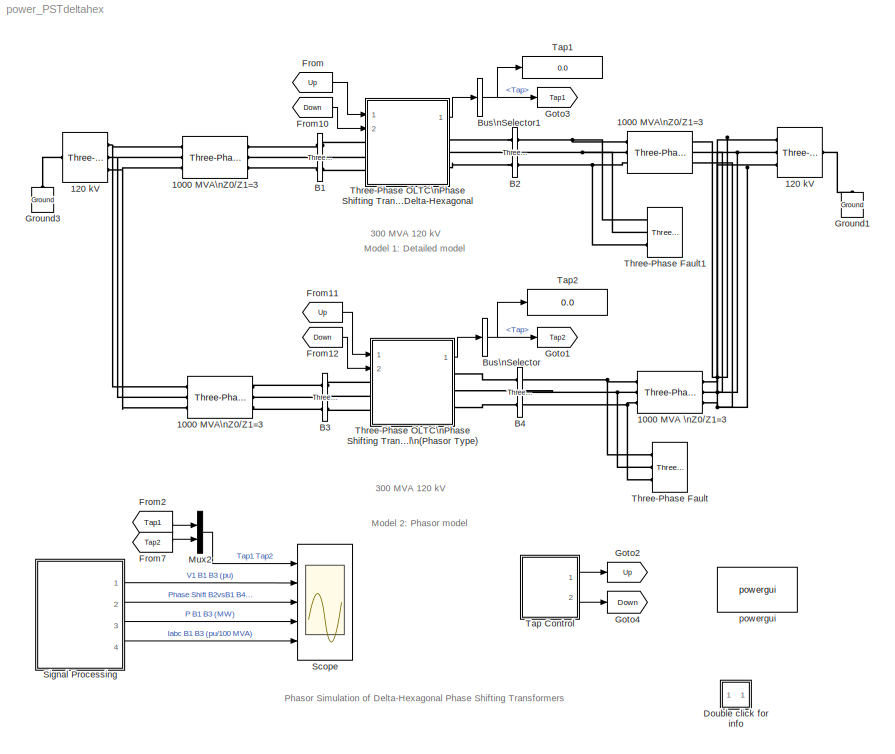
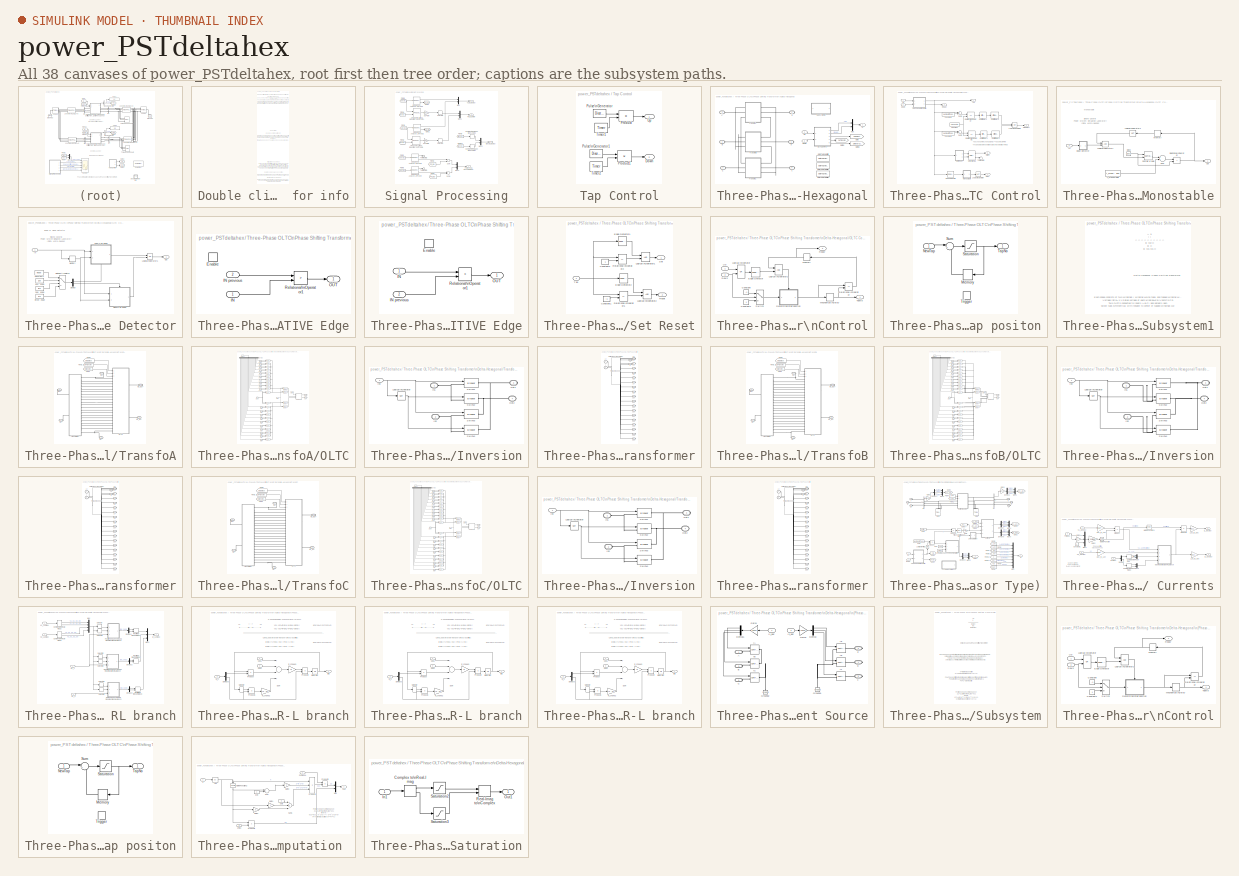
[diagram: thumbnail index - all 38 canvases of the model, root first then tree order]
MODEL power_PSTdeltahex
KIND model
BLOCK [Reference] 1000 MVA  \nZ0//Z1=3         REF=powerlib/Elements/Three-Phase\nMutual Inductance\nZ1-Z0
  AttributesFormatString = \\n
  LConnTagsString = a|b|c
  LeftPortType = p1
  PhysicalDomain = powersysdomain
  Ports = [0, 0, 0, 0, 0, 3, 3]
  PositiveSequence = [ 0.1  1/(2*pi*60)] *120e3^2/1000e6
  RConnTagsString = A|B|C
  RightPortType = p1
  SourceBlock = powerlib/Elements/Three-Phase\nMutual Inductance\nZ1-Z0
  SourceType = Three-Phase Mutual Inductance Z1-Z0
  SubClassName = unknown
  ZeroSequence = [ 0.3  3/(2*pi*60)] *120e3^2/1000e6
BLOCK [Reference] 1000 MVA\nZ0//Z1=3   REF=powerlib/Elements/Three-Phase\nMutual Inductance\nZ1-Z0
  AttributesFormatString = \\n
  LConnTagsString = a|b|c
  LeftPortType = p1
  PhysicalDomain = powersysdomain
  Ports = [0, 0, 0, 0, 0, 3, 3]
  PositiveSequence = [ 0.1  1/(2*pi*60)] *120e3^2/1000e6
  RConnTagsString = A|B|C
  RightPortType = p1
  SourceBlock = powerlib/Elements/Three-Phase\nMutual Inductance\nZ1-Z0
  SourceType = Three-Phase Mutual Inductance Z1-Z0
  SubClassName = unknown
  ZeroSequence = [ 0.3  3/(2*pi*60)] *120e3^2/1000e6
BLOCK [Reference] 1000 MVA\nZ0//Z1=3    REF=powerlib/Elements/Three-Phase\nMutual Inductance\nZ1-Z0
  AttributesFormatString = \\n
  LConnTagsString = a|b|c
  LeftPortType = p1
  PhysicalDomain = powersysdomain
  Ports = [0, 0, 0, 0, 0, 3, 3]
  PositiveSequence = [ 0.1  1/(2*pi*60)] *120e3^2/1000e6
  RConnTagsString = A|B|C
  RightPortType = p1
  SourceBlock = powerlib/Elements/Three-Phase\nMutual Inductance\nZ1-Z0
  SourceType = Three-Phase Mutual Inductance Z1-Z0
  SubClassName = unknown
  ZeroSequence = [ 0.3  3/(2*pi*60)] *120e3^2/1000e6
BLOCK [Reference] 1000 MVA\nZ0//Z1=3       REF=powerlib/Elements/Three-Phase\nMutual Inductance\nZ1-Z0
  AttributesFormatString = \\n
  LConnTagsString = a|b|c
  LeftPortType = p1
  PhysicalDomain = powersysdomain
  Ports = [0, 0, 0, 0, 0, 3, 3]
  PositiveSequence = [ 0.1  1/(2*pi*60)] *120e3^2/1000e6
  RConnTagsString = A|B|C
  RightPortType = p1
  SourceBlock = powerlib/Elements/Three-Phase\nMutual Inductance\nZ1-Z0
  SourceType = Three-Phase Mutual Inductance Z1-Z0
  SubClassName = unknown
  ZeroSequence = [ 0.3  3/(2*pi*60)] *120e3^2/1000e6
BLOCK [Reference] 120 kV  REF=powerlib/Electrical\nSources/Three-Phase\nProgrammable\nVoltage Source
  Amplitudes = [ 1 0.95   1.1 ]
  HarmonicA = [3 0.2 -25 0]
  HarmonicB = [2 0.15 35 2]
  HarmonicGeneration = off
  Ports = [0, 0, 0, 0, 0, 1, 3]
  PositiveSequence = [120e3 0 60]
  ShowPortLabels = on
  SourceBlock = powerlib/Electrical\nSources/Three-Phase\nProgrammable\nVoltage Source
  SourceType = Three-Phase Programmable Voltage Source
  TimeValues = [0  10 50]
  Timing = [0.05  3]
  VariationEntity = None
  VariationFrequency = 2
  VariationMagnitude = 0.3
  VariationPhaseA = off
  VariationRate = 10
  VariationStep = 0.2
  VariationTiming = [5  20]
  VariationType = Table of time-amplitude pairs
BLOCK [Reference] 120 kV   REF=powerlib/Electrical\nSources/Three-Phase\nProgrammable\nVoltage Source
  Amplitudes = [ 1 0.95   1.1 ]
  HarmonicA = [3 0.2 -25 0]
  HarmonicB = [2 0.15 35 2]
  HarmonicGeneration = off
  Ports = [0, 0, 0, 0, 0, 1, 3]
  PositiveSequence = [120e3 0 60]
  ShowPortLabels = on
  SourceBlock = powerlib/Electrical\nSources/Three-Phase\nProgrammable\nVoltage Source
  SourceType = Three-Phase Programmable Voltage Source
  TimeValues = [0  10 50]
  Timing = [0.05  3]
  VariationEntity = None
  VariationFrequency = 2
  VariationMagnitude = 0.3
  VariationPhaseA = off
  VariationRate = 10
  VariationStep = 0.2
  VariationTiming = [5  20]
  VariationType = Table of time-amplitude pairs
BLOCK [Reference] B1  REF=powerlib/Measurements/Three-Phase\nV-I Measurement
  CurrentMeasurement = yes
  Ipu = on
  LabelI = IabcB1
  LabelV = VabcB1
  OutputType = Complex
  PSBequivalent = 0
  Pbase = 100e6
  PhasorSimulation = on
  Ports = [0, 0, 0, 0, 0, 3, 3]
  SetLabelI = on
  SetLabelV = on
  ShowPortLabels = on
  SourceBlock = powerlib/Measurements/Three-Phase\nV-I Measurement
  SourceType = Three-Phase VI Measurement
  Vbase = 120e3
  VoltageMeasurement = phase-to-ground
  Vpu = on
BLOCK [Reference] B2  REF=powerlib/Measurements/Three-Phase\nV-I Measurement
  CurrentMeasurement = no
  Ipu = off
  LabelI = IB2
  LabelV = VabcB2
  OutputType = Complex
  PSBequivalent = 0
  Pbase = 100e6
  PhasorSimulation = on
  Ports = [0, 0, 0, 0, 0, 3, 3]
  SetLabelI = on
  SetLabelV = on
  ShowPortLabels = on
  SourceBlock = powerlib/Measurements/Three-Phase\nV-I Measurement
  SourceType = Three-Phase VI Measurement
  Vbase = 120e3
  VoltageMeasurement = phase-to-ground
  Vpu = on
BLOCK [Reference] B3  REF=powerlib/Measurements/Three-Phase\nV-I Measurement
  CurrentMeasurement = yes
  Ipu = on
  LabelI = IabcB3
  LabelV = VabcB3
  OutputType = Complex
  PSBequivalent = 0
  Pbase = 100e6
  PhasorSimulation = on
  Ports = [0, 0, 0, 0, 0, 3, 3]
  SetLabelI = on
  SetLabelV = on
  ShowPortLabels = on
  SourceBlock = powerlib/Measurements/Three-Phase\nV-I Measurement
  SourceType = Three-Phase VI Measurement
  Vbase = 120e3
  VoltageMeasurement = phase-to-ground
  Vpu = on
BLOCK [Reference] B4  REF=powerlib/Measurements/Three-Phase\nV-I Measurement
  CurrentMeasurement = no
  Ipu = off
  LabelI = IabcB4
  LabelV = VabcB4
  OutputType = Complex
  PSBequivalent = 0
  Pbase = 100e6
  PhasorSimulation = on
  Ports = [0, 0, 0, 0, 0, 3, 3]
  SetLabelI = on
  SetLabelV = on
  ShowPortLabels = on
  SourceBlock = powerlib/Measurements/Three-Phase\nV-I Measurement
  SourceType = Three-Phase VI Measurement
  Vbase = 120e3
  VoltageMeasurement = phase-to-ground
  Vpu = on
BLOCK [BusSelector] Bus\nSelector
  DialogController = Simulink.DDGSource_Bus
  OutputSignals = Tap
  Ports = [1, 1]
BLOCK [BusSelector] Bus\nSelector1
  DialogController = Simulink.DDGSource_Bus
  OutputSignals = Tap
  Ports = [1, 1]
BLOCK [SubSystem] Double click  for info
  MaskDisplay = disp('?')
  MaskIconFrame = on
  MaskIconOpaque = on
  MaskIconRotate = none
  MaskIconUnits = autoscale
  MinAlgLoopOccurrences = off
  Ports = []
  RTWSystemCode = Auto
  TreatAsAtomicUnit = off
BLOCK [From] From
  CloseFcn = tagdialog Close
  DialogController = Simulink.DDGSource
  GotoTag = Up
BLOCK [From] From10
  CloseFcn = tagdialog Close
  DialogController = Simulink.DDGSource
  GotoTag = Down
BLOCK [From] From11
  CloseFcn = tagdialog Close
  DialogController = Simulink.DDGSource
  GotoTag = Up
BLOCK [From] From12
  CloseFcn = tagdialog Close
  DialogController = Simulink.DDGSource
  GotoTag = Down
BLOCK [From] From2
  CloseFcn = tagdialog Close
  DialogController = Simulink.DDGSource
  GotoTag = Tap1
BLOCK [From] From7
  CloseFcn = tagdialog Close
  DialogController = Simulink.DDGSource
  GotoTag = Tap2
BLOCK [Goto] Goto1
  DialogController = Simulink.DDGSource
  GotoTag = Tap2
  TagVisibility = global
BLOCK [Goto] Goto2
  DialogController = Simulink.DDGSource
  GotoTag = Up
  TagVisibility = local
BLOCK [Goto] Goto3
  DialogController = Simulink.DDGSource
  GotoTag = Tap1
  TagVisibility = global
BLOCK [Goto] Goto4
  DialogController = Simulink.DDGSource
  GotoTag = Down
  TagVisibility = local
BLOCK [Reference] Ground1  REF=powerlib/Elements/Ground
  AttributesFormatString = \\n
  LConnTagsString = a
  LeftPortType = p1
  PhysicalDomain = powersysdomain
  Ports = [0, 0, 0, 0, 0, 1, 1]
  RConnTagsString = __newr0
  RightPortType = p1
  SourceBlock = powerlib/Elements/Ground
  SourceType = Ground
  SubClassName = unknown
BLOCK [Reference] Ground3  REF=powerlib/Elements/Ground
  AttributesFormatString = \\n
  LConnTagsString = a
  LeftPortType = p1
  PhysicalDomain = powersysdomain
  Ports = [0, 0, 0, 0, 0, 1, 1]
  RConnTagsString = __newr0
  RightPortType = p1
  SourceBlock = powerlib/Elements/Ground
  SourceType = Ground
  SubClassName = unknown
BLOCK [Mux] Mux2
  DisplayOption = bar
  Inputs = 2
  Ports = [2, 1]
BLOCK [Scope] Scope
  DataFormat = StructureWithTime
  LimitDataPoints = off
  NumInputPorts = 5
  Ports = [5]
  TimeRange = 50
  YMax = 5~1.02~40~400~3
  YMin = -5~0.94~-40~-400~0
  ZoomMode = xonly
BLOCK [SubSystem] Signal Processing
  MaskDisplay = disp('Signal\\nProcessing')
  MaskIconFrame = on
  MaskIconOpaque = on
  MaskIconRotate = none
  MaskIconUnits = autoscale
  MinAlgLoopOccurrences = off
  Ports = [0, 4]
  RTWSystemCode = Auto
  TreatAsAtomicUnit = off
BLOCK [Reference] Signal Processing/3-Phase\nActive & Reactive Power\n(Phasor Type)  REF=powerlib_extras/Phasor\nLibrary/3-Phase\nActive & Reactive Power\n(Phasor Type)
  Ports = [2, 1]
  ShowPortLabels = on
  SourceBlock = powerlib_extras/Phasor\nLibrary/3-Phase\nActive & Reactive Power\n(Phasor Type)
  SourceType = 3-Phase Active & Reactive Power (Phasor Type)
BLOCK [Reference] Signal Processing/3-Phase\nActive & Reactive Power\n(Phasor Type)1  REF=powerlib_extras/Phasor\nLibrary/3-Phase\nActive & Reactive Power\n(Phasor Type)
  Ports = [2, 1]
  ShowPortLabels = on
  SourceBlock = powerlib_extras/Phasor\nLibrary/3-Phase\nActive & Reactive Power\n(Phasor Type)
  SourceType = 3-Phase Active & Reactive Power (Phasor Type)
BLOCK [ComplexToMagnitudeAngle] Signal Processing/Complex to\nMagnitude-Angle1
  Output = Magnitude
  Ports = [1, 1]
BLOCK [ComplexToMagnitudeAngle] Signal Processing/Complex to\nMagnitude-Angle2
  Output = Magnitude
  Ports = [1, 1]
BLOCK [From] Signal Processing/From1
  CloseFcn = tagdialog Close
  DialogController = Simulink.DDGSource
  GotoTag = VabcB3
BLOCK [From] Signal Processing/From10
  CloseFcn = tagdialog Close
  DialogController = Simulink.DDGSource
  GotoTag = IabcB3
BLOCK [From] Signal Processing/From2
  CloseFcn = tagdialog Close
  DialogController = Simulink.DDGSource
  GotoTag = IabcB3
BLOCK [From] Signal Processing/From3
  CloseFcn = tagdialog Close
  DialogController = Simulink.DDGSource
  GotoTag = Phi_B1
BLOCK [From] Signal Processing/From4
  CloseFcn = tagdialog Close
  DialogController = Simulink.DDGSource
  GotoTag = IabcB1
BLOCK [From] Signal Processing/From5
  CloseFcn = tagdialog Close
  DialogController = Simulink.DDGSource
  GotoTag = VabcB2
BLOCK [From] Signal Processing/From6
  CloseFcn = tagdialog Close
  DialogController = Simulink.DDGSource
  GotoTag = VabcB1
BLOCK [From] Signal Processing/From7
  CloseFcn = tagdialog Close
  DialogController = Simulink.DDGSource
  GotoTag = Phi_B3
BLOCK [From] Signal Processing/From8
  CloseFcn = tagdialog Close
  DialogController = Simulink.DDGSource
  GotoTag = VabcB4
BLOCK [From] Signal Processing/From9
  CloseFcn = tagdialog Close
  DialogController = Simulink.DDGSource
  GotoTag = IabcB1
BLOCK [Goto] Signal Processing/Goto1
  DialogController = Simulink.DDGSource
  GotoTag = Phi_B3
  TagVisibility = global
BLOCK [Goto] Signal Processing/Goto3
  DialogController = Simulink.DDGSource
  GotoTag = Phi_B1
  TagVisibility = global
BLOCK [Outport] Signal Processing/Iabc B1 B3 (pu)
  BusOutputAsStruct = off
  IconDisplay = Port number
  Port = 4
BLOCK [Mux] Signal Processing/Mux
  DisplayOption = bar
  Inputs = 2
  Ports = [2, 1]
BLOCK [Mux] Signal Processing/Mux1
  DisplayOption = bar
  Inputs = 2
  Ports = [2, 1]
BLOCK [Mux] Signal Processing/Mux2
  DisplayOption = bar
  Inputs = 2
  Ports = [2, 1]
BLOCK [Mux] Signal Processing/Mux3
  DisplayOption = bar
  Inputs = 2
  Ports = [2, 1]
BLOCK [Outport] Signal Processing/P B1 B3 (MW)
  BusOutputAsStruct = off
  IconDisplay = Port number
  Port = 3
BLOCK [Outport] Signal Processing/Phi B2vsB1  B4vsB3 (deg.)
  BusOutputAsStruct = off
  IconDisplay = Port number
  Port = 2
BLOCK [Selector] Signal Processing/Selector2
  InputPortWidth = 2
  Ports = [1, 1]
BLOCK [Selector] Signal Processing/Selector4
  InputPortWidth = 2
  Ports = [1, 1]
BLOCK [Reference] Signal Processing/Sequence Analyzer\n(Phasor Type)1  REF=powerlib_extras/Phasor\nLibrary/Sequence Analyzer\n(Phasor Type)
  Ports = [1, 2]
  ShowPortLabels = on
  SourceBlock = powerlib_extras/Phasor\nLibrary/Sequence Analyzer\n(Phasor Type)
  SourceType = Sequence Analyzer (Phasor Type)
  seq = Positive
BLOCK [Reference] Signal Processing/Sequence Analyzer\n(Phasor Type)2  REF=powerlib_extras/Phasor\nLibrary/Sequence Analyzer\n(Phasor Type)
  Ports = [1, 2]
  ShowPortLabels = on
  SourceBlock = powerlib_extras/Phasor\nLibrary/Sequence Analyzer\n(Phasor Type)
  SourceType = Sequence Analyzer (Phasor Type)
  seq = Positive
BLOCK [Reference] Signal Processing/Sequence Analyzer\n(Phasor Type)3  REF=powerlib_extras/Phasor\nLibrary/Sequence Analyzer\n(Phasor Type)
  Ports = [1, 2]
  ShowPortLabels = on
  SourceBlock = powerlib_extras/Phasor\nLibrary/Sequence Analyzer\n(Phasor Type)
  SourceType = Sequence Analyzer (Phasor Type)
  seq = Positive
BLOCK [Reference] Signal Processing/Sequence Analyzer\n(Phasor Type)4  REF=powerlib_extras/Phasor\nLibrary/Sequence Analyzer\n(Phasor Type)
  Ports = [1, 2]
  ShowPortLabels = on
  SourceBlock = powerlib_extras/Phasor\nLibrary/Sequence Analyzer\n(Phasor Type)
  SourceType = Sequence Analyzer (Phasor Type)
  seq = Positive
BLOCK [Sum] Signal Processing/Sum
  InputSameDT = off
  Inputs = +-
  OutDataTypeMode = Inherit via internal rule
  Ports = [2, 1]
BLOCK [Sum] Signal Processing/Sum1
  InputSameDT = off
  Inputs = +-
  OutDataTypeMode = Inherit via internal rule
  Ports = [2, 1]
BLOCK [Terminator] Signal Processing/Terminator2
BLOCK [Terminator] Signal Processing/Terminator3
BLOCK [Outport] Signal Processing/V1 B1 B3 (pu)
  BusOutputAsStruct = off
  IconDisplay = Port number
BLOCK [Gain] Signal Processing/pu-> MW
  Gain = 2/3*100
BLOCK [Gain] Signal Processing/pu-> MW1
  Gain = 2/3*100
BLOCK [SubSystem] Tap Control
  MinAlgLoopOccurrences = off
  Ports = [0, 2]
  RTWSystemCode = Auto
  TreatAsAtomicUnit = off
BLOCK [Outport] Tap Control/Down
  BusOutputAsStruct = off
  IconDisplay = Port number
  Port = 2
BLOCK [Product] Tap Control/Product
  InputSameDT = off
  Ports = [2, 1]
  RndMeth = Floor
BLOCK [Product] Tap Control/Product1
  InputSameDT = off
  Ports = [2, 1]
  RndMeth = Floor
BLOCK [DiscretePulseGenerator] Tap Control/Pulse\nGenerator
  Period = 3
  Ports = [0, 1]
  PulseType = Time based
  PulseWidth = 5
BLOCK [DiscretePulseGenerator] Tap Control/Pulse\nGenerator1
  Period = 3
  Ports = [0, 1]
  PulseType = Time based
  PulseWidth = 5
BLOCK [Reference] Tap Control/Timer1  REF=powerlib_extras/Control \nBlocks/Timer
  Ports = [0, 1]
  ShowPortLabels = on
  SourceBlock = powerlib_extras/Control \nBlocks/Timer
  SourceType = Timer
  e = [1   0   ]
  t = [ 0  16   ]
BLOCK [Reference] Tap Control/Timer2  REF=powerlib_extras/Control \nBlocks/Timer
  Ports = [0, 1]
  ShowPortLabels = on
  SourceBlock = powerlib_extras/Control \nBlocks/Timer
  SourceType = Timer
  e = [0  1   0  ]
  t = [ 0  17  47 ]
BLOCK [Outport] Tap Control/Up
  BusOutputAsStruct = off
  IconDisplay = Port number
BLOCK [Display] Tap1
  Decimation = 1
  Ports = [1]
  SampleTime = 0.1
BLOCK [Display] Tap2
  Decimation = 1
  Ports = [1]
  SampleTime = 0.1
BLOCK [Reference] Three-Phase Fault  REF=powerlib/Elements/Three-Phase Fault
  External = off
  FaultA = off
  FaultB = off
  FaultC = off
  FaultResistance = 0.001
  GroundFault = on
  GroundResistance = 0.001
  InitialStates = [0 0 1]
  Measurements = None
  Ports = [0, 0, 0, 0, 0, 3]
  ShowPortLabels = on
  SnubberCapacitance = inf
  SnubberResistance = 1e6
  SourceBlock = powerlib/Elements/Three-Phase Fault
  SourceType = Three-Phase Fault
  SwitchStatus = [1 ]
  SwitchTimes = [ 5 ]
BLOCK [Reference] Three-Phase Fault1  REF=powerlib/Elements/Three-Phase Fault
  External = off
  FaultA = off
  FaultB = off
  FaultC = off
  FaultResistance = 0.001
  GroundFault = on
  GroundResistance = 0.001
  InitialStates = [0 0 1]
  Measurements = None
  Ports = [0, 0, 0, 0, 0, 3]
  ShowPortLabels = on
  SnubberCapacitance = inf
  SnubberResistance = 1e6
  SourceBlock = powerlib/Elements/Three-Phase Fault
  SourceType = Three-Phase Fault
  SwitchStatus = [1 ]
  SwitchTimes = [ 5 ]
BLOCK [SubSystem] Three-Phase OLTC\nPhase Shifting Transformer\nDelta-Hexagonal
  MaskCallbackString = |||tempMaskVis=get_param(gcb,'MaskVisibilities');\nif strcmp(get_param(gcb,'SetSaturation'),'on')\n	tempMaskVis{5}='on';\n	set_param(gcb,'MaskVisibilities',tempMaskVis);\nelse\n	tempMaskVis{5}='off';\n	set_param(gcb,'MaskVisibilities',tempMaskVis);\nend|||||
  MaskDescription = This model implements a phase shifting transformer (PST) using the delta-hexagonal connexion. Each phase consists of two coupled windings: one fixed winding and one tapped winding (10 taps per half winding or 21 taps total). Two OLTCs are used to vary phase shift from -60 degrees to + 60 degrees by moving the transformer input connections (ABC) and output connections (abc) symmetrically  with resp...<+552ch>
  MaskEnableString = on,on,on,on,on,on,on,on,on
  MaskIconFrame = on
  MaskIconOpaque = on
  MaskIconRotate = none
  MaskIconUnits = autoscale
  MaskInitialization = NumberOfTaps=10;\nif abs(InitialTap)>NumberOfTaps,\n   h=errordlg(sprintf('The initial tap number must be an integer comprised between % d and %d',-NumberOfTaps,NumberOfTaps),'Parameter error');\n   uiwait(h);\nend\n\n% Saturation\nset_param([gcb,'/TransfoA'],'SetSaturation',SetSaturation);\nset_param([gcb,'/TransfoB'],'SetSaturation',SetSaturation);\nset_param([gcb,'/TransfoC'],'SetSaturation',Se...<+13ch>
  MaskPromptString = Nominal parameters [Vnom(Vrms Ph Ph) Pnom(VA)  Fnom(Hz)];|Resistance and leakage reactance at max. tap [R(pu)  X(pu)]|Magnetization branch [Rm(pu)  Xm(pu)]|Simulate saturation|Saturation characteristic [i1 phi; i2 phi2; ....] (pu)|Initial tap (-10 to +10)|Tap selection time (s) (typical 3-10 s)|Tap transition time (s) (typical 40-60 ms)|Transfer resistances (ohms)
  MaskStyleString = edit,edit,edit,checkbox,edit,edit,edit,edit,edit
  MaskTabNameString = ,,,,,,,,
  MaskToolTipString = on,on,on,on,on,on,on,on,on
  MaskTunableValueString = on,on,on,on,on,on,on,on,on
  MaskType = Phase Shifting Transformer; Delta-Hexagonal Connexion
  MaskValueString = [120e3  300e6  60]|[0.15/30  0.15]|[500 500]|off|[0 0; 0.002 1.0; 0.006 1.12; 0.009 1.15; 0.015 1.17; 0.03 1.19; 0.05 1.20; 0.08 1.21; 1.0 1.302]|0|2.9|0.05|1
  MaskVarAliasString = ,,,,,,,,
  MaskVariables = NominalParameters=@1;RXpu=@2;RmXmpu=@3;SetSaturation=&4;SaturationCurrentFlux=@5;InitialTap=@6;TapSelectionTime=@7;TransferTime=@8;Rtransfer=@9;
  MaskVisibilityString = on,on,on,on,off,on,on,on,on
  MinAlgLoopOccurrences = off
  Ports = [2, 1, 0, 0, 0, 3, 3]
  RTWSystemCode = Auto
  TreatAsAtomicUnit = off
BLOCK [PMIOPort] Three-Phase OLTC\nPhase Shifting Transformer\nDelta-Hexagonal/A
  Port = 1
  Side = Left
  Tag = PMCPort
BLOCK [PMIOPort] Three-Phase OLTC\nPhase Shifting Transformer\nDelta-Hexagonal/B
  Port = 2
  Side = Left
  Tag = PMCPort
BLOCK [PMIOPort] Three-Phase OLTC\nPhase Shifting Transformer\nDelta-Hexagonal/C
  Port = 3
  Side = Left
  Tag = PMCPort
BLOCK [Inport] Three-Phase OLTC\nPhase Shifting Transformer\nDelta-Hexagonal/Down
  IconDisplay = Port number
  LatchInput = off
  Port = 2
BLOCK [Goto] Three-Phase OLTC\nPhase Shifting Transformer\nDelta-Hexagonal/Goto
  DialogController = Simulink.DDGSource
  GotoTag = SwSelect
  TagVisibility = scoped
BLOCK [GotoTagVisibility] Three-Phase OLTC\nPhase Shifting Transformer\nDelta-Hexagonal/Goto Tag\nVisibility
  GotoTag = SwSelect
BLOCK [GotoTagVisibility] Three-Phase OLTC\nPhase Shifting Transformer\nDelta-Hexagonal/Goto Tag\nVisibility1
  GotoTag = SwTransfer
BLOCK [GotoTagVisibility] Three-Phase OLTC\nPhase Shifting Transformer\nDelta-Hexagonal/Goto Tag\nVisibility2
  GotoTag = SwInversion
BLOCK [Goto] Three-Phase OLTC\nPhase Shifting Transformer\nDelta-Hexagonal/Goto5
  DialogController = Simulink.DDGSource
  GotoTag = SwTransfer
  TagVisibility = scoped
BLOCK [Goto] Three-Phase OLTC\nPhase Shifting Transformer\nDelta-Hexagonal/Goto8
  DialogController = Simulink.DDGSource
  GotoTag = SwInversion
  TagVisibility = scoped
BLOCK [Mux] Three-Phase OLTC\nPhase Shifting Transformer\nDelta-Hexagonal/Mux
  DisplayOption = bar
  Inputs = 2
  Ports = [2, 1]
BLOCK [SubSystem] Three-Phase OLTC\nPhase Shifting Transformer\nDelta-Hexagonal/OLTC Control
  MaskCallbackString = |||
  MaskEnableString = on,on,on,on
  MaskIconFrame = on
  MaskIconOpaque = on
  MaskIconRotate = none
  MaskIconUnits = autoscale
  MaskInitialization = TapVector=0:2*NumberOfTaps;\nInitialStates1=zeros(1,2*NumberOfTaps+1);\nInitialStates1(NumberOfTaps+abs(InitialTap)+1)=1;\nInitialStates2=zeros(1,2*NumberOfTaps+1);\nInitialStates2(NumberOfTaps-abs(InitialTap)+1)=1;\n
  MaskPromptString = Number of taps:|Operating time of the tap selector (typical 3-10 s):|Operating time of the transfer switch (typical 40-60 ms):  |Initial tap:
  MaskStyleString = edit,edit,edit,edit
  MaskTabNameString = ,,,
  MaskToolTipString = on,on,on,on
  MaskTunableValueString = on,on,on,on
  MaskValueString = NumberOfTaps|TapSelectionTime|TransferTime|InitialTap
  MaskVarAliasString = ,,,
  MaskVariables = NumberOfTaps=@1;TapSelectorTime=@2;TransferSwitchTime=@3;InitialTap=@4;
  MaskVisibilityString = on,on,on,on
  MinAlgLoopOccurrences = off
  Ports = [2, 5]
  RTWSystemCode = Auto
  TreatAsAtomicUnit = off
BLOCK [Constant] Three-Phase OLTC\nPhase Shifting Transformer\nDelta-Hexagonal/OLTC Control/Constant
  Value = TapVector
BLOCK [Constant] Three-Phase OLTC\nPhase Shifting Transformer\nDelta-Hexagonal/OLTC Control/Constant1
  Value = NumberOfTaps
BLOCK [Constant] Three-Phase OLTC\nPhase Shifting Transformer\nDelta-Hexagonal/OLTC Control/Constant2
  Value = NumberOfTaps
BLOCK [Inport] Three-Phase OLTC\nPhase Shifting Transformer\nDelta-Hexagonal/OLTC Control/Down
  IconDisplay = Port number
  LatchInput = off
  Port = 2
BLOCK [Reference] Three-Phase OLTC\nPhase Shifting Transformer\nDelta-Hexagonal/OLTC Control/Edge Detector2  REF=powerlib_extras/Control \nBlocks/Edge Detector
  Ports = [1, 1]
  ShowPortLabels = off
  SourceBlock = powerlib_extras/Control \nBlocks/Edge Detector
  SourceType = Edge Detector
  ic = 0
  model = Either
BLOCK [Logic] Three-Phase OLTC\nPhase Shifting Transformer\nDelta-Hexagonal/OLTC Control/Logical\nOperator
  AllPortsSameDT = off
  Operator = NOT
  Ports = [1, 1]
BLOCK [Logic] Three-Phase OLTC\nPhase Shifting Transformer\nDelta-Hexagonal/OLTC Control/Logical\nOperator3
  AllPortsSameDT = off
  Operator = OR
  Ports = [2, 1]
BLOCK [SubSystem] Three-Phase OLTC\nPhase Shifting Transformer\nDelta-Hexagonal/OLTC Control/Monostable
  MaskCallbackString = ||
  MaskDescription = After being triggered  by the specified edge (Rising, Falling or Either), this block outputs a pulse (TRUE signal) for the time specified by parameter \"Pulse duration\".\nIf the specified edge is detected while the output is TRUE, the monostable is not retriggered\n\nThe input value (0/1) at time preceeding t = 0 is specified by the parameter \"input at t = -eps.
  MaskDisplay = plot(0,0,100,100,[100 75 75 25 25 0],[25 25 50 50 25 25]-0,X1,Y1,X2,Y2,X3,Y3,X4,Y4);\ntext(45,37,'T');\ntext(15,15,str);\n\n
  MaskEnableString = on,on,on
  MaskIconFrame = on
  MaskIconOpaque = on
  MaskIconRotate = none
  MaskIconUnits = autoscale
  MaskInitialization = str=sprintf('%g %c',t_mono,'s');\nif (EdgeDetect ~=3)\n    x1 = (EdgeDetect -1)*10;\n    x2 = (EdgeDetect -1)*30;\n	X1=[15-8,25,25,35+8]+0; Y1=[65+x2,65+x2,95-x2,95-x2];\n	X2=[15,25,35]+0;   Y2=[75+x1,85-x1,75+x1];\n	X3=[];X4=[];Y3=[];Y4=[];	\nelse\n	x1 = 10;\n	x2 = 30;\n	X1=[15,25,25,35]-14;  Y1=[65,65,95,95];\n	X2=[15,25,35]-14;    Y2=[75,85,75];\n	X3=[15,25,25,35]+14; Y3=[65+x2,65+x2,95-x2,95-x...<+54ch>
  MaskPromptString = Edge detection|Pulse duration (s):|Input at t = -eps:
  MaskStyleString = popup(Rising|Falling|Either),edit,edit
  MaskTabNameString = ,,
  MaskToolTipString = on,on,on
  MaskTunableValueString = on,on,on
  MaskType = Monostable Flip-Flop
  MaskValueString = Rising|TransferSwitchTime|1
  MaskVarAliasString = ,,
  MaskVariables = EdgeDetect=@1;t_mono=@2;ic=@3;
  MaskVisibilityString = on,on,on
  MinAlgLoopOccurrences = off
  Ports = [1, 1]
  RTWSystemCode = Auto
  ShowPortLabels = off
  TreatAsAtomicUnit = off
BLOCK [Clock] Three-Phase OLTC\nPhase Shifting Transformer\nDelta-Hexagonal/OLTC Control/Monostable/Clock
  Decimation = 10
BLOCK [SubSystem] Three-Phase OLTC\nPhase Shifting Transformer\nDelta-Hexagonal/OLTC Control/Monostable/Edge Detector
  MaskCallbackString = |
  MaskDescription = This block compares its present input to its previous input.\n\nIf the input  is a logic signal (TRUE (1) or FALSE (0), the output is a one-step boolean signal TRUE  when  the specified edge (Rising, Falling or Either)  is detected.\n\nThis block can also be used to detect the slope polarity of a continuous signal. For example, if the specified edge is  \"Rising\", the output is TRUE as long as th...<+132ch>
  MaskDisplay = plot(0,0,100,100, X1,Y1,X2,Y2,X3,Y3,X4,Y4);\n
  MaskEnableString = on,on
  MaskIconFrame = on
  MaskIconOpaque = on
  MaskIconRotate = none
  MaskIconUnits = autoscale
  MaskInitialization = if model~=3,\n	x1 = (model -1)*20;\n    x2 = (model -1)*60;\n	X1=[5,20,20,35]+25; Y1=[20+x2,20+x2,80-x2,80-x2];\n	X2=[5,20,35]+25;    Y2=[40+x1,60-x1,40+x1];\n	X3=[];X4=[];Y3=[];Y4=[];\nelse\n	x1 = 20;\n	x2 = 60;\n	X1=[5,20,20,35]+8; Y1=[20,20,80,80];\n	X2=[5,20,35]+8;    Y2=[40,60,40];\n	X3=[5,20,20,35]+53; Y3=[20+x2,20+x2,80-x2,80-x2];\n	X4=[5,20,35]+53;    Y4=[40+x1,60-x1,40+x1];\nend
  MaskPromptString = Edge:|Input at t = -eps:
  MaskStyleString = edit,edit
  MaskTabNameString = ,
  MaskToolTipString = on,on
  MaskTunableValueString = on,on
  MaskType = Edge Detector
  MaskValueString = EdgeDetect|ic
  MaskVarAliasString = ,
  MaskVariables = model=@1;ic=@2;
  MaskVisibilityString = on,on
  MinAlgLoopOccurrences = off
  Ports = [1, 1]
  RTWSystemCode = Auto
  ShowPortLabels = off
  TreatAsAtomicUnit = off
BLOCK [Constant] Three-Phase OLTC\nPhase Shifting Transformer\nDelta-Hexagonal/OLTC Control/Monostable/Edge Detector/Constant1
  Value = model
BLOCK [Demux] Three-Phase OLTC\nPhase Shifting Transformer\nDelta-Hexagonal/OLTC Control/Monostable/Edge Detector/Demux
  Outputs = 2
  Ports = [1, 2]
BLOCK [Inport] Three-Phase OLTC\nPhase Shifting Transformer\nDelta-Hexagonal/OLTC Control/Monostable/Edge Detector/In
  IconDisplay = Port number
  LatchInput = off
  Port = 1
BLOCK [Logic] Three-Phase OLTC\nPhase Shifting Transformer\nDelta-Hexagonal/OLTC Control/Monostable/Edge Detector/Logical\nOperator1
  Operator = OR
  Ports = [2, 1]
BLOCK [Memory] Three-Phase OLTC\nPhase Shifting Transformer\nDelta-Hexagonal/OLTC Control/Monostable/Edge Detector/Memory
  InheritSampleTime = on
  X0 = ic
BLOCK [MultiPortSwitch] Three-Phase OLTC\nPhase Shifting Transformer\nDelta-Hexagonal/OLTC Control/Monostable/Edge Detector/Multiport\nSwitch
  InputSameDT = off
  Inputs = 3
  Ports = [4, 1]
BLOCK [SubSystem] Three-Phase OLTC\nPhase Shifting Transformer\nDelta-Hexagonal/OLTC Control/Monostable/Edge Detector/NEGATIVE Edge
  AncestorBlock = extra_sc/Edge/POSITIVE Edge
  MinAlgLoopOccurrences = off
  Ports = [2, 1, 1]
  RTWSystemCode = Auto
  TreatAsAtomicUnit = on
BLOCK [EnablePort] Three-Phase OLTC\nPhase Shifting Transformer\nDelta-Hexagonal/OLTC Control/Monostable/Edge Detector/NEGATIVE Edge/Enable
  Ports = []
BLOCK [Inport] Three-Phase OLTC\nPhase Shifting Transformer\nDelta-Hexagonal/OLTC Control/Monostable/Edge Detector/NEGATIVE Edge/IN
  IconDisplay = Port number
  LatchInput = off
  Port = 1
BLOCK [Inport] Three-Phase OLTC\nPhase Shifting Transformer\nDelta-Hexagonal/OLTC Control/Monostable/Edge Detector/NEGATIVE Edge/IN previous
  IconDisplay = Port number
  LatchInput = off
  Port = 2
BLOCK [Outport] Three-Phase OLTC\nPhase Shifting Transformer\nDelta-Hexagonal/OLTC Control/Monostable/Edge Detector/NEGATIVE Edge/OUT
  BusOutputAsStruct = off
  IconDisplay = Port number
BLOCK [RelationalOperator] Three-Phase OLTC\nPhase Shifting Transformer\nDelta-Hexagonal/OLTC Control/Monostable/Edge Detector/NEGATIVE Edge/Relational\nOperator1
  Operator = >
BLOCK [Outport] Three-Phase OLTC\nPhase Shifting Transformer\nDelta-Hexagonal/OLTC Control/Monostable/Edge Detector/Out
  BusOutputAsStruct = off
  IconDisplay = Port number
BLOCK [SubSystem] Three-Phase OLTC\nPhase Shifting Transformer\nDelta-Hexagonal/OLTC Control/Monostable/Edge Detector/POSITIVE Edge
  AncestorBlock = extra_sc/Delay_discrete/OFF Delay
  MinAlgLoopOccurrences = off
  Ports = [2, 1, 1]
  RTWSystemCode = Auto
  TreatAsAtomicUnit = on
BLOCK [EnablePort] Three-Phase OLTC\nPhase Shifting Transformer\nDelta-Hexagonal/OLTC Control/Monostable/Edge Detector/POSITIVE Edge/Enable
  Ports = []
BLOCK [Inport] Three-Phase OLTC\nPhase Shifting Transformer\nDelta-Hexagonal/OLTC Control/Monostable/Edge Detector/POSITIVE Edge/IN
  IconDisplay = Port number
  LatchInput = off
  Port = 1
BLOCK [Inport] Three-Phase OLTC\nPhase Shifting Transformer\nDelta-Hexagonal/OLTC Control/Monostable/Edge Detector/POSITIVE Edge/IN previous
  IconDisplay = Port number
  LatchInput = off
  Port = 2
BLOCK [Outport] Three-Phase OLTC\nPhase Shifting Transformer\nDelta-Hexagonal/OLTC Control/Monostable/Edge Detector/POSITIVE Edge/OUT
  BusOutputAsStruct = off
  IconDisplay = Port number
BLOCK [RelationalOperator] Three-Phase OLTC\nPhase Shifting Transformer\nDelta-Hexagonal/OLTC Control/Monostable/Edge Detector/POSITIVE Edge/Relational\nOperator1
  Operator = >
BLOCK [Constant] Three-Phase OLTC\nPhase Shifting Transformer\nDelta-Hexagonal/OLTC Control/Monostable/Edge Detector/either edge
  Value = [1 1]
BLOCK [Constant] Three-Phase OLTC\nPhase Shifting Transformer\nDelta-Hexagonal/OLTC Control/Monostable/Edge Detector/neg. edge
  Value = [0 1]
BLOCK [Constant] Three-Phase OLTC\nPhase Shifting Transformer\nDelta-Hexagonal/OLTC Control/Monostable/Edge Detector/pos. edge
  Value = [1 0]
BLOCK [Inport] Three-Phase OLTC\nPhase Shifting Transformer\nDelta-Hexagonal/OLTC Control/Monostable/In
  IconDisplay = Port number
  LatchInput = off
  Port = 1
BLOCK [Logic] Three-Phase OLTC\nPhase Shifting Transformer\nDelta-Hexagonal/OLTC Control/Monostable/Logical\nOperator1
  Ports = [2, 1]
BLOCK [Logic] Three-Phase OLTC\nPhase Shifting Transformer\nDelta-Hexagonal/OLTC Control/Monostable/Logical\nOperator2
  Inputs = 1
  Operator = NOT
  Ports = [1, 1]
BLOCK [Memory] Three-Phase OLTC\nPhase Shifting Transformer\nDelta-Hexagonal/OLTC Control/Monostable/Memory
  InheritSampleTime = on
BLOCK [Outport] Three-Phase OLTC\nPhase Shifting Transformer\nDelta-Hexagonal/OLTC Control/Monostable/Out
  BusOutputAsStruct = off
  IconDisplay = Port number
BLOCK [RelationalOperator] Three-Phase OLTC\nPhase Shifting Transformer\nDelta-Hexagonal/OLTC Control/Monostable/Relational\nOperator
  Operator = >
BLOCK [Reference] Three-Phase OLTC\nPhase Shifting Transformer\nDelta-Hexagonal/OLTC Control/Monostable/Sample & Hold  REF=powerlib_extras/Control \nBlocks/Sample & Hold
  Ports = [2, 1]
  ShowPortLabels = on
  SourceBlock = powerlib_extras/Control \nBlocks/Sample & Hold
  SourceType = Sample & Hold
  ic = -1e6
BLOCK [Sum] Three-Phase OLTC\nPhase Shifting Transformer\nDelta-Hexagonal/OLTC Control/Monostable/Sum
  Ports = [2, 1]
BLOCK [Constant] Three-Phase OLTC\nPhase Shifting Transformer\nDelta-Hexagonal/OLTC Control/Monostable/T_monostable
  Value = t_mono - eps
BLOCK [Reference] Three-Phase OLTC\nPhase Shifting Transformer\nDelta-Hexagonal/OLTC Control/On//Off Delay1  REF=powerlib_extras/Control \nBlocks/On//Off Delay
  Ports = [1, 1]
  ShowPortLabels = off
  SourceBlock = powerlib_extras/Control \nBlocks/On//Off Delay
  SourceType = On/Off Delay
  delay = TransferSwitchTime/3
  ic = 1
  type_delay = On delay
BLOCK [Reference] Three-Phase OLTC\nPhase Shifting Transformer\nDelta-Hexagonal/OLTC Control/On//Off Delay2  REF=powerlib_extras/Control \nBlocks/On//Off Delay
  Ports = [1, 1]
  ShowPortLabels = off
  SourceBlock = powerlib_extras/Control \nBlocks/On//Off Delay
  SourceType = On/Off Delay
  delay = TransferSwitchTime/3
  ic = 1
  type_delay = On delay
BLOCK [Reference] Three-Phase OLTC\nPhase Shifting Transformer\nDelta-Hexagonal/OLTC Control/On//Off Delay3  REF=powerlib_extras/Control \nBlocks/On//Off Delay
  Ports = [1, 1]
  ShowPortLabels = off
  SourceBlock = powerlib_extras/Control \nBlocks/On//Off Delay
  SourceType = On/Off Delay
  delay = 2*TransferSwitchTime/3
  ic = InitialStates1
  type_delay = Off delay
BLOCK [Reference] Three-Phase OLTC\nPhase Shifting Transformer\nDelta-Hexagonal/OLTC Control/On//Off Delay4  REF=powerlib_extras/Control \nBlocks/On//Off Delay
  Ports = [1, 1]
  ShowPortLabels = off
  SourceBlock = powerlib_extras/Control \nBlocks/On//Off Delay
  SourceType = On/Off Delay
  delay = 2*TransferSwitchTime/3
  ic = InitialStates2
  type_delay = Off delay
BLOCK [Outport] Three-Phase OLTC\nPhase Shifting Transformer\nDelta-Hexagonal/OLTC Control/Ready
  BusOutputAsStruct = off
  IconDisplay = Port number
  Port = 2
BLOCK [RelationalOperator] Three-Phase OLTC\nPhase Shifting Transformer\nDelta-Hexagonal/OLTC Control/Relational\nOperator
  InputSameDT = off
  Operator = ==
BLOCK [RelationalOperator] Three-Phase OLTC\nPhase Shifting Transformer\nDelta-Hexagonal/OLTC Control/Relational\nOperator1
  InputSameDT = off
  Operator = ==
BLOCK [Reference] Three-Phase OLTC\nPhase Shifting Transformer\nDelta-Hexagonal/OLTC Control/S-R\nFlip-Flop  REF=simulink_extras/Flip Flops/S-R\nFlip-Flop
  Ports = [2, 2]
  ShowPortLabels = on
  SourceBlock = simulink_extras/Flip Flops/S-R\nFlip-Flop
  SourceType = SRFlipFlop
  initial_condition = InitialTap>=0
BLOCK [SubSystem] Three-Phase OLTC\nPhase Shifting Transformer\nDelta-Hexagonal/OLTC Control/Set Reset
  MinAlgLoopOccurrences = off
  Ports = [1, 2]
  RTWSystemCode = Auto
  TreatAsAtomicUnit = off
BLOCK [Constant] Three-Phase OLTC\nPhase Shifting Transformer\nDelta-Hexagonal/OLTC Control/Set Reset/Constant1
  Value = -1
BLOCK [Constant] Three-Phase OLTC\nPhase Shifting Transformer\nDelta-Hexagonal/OLTC Control/Set Reset/Constant2
BLOCK [Reference] Three-Phase OLTC\nPhase Shifting Transformer\nDelta-Hexagonal/OLTC Control/Set Reset/Edge Detector1  REF=powerlib_extras/Control \nBlocks/Edge Detector
  Ports = [1, 1]
  ShowPortLabels = off
  SourceBlock = powerlib_extras/Control \nBlocks/Edge Detector
  SourceType = Edge Detector
  ic = 0
  model = Rising
BLOCK [Reference] Three-Phase OLTC\nPhase Shifting Transformer\nDelta-Hexagonal/OLTC Control/Set Reset/Edge Detector2  REF=powerlib_extras/Control \nBlocks/Edge Detector
  Ports = [1, 1]
  ShowPortLabels = off
  SourceBlock = powerlib_extras/Control \nBlocks/Edge Detector
  SourceType = Edge Detector
  ic = 0
  model = Falling
BLOCK [Logic] Three-Phase OLTC\nPhase Shifting Transformer\nDelta-Hexagonal/OLTC Control/Set Reset/Logical\nOperator1
  AllPortsSameDT = off
  Ports = [2, 1]
BLOCK [Logic] Three-Phase OLTC\nPhase Shifting Transformer\nDelta-Hexagonal/OLTC Control/Set Reset/Logical\nOperator2
  AllPortsSameDT = off
  Ports = [2, 1]
BLOCK [RelationalOperator] Three-Phase OLTC\nPhase Shifting Transformer\nDelta-Hexagonal/OLTC Control/Set Reset/Relational\nOperator1
  InputSameDT = off
  Operator = ==
BLOCK [RelationalOperator] Three-Phase OLTC\nPhase Shifting Transformer\nDelta-Hexagonal/OLTC Control/Set Reset/Relational\nOperator2
  InputSameDT = off
  Operator = ==
BLOCK [Outport] Three-Phase OLTC\nPhase Shifting Transformer\nDelta-Hexagonal/OLTC Control/Set Reset/Reset
  BusOutputAsStruct = off
  IconDisplay = Port number
  Port = 2
BLOCK [Outport] Three-Phase OLTC\nPhase Shifting Transformer\nDelta-Hexagonal/OLTC Control/Set Reset/Set
  BusOutputAsStruct = off
  IconDisplay = Port number
BLOCK [Inport] Three-Phase OLTC\nPhase Shifting Transformer\nDelta-Hexagonal/OLTC Control/Set Reset/Tap
  IconDisplay = Port number
  LatchInput = off
  Port = 1
BLOCK [Sum] Three-Phase OLTC\nPhase Shifting Transformer\nDelta-Hexagonal/OLTC Control/Sum1
  InputSameDT = off
  OutDataTypeMode = Inherit via internal rule
  Ports = [2, 1]
BLOCK [Sum] Three-Phase OLTC\nPhase Shifting Transformer\nDelta-Hexagonal/OLTC Control/Sum2
  InputSameDT = off
  Inputs = -+
  OutDataTypeMode = Inherit via internal rule
  Ports = [2, 1]
BLOCK [Outport] Three-Phase OLTC\nPhase Shifting Transformer\nDelta-Hexagonal/OLTC Control/SwInv
  BusOutputAsStruct = off
  IconDisplay = Port number
  Port = 5
BLOCK [Outport] Three-Phase OLTC\nPhase Shifting Transformer\nDelta-Hexagonal/OLTC Control/SwSelect
  BusOutputAsStruct = off
  IconDisplay = Port number
  Port = 3
BLOCK [Outport] Three-Phase OLTC\nPhase Shifting Transformer\nDelta-Hexagonal/OLTC Control/SwTr
  BusOutputAsStruct = off
  IconDisplay = Port number
  Port = 4
BLOCK [Outport] Three-Phase OLTC\nPhase Shifting Transformer\nDelta-Hexagonal/OLTC Control/Tap
  BusOutputAsStruct = off
  IconDisplay = Port number
BLOCK [SubSystem] Three-Phase OLTC\nPhase Shifting Transformer\nDelta-Hexagonal/OLTC Control/Tap Changer\nControl
  MaskCallbackString = ||
  MaskEnableString = on,on,on
  MaskIconFrame = on
  MaskIconOpaque = on
  MaskIconRotate = none
  MaskIconUnits = autoscale
  MaskInitialization = if MecDelay<=0,\n	MecDelay=1/60;\nend
  MaskPromptString = Minimum and maximum tap number [ Min  Max ] :|Initial tap position|Mechanical delay time
  MaskStyleString = edit,edit,edit
  MaskTabNameString = ,,
  MaskToolTipString = on,on,on
  MaskTunableValueString = on,on,on
  MaskType = Tap Changer Control
  MaskValueString = [-NumberOfTaps  +NumberOfTaps]|InitialTap|TapSelectorTime
  MaskVarAliasString = ,,
  MaskVariables = MinMaxTap=@1;InitialPosition=@2;MecDelay=@3;
  MaskVisibilityString = on,on,on
  MinAlgLoopOccurrences = off
  Ports = [2, 2]
  RTWSystemCode = Auto
  TreatAsAtomicUnit = off
BLOCK [Constant] Three-Phase OLTC\nPhase Shifting Transformer\nDelta-Hexagonal/OLTC Control/Tap Changer\nControl/Constant
  Value = -1
BLOCK [Constant] Three-Phase OLTC\nPhase Shifting Transformer\nDelta-Hexagonal/OLTC Control/Tap Changer\nControl/Constant1
BLOCK [SubSystem] Three-Phase OLTC\nPhase Shifting Transformer\nDelta-Hexagonal/OLTC Control/Tap Changer\nControl/Determine\ntap positon
  MinAlgLoopOccurrences = off
  Ports = [1, 1, 0, 1]
  RTWSystemCode = Auto
  TreatAsAtomicUnit = off
BLOCK [Memory] Three-Phase OLTC\nPhase Shifting Transformer\nDelta-Hexagonal/OLTC Control/Tap Changer\nControl/Determine\ntap positon/Memory
  InheritSampleTime = on
  X0 = InitialPosition
BLOCK [Inport] Three-Phase OLTC\nPhase Shifting Transformer\nDelta-Hexagonal/OLTC Control/Tap Changer\nControl/Determine\ntap positon/NewTap
  IconDisplay = Port number
  LatchInput = off
  Port = 1
BLOCK [Saturate] Three-Phase OLTC\nPhase Shifting Transformer\nDelta-Hexagonal/OLTC Control/Tap Changer\nControl/Determine\ntap positon/Saturation
  LowerLimit = MinMaxTap(1)
  UpperLimit = MinMaxTap(2)
BLOCK [Sum] Three-Phase OLTC\nPhase Shifting Transformer\nDelta-Hexagonal/OLTC Control/Tap Changer\nControl/Determine\ntap positon/Sum
  IconShape = round
  InputSameDT = off
  Inputs = |++
  OutDataTypeMode = Inherit via internal rule
  Ports = [2, 1]
BLOCK [Outport] Three-Phase OLTC\nPhase Shifting Transformer\nDelta-Hexagonal/OLTC Control/Tap Changer\nControl/Determine\ntap positon/TapNo
  BusOutputAsStruct = off
  IconDisplay = Port number
  InitialOutput = InitialPosition
BLOCK [TriggerPort] Three-Phase OLTC\nPhase Shifting Transformer\nDelta-Hexagonal/OLTC Control/Tap Changer\nControl/Determine\ntap positon/Trigger
  Ports = []
BLOCK [Inport] Three-Phase OLTC\nPhase Shifting Transformer\nDelta-Hexagonal/OLTC Control/Tap Changer\nControl/Down
  IconDisplay = Port number
  LatchInput = off
  Port = 2
BLOCK [Reference] Three-Phase OLTC\nPhase Shifting Transformer\nDelta-Hexagonal/OLTC Control/Tap Changer\nControl/Edge Detector  REF=powerlib_extras/Control \nBlocks/Edge Detector
  Ports = [1, 1]
  ShowPortLabels = off
  SourceBlock = powerlib_extras/Control \nBlocks/Edge Detector
  SourceType = Edge Detector
  ic = 0
  model = Rising
BLOCK [Logic] Three-Phase OLTC\nPhase Shifting Transformer\nDelta-Hexagonal/OLTC Control/Tap Changer\nControl/Logical\nOperator
  AllPortsSameDT = off
  Operator = OR
  Ports = [2, 1]
BLOCK [Logic] Three-Phase OLTC\nPhase Shifting Transformer\nDelta-Hexagonal/OLTC Control/Tap Changer\nControl/Logical\nOperator1
  AllPortsSameDT = off
  Ports = [2, 1]
BLOCK [TransportDelay] Three-Phase OLTC\nPhase Shifting Transformer\nDelta-Hexagonal/OLTC Control/Tap Changer\nControl/Mechanical\nDelay
  DelayTime = MecDelay
  InitialInput = InitialPosition
BLOCK [Memory] Three-Phase OLTC\nPhase Shifting Transformer\nDelta-Hexagonal/OLTC Control/Tap Changer\nControl/Memory
  InheritSampleTime = on
  X0 = 1
BLOCK [Outport] Three-Phase OLTC\nPhase Shifting Transformer\nDelta-Hexagonal/OLTC Control/Tap Changer\nControl/Ready
  BusOutputAsStruct = off
  IconDisplay = Port number
  Port = 2
BLOCK [RelationalOperator] Three-Phase OLTC\nPhase Shifting Transformer\nDelta-Hexagonal/OLTC Control/Tap Changer\nControl/Relational\nOperator
  InputSameDT = off
  LogicDataType = float('double')
  LogicOutDataTypeMode = Specify via dialog
  Operator = ==
BLOCK [Switch] Three-Phase OLTC\nPhase Shifting Transformer\nDelta-Hexagonal/OLTC Control/Tap Changer\nControl/Switch
  InputSameDT = off
  Threshold = 0.5
BLOCK [Outport] Three-Phase OLTC\nPhase Shifting Transformer\nDelta-Hexagonal/OLTC Control/Tap Changer\nControl/TapNo
  BusOutputAsStruct = off
  IconDisplay = Port number
BLOCK [Inport] Three-Phase OLTC\nPhase Shifting Transformer\nDelta-Hexagonal/OLTC Control/Tap Changer\nControl/Up
  IconDisplay = Port number
  LatchInput = off
  Port = 1
BLOCK [Terminator] Three-Phase OLTC\nPhase Shifting Transformer\nDelta-Hexagonal/OLTC Control/Terminator1
BLOCK [Inport] Three-Phase OLTC\nPhase Shifting Transformer\nDelta-Hexagonal/OLTC Control/Up
  IconDisplay = Port number
  LatchInput = off
  Port = 1
BLOCK [SubSystem] Three-Phase OLTC\nPhase Shifting Transformer\nDelta-Hexagonal/Subsystem1
  MaskDisplay = disp('Double click\\nto see\\nTransforner\\nConnections')
  MaskIconFrame = on
  MaskIconOpaque = on
  MaskIconRotate = none
  MaskIconUnits = autoscale
  MinAlgLoopOccurrences = off
  Ports = []
  RTWSystemCode = Auto
  TreatAsAtomicUnit = off
BLOCK [SubSystem] Three-Phase OLTC\nPhase Shifting Transformer\nDelta-Hexagonal/TransfoA
  MaskCallbackString = |||||||
  MaskEnableString = on,on,on,on,on,on,on,on
  MaskIconFrame = on
  MaskIconOpaque = on
  MaskIconRotate = none
  MaskIconUnits = autoscale
  MaskInitialization = VnomLL=NominalParameters(1); % Tension LL nominale\nPnom3ph=NominalParameters(2);\nFnom=NominalParameters(3);\nN=NumberOfTaps*2;\nRon=1e-4; % Resistance des interrupteurs\nRsnub=1e6;% Resistance des snubbers aux bornes des interrupteurs\n\n% Tension nominale de chaque enroulement\n% = Tension max. par enroulement obtenu a la prise 0\n% =VLN_nom*2/sqrt(3)  --> Vnominal enroulements=Vnom*2/3 \nVnom_...<+735ch>  <repeated x3 — deduplicated; at blocks: TransfoA, TransfoB, TransfoC>
  MaskPromptString = Nominal parameters [Vnom(Vrms Ph Ph) Pnom(VA)  Fnom(Hz)];|Resistance and leakage reactance at max. tap [R(pu)  X(pu)]|Magnetization branch [Rm(pu)  Xm(pu)]|Simulate saturation|Saturation characteristic [i1 phi; i2 phi2; ....] (pu)|Number of taps|Initial tap (-10 to +10)|Transfer resistances (ohms)  <repeated x3 — deduplicated; at blocks: TransfoA, TransfoB, TransfoC>
  MaskStyleString = edit,edit,edit,checkbox,edit,edit,edit,edit
  MaskTabNameString = ,,,,,,,
  MaskToolTipString = on,on,on,on,on,on,on,on
  MaskTunableValueString = on,on,on,on,on,on,on,on
  MaskValueString = NominalParameters|RXpu|RmXmpu|off|SaturationCurrentFlux|NumberOfTaps|InitialTap|Rtransfer
  MaskVarAliasString = ,,,,,,,
  MaskVariables = NominalParameters=@1;RXpu=@2;RmXmpu=@3;SetSaturation=&4;SaturationCurrentFlux=@5;NumberOfTaps=@6;InitialTap=@7;R=@8;
  MaskVisibilityString = on,on,on,on,on,on,on,on
  MinAlgLoopOccurrences = off
  Ports = [0, 0, 0, 0, 0, 3, 3]
  RTWSystemCode = Auto
  TreatAsAtomicUnit = off
BLOCK [From] Three-Phase OLTC\nPhase Shifting Transformer\nDelta-Hexagonal/TransfoA/From1
  CloseFcn = tagdialog Close
  DialogController = Simulink.DDGSource
  GotoTag = SwTransfer
BLOCK [From] Three-Phase OLTC\nPhase Shifting Transformer\nDelta-Hexagonal/TransfoA/From2
  CloseFcn = tagdialog Close
  DialogController = Simulink.DDGSource
  GotoTag = SwSelect
BLOCK [From] Three-Phase OLTC\nPhase Shifting Transformer\nDelta-Hexagonal/TransfoA/From3
  CloseFcn = tagdialog Close
  DialogController = Simulink.DDGSource
  GotoTag = SwInversion
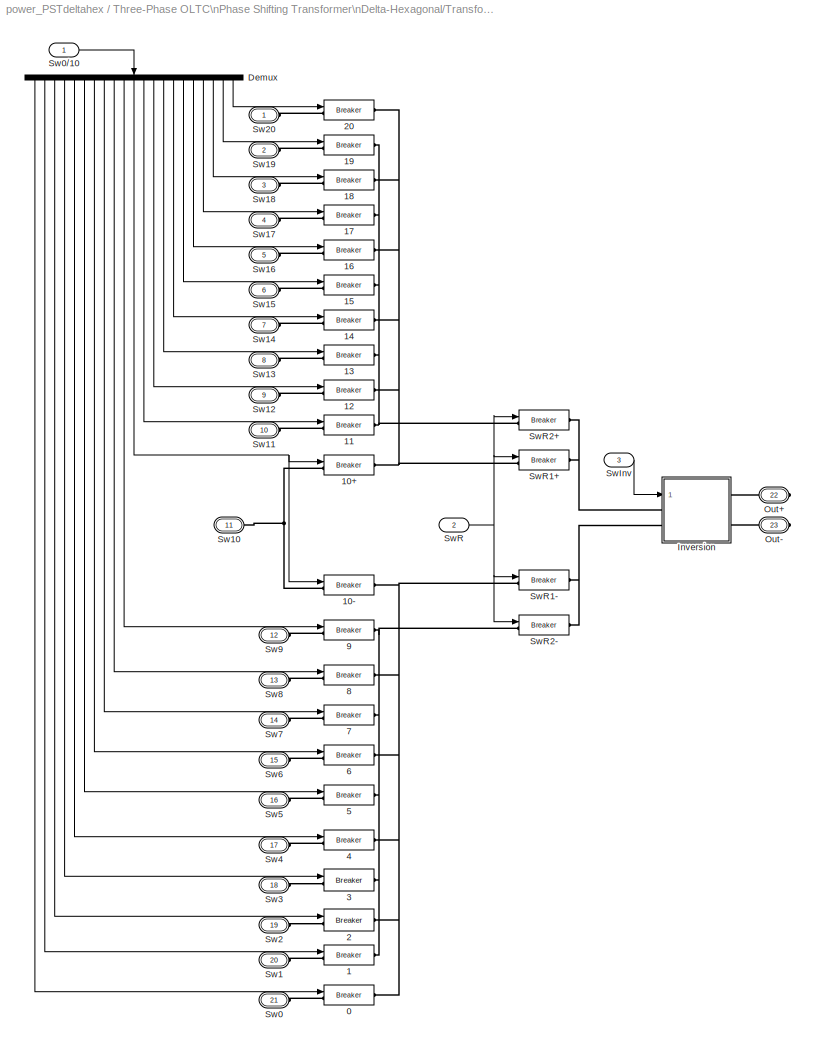
BLOCK [SubSystem] Three-Phase OLTC\nPhase Shifting Transformer\nDelta-Hexagonal/TransfoA/OLTC
  MinAlgLoopOccurrences = off
  Ports = [3, 0, 0, 0, 0, 21, 2]
  RTWSystemCode = Auto
  TreatAsAtomicUnit = off
BLOCK [Reference] Three-Phase OLTC\nPhase Shifting Transformer\nDelta-Hexagonal/TransfoA/OLTC/0    REF=powerlib/Elements/Breaker
  BreakerResistance = Ron
  External = on
  InitialState = InitialStates(1)
  Measurements = None
  Ports = [1, 0, 0, 0, 0, 1, 1]
  ShowPortLabels = on
  SnubberCapacitance = inf
  SnubberResistance = Rsnub
  SourceBlock = powerlib/Elements/Breaker
  SourceType = Breaker
  SwitchingTimes = [ 1/60  5/60 ]
BLOCK [Reference] Three-Phase OLTC\nPhase Shifting Transformer\nDelta-Hexagonal/TransfoA/OLTC/1    REF=powerlib/Elements/Breaker
  BreakerResistance = Ron
  External = on
  InitialState = InitialStates(2)
  Measurements = None
  Ports = [1, 0, 0, 0, 0, 1, 1]
  ShowPortLabels = on
  SnubberCapacitance = inf
  SnubberResistance = Rsnub
  SourceBlock = powerlib/Elements/Breaker
  SourceType = Breaker
  SwitchingTimes = [ 1/60  5/60 ]
BLOCK [Reference] Three-Phase OLTC\nPhase Shifting Transformer\nDelta-Hexagonal/TransfoA/OLTC/10+    REF=powerlib/Elements/Breaker
  BreakerResistance = Ron
  External = on
  InitialState = InitialStates(11)
  Measurements = None
  Ports = [1, 0, 0, 0, 0, 1, 1]
  ShowPortLabels = on
  SnubberCapacitance = Rsnub
  SnubberResistance = 1e6
  SourceBlock = powerlib/Elements/Breaker
  SourceType = Breaker
  SwitchingTimes = [ 1/60  5/60 ]
BLOCK [Reference] Three-Phase OLTC\nPhase Shifting Transformer\nDelta-Hexagonal/TransfoA/OLTC/10-  REF=powerlib/Elements/Breaker
  BreakerResistance = Ron
  External = on
  InitialState = InitialStates(11)
  Measurements = None
  Ports = [1, 0, 0, 0, 0, 1, 1]
  ShowPortLabels = on
  SnubberCapacitance = inf
  SnubberResistance = Rsnub
  SourceBlock = powerlib/Elements/Breaker
  SourceType = Breaker
  SwitchingTimes = [ 1/60  5/60 ]
BLOCK [Reference] Three-Phase OLTC\nPhase Shifting Transformer\nDelta-Hexagonal/TransfoA/OLTC/11  REF=powerlib/Elements/Breaker
  BreakerResistance = Ron
  External = on
  InitialState = InitialStates(12)
  Measurements = None
  Ports = [1, 0, 0, 0, 0, 1, 1]
  ShowPortLabels = on
  SnubberCapacitance = inf
  SnubberResistance = Rsnub
  SourceBlock = powerlib/Elements/Breaker
  SourceType = Breaker
  SwitchingTimes = [ 1/60  5/60 ]
BLOCK [Reference] Three-Phase OLTC\nPhase Shifting Transformer\nDelta-Hexagonal/TransfoA/OLTC/12  REF=powerlib/Elements/Breaker
  BreakerResistance = Ron
  External = on
  InitialState = InitialStates(13)
  Measurements = None
  Ports = [1, 0, 0, 0, 0, 1, 1]
  ShowPortLabels = on
  SnubberCapacitance = inf
  SnubberResistance = Rsnub
  SourceBlock = powerlib/Elements/Breaker
  SourceType = Breaker
  SwitchingTimes = [ 1/60  5/60 ]
BLOCK [Reference] Three-Phase OLTC\nPhase Shifting Transformer\nDelta-Hexagonal/TransfoA/OLTC/13  REF=powerlib/Elements/Breaker
  BreakerResistance = Ron
  External = on
  InitialState = InitialStates(14)
  Measurements = None
  Ports = [1, 0, 0, 0, 0, 1, 1]
  ShowPortLabels = on
  SnubberCapacitance = inf
  SnubberResistance = Rsnub
  SourceBlock = powerlib/Elements/Breaker
  SourceType = Breaker
  SwitchingTimes = [ 1/60  5/60 ]
BLOCK [Reference] Three-Phase OLTC\nPhase Shifting Transformer\nDelta-Hexagonal/TransfoA/OLTC/14  REF=powerlib/Elements/Breaker
  BreakerResistance = Ron
  External = on
  InitialState = InitialStates(15)
  Measurements = None
  Ports = [1, 0, 0, 0, 0, 1, 1]
  ShowPortLabels = on
  SnubberCapacitance = inf
  SnubberResistance = Rsnub
  SourceBlock = powerlib/Elements/Breaker
  SourceType = Breaker
  SwitchingTimes = [ 1/60  5/60 ]
BLOCK [Reference] Three-Phase OLTC\nPhase Shifting Transformer\nDelta-Hexagonal/TransfoA/OLTC/15  REF=powerlib/Elements/Breaker
  BreakerResistance = Ron
  External = on
  InitialState = InitialStates(16)
  Measurements = None
  Ports = [1, 0, 0, 0, 0, 1, 1]
  ShowPortLabels = on
  SnubberCapacitance = inf
  SnubberResistance = Rsnub
  SourceBlock = powerlib/Elements/Breaker
  SourceType = Breaker
  SwitchingTimes = [ 1/60  5/60 ]
BLOCK [Reference] Three-Phase OLTC\nPhase Shifting Transformer\nDelta-Hexagonal/TransfoA/OLTC/16    REF=powerlib/Elements/Breaker
  BreakerResistance = Ron
  External = on
  InitialState = InitialStates(17)
  Measurements = None
  Ports = [1, 0, 0, 0, 0, 1, 1]
  ShowPortLabels = on
  SnubberCapacitance = inf
  SnubberResistance = Rsnub
  SourceBlock = powerlib/Elements/Breaker
  SourceType = Breaker
  SwitchingTimes = [ 1/60  5/60 ]
BLOCK [Reference] Three-Phase OLTC\nPhase Shifting Transformer\nDelta-Hexagonal/TransfoA/OLTC/17  REF=powerlib/Elements/Breaker
  BreakerResistance = Ron
  External = on
  InitialState = InitialStates(18)
  Measurements = None
  Ports = [1, 0, 0, 0, 0, 1, 1]
  ShowPortLabels = on
  SnubberCapacitance = inf
  SnubberResistance = Rsnub
  SourceBlock = powerlib/Elements/Breaker
  SourceType = Breaker
  SwitchingTimes = [ 1/60  5/60 ]
BLOCK [Reference] Three-Phase OLTC\nPhase Shifting Transformer\nDelta-Hexagonal/TransfoA/OLTC/18  REF=powerlib/Elements/Breaker
  BreakerResistance = Ron
  External = on
  InitialState = InitialStates(19)
  Measurements = None
  Ports = [1, 0, 0, 0, 0, 1, 1]
  ShowPortLabels = on
  SnubberCapacitance = inf
  SnubberResistance = Rsnub
  SourceBlock = powerlib/Elements/Breaker
  SourceType = Breaker
  SwitchingTimes = [ 1/60  5/60 ]
BLOCK [Reference] Three-Phase OLTC\nPhase Shifting Transformer\nDelta-Hexagonal/TransfoA/OLTC/19  REF=powerlib/Elements/Breaker
  BreakerResistance = Ron
  External = on
  InitialState = InitialStates(20)
  Measurements = None
  Ports = [1, 0, 0, 0, 0, 1, 1]
  ShowPortLabels = on
  SnubberCapacitance = inf
  SnubberResistance = Rsnub
  SourceBlock = powerlib/Elements/Breaker
  SourceType = Breaker
  SwitchingTimes = [ 1/60  5/60 ]
BLOCK [Reference] Three-Phase OLTC\nPhase Shifting Transformer\nDelta-Hexagonal/TransfoA/OLTC/2      REF=powerlib/Elements/Breaker
  BreakerResistance = Ron
  External = on
  InitialState = InitialStates(3)
  Measurements = None
  Ports = [1, 0, 0, 0, 0, 1, 1]
  ShowPortLabels = on
  SnubberCapacitance = inf
  SnubberResistance = Rsnub
  SourceBlock = powerlib/Elements/Breaker
  SourceType = Breaker
  SwitchingTimes = [ 1/60  5/60 ]
BLOCK [Reference] Three-Phase OLTC\nPhase Shifting Transformer\nDelta-Hexagonal/TransfoA/OLTC/20  REF=powerlib/Elements/Breaker
  BreakerResistance = Ron
  External = on
  InitialState = InitialStates(21)
  Measurements = None
  Ports = [1, 0, 0, 0, 0, 1, 1]
  ShowPortLabels = on
  SnubberCapacitance = inf
  SnubberResistance = Rsnub
  SourceBlock = powerlib/Elements/Breaker
  SourceType = Breaker
  SwitchingTimes = [ 1/60  5/60 ]
BLOCK [Reference] Three-Phase OLTC\nPhase Shifting Transformer\nDelta-Hexagonal/TransfoA/OLTC/3    REF=powerlib/Elements/Breaker
  BreakerResistance = Ron
  External = on
  InitialState = InitialStates(4)
  Measurements = None
  Ports = [1, 0, 0, 0, 0, 1, 1]
  ShowPortLabels = on
  SnubberCapacitance = inf
  SnubberResistance = Rsnub
  SourceBlock = powerlib/Elements/Breaker
  SourceType = Breaker
  SwitchingTimes = [ 1/60  5/60 ]
BLOCK [Reference] Three-Phase OLTC\nPhase Shifting Transformer\nDelta-Hexagonal/TransfoA/OLTC/4    REF=powerlib/Elements/Breaker
  BreakerResistance = Ron
  External = on
  InitialState = InitialStates(5)
  Measurements = None
  Ports = [1, 0, 0, 0, 0, 1, 1]
  ShowPortLabels = on
  SnubberCapacitance = inf
  SnubberResistance = Rsnub
  SourceBlock = powerlib/Elements/Breaker
  SourceType = Breaker
  SwitchingTimes = [ 1/60  5/60 ]
BLOCK [Reference] Three-Phase OLTC\nPhase Shifting Transformer\nDelta-Hexagonal/TransfoA/OLTC/5  REF=powerlib/Elements/Breaker
  BreakerResistance = Ron
  External = on
  InitialState = InitialStates(6)
  Measurements = None
  Ports = [1, 0, 0, 0, 0, 1, 1]
  ShowPortLabels = on
  SnubberCapacitance = inf
  SnubberResistance = Rsnub
  SourceBlock = powerlib/Elements/Breaker
  SourceType = Breaker
  SwitchingTimes = [ 1/60  5/60 ]
BLOCK [Reference] Three-Phase OLTC\nPhase Shifting Transformer\nDelta-Hexagonal/TransfoA/OLTC/6  REF=powerlib/Elements/Breaker
  BreakerResistance = Ron
  External = on
  InitialState = InitialStates(7)
  Measurements = None
  Ports = [1, 0, 0, 0, 0, 1, 1]
  ShowPortLabels = on
  SnubberCapacitance = inf
  SnubberResistance = Rsnub
  SourceBlock = powerlib/Elements/Breaker
  SourceType = Breaker
  SwitchingTimes = [ 1/60  5/60 ]
BLOCK [Reference] Three-Phase OLTC\nPhase Shifting Transformer\nDelta-Hexagonal/TransfoA/OLTC/7  REF=powerlib/Elements/Breaker
  BreakerResistance = Ron
  External = on
  InitialState = InitialStates(8)
  Measurements = None
  Ports = [1, 0, 0, 0, 0, 1, 1]
  ShowPortLabels = on
  SnubberCapacitance = inf
  SnubberResistance = Rsnub
  SourceBlock = powerlib/Elements/Breaker
  SourceType = Breaker
  SwitchingTimes = [ 1/60  5/60 ]
BLOCK [Reference] Three-Phase OLTC\nPhase Shifting Transformer\nDelta-Hexagonal/TransfoA/OLTC/8  REF=powerlib/Elements/Breaker
  BreakerResistance = Ron
  External = on
  InitialState = InitialStates(9)
  Measurements = None
  Ports = [1, 0, 0, 0, 0, 1, 1]
  ShowPortLabels = on
  SnubberCapacitance = inf
  SnubberResistance = Rsnub
  SourceBlock = powerlib/Elements/Breaker
  SourceType = Breaker
  SwitchingTimes = [ 1/60  5/60 ]
BLOCK [Reference] Three-Phase OLTC\nPhase Shifting Transformer\nDelta-Hexagonal/TransfoA/OLTC/9  REF=powerlib/Elements/Breaker
  BreakerResistance = Ron
  External = on
  InitialState = InitialStates(10)
  Measurements = None
  Ports = [1, 0, 0, 0, 0, 1, 1]
  ShowPortLabels = on
  SnubberCapacitance = inf
  SnubberResistance = Rsnub
  SourceBlock = powerlib/Elements/Breaker
  SourceType = Breaker
  SwitchingTimes = [ 1/60  5/60 ]
BLOCK [Demux] Three-Phase OLTC\nPhase Shifting Transformer\nDelta-Hexagonal/TransfoA/OLTC/Demux
  Outputs = 21
  Ports = [1, 21]
BLOCK [SubSystem] Three-Phase OLTC\nPhase Shifting Transformer\nDelta-Hexagonal/TransfoA/OLTC/Inversion
  MinAlgLoopOccurrences = off
  Ports = [1, 0, 0, 0, 0, 2, 2]
  RTWSystemCode = Auto
  TreatAsAtomicUnit = off
BLOCK [PMIOPort] Three-Phase OLTC\nPhase Shifting Transformer\nDelta-Hexagonal/TransfoA/OLTC/Inversion/In1
  Port = 1
  Side = Left
BLOCK [PMIOPort] Three-Phase OLTC\nPhase Shifting Transformer\nDelta-Hexagonal/TransfoA/OLTC/Inversion/In2
  Port = 2
  Side = Left
BLOCK [Inport] Three-Phase OLTC\nPhase Shifting Transformer\nDelta-Hexagonal/TransfoA/OLTC/Inversion/Inv
  IconDisplay = Port number
  LatchInput = off
  Port = 1
BLOCK [Logic] Three-Phase OLTC\nPhase Shifting Transformer\nDelta-Hexagonal/TransfoA/OLTC/Inversion/Logical\nOperator
  AllPortsSameDT = off
  Operator = NOT
  Ports = [1, 1]
BLOCK [PMIOPort] Three-Phase OLTC\nPhase Shifting Transformer\nDelta-Hexagonal/TransfoA/OLTC/Inversion/Out1
  Port = 3
  Side = Right
BLOCK [PMIOPort] Three-Phase OLTC\nPhase Shifting Transformer\nDelta-Hexagonal/TransfoA/OLTC/Inversion/Out2
  Port = 4
  Side = Right
BLOCK [Reference] Three-Phase OLTC\nPhase Shifting Transformer\nDelta-Hexagonal/TransfoA/OLTC/Inversion/SwInv1  REF=powerlib/Elements/Breaker
  BreakerResistance = Ron
  External = on
  InitialState = 1
  Measurements = None
  Ports = [1, 0, 0, 0, 0, 1, 1]
  ShowPortLabels = on
  SnubberCapacitance = inf
  SnubberResistance = Rsnub
  SourceBlock = powerlib/Elements/Breaker
  SourceType = Breaker
  SwitchingTimes = [ 1/60  5/60 ]
BLOCK [Reference] Three-Phase OLTC\nPhase Shifting Transformer\nDelta-Hexagonal/TransfoA/OLTC/Inversion/SwInv2  REF=powerlib/Elements/Breaker
  BreakerResistance = Ron
  External = on
  InitialState = 0
  Measurements = None
  Ports = [1, 0, 0, 0, 0, 1, 1]
  ShowPortLabels = on
  SnubberCapacitance = inf
  SnubberResistance = Rsnub
  SourceBlock = powerlib/Elements/Breaker
  SourceType = Breaker
  SwitchingTimes = [ 1/60  5/60 ]
BLOCK [Reference] Three-Phase OLTC\nPhase Shifting Transformer\nDelta-Hexagonal/TransfoA/OLTC/Inversion/SwInv3  REF=powerlib/Elements/Breaker
  BreakerResistance = Ron
  External = on
  InitialState = 1
  Measurements = None
  Ports = [1, 0, 0, 0, 0, 1, 1]
  ShowPortLabels = on
  SnubberCapacitance = inf
  SnubberResistance = Rsnub
  SourceBlock = powerlib/Elements/Breaker
  SourceType = Breaker
  SwitchingTimes = [ 1/60  5/60 ]
BLOCK [Reference] Three-Phase OLTC\nPhase Shifting Transformer\nDelta-Hexagonal/TransfoA/OLTC/Inversion/SwInv4  REF=powerlib/Elements/Breaker
  BreakerResistance = Ron
  External = on
  InitialState = 0
  Measurements = None
  Ports = [1, 0, 0, 0, 0, 1, 1]
  ShowPortLabels = on
  SnubberCapacitance = inf
  SnubberResistance = Rsnub
  SourceBlock = powerlib/Elements/Breaker
  SourceType = Breaker
  SwitchingTimes = [ 1/60  5/60 ]
BLOCK [PMIOPort] Three-Phase OLTC\nPhase Shifting Transformer\nDelta-Hexagonal/TransfoA/OLTC/Out+
  Port = 22
  Side = Right
BLOCK [PMIOPort] Three-Phase OLTC\nPhase Shifting Transformer\nDelta-Hexagonal/TransfoA/OLTC/Out-
  Port = 23
  Side = Right
BLOCK [PMIOPort] Three-Phase OLTC\nPhase Shifting Transformer\nDelta-Hexagonal/TransfoA/OLTC/Sw0
  Port = 21
  Side = Left
BLOCK [Inport] Three-Phase OLTC\nPhase Shifting Transformer\nDelta-Hexagonal/TransfoA/OLTC/Sw0//10
  IconDisplay = Port number
  LatchInput = off
  Port = 1
BLOCK [PMIOPort] Three-Phase OLTC\nPhase Shifting Transformer\nDelta-Hexagonal/TransfoA/OLTC/Sw1
  Port = 20
  Side = Left
BLOCK [PMIOPort] Three-Phase OLTC\nPhase Shifting Transformer\nDelta-Hexagonal/TransfoA/OLTC/Sw10
  Port = 11
  Side = Left
BLOCK [PMIOPort] Three-Phase OLTC\nPhase Shifting Transformer\nDelta-Hexagonal/TransfoA/OLTC/Sw11
  Port = 10
  Side = Left
BLOCK [PMIOPort] Three-Phase OLTC\nPhase Shifting Transformer\nDelta-Hexagonal/TransfoA/OLTC/Sw12
  Port = 9
  Side = Left
BLOCK [PMIOPort] Three-Phase OLTC\nPhase Shifting Transformer\nDelta-Hexagonal/TransfoA/OLTC/Sw13
  Port = 8
  Side = Left
BLOCK [PMIOPort] Three-Phase OLTC\nPhase Shifting Transformer\nDelta-Hexagonal/TransfoA/OLTC/Sw14
  Port = 7
  Side = Left
BLOCK [PMIOPort] Three-Phase OLTC\nPhase Shifting Transformer\nDelta-Hexagonal/TransfoA/OLTC/Sw15
  Port = 6
  Side = Left
BLOCK [PMIOPort] Three-Phase OLTC\nPhase Shifting Transformer\nDelta-Hexagonal/TransfoA/OLTC/Sw16
  Port = 5
  Side = Left
BLOCK [PMIOPort] Three-Phase OLTC\nPhase Shifting Transformer\nDelta-Hexagonal/TransfoA/OLTC/Sw17
  Port = 4
  Side = Left
BLOCK [PMIOPort] Three-Phase OLTC\nPhase Shifting Transformer\nDelta-Hexagonal/TransfoA/OLTC/Sw18
  Port = 3
  Side = Left
BLOCK [PMIOPort] Three-Phase OLTC\nPhase Shifting Transformer\nDelta-Hexagonal/TransfoA/OLTC/Sw19
  Port = 2
  Side = Left
BLOCK [PMIOPort] Three-Phase OLTC\nPhase Shifting Transformer\nDelta-Hexagonal/TransfoA/OLTC/Sw2 
  Port = 19
  Side = Left
BLOCK [PMIOPort] Three-Phase OLTC\nPhase Shifting Transformer\nDelta-Hexagonal/TransfoA/OLTC/Sw20
  Port = 1
  Side = Left
BLOCK [PMIOPort] Three-Phase OLTC\nPhase Shifting Transformer\nDelta-Hexagonal/TransfoA/OLTC/Sw3
  Port = 18
  Side = Left
BLOCK [PMIOPort] Three-Phase OLTC\nPhase Shifting Transformer\nDelta-Hexagonal/TransfoA/OLTC/Sw4
  Port = 17
  Side = Left
BLOCK [PMIOPort] Three-Phase OLTC\nPhase Shifting Transformer\nDelta-Hexagonal/TransfoA/OLTC/Sw5
  Port = 16
  Side = Left
BLOCK [PMIOPort] Three-Phase OLTC\nPhase Shifting Transformer\nDelta-Hexagonal/TransfoA/OLTC/Sw6
  Port = 15
  Side = Left
BLOCK [PMIOPort] Three-Phase OLTC\nPhase Shifting Transformer\nDelta-Hexagonal/TransfoA/OLTC/Sw7
  Port = 14
  Side = Left
BLOCK [PMIOPort] Three-Phase OLTC\nPhase Shifting Transformer\nDelta-Hexagonal/TransfoA/OLTC/Sw8
  Port = 13
  Side = Left
BLOCK [PMIOPort] Three-Phase OLTC\nPhase Shifting Transformer\nDelta-Hexagonal/TransfoA/OLTC/Sw9 
  Port = 12
  Side = Left
BLOCK [Inport] Three-Phase OLTC\nPhase Shifting Transformer\nDelta-Hexagonal/TransfoA/OLTC/SwInv
  IconDisplay = Port number
  LatchInput = off
  Port = 3
BLOCK [Inport] Three-Phase OLTC\nPhase Shifting Transformer\nDelta-Hexagonal/TransfoA/OLTC/SwR
  IconDisplay = Port number
  LatchInput = off
  Port = 2
BLOCK [Reference] Three-Phase OLTC\nPhase Shifting Transformer\nDelta-Hexagonal/TransfoA/OLTC/SwR1+  REF=powerlib/Elements/Breaker
  BreakerResistance = Ron
  External = on
  InitialState = 1
  Measurements = None
  Ports = [1, 0, 0, 0, 0, 1, 1]
  ShowPortLabels = on
  SnubberCapacitance = inf
  SnubberResistance = R
  SourceBlock = powerlib/Elements/Breaker
  SourceType = Breaker
  SwitchingTimes = [ 1/60  5/60 ]
BLOCK [Reference] Three-Phase OLTC\nPhase Shifting Transformer\nDelta-Hexagonal/TransfoA/OLTC/SwR1-  REF=powerlib/Elements/Breaker
  BreakerResistance = Ron
  External = on
  InitialState = 1
  Measurements = None
  Ports = [1, 0, 0, 0, 0, 1, 1]
  ShowPortLabels = on
  SnubberCapacitance = inf
  SnubberResistance = R
  SourceBlock = powerlib/Elements/Breaker
  SourceType = Breaker
  SwitchingTimes = [ 1/60  5/60 ]
BLOCK [Reference] Three-Phase OLTC\nPhase Shifting Transformer\nDelta-Hexagonal/TransfoA/OLTC/SwR2+  REF=powerlib/Elements/Breaker
  BreakerResistance = Ron
  External = on
  InitialState = 1
  Measurements = None
  Ports = [1, 0, 0, 0, 0, 1, 1]
  ShowPortLabels = on
  SnubberCapacitance = inf
  SnubberResistance = R
  SourceBlock = powerlib/Elements/Breaker
  SourceType = Breaker
  SwitchingTimes = [ 1/60  5/60 ]
BLOCK [Reference] Three-Phase OLTC\nPhase Shifting Transformer\nDelta-Hexagonal/TransfoA/OLTC/SwR2-  REF=powerlib/Elements/Breaker
  BreakerResistance = Ron
  External = on
  InitialState = 1
  Measurements = None
  Ports = [1, 0, 0, 0, 0, 1, 1]
  ShowPortLabels = on
  SnubberCapacitance = inf
  SnubberResistance = R
  SourceBlock = powerlib/Elements/Breaker
  SourceType = Breaker
  SwitchingTimes = [ 1/60  5/60 ]
BLOCK [SubSystem] Three-Phase OLTC\nPhase Shifting Transformer\nDelta-Hexagonal/TransfoA/Transformer
  AncestorBlock = powerlib/Elements/Multi-Winding\nTransformer
  MaskCallbackString = powericon('NWindingsTransformerCback',gcb,0);|powericon('NWindingsTransformerCback',gcb,0);|powericon('NWindingsTransformerCback',gcb,1);|powericon('NWindingsTransformerCback',gcb,1);|||||powericon('NWindingsTransformerCback',gcb,0);||||powericon('NWindingsTransformerCback',gcb,0);||||  <repeated x3 — deduplicated; at blocks: Transformer>
  MaskEnableString = on,on,on,on,on,on,on,on,on,on,on,on,on,on,on,on,on
  MaskIconFrame = on
  MaskIconOpaque = off
  MaskIconRotate = none
  MaskIconUnits = autoscale
  MaskInitialization = block = gcb;\n% icon function will go here.\n%\npowerbase = NominalPower(1);\nwbase = 2*pi*NominalPower(2);\nvoltbase = NominalVoltages(1);\nBaseCurrent = (powerbase/voltbase)*sqrt(2);\nBaseFlux = (voltbase/wbase)*sqrt(2);\n%\nif SetSaturation\n	Saturation = [-Saturation(size(Saturation,1):-1:2,:) ; Saturation(2:size(Saturation,1),:)];\n    SaturationCurrent = [Saturation(:,1)*BaseCurrent]';\n    ...<+543ch>  <repeated x3 — deduplicated; at blocks: Transformer>
  MaskPromptString = Number of windings on left side|Number of windings on right side|Tapped winding|----  Number of taps (equally spaced):|Nominal power and frequency [Pn(VA) fn(Hz)]:|Winding nominal voltages [U1 U2 ... Un] (Vrms): |Winding resistances [R1 R2 ... Rn] (pu): |Winding leakage inductances [L1 L2 ... Ln] (pu): |Saturable core|Magnetization resistance  Rm (pu)|Magnetization reactance Lm (pu)|Saturation cha...<+171ch>  <repeated x3 — deduplicated; at blocks: Transformer>
  MaskSelfModifiable = on
  MaskStyleString = edit,edit,popup(no taps|taps on upper left winding|taps on upper right winding),edit,edit,edit,edit,edit,checkbox,edit,edit,edit,checkbox,edit,popup(None|Winding voltages|Winding currents|Flux and excitation current ( Imag + IRm )|Flux and magnetization current ( Imag )|All measurements (V I Flux)),edit,edit  <repeated x3 — deduplicated; at blocks: Transformer>
  MaskTabNameString = ,,,,,,,,,,,,,,,,
  MaskToolTipString = on,on,on,on,on,on,on,on,on,on,on,on,on,on,on,on,on
  MaskTunableValueString = off,off,off,off,off,off,off,off,off,off,off,off,off,off,off,off,off
  MaskType = Multi-Windings Transformer
  MaskValueString = 1|1|taps on upper right winding|19|[Pnom3ph/3 Fnom]|Vnom_Windings|Rpu_Windings|Xpu_Windings|off|Rmag|Lmag|SaturationCurrentFlux|off|'hysteresis.mat'|None|26.7622502223547|1
  MaskVarAliasString = ,,,,,,,,,,,,,,,,
  MaskVariables = LeftWindings=@1;RightWindings=@2;TappedWindings=@3;NumberOfTaps=@4;NominalPower=@5;NominalVoltages=@6;WindingResistances=@7;WindingInductances=@8;SetSaturation=@9;Rm=@10;Lm=@11;Saturation=@12;Hysteresis=@13;DataFile=@14;Measurements=@15;InitialFlux=@16;TransfoNumber=@17;  <repeated x3 — deduplicated; at blocks: Transformer>
  MaskVisibilityString = on,on,on,on,on,on,on,on,on,on,on,off,off,off,on,off,off
  MinAlgLoopOccurrences = off
  Ports = [0, 0, 0, 0, 0, 2, 21]
  RTWSystemCode = Auto
  TreatAsAtomicUnit = off
BLOCK [PMIOPort] Three-Phase OLTC\nPhase Shifting Transformer\nDelta-Hexagonal/TransfoA/Transformer/+2
  Port = 3
  Side = Right
BLOCK [PMIOPort] Three-Phase OLTC\nPhase Shifting Transformer\nDelta-Hexagonal/TransfoA/Transformer/1
  Port = 2
  Side = Left
BLOCK [PMIOPort] Three-Phase OLTC\nPhase Shifting Transformer\nDelta-Hexagonal/TransfoA/Transformer/1+
  Port = 1
  Side = Left
BLOCK [PMIOPort] Three-Phase OLTC\nPhase Shifting Transformer\nDelta-Hexagonal/TransfoA/Transformer/2
  Port = 23
  Side = Right
BLOCK [PMIOPort] Three-Phase OLTC\nPhase Shifting Transformer\nDelta-Hexagonal/TransfoA/Transformer/2.1
  Port = 4
  Side = Right
BLOCK [PMIOPort] Three-Phase OLTC\nPhase Shifting Transformer\nDelta-Hexagonal/TransfoA/Transformer/2.10
  Port = 13
  Side = Right
BLOCK [PMIOPort] Three-Phase OLTC\nPhase Shifting Transformer\nDelta-Hexagonal/TransfoA/Transformer/2.11
  Port = 14
  Side = Right
BLOCK [PMIOPort] Three-Phase OLTC\nPhase Shifting Transformer\nDelta-Hexagonal/TransfoA/Transformer/2.12
  Port = 15
  Side = Right
BLOCK [PMIOPort] Three-Phase OLTC\nPhase Shifting Transformer\nDelta-Hexagonal/TransfoA/Transformer/2.13
  Port = 16
  Side = Right
BLOCK [PMIOPort] Three-Phase OLTC\nPhase Shifting Transformer\nDelta-Hexagonal/TransfoA/Transformer/2.14
  Port = 17
  Side = Right
BLOCK [PMIOPort] Three-Phase OLTC\nPhase Shifting Transformer\nDelta-Hexagonal/TransfoA/Transformer/2.15
  Port = 18
  Side = Right
BLOCK [PMIOPort] Three-Phase OLTC\nPhase Shifting Transformer\nDelta-Hexagonal/TransfoA/Transformer/2.16
  Port = 19
  Side = Right
BLOCK [PMIOPort] Three-Phase OLTC\nPhase Shifting Transformer\nDelta-Hexagonal/TransfoA/Transformer/2.17
  Port = 20
  Side = Right
BLOCK [PMIOPort] Three-Phase OLTC\nPhase Shifting Transformer\nDelta-Hexagonal/TransfoA/Transformer/2.18
  Port = 21
  Side = Right
BLOCK [PMIOPort] Three-Phase OLTC\nPhase Shifting Transformer\nDelta-Hexagonal/TransfoA/Transformer/2.19
  Port = 22
  Side = Right
BLOCK [PMIOPort] Three-Phase OLTC\nPhase Shifting Transformer\nDelta-Hexagonal/TransfoA/Transformer/2.2
  Port = 5
  Side = Right
BLOCK [PMIOPort] Three-Phase OLTC\nPhase Shifting Transformer\nDelta-Hexagonal/TransfoA/Transformer/2.3
  Port = 6
  Side = Right
BLOCK [PMIOPort] Three-Phase OLTC\nPhase Shifting Transformer\nDelta-Hexagonal/TransfoA/Transformer/2.4
  Port = 7
  Side = Right
BLOCK [PMIOPort] Three-Phase OLTC\nPhase Shifting Transformer\nDelta-Hexagonal/TransfoA/Transformer/2.5
  Port = 8
  Side = Right
BLOCK [PMIOPort] Three-Phase OLTC\nPhase Shifting Transformer\nDelta-Hexagonal/TransfoA/Transformer/2.6
  Port = 9
  Side = Right
BLOCK [PMIOPort] Three-Phase OLTC\nPhase Shifting Transformer\nDelta-Hexagonal/TransfoA/Transformer/2.7
  Port = 10
  Side = Right
BLOCK [PMIOPort] Three-Phase OLTC\nPhase Shifting Transformer\nDelta-Hexagonal/TransfoA/Transformer/2.8
  Port = 11
  Side = Right
BLOCK [PMIOPort] Three-Phase OLTC\nPhase Shifting Transformer\nDelta-Hexagonal/TransfoA/Transformer/2.9
  Port = 12
  Side = Right
BLOCK [PMComponent] Three-Phase OLTC\nPhase Shifting Transformer\nDelta-Hexagonal/TransfoA/Transformer/NWindingsTransformer
  LConnTagsString = 1|2
  LeftPortType = p1
  MaskIconFrame = on
  MaskIconOpaque = on
  MaskIconRotate = none
  MaskIconUnits = autoscale
  MaskType = InnerPowersysBlock
  PhysicalDomain = powersysdomain
  Ports = [0, 0, 0, 0, 0, 2, 21]
  RConnTagsString = 1|2|3|4|5|6|7|8|9|10|11|12|13|14|15|16|17|18|19|20|21
  RightPortType = p1
BLOCK [PMIOPort] Three-Phase OLTC\nPhase Shifting Transformer\nDelta-Hexagonal/TransfoA/W1+
  Port = 6
  Side = Right
BLOCK [PMIOPort] Three-Phase OLTC\nPhase Shifting Transformer\nDelta-Hexagonal/TransfoA/W1-
  Port = 3
  Side = Left
BLOCK [PMIOPort] Three-Phase OLTC\nPhase Shifting Transformer\nDelta-Hexagonal/TransfoA/W2+
  Port = 4
  Side = Right
BLOCK [PMIOPort] Three-Phase OLTC\nPhase Shifting Transformer\nDelta-Hexagonal/TransfoA/W2-
  Port = 1
  Side = Left
BLOCK [PMIOPort] Three-Phase OLTC\nPhase Shifting Transformer\nDelta-Hexagonal/TransfoA/W2_tap+
  Port = 5
  Side = Right
BLOCK [PMIOPort] Three-Phase OLTC\nPhase Shifting Transformer\nDelta-Hexagonal/TransfoA/W2_tap-
  Port = 2
  Side = Left
BLOCK [SubSystem] Three-Phase OLTC\nPhase Shifting Transformer\nDelta-Hexagonal/TransfoB
  MaskCallbackString = |||||||
  MaskEnableString = on,on,on,on,on,on,on,on
  MaskIconFrame = on
  MaskIconOpaque = on
  MaskIconRotate = none
  MaskIconUnits = autoscale
  MaskStyleString = edit,edit,edit,checkbox,edit,edit,edit,edit
  MaskTabNameString = ,,,,,,,
  MaskToolTipString = on,on,on,on,on,on,on,on
  MaskTunableValueString = on,on,on,on,on,on,on,on
  MaskValueString = NominalParameters|RXpu|RmXmpu|off|SaturationCurrentFlux|NumberOfTaps|InitialTap|Rtransfer
  MaskVarAliasString = ,,,,,,,
  MaskVariables = NominalParameters=@1;RXpu=@2;RmXmpu=@3;SetSaturation=&4;SaturationCurrentFlux=@5;NumberOfTaps=@6;InitialTap=@7;R=@8;
  MaskVisibilityString = on,on,on,on,on,on,on,on
  MinAlgLoopOccurrences = off
  Ports = [0, 0, 0, 0, 0, 3, 3]
  RTWSystemCode = Auto
  TreatAsAtomicUnit = off
BLOCK [From] Three-Phase OLTC\nPhase Shifting Transformer\nDelta-Hexagonal/TransfoB/From1
  CloseFcn = tagdialog Close
  DialogController = Simulink.DDGSource
  GotoTag = SwTransfer
BLOCK [From] Three-Phase OLTC\nPhase Shifting Transformer\nDelta-Hexagonal/TransfoB/From2
  CloseFcn = tagdialog Close
  DialogController = Simulink.DDGSource
  GotoTag = SwSelect
BLOCK [From] Three-Phase OLTC\nPhase Shifting Transformer\nDelta-Hexagonal/TransfoB/From3
  CloseFcn = tagdialog Close
  DialogController = Simulink.DDGSource
  GotoTag = SwInversion
BLOCK [SubSystem] Three-Phase OLTC\nPhase Shifting Transformer\nDelta-Hexagonal/TransfoB/OLTC
  MinAlgLoopOccurrences = off
  Ports = [3, 0, 0, 0, 0, 21, 2]
  RTWSystemCode = Auto
  TreatAsAtomicUnit = off
BLOCK [Reference] Three-Phase OLTC\nPhase Shifting Transformer\nDelta-Hexagonal/TransfoB/OLTC/0    REF=powerlib/Elements/Breaker
  BreakerResistance = Ron
  External = on
  InitialState = InitialStates(1)
  Measurements = None
  Ports = [1, 0, 0, 0, 0, 1, 1]
  ShowPortLabels = on
  SnubberCapacitance = inf
  SnubberResistance = Rsnub
  SourceBlock = powerlib/Elements/Breaker
  SourceType = Breaker
  SwitchingTimes = [ 1/60  5/60 ]
BLOCK [Reference] Three-Phase OLTC\nPhase Shifting Transformer\nDelta-Hexagonal/TransfoB/OLTC/1    REF=powerlib/Elements/Breaker
  BreakerResistance = Ron
  External = on
  InitialState = InitialStates(2)
  Measurements = None
  Ports = [1, 0, 0, 0, 0, 1, 1]
  ShowPortLabels = on
  SnubberCapacitance = inf
  SnubberResistance = Rsnub
  SourceBlock = powerlib/Elements/Breaker
  SourceType = Breaker
  SwitchingTimes = [ 1/60  5/60 ]
BLOCK [Reference] Three-Phase OLTC\nPhase Shifting Transformer\nDelta-Hexagonal/TransfoB/OLTC/10+    REF=powerlib/Elements/Breaker
  BreakerResistance = Ron
  External = on
  InitialState = InitialStates(11)
  Measurements = None
  Ports = [1, 0, 0, 0, 0, 1, 1]
  ShowPortLabels = on
  SnubberCapacitance = Rsnub
  SnubberResistance = 1e6
  SourceBlock = powerlib/Elements/Breaker
  SourceType = Breaker
  SwitchingTimes = [ 1/60  5/60 ]
BLOCK [Reference] Three-Phase OLTC\nPhase Shifting Transformer\nDelta-Hexagonal/TransfoB/OLTC/10-  REF=powerlib/Elements/Breaker
  BreakerResistance = Ron
  External = on
  InitialState = InitialStates(11)
  Measurements = None
  Ports = [1, 0, 0, 0, 0, 1, 1]
  ShowPortLabels = on
  SnubberCapacitance = inf
  SnubberResistance = Rsnub
  SourceBlock = powerlib/Elements/Breaker
  SourceType = Breaker
  SwitchingTimes = [ 1/60  5/60 ]
BLOCK [Reference] Three-Phase OLTC\nPhase Shifting Transformer\nDelta-Hexagonal/TransfoB/OLTC/11  REF=powerlib/Elements/Breaker
  BreakerResistance = Ron
  External = on
  InitialState = InitialStates(12)
  Measurements = None
  Ports = [1, 0, 0, 0, 0, 1, 1]
  ShowPortLabels = on
  SnubberCapacitance = inf
  SnubberResistance = Rsnub
  SourceBlock = powerlib/Elements/Breaker
  SourceType = Breaker
  SwitchingTimes = [ 1/60  5/60 ]
BLOCK [Reference] Three-Phase OLTC\nPhase Shifting Transformer\nDelta-Hexagonal/TransfoB/OLTC/12  REF=powerlib/Elements/Breaker
  BreakerResistance = Ron
  External = on
  InitialState = InitialStates(13)
  Measurements = None
  Ports = [1, 0, 0, 0, 0, 1, 1]
  ShowPortLabels = on
  SnubberCapacitance = inf
  SnubberResistance = Rsnub
  SourceBlock = powerlib/Elements/Breaker
  SourceType = Breaker
  SwitchingTimes = [ 1/60  5/60 ]
BLOCK [Reference] Three-Phase OLTC\nPhase Shifting Transformer\nDelta-Hexagonal/TransfoB/OLTC/13  REF=powerlib/Elements/Breaker
  BreakerResistance = Ron
  External = on
  InitialState = InitialStates(14)
  Measurements = None
  Ports = [1, 0, 0, 0, 0, 1, 1]
  ShowPortLabels = on
  SnubberCapacitance = inf
  SnubberResistance = Rsnub
  SourceBlock = powerlib/Elements/Breaker
  SourceType = Breaker
  SwitchingTimes = [ 1/60  5/60 ]
BLOCK [Reference] Three-Phase OLTC\nPhase Shifting Transformer\nDelta-Hexagonal/TransfoB/OLTC/14  REF=powerlib/Elements/Breaker
  BreakerResistance = Ron
  External = on
  InitialState = InitialStates(15)
  Measurements = None
  Ports = [1, 0, 0, 0, 0, 1, 1]
  ShowPortLabels = on
  SnubberCapacitance = inf
  SnubberResistance = Rsnub
  SourceBlock = powerlib/Elements/Breaker
  SourceType = Breaker
  SwitchingTimes = [ 1/60  5/60 ]
BLOCK [Reference] Three-Phase OLTC\nPhase Shifting Transformer\nDelta-Hexagonal/TransfoB/OLTC/15  REF=powerlib/Elements/Breaker
  BreakerResistance = Ron
  External = on
  InitialState = InitialStates(16)
  Measurements = None
  Ports = [1, 0, 0, 0, 0, 1, 1]
  ShowPortLabels = on
  SnubberCapacitance = inf
  SnubberResistance = Rsnub
  SourceBlock = powerlib/Elements/Breaker
  SourceType = Breaker
  SwitchingTimes = [ 1/60  5/60 ]
BLOCK [Reference] Three-Phase OLTC\nPhase Shifting Transformer\nDelta-Hexagonal/TransfoB/OLTC/16    REF=powerlib/Elements/Breaker
  BreakerResistance = Ron
  External = on
  InitialState = InitialStates(17)
  Measurements = None
  Ports = [1, 0, 0, 0, 0, 1, 1]
  ShowPortLabels = on
  SnubberCapacitance = inf
  SnubberResistance = Rsnub
  SourceBlock = powerlib/Elements/Breaker
  SourceType = Breaker
  SwitchingTimes = [ 1/60  5/60 ]
BLOCK [Reference] Three-Phase OLTC\nPhase Shifting Transformer\nDelta-Hexagonal/TransfoB/OLTC/17  REF=powerlib/Elements/Breaker
  BreakerResistance = Ron
  External = on
  InitialState = InitialStates(18)
  Measurements = None
  Ports = [1, 0, 0, 0, 0, 1, 1]
  ShowPortLabels = on
  SnubberCapacitance = inf
  SnubberResistance = Rsnub
  SourceBlock = powerlib/Elements/Breaker
  SourceType = Breaker
  SwitchingTimes = [ 1/60  5/60 ]
BLOCK [Reference] Three-Phase OLTC\nPhase Shifting Transformer\nDelta-Hexagonal/TransfoB/OLTC/18  REF=powerlib/Elements/Breaker
  BreakerResistance = Ron
  External = on
  InitialState = InitialStates(19)
  Measurements = None
  Ports = [1, 0, 0, 0, 0, 1, 1]
  ShowPortLabels = on
  SnubberCapacitance = inf
  SnubberResistance = Rsnub
  SourceBlock = powerlib/Elements/Breaker
  SourceType = Breaker
  SwitchingTimes = [ 1/60  5/60 ]
BLOCK [Reference] Three-Phase OLTC\nPhase Shifting Transformer\nDelta-Hexagonal/TransfoB/OLTC/19  REF=powerlib/Elements/Breaker
  BreakerResistance = Ron
  External = on
  InitialState = InitialStates(20)
  Measurements = None
  Ports = [1, 0, 0, 0, 0, 1, 1]
  ShowPortLabels = on
  SnubberCapacitance = inf
  SnubberResistance = Rsnub
  SourceBlock = powerlib/Elements/Breaker
  SourceType = Breaker
  SwitchingTimes = [ 1/60  5/60 ]
BLOCK [Reference] Three-Phase OLTC\nPhase Shifting Transformer\nDelta-Hexagonal/TransfoB/OLTC/2      REF=powerlib/Elements/Breaker
  BreakerResistance = Ron
  External = on
  InitialState = InitialStates(3)
  Measurements = None
  Ports = [1, 0, 0, 0, 0, 1, 1]
  ShowPortLabels = on
  SnubberCapacitance = inf
  SnubberResistance = Rsnub
  SourceBlock = powerlib/Elements/Breaker
  SourceType = Breaker
  SwitchingTimes = [ 1/60  5/60 ]
BLOCK [Reference] Three-Phase OLTC\nPhase Shifting Transformer\nDelta-Hexagonal/TransfoB/OLTC/20  REF=powerlib/Elements/Breaker
  BreakerResistance = Ron
  External = on
  InitialState = InitialStates(21)
  Measurements = None
  Ports = [1, 0, 0, 0, 0, 1, 1]
  ShowPortLabels = on
  SnubberCapacitance = inf
  SnubberResistance = Rsnub
  SourceBlock = powerlib/Elements/Breaker
  SourceType = Breaker
  SwitchingTimes = [ 1/60  5/60 ]
BLOCK [Reference] Three-Phase OLTC\nPhase Shifting Transformer\nDelta-Hexagonal/TransfoB/OLTC/3    REF=powerlib/Elements/Breaker
  BreakerResistance = Ron
  External = on
  InitialState = InitialStates(4)
  Measurements = None
  Ports = [1, 0, 0, 0, 0, 1, 1]
  ShowPortLabels = on
  SnubberCapacitance = inf
  SnubberResistance = Rsnub
  SourceBlock = powerlib/Elements/Breaker
  SourceType = Breaker
  SwitchingTimes = [ 1/60  5/60 ]
BLOCK [Reference] Three-Phase OLTC\nPhase Shifting Transformer\nDelta-Hexagonal/TransfoB/OLTC/4    REF=powerlib/Elements/Breaker
  BreakerResistance = Ron
  External = on
  InitialState = InitialStates(5)
  Measurements = None
  Ports = [1, 0, 0, 0, 0, 1, 1]
  ShowPortLabels = on
  SnubberCapacitance = inf
  SnubberResistance = Rsnub
  SourceBlock = powerlib/Elements/Breaker
  SourceType = Breaker
  SwitchingTimes = [ 1/60  5/60 ]
BLOCK [Reference] Three-Phase OLTC\nPhase Shifting Transformer\nDelta-Hexagonal/TransfoB/OLTC/5  REF=powerlib/Elements/Breaker
  BreakerResistance = Ron
  External = on
  InitialState = InitialStates(6)
  Measurements = None
  Ports = [1, 0, 0, 0, 0, 1, 1]
  ShowPortLabels = on
  SnubberCapacitance = inf
  SnubberResistance = Rsnub
  SourceBlock = powerlib/Elements/Breaker
  SourceType = Breaker
  SwitchingTimes = [ 1/60  5/60 ]
BLOCK [Reference] Three-Phase OLTC\nPhase Shifting Transformer\nDelta-Hexagonal/TransfoB/OLTC/6  REF=powerlib/Elements/Breaker
  BreakerResistance = Ron
  External = on
  InitialState = InitialStates(7)
  Measurements = None
  Ports = [1, 0, 0, 0, 0, 1, 1]
  ShowPortLabels = on
  SnubberCapacitance = inf
  SnubberResistance = Rsnub
  SourceBlock = powerlib/Elements/Breaker
  SourceType = Breaker
  SwitchingTimes = [ 1/60  5/60 ]
BLOCK [Reference] Three-Phase OLTC\nPhase Shifting Transformer\nDelta-Hexagonal/TransfoB/OLTC/7  REF=powerlib/Elements/Breaker
  BreakerResistance = Ron
  External = on
  InitialState = InitialStates(8)
  Measurements = None
  Ports = [1, 0, 0, 0, 0, 1, 1]
  ShowPortLabels = on
  SnubberCapacitance = inf
  SnubberResistance = Rsnub
  SourceBlock = powerlib/Elements/Breaker
  SourceType = Breaker
  SwitchingTimes = [ 1/60  5/60 ]
BLOCK [Reference] Three-Phase OLTC\nPhase Shifting Transformer\nDelta-Hexagonal/TransfoB/OLTC/8  REF=powerlib/Elements/Breaker
  BreakerResistance = Ron
  External = on
  InitialState = InitialStates(9)
  Measurements = None
  Ports = [1, 0, 0, 0, 0, 1, 1]
  ShowPortLabels = on
  SnubberCapacitance = inf
  SnubberResistance = Rsnub
  SourceBlock = powerlib/Elements/Breaker
  SourceType = Breaker
  SwitchingTimes = [ 1/60  5/60 ]
BLOCK [Reference] Three-Phase OLTC\nPhase Shifting Transformer\nDelta-Hexagonal/TransfoB/OLTC/9  REF=powerlib/Elements/Breaker
  BreakerResistance = Ron
  External = on
  InitialState = InitialStates(10)
  Measurements = None
  Ports = [1, 0, 0, 0, 0, 1, 1]
  ShowPortLabels = on
  SnubberCapacitance = inf
  SnubberResistance = Rsnub
  SourceBlock = powerlib/Elements/Breaker
  SourceType = Breaker
  SwitchingTimes = [ 1/60  5/60 ]
BLOCK [Demux] Three-Phase OLTC\nPhase Shifting Transformer\nDelta-Hexagonal/TransfoB/OLTC/Demux
  Outputs = 21
  Ports = [1, 21]
BLOCK [SubSystem] Three-Phase OLTC\nPhase Shifting Transformer\nDelta-Hexagonal/TransfoB/OLTC/Inversion
  MinAlgLoopOccurrences = off
  Ports = [1, 0, 0, 0, 0, 2, 2]
  RTWSystemCode = Auto
  TreatAsAtomicUnit = off
BLOCK [PMIOPort] Three-Phase OLTC\nPhase Shifting Transformer\nDelta-Hexagonal/TransfoB/OLTC/Inversion/In1
  Port = 1
  Side = Left
BLOCK [PMIOPort] Three-Phase OLTC\nPhase Shifting Transformer\nDelta-Hexagonal/TransfoB/OLTC/Inversion/In2
  Port = 2
  Side = Left
BLOCK [Inport] Three-Phase OLTC\nPhase Shifting Transformer\nDelta-Hexagonal/TransfoB/OLTC/Inversion/Inv
  IconDisplay = Port number
  LatchInput = off
  Port = 1
BLOCK [Logic] Three-Phase OLTC\nPhase Shifting Transformer\nDelta-Hexagonal/TransfoB/OLTC/Inversion/Logical\nOperator
  AllPortsSameDT = off
  Operator = NOT
  Ports = [1, 1]
BLOCK [PMIOPort] Three-Phase OLTC\nPhase Shifting Transformer\nDelta-Hexagonal/TransfoB/OLTC/Inversion/Out1
  Port = 3
  Side = Right
BLOCK [PMIOPort] Three-Phase OLTC\nPhase Shifting Transformer\nDelta-Hexagonal/TransfoB/OLTC/Inversion/Out2
  Port = 4
  Side = Right
BLOCK [Reference] Three-Phase OLTC\nPhase Shifting Transformer\nDelta-Hexagonal/TransfoB/OLTC/Inversion/SwInv1  REF=powerlib/Elements/Breaker
  BreakerResistance = Ron
  External = on
  InitialState = 1
  Measurements = None
  Ports = [1, 0, 0, 0, 0, 1, 1]
  ShowPortLabels = on
  SnubberCapacitance = inf
  SnubberResistance = Rsnub
  SourceBlock = powerlib/Elements/Breaker
  SourceType = Breaker
  SwitchingTimes = [ 1/60  5/60 ]
BLOCK [Reference] Three-Phase OLTC\nPhase Shifting Transformer\nDelta-Hexagonal/TransfoB/OLTC/Inversion/SwInv2  REF=powerlib/Elements/Breaker
  BreakerResistance = Ron
  External = on
  InitialState = 0
  Measurements = None
  Ports = [1, 0, 0, 0, 0, 1, 1]
  ShowPortLabels = on
  SnubberCapacitance = inf
  SnubberResistance = Rsnub
  SourceBlock = powerlib/Elements/Breaker
  SourceType = Breaker
  SwitchingTimes = [ 1/60  5/60 ]
BLOCK [Reference] Three-Phase OLTC\nPhase Shifting Transformer\nDelta-Hexagonal/TransfoB/OLTC/Inversion/SwInv3  REF=powerlib/Elements/Breaker
  BreakerResistance = Ron
  External = on
  InitialState = 1
  Measurements = None
  Ports = [1, 0, 0, 0, 0, 1, 1]
  ShowPortLabels = on
  SnubberCapacitance = inf
  SnubberResistance = Rsnub
  SourceBlock = powerlib/Elements/Breaker
  SourceType = Breaker
  SwitchingTimes = [ 1/60  5/60 ]
BLOCK [Reference] Three-Phase OLTC\nPhase Shifting Transformer\nDelta-Hexagonal/TransfoB/OLTC/Inversion/SwInv4  REF=powerlib/Elements/Breaker
  BreakerResistance = Ron
  External = on
  InitialState = 0
  Measurements = None
  Ports = [1, 0, 0, 0, 0, 1, 1]
  ShowPortLabels = on
  SnubberCapacitance = inf
  SnubberResistance = Rsnub
  SourceBlock = powerlib/Elements/Breaker
  SourceType = Breaker
  SwitchingTimes = [ 1/60  5/60 ]
BLOCK [PMIOPort] Three-Phase OLTC\nPhase Shifting Transformer\nDelta-Hexagonal/TransfoB/OLTC/Out+
  Port = 22
  Side = Right
BLOCK [PMIOPort] Three-Phase OLTC\nPhase Shifting Transformer\nDelta-Hexagonal/TransfoB/OLTC/Out-
  Port = 23
  Side = Right
BLOCK [PMIOPort] Three-Phase OLTC\nPhase Shifting Transformer\nDelta-Hexagonal/TransfoB/OLTC/Sw0
  Port = 21
  Side = Left
BLOCK [Inport] Three-Phase OLTC\nPhase Shifting Transformer\nDelta-Hexagonal/TransfoB/OLTC/Sw0//10
  IconDisplay = Port number
  LatchInput = off
  Port = 1
BLOCK [PMIOPort] Three-Phase OLTC\nPhase Shifting Transformer\nDelta-Hexagonal/TransfoB/OLTC/Sw1
  Port = 20
  Side = Left
BLOCK [PMIOPort] Three-Phase OLTC\nPhase Shifting Transformer\nDelta-Hexagonal/TransfoB/OLTC/Sw10
  Port = 11
  Side = Left
BLOCK [PMIOPort] Three-Phase OLTC\nPhase Shifting Transformer\nDelta-Hexagonal/TransfoB/OLTC/Sw11
  Port = 10
  Side = Left
BLOCK [PMIOPort] Three-Phase OLTC\nPhase Shifting Transformer\nDelta-Hexagonal/TransfoB/OLTC/Sw12
  Port = 9
  Side = Left
BLOCK [PMIOPort] Three-Phase OLTC\nPhase Shifting Transformer\nDelta-Hexagonal/TransfoB/OLTC/Sw13
  Port = 8
  Side = Left
BLOCK [PMIOPort] Three-Phase OLTC\nPhase Shifting Transformer\nDelta-Hexagonal/TransfoB/OLTC/Sw14
  Port = 7
  Side = Left
BLOCK [PMIOPort] Three-Phase OLTC\nPhase Shifting Transformer\nDelta-Hexagonal/TransfoB/OLTC/Sw15
  Port = 6
  Side = Left
BLOCK [PMIOPort] Three-Phase OLTC\nPhase Shifting Transformer\nDelta-Hexagonal/TransfoB/OLTC/Sw16
  Port = 5
  Side = Left
BLOCK [PMIOPort] Three-Phase OLTC\nPhase Shifting Transformer\nDelta-Hexagonal/TransfoB/OLTC/Sw17
  Port = 4
  Side = Left
BLOCK [PMIOPort] Three-Phase OLTC\nPhase Shifting Transformer\nDelta-Hexagonal/TransfoB/OLTC/Sw18
  Port = 3
  Side = Left
BLOCK [PMIOPort] Three-Phase OLTC\nPhase Shifting Transformer\nDelta-Hexagonal/TransfoB/OLTC/Sw19
  Port = 2
  Side = Left
BLOCK [PMIOPort] Three-Phase OLTC\nPhase Shifting Transformer\nDelta-Hexagonal/TransfoB/OLTC/Sw2 
  Port = 19
  Side = Left
BLOCK [PMIOPort] Three-Phase OLTC\nPhase Shifting Transformer\nDelta-Hexagonal/TransfoB/OLTC/Sw20
  Port = 1
  Side = Left
BLOCK [PMIOPort] Three-Phase OLTC\nPhase Shifting Transformer\nDelta-Hexagonal/TransfoB/OLTC/Sw3
  Port = 18
  Side = Left
BLOCK [PMIOPort] Three-Phase OLTC\nPhase Shifting Transformer\nDelta-Hexagonal/TransfoB/OLTC/Sw4
  Port = 17
  Side = Left
BLOCK [PMIOPort] Three-Phase OLTC\nPhase Shifting Transformer\nDelta-Hexagonal/TransfoB/OLTC/Sw5
  Port = 16
  Side = Left
BLOCK [PMIOPort] Three-Phase OLTC\nPhase Shifting Transformer\nDelta-Hexagonal/TransfoB/OLTC/Sw6
  Port = 15
  Side = Left
BLOCK [PMIOPort] Three-Phase OLTC\nPhase Shifting Transformer\nDelta-Hexagonal/TransfoB/OLTC/Sw7
  Port = 14
  Side = Left
BLOCK [PMIOPort] Three-Phase OLTC\nPhase Shifting Transformer\nDelta-Hexagonal/TransfoB/OLTC/Sw8
  Port = 13
  Side = Left
BLOCK [PMIOPort] Three-Phase OLTC\nPhase Shifting Transformer\nDelta-Hexagonal/TransfoB/OLTC/Sw9 
  Port = 12
  Side = Left
BLOCK [Inport] Three-Phase OLTC\nPhase Shifting Transformer\nDelta-Hexagonal/TransfoB/OLTC/SwInv
  IconDisplay = Port number
  LatchInput = off
  Port = 3
BLOCK [Inport] Three-Phase OLTC\nPhase Shifting Transformer\nDelta-Hexagonal/TransfoB/OLTC/SwR
  IconDisplay = Port number
  LatchInput = off
  Port = 2
BLOCK [Reference] Three-Phase OLTC\nPhase Shifting Transformer\nDelta-Hexagonal/TransfoB/OLTC/SwR1+  REF=powerlib/Elements/Breaker
  BreakerResistance = Ron
  External = on
  InitialState = 1
  Measurements = None
  Ports = [1, 0, 0, 0, 0, 1, 1]
  ShowPortLabels = on
  SnubberCapacitance = inf
  SnubberResistance = R
  SourceBlock = powerlib/Elements/Breaker
  SourceType = Breaker
  SwitchingTimes = [ 1/60  5/60 ]
BLOCK [Reference] Three-Phase OLTC\nPhase Shifting Transformer\nDelta-Hexagonal/TransfoB/OLTC/SwR1-  REF=powerlib/Elements/Breaker
  BreakerResistance = Ron
  External = on
  InitialState = 1
  Measurements = None
  Ports = [1, 0, 0, 0, 0, 1, 1]
  ShowPortLabels = on
  SnubberCapacitance = inf
  SnubberResistance = R
  SourceBlock = powerlib/Elements/Breaker
  SourceType = Breaker
  SwitchingTimes = [ 1/60  5/60 ]
BLOCK [Reference] Three-Phase OLTC\nPhase Shifting Transformer\nDelta-Hexagonal/TransfoB/OLTC/SwR2+  REF=powerlib/Elements/Breaker
  BreakerResistance = Ron
  External = on
  InitialState = 1
  Measurements = None
  Ports = [1, 0, 0, 0, 0, 1, 1]
  ShowPortLabels = on
  SnubberCapacitance = inf
  SnubberResistance = R
  SourceBlock = powerlib/Elements/Breaker
  SourceType = Breaker
  SwitchingTimes = [ 1/60  5/60 ]
BLOCK [Reference] Three-Phase OLTC\nPhase Shifting Transformer\nDelta-Hexagonal/TransfoB/OLTC/SwR2-  REF=powerlib/Elements/Breaker
  BreakerResistance = Ron
  External = on
  InitialState = 1
  Measurements = None
  Ports = [1, 0, 0, 0, 0, 1, 1]
  ShowPortLabels = on
  SnubberCapacitance = inf
  SnubberResistance = R
  SourceBlock = powerlib/Elements/Breaker
  SourceType = Breaker
  SwitchingTimes = [ 1/60  5/60 ]
BLOCK [SubSystem] Three-Phase OLTC\nPhase Shifting Transformer\nDelta-Hexagonal/TransfoB/Transformer
  AncestorBlock = powerlib/Elements/Multi-Winding\nTransformer
  MaskEnableString = on,on,on,on,on,on,on,on,on,on,on,on,on,on,on,on,on
  MaskIconFrame = on
  MaskIconOpaque = off
  MaskIconRotate = none
  MaskIconUnits = autoscale
  MaskSelfModifiable = on
  MaskTabNameString = ,,,,,,,,,,,,,,,,
  MaskToolTipString = on,on,on,on,on,on,on,on,on,on,on,on,on,on,on,on,on
  MaskTunableValueString = off,off,off,off,off,off,off,off,off,off,off,off,off,off,off,off,off
  MaskType = Multi-Windings Transformer
  MaskValueString = 1|1|taps on upper right winding|19|[Pnom3ph/3 Fnom]|Vnom_Windings|Rpu_Windings|Xpu_Windings|off|Rmag|Lmag|SaturationCurrentFlux|off|'hysteresis.mat'|None|26.7622502223547|1
  MaskVarAliasString = ,,,,,,,,,,,,,,,,
  MaskVisibilityString = on,on,on,on,on,on,on,on,on,on,on,off,off,off,on,off,off
  MinAlgLoopOccurrences = off
  Ports = [0, 0, 0, 0, 0, 2, 21]
  RTWSystemCode = Auto
  TreatAsAtomicUnit = off
BLOCK [PMIOPort] Three-Phase OLTC\nPhase Shifting Transformer\nDelta-Hexagonal/TransfoB/Transformer/+2
  Port = 3
  Side = Right
BLOCK [PMIOPort] Three-Phase OLTC\nPhase Shifting Transformer\nDelta-Hexagonal/TransfoB/Transformer/1
  Port = 2
  Side = Left
BLOCK [PMIOPort] Three-Phase OLTC\nPhase Shifting Transformer\nDelta-Hexagonal/TransfoB/Transformer/1+
  Port = 1
  Side = Left
BLOCK [PMIOPort] Three-Phase OLTC\nPhase Shifting Transformer\nDelta-Hexagonal/TransfoB/Transformer/2
  Port = 23
  Side = Right
BLOCK [PMIOPort] Three-Phase OLTC\nPhase Shifting Transformer\nDelta-Hexagonal/TransfoB/Transformer/2.1
  Port = 4
  Side = Right
BLOCK [PMIOPort] Three-Phase OLTC\nPhase Shifting Transformer\nDelta-Hexagonal/TransfoB/Transformer/2.10
  Port = 13
  Side = Right
BLOCK [PMIOPort] Three-Phase OLTC\nPhase Shifting Transformer\nDelta-Hexagonal/TransfoB/Transformer/2.11
  Port = 14
  Side = Right
BLOCK [PMIOPort] Three-Phase OLTC\nPhase Shifting Transformer\nDelta-Hexagonal/TransfoB/Transformer/2.12
  Port = 15
  Side = Right
BLOCK [PMIOPort] Three-Phase OLTC\nPhase Shifting Transformer\nDelta-Hexagonal/TransfoB/Transformer/2.13
  Port = 16
  Side = Right
BLOCK [PMIOPort] Three-Phase OLTC\nPhase Shifting Transformer\nDelta-Hexagonal/TransfoB/Transformer/2.14
  Port = 17
  Side = Right
BLOCK [PMIOPort] Three-Phase OLTC\nPhase Shifting Transformer\nDelta-Hexagonal/TransfoB/Transformer/2.15
  Port = 18
  Side = Right
BLOCK [PMIOPort] Three-Phase OLTC\nPhase Shifting Transformer\nDelta-Hexagonal/TransfoB/Transformer/2.16
  Port = 19
  Side = Right
BLOCK [PMIOPort] Three-Phase OLTC\nPhase Shifting Transformer\nDelta-Hexagonal/TransfoB/Transformer/2.17
  Port = 20
  Side = Right
BLOCK [PMIOPort] Three-Phase OLTC\nPhase Shifting Transformer\nDelta-Hexagonal/TransfoB/Transformer/2.18
  Port = 21
  Side = Right
BLOCK [PMIOPort] Three-Phase OLTC\nPhase Shifting Transformer\nDelta-Hexagonal/TransfoB/Transformer/2.19
  Port = 22
  Side = Right
BLOCK [PMIOPort] Three-Phase OLTC\nPhase Shifting Transformer\nDelta-Hexagonal/TransfoB/Transformer/2.2
  Port = 5
  Side = Right
BLOCK [PMIOPort] Three-Phase OLTC\nPhase Shifting Transformer\nDelta-Hexagonal/TransfoB/Transformer/2.3
  Port = 6
  Side = Right
BLOCK [PMIOPort] Three-Phase OLTC\nPhase Shifting Transformer\nDelta-Hexagonal/TransfoB/Transformer/2.4
  Port = 7
  Side = Right
BLOCK [PMIOPort] Three-Phase OLTC\nPhase Shifting Transformer\nDelta-Hexagonal/TransfoB/Transformer/2.5
  Port = 8
  Side = Right
BLOCK [PMIOPort] Three-Phase OLTC\nPhase Shifting Transformer\nDelta-Hexagonal/TransfoB/Transformer/2.6
  Port = 9
  Side = Right
BLOCK [PMIOPort] Three-Phase OLTC\nPhase Shifting Transformer\nDelta-Hexagonal/TransfoB/Transformer/2.7
  Port = 10
  Side = Right
BLOCK [PMIOPort] Three-Phase OLTC\nPhase Shifting Transformer\nDelta-Hexagonal/TransfoB/Transformer/2.8
  Port = 11
  Side = Right
BLOCK [PMIOPort] Three-Phase OLTC\nPhase Shifting Transformer\nDelta-Hexagonal/TransfoB/Transformer/2.9
  Port = 12
  Side = Right
BLOCK [PMComponent] Three-Phase OLTC\nPhase Shifting Transformer\nDelta-Hexagonal/TransfoB/Transformer/NWindingsTransformer
  LConnTagsString = 1|2
  LeftPortType = p1
  MaskIconFrame = on
  MaskIconOpaque = on
  MaskIconRotate = none
  MaskIconUnits = autoscale
  MaskType = InnerPowersysBlock
  PhysicalDomain = powersysdomain
  Ports = [0, 0, 0, 0, 0, 2, 21]
  RConnTagsString = 1|2|3|4|5|6|7|8|9|10|11|12|13|14|15|16|17|18|19|20|21
  RightPortType = p1
BLOCK [PMIOPort] Three-Phase OLTC\nPhase Shifting Transformer\nDelta-Hexagonal/TransfoB/W1+
  Port = 6
  Side = Right
BLOCK [PMIOPort] Three-Phase OLTC\nPhase Shifting Transformer\nDelta-Hexagonal/TransfoB/W1-
  Port = 3
  Side = Left
BLOCK [PMIOPort] Three-Phase OLTC\nPhase Shifting Transformer\nDelta-Hexagonal/TransfoB/W2+
  Port = 4
  Side = Right
BLOCK [PMIOPort] Three-Phase OLTC\nPhase Shifting Transformer\nDelta-Hexagonal/TransfoB/W2-
  Port = 1
  Side = Left
BLOCK [PMIOPort] Three-Phase OLTC\nPhase Shifting Transformer\nDelta-Hexagonal/TransfoB/W2_tap+
  Port = 5
  Side = Right
BLOCK [PMIOPort] Three-Phase OLTC\nPhase Shifting Transformer\nDelta-Hexagonal/TransfoB/W2_tap-
  Port = 2
  Side = Left
BLOCK [SubSystem] Three-Phase OLTC\nPhase Shifting Transformer\nDelta-Hexagonal/TransfoC
  MaskCallbackString = |||||||
  MaskEnableString = on,on,on,on,on,on,on,on
  MaskIconFrame = on
  MaskIconOpaque = on
  MaskIconRotate = none
  MaskIconUnits = autoscale
  MaskStyleString = edit,edit,edit,checkbox,edit,edit,edit,edit
  MaskTabNameString = ,,,,,,,
  MaskToolTipString = on,on,on,on,on,on,on,on
  MaskTunableValueString = on,on,on,on,on,on,on,on
  MaskValueString = NominalParameters|RXpu|RmXmpu|off|SaturationCurrentFlux|NumberOfTaps|InitialTap|Rtransfer
  MaskVarAliasString = ,,,,,,,
  MaskVariables = NominalParameters=@1;RXpu=@2;RmXmpu=@3;SetSaturation=&4;SaturationCurrentFlux=@5;NumberOfTaps=@6;InitialTap=@7;R=@8;
  MaskVisibilityString = on,on,on,on,on,on,on,on
  MinAlgLoopOccurrences = off
  Ports = [0, 0, 0, 0, 0, 3, 3]
  RTWSystemCode = Auto
  TreatAsAtomicUnit = off
BLOCK [From] Three-Phase OLTC\nPhase Shifting Transformer\nDelta-Hexagonal/TransfoC/From1
  CloseFcn = tagdialog Close
  DialogController = Simulink.DDGSource
  GotoTag = SwTransfer
BLOCK [From] Three-Phase OLTC\nPhase Shifting Transformer\nDelta-Hexagonal/TransfoC/From2
  CloseFcn = tagdialog Close
  DialogController = Simulink.DDGSource
  GotoTag = SwSelect
BLOCK [From] Three-Phase OLTC\nPhase Shifting Transformer\nDelta-Hexagonal/TransfoC/From3
  CloseFcn = tagdialog Close
  DialogController = Simulink.DDGSource
  GotoTag = SwInversion
BLOCK [SubSystem] Three-Phase OLTC\nPhase Shifting Transformer\nDelta-Hexagonal/TransfoC/OLTC
  MinAlgLoopOccurrences = off
  Ports = [3, 0, 0, 0, 0, 21, 2]
  RTWSystemCode = Auto
  TreatAsAtomicUnit = off
BLOCK [Reference] Three-Phase OLTC\nPhase Shifting Transformer\nDelta-Hexagonal/TransfoC/OLTC/0    REF=powerlib/Elements/Breaker
  BreakerResistance = Ron
  External = on
  InitialState = InitialStates(1)
  Measurements = None
  Ports = [1, 0, 0, 0, 0, 1, 1]
  ShowPortLabels = on
  SnubberCapacitance = inf
  SnubberResistance = Rsnub
  SourceBlock = powerlib/Elements/Breaker
  SourceType = Breaker
  SwitchingTimes = [ 1/60  5/60 ]
BLOCK [Reference] Three-Phase OLTC\nPhase Shifting Transformer\nDelta-Hexagonal/TransfoC/OLTC/1    REF=powerlib/Elements/Breaker
  BreakerResistance = Ron
  External = on
  InitialState = InitialStates(2)
  Measurements = None
  Ports = [1, 0, 0, 0, 0, 1, 1]
  ShowPortLabels = on
  SnubberCapacitance = inf
  SnubberResistance = Rsnub
  SourceBlock = powerlib/Elements/Breaker
  SourceType = Breaker
  SwitchingTimes = [ 1/60  5/60 ]
BLOCK [Reference] Three-Phase OLTC\nPhase Shifting Transformer\nDelta-Hexagonal/TransfoC/OLTC/10+    REF=powerlib/Elements/Breaker
  BreakerResistance = Ron
  External = on
  InitialState = InitialStates(11)
  Measurements = None
  Ports = [1, 0, 0, 0, 0, 1, 1]
  ShowPortLabels = on
  SnubberCapacitance = Rsnub
  SnubberResistance = 1e6
  SourceBlock = powerlib/Elements/Breaker
  SourceType = Breaker
  SwitchingTimes = [ 1/60  5/60 ]
BLOCK [Reference] Three-Phase OLTC\nPhase Shifting Transformer\nDelta-Hexagonal/TransfoC/OLTC/10-  REF=powerlib/Elements/Breaker
  BreakerResistance = Ron
  External = on
  InitialState = InitialStates(11)
  Measurements = None
  Ports = [1, 0, 0, 0, 0, 1, 1]
  ShowPortLabels = on
  SnubberCapacitance = inf
  SnubberResistance = Rsnub
  SourceBlock = powerlib/Elements/Breaker
  SourceType = Breaker
  SwitchingTimes = [ 1/60  5/60 ]
BLOCK [Reference] Three-Phase OLTC\nPhase Shifting Transformer\nDelta-Hexagonal/TransfoC/OLTC/11  REF=powerlib/Elements/Breaker
  BreakerResistance = Ron
  External = on
  InitialState = InitialStates(12)
  Measurements = None
  Ports = [1, 0, 0, 0, 0, 1, 1]
  ShowPortLabels = on
  SnubberCapacitance = inf
  SnubberResistance = Rsnub
  SourceBlock = powerlib/Elements/Breaker
  SourceType = Breaker
  SwitchingTimes = [ 1/60  5/60 ]
BLOCK [Reference] Three-Phase OLTC\nPhase Shifting Transformer\nDelta-Hexagonal/TransfoC/OLTC/12  REF=powerlib/Elements/Breaker
  BreakerResistance = Ron
  External = on
  InitialState = InitialStates(13)
  Measurements = None
  Ports = [1, 0, 0, 0, 0, 1, 1]
  ShowPortLabels = on
  SnubberCapacitance = inf
  SnubberResistance = Rsnub
  SourceBlock = powerlib/Elements/Breaker
  SourceType = Breaker
  SwitchingTimes = [ 1/60  5/60 ]
BLOCK [Reference] Three-Phase OLTC\nPhase Shifting Transformer\nDelta-Hexagonal/TransfoC/OLTC/13  REF=powerlib/Elements/Breaker
  BreakerResistance = Ron
  External = on
  InitialState = InitialStates(14)
  Measurements = None
  Ports = [1, 0, 0, 0, 0, 1, 1]
  ShowPortLabels = on
  SnubberCapacitance = inf
  SnubberResistance = Rsnub
  SourceBlock = powerlib/Elements/Breaker
  SourceType = Breaker
  SwitchingTimes = [ 1/60  5/60 ]
BLOCK [Reference] Three-Phase OLTC\nPhase Shifting Transformer\nDelta-Hexagonal/TransfoC/OLTC/14  REF=powerlib/Elements/Breaker
  BreakerResistance = Ron
  External = on
  InitialState = InitialStates(15)
  Measurements = None
  Ports = [1, 0, 0, 0, 0, 1, 1]
  ShowPortLabels = on
  SnubberCapacitance = inf
  SnubberResistance = Rsnub
  SourceBlock = powerlib/Elements/Breaker
  SourceType = Breaker
  SwitchingTimes = [ 1/60  5/60 ]
BLOCK [Reference] Three-Phase OLTC\nPhase Shifting Transformer\nDelta-Hexagonal/TransfoC/OLTC/15  REF=powerlib/Elements/Breaker
  BreakerResistance = Ron
  External = on
  InitialState = InitialStates(16)
  Measurements = None
  Ports = [1, 0, 0, 0, 0, 1, 1]
  ShowPortLabels = on
  SnubberCapacitance = inf
  SnubberResistance = Rsnub
  SourceBlock = powerlib/Elements/Breaker
  SourceType = Breaker
  SwitchingTimes = [ 1/60  5/60 ]
BLOCK [Reference] Three-Phase OLTC\nPhase Shifting Transformer\nDelta-Hexagonal/TransfoC/OLTC/16    REF=powerlib/Elements/Breaker
  BreakerResistance = Ron
  External = on
  InitialState = InitialStates(17)
  Measurements = None
  Ports = [1, 0, 0, 0, 0, 1, 1]
  ShowPortLabels = on
  SnubberCapacitance = inf
  SnubberResistance = Rsnub
  SourceBlock = powerlib/Elements/Breaker
  SourceType = Breaker
  SwitchingTimes = [ 1/60  5/60 ]
BLOCK [Reference] Three-Phase OLTC\nPhase Shifting Transformer\nDelta-Hexagonal/TransfoC/OLTC/17  REF=powerlib/Elements/Breaker
  BreakerResistance = Ron
  External = on
  InitialState = InitialStates(18)
  Measurements = None
  Ports = [1, 0, 0, 0, 0, 1, 1]
  ShowPortLabels = on
  SnubberCapacitance = inf
  SnubberResistance = Rsnub
  SourceBlock = powerlib/Elements/Breaker
  SourceType = Breaker
  SwitchingTimes = [ 1/60  5/60 ]
BLOCK [Reference] Three-Phase OLTC\nPhase Shifting Transformer\nDelta-Hexagonal/TransfoC/OLTC/18  REF=powerlib/Elements/Breaker
  BreakerResistance = Ron
  External = on
  InitialState = InitialStates(19)
  Measurements = None
  Ports = [1, 0, 0, 0, 0, 1, 1]
  ShowPortLabels = on
  SnubberCapacitance = inf
  SnubberResistance = Rsnub
  SourceBlock = powerlib/Elements/Breaker
  SourceType = Breaker
  SwitchingTimes = [ 1/60  5/60 ]
BLOCK [Reference] Three-Phase OLTC\nPhase Shifting Transformer\nDelta-Hexagonal/TransfoC/OLTC/19  REF=powerlib/Elements/Breaker
  BreakerResistance = Ron
  External = on
  InitialState = InitialStates(20)
  Measurements = None
  Ports = [1, 0, 0, 0, 0, 1, 1]
  ShowPortLabels = on
  SnubberCapacitance = inf
  SnubberResistance = Rsnub
  SourceBlock = powerlib/Elements/Breaker
  SourceType = Breaker
  SwitchingTimes = [ 1/60  5/60 ]
BLOCK [Reference] Three-Phase OLTC\nPhase Shifting Transformer\nDelta-Hexagonal/TransfoC/OLTC/2      REF=powerlib/Elements/Breaker
  BreakerResistance = Ron
  External = on
  InitialState = InitialStates(3)
  Measurements = None
  Ports = [1, 0, 0, 0, 0, 1, 1]
  ShowPortLabels = on
  SnubberCapacitance = inf
  SnubberResistance = Rsnub
  SourceBlock = powerlib/Elements/Breaker
  SourceType = Breaker
  SwitchingTimes = [ 1/60  5/60 ]
BLOCK [Reference] Three-Phase OLTC\nPhase Shifting Transformer\nDelta-Hexagonal/TransfoC/OLTC/20  REF=powerlib/Elements/Breaker
  BreakerResistance = Ron
  External = on
  InitialState = InitialStates(21)
  Measurements = None
  Ports = [1, 0, 0, 0, 0, 1, 1]
  ShowPortLabels = on
  SnubberCapacitance = inf
  SnubberResistance = Rsnub
  SourceBlock = powerlib/Elements/Breaker
  SourceType = Breaker
  SwitchingTimes = [ 1/60  5/60 ]
BLOCK [Reference] Three-Phase OLTC\nPhase Shifting Transformer\nDelta-Hexagonal/TransfoC/OLTC/3    REF=powerlib/Elements/Breaker
  BreakerResistance = Ron
  External = on
  InitialState = InitialStates(4)
  Measurements = None
  Ports = [1, 0, 0, 0, 0, 1, 1]
  ShowPortLabels = on
  SnubberCapacitance = inf
  SnubberResistance = Rsnub
  SourceBlock = powerlib/Elements/Breaker
  SourceType = Breaker
  SwitchingTimes = [ 1/60  5/60 ]
BLOCK [Reference] Three-Phase OLTC\nPhase Shifting Transformer\nDelta-Hexagonal/TransfoC/OLTC/4    REF=powerlib/Elements/Breaker
  BreakerResistance = Ron
  External = on
  InitialState = InitialStates(5)
  Measurements = None
  Ports = [1, 0, 0, 0, 0, 1, 1]
  ShowPortLabels = on
  SnubberCapacitance = inf
  SnubberResistance = Rsnub
  SourceBlock = powerlib/Elements/Breaker
  SourceType = Breaker
  SwitchingTimes = [ 1/60  5/60 ]
BLOCK [Reference] Three-Phase OLTC\nPhase Shifting Transformer\nDelta-Hexagonal/TransfoC/OLTC/5  REF=powerlib/Elements/Breaker
  BreakerResistance = Ron
  External = on
  InitialState = InitialStates(6)
  Measurements = None
  Ports = [1, 0, 0, 0, 0, 1, 1]
  ShowPortLabels = on
  SnubberCapacitance = inf
  SnubberResistance = Rsnub
  SourceBlock = powerlib/Elements/Breaker
  SourceType = Breaker
  SwitchingTimes = [ 1/60  5/60 ]
BLOCK [Reference] Three-Phase OLTC\nPhase Shifting Transformer\nDelta-Hexagonal/TransfoC/OLTC/6  REF=powerlib/Elements/Breaker
  BreakerResistance = Ron
  External = on
  InitialState = InitialStates(7)
  Measurements = None
  Ports = [1, 0, 0, 0, 0, 1, 1]
  ShowPortLabels = on
  SnubberCapacitance = inf
  SnubberResistance = Rsnub
  SourceBlock = powerlib/Elements/Breaker
  SourceType = Breaker
  SwitchingTimes = [ 1/60  5/60 ]
BLOCK [Reference] Three-Phase OLTC\nPhase Shifting Transformer\nDelta-Hexagonal/TransfoC/OLTC/7  REF=powerlib/Elements/Breaker
  BreakerResistance = Ron
  External = on
  InitialState = InitialStates(8)
  Measurements = None
  Ports = [1, 0, 0, 0, 0, 1, 1]
  ShowPortLabels = on
  SnubberCapacitance = inf
  SnubberResistance = Rsnub
  SourceBlock = powerlib/Elements/Breaker
  SourceType = Breaker
  SwitchingTimes = [ 1/60  5/60 ]
BLOCK [Reference] Three-Phase OLTC\nPhase Shifting Transformer\nDelta-Hexagonal/TransfoC/OLTC/8  REF=powerlib/Elements/Breaker
  BreakerResistance = Ron
  External = on
  InitialState = InitialStates(9)
  Measurements = None
  Ports = [1, 0, 0, 0, 0, 1, 1]
  ShowPortLabels = on
  SnubberCapacitance = inf
  SnubberResistance = Rsnub
  SourceBlock = powerlib/Elements/Breaker
  SourceType = Breaker
  SwitchingTimes = [ 1/60  5/60 ]
BLOCK [Reference] Three-Phase OLTC\nPhase Shifting Transformer\nDelta-Hexagonal/TransfoC/OLTC/9  REF=powerlib/Elements/Breaker
  BreakerResistance = Ron
  External = on
  InitialState = InitialStates(10)
  Measurements = None
  Ports = [1, 0, 0, 0, 0, 1, 1]
  ShowPortLabels = on
  SnubberCapacitance = inf
  SnubberResistance = Rsnub
  SourceBlock = powerlib/Elements/Breaker
  SourceType = Breaker
  SwitchingTimes = [ 1/60  5/60 ]
BLOCK [Demux] Three-Phase OLTC\nPhase Shifting Transformer\nDelta-Hexagonal/TransfoC/OLTC/Demux
  Outputs = 21
  Ports = [1, 21]
BLOCK [SubSystem] Three-Phase OLTC\nPhase Shifting Transformer\nDelta-Hexagonal/TransfoC/OLTC/Inversion
  MinAlgLoopOccurrences = off
  Ports = [1, 0, 0, 0, 0, 2, 2]
  RTWSystemCode = Auto
  TreatAsAtomicUnit = off
BLOCK [PMIOPort] Three-Phase OLTC\nPhase Shifting Transformer\nDelta-Hexagonal/TransfoC/OLTC/Inversion/In1
  Port = 1
  Side = Left
BLOCK [PMIOPort] Three-Phase OLTC\nPhase Shifting Transformer\nDelta-Hexagonal/TransfoC/OLTC/Inversion/In2
  Port = 2
  Side = Left
BLOCK [Inport] Three-Phase OLTC\nPhase Shifting Transformer\nDelta-Hexagonal/TransfoC/OLTC/Inversion/Inv
  IconDisplay = Port number
  LatchInput = off
  Port = 1
BLOCK [Logic] Three-Phase OLTC\nPhase Shifting Transformer\nDelta-Hexagonal/TransfoC/OLTC/Inversion/Logical\nOperator
  AllPortsSameDT = off
  Operator = NOT
  Ports = [1, 1]
BLOCK [PMIOPort] Three-Phase OLTC\nPhase Shifting Transformer\nDelta-Hexagonal/TransfoC/OLTC/Inversion/Out1
  Port = 3
  Side = Right
BLOCK [PMIOPort] Three-Phase OLTC\nPhase Shifting Transformer\nDelta-Hexagonal/TransfoC/OLTC/Inversion/Out2
  Port = 4
  Side = Right
BLOCK [Reference] Three-Phase OLTC\nPhase Shifting Transformer\nDelta-Hexagonal/TransfoC/OLTC/Inversion/SwInv1  REF=powerlib/Elements/Breaker
  BreakerResistance = Ron
  External = on
  InitialState = 1
  Measurements = None
  Ports = [1, 0, 0, 0, 0, 1, 1]
  ShowPortLabels = on
  SnubberCapacitance = inf
  SnubberResistance = Rsnub
  SourceBlock = powerlib/Elements/Breaker
  SourceType = Breaker
  SwitchingTimes = [ 1/60  5/60 ]
BLOCK [Reference] Three-Phase OLTC\nPhase Shifting Transformer\nDelta-Hexagonal/TransfoC/OLTC/Inversion/SwInv2  REF=powerlib/Elements/Breaker
  BreakerResistance = Ron
  External = on
  InitialState = 0
  Measurements = None
  Ports = [1, 0, 0, 0, 0, 1, 1]
  ShowPortLabels = on
  SnubberCapacitance = inf
  SnubberResistance = Rsnub
  SourceBlock = powerlib/Elements/Breaker
  SourceType = Breaker
  SwitchingTimes = [ 1/60  5/60 ]
BLOCK [Reference] Three-Phase OLTC\nPhase Shifting Transformer\nDelta-Hexagonal/TransfoC/OLTC/Inversion/SwInv3  REF=powerlib/Elements/Breaker
  BreakerResistance = Ron
  External = on
  InitialState = 1
  Measurements = None
  Ports = [1, 0, 0, 0, 0, 1, 1]
  ShowPortLabels = on
  SnubberCapacitance = inf
  SnubberResistance = Rsnub
  SourceBlock = powerlib/Elements/Breaker
  SourceType = Breaker
  SwitchingTimes = [ 1/60  5/60 ]
BLOCK [Reference] Three-Phase OLTC\nPhase Shifting Transformer\nDelta-Hexagonal/TransfoC/OLTC/Inversion/SwInv4  REF=powerlib/Elements/Breaker
  BreakerResistance = Ron
  External = on
  InitialState = 0
  Measurements = None
  Ports = [1, 0, 0, 0, 0, 1, 1]
  ShowPortLabels = on
  SnubberCapacitance = inf
  SnubberResistance = Rsnub
  SourceBlock = powerlib/Elements/Breaker
  SourceType = Breaker
  SwitchingTimes = [ 1/60  5/60 ]
BLOCK [PMIOPort] Three-Phase OLTC\nPhase Shifting Transformer\nDelta-Hexagonal/TransfoC/OLTC/Out+
  Port = 22
  Side = Right
BLOCK [PMIOPort] Three-Phase OLTC\nPhase Shifting Transformer\nDelta-Hexagonal/TransfoC/OLTC/Out-
  Port = 23
  Side = Right
BLOCK [PMIOPort] Three-Phase OLTC\nPhase Shifting Transformer\nDelta-Hexagonal/TransfoC/OLTC/Sw0
  Port = 21
  Side = Left
BLOCK [Inport] Three-Phase OLTC\nPhase Shifting Transformer\nDelta-Hexagonal/TransfoC/OLTC/Sw0//10
  IconDisplay = Port number
  LatchInput = off
  Port = 1
BLOCK [PMIOPort] Three-Phase OLTC\nPhase Shifting Transformer\nDelta-Hexagonal/TransfoC/OLTC/Sw1
  Port = 20
  Side = Left
BLOCK [PMIOPort] Three-Phase OLTC\nPhase Shifting Transformer\nDelta-Hexagonal/TransfoC/OLTC/Sw10
  Port = 11
  Side = Left
BLOCK [PMIOPort] Three-Phase OLTC\nPhase Shifting Transformer\nDelta-Hexagonal/TransfoC/OLTC/Sw11
  Port = 10
  Side = Left
BLOCK [PMIOPort] Three-Phase OLTC\nPhase Shifting Transformer\nDelta-Hexagonal/TransfoC/OLTC/Sw12
  Port = 9
  Side = Left
BLOCK [PMIOPort] Three-Phase OLTC\nPhase Shifting Transformer\nDelta-Hexagonal/TransfoC/OLTC/Sw13
  Port = 8
  Side = Left
BLOCK [PMIOPort] Three-Phase OLTC\nPhase Shifting Transformer\nDelta-Hexagonal/TransfoC/OLTC/Sw14
  Port = 7
  Side = Left
BLOCK [PMIOPort] Three-Phase OLTC\nPhase Shifting Transformer\nDelta-Hexagonal/TransfoC/OLTC/Sw15
  Port = 6
  Side = Left
BLOCK [PMIOPort] Three-Phase OLTC\nPhase Shifting Transformer\nDelta-Hexagonal/TransfoC/OLTC/Sw16
  Port = 5
  Side = Left
BLOCK [PMIOPort] Three-Phase OLTC\nPhase Shifting Transformer\nDelta-Hexagonal/TransfoC/OLTC/Sw17
  Port = 4
  Side = Left
BLOCK [PMIOPort] Three-Phase OLTC\nPhase Shifting Transformer\nDelta-Hexagonal/TransfoC/OLTC/Sw18
  Port = 3
  Side = Left
BLOCK [PMIOPort] Three-Phase OLTC\nPhase Shifting Transformer\nDelta-Hexagonal/TransfoC/OLTC/Sw19
  Port = 2
  Side = Left
BLOCK [PMIOPort] Three-Phase OLTC\nPhase Shifting Transformer\nDelta-Hexagonal/TransfoC/OLTC/Sw2 
  Port = 19
  Side = Left
BLOCK [PMIOPort] Three-Phase OLTC\nPhase Shifting Transformer\nDelta-Hexagonal/TransfoC/OLTC/Sw20
  Port = 1
  Side = Left
BLOCK [PMIOPort] Three-Phase OLTC\nPhase Shifting Transformer\nDelta-Hexagonal/TransfoC/OLTC/Sw3
  Port = 18
  Side = Left
BLOCK [PMIOPort] Three-Phase OLTC\nPhase Shifting Transformer\nDelta-Hexagonal/TransfoC/OLTC/Sw4
  Port = 17
  Side = Left
BLOCK [PMIOPort] Three-Phase OLTC\nPhase Shifting Transformer\nDelta-Hexagonal/TransfoC/OLTC/Sw5
  Port = 16
  Side = Left
BLOCK [PMIOPort] Three-Phase OLTC\nPhase Shifting Transformer\nDelta-Hexagonal/TransfoC/OLTC/Sw6
  Port = 15
  Side = Left
BLOCK [PMIOPort] Three-Phase OLTC\nPhase Shifting Transformer\nDelta-Hexagonal/TransfoC/OLTC/Sw7
  Port = 14
  Side = Left
BLOCK [PMIOPort] Three-Phase OLTC\nPhase Shifting Transformer\nDelta-Hexagonal/TransfoC/OLTC/Sw8
  Port = 13
  Side = Left
BLOCK [PMIOPort] Three-Phase OLTC\nPhase Shifting Transformer\nDelta-Hexagonal/TransfoC/OLTC/Sw9 
  Port = 12
  Side = Left
BLOCK [Inport] Three-Phase OLTC\nPhase Shifting Transformer\nDelta-Hexagonal/TransfoC/OLTC/SwInv
  IconDisplay = Port number
  LatchInput = off
  Port = 3
BLOCK [Inport] Three-Phase OLTC\nPhase Shifting Transformer\nDelta-Hexagonal/TransfoC/OLTC/SwR
  IconDisplay = Port number
  LatchInput = off
  Port = 2
BLOCK [Reference] Three-Phase OLTC\nPhase Shifting Transformer\nDelta-Hexagonal/TransfoC/OLTC/SwR1+  REF=powerlib/Elements/Breaker
  BreakerResistance = Ron
  External = on
  InitialState = 1
  Measurements = None
  Ports = [1, 0, 0, 0, 0, 1, 1]
  ShowPortLabels = on
  SnubberCapacitance = inf
  SnubberResistance = R
  SourceBlock = powerlib/Elements/Breaker
  SourceType = Breaker
  SwitchingTimes = [ 1/60  5/60 ]
BLOCK [Reference] Three-Phase OLTC\nPhase Shifting Transformer\nDelta-Hexagonal/TransfoC/OLTC/SwR1-  REF=powerlib/Elements/Breaker
  BreakerResistance = Ron
  External = on
  InitialState = 1
  Measurements = None
  Ports = [1, 0, 0, 0, 0, 1, 1]
  ShowPortLabels = on
  SnubberCapacitance = inf
  SnubberResistance = R
  SourceBlock = powerlib/Elements/Breaker
  SourceType = Breaker
  SwitchingTimes = [ 1/60  5/60 ]
BLOCK [Reference] Three-Phase OLTC\nPhase Shifting Transformer\nDelta-Hexagonal/TransfoC/OLTC/SwR2+  REF=powerlib/Elements/Breaker
  BreakerResistance = Ron
  External = on
  InitialState = 1
  Measurements = None
  Ports = [1, 0, 0, 0, 0, 1, 1]
  ShowPortLabels = on
  SnubberCapacitance = inf
  SnubberResistance = R
  SourceBlock = powerlib/Elements/Breaker
  SourceType = Breaker
  SwitchingTimes = [ 1/60  5/60 ]
BLOCK [Reference] Three-Phase OLTC\nPhase Shifting Transformer\nDelta-Hexagonal/TransfoC/OLTC/SwR2-  REF=powerlib/Elements/Breaker
  BreakerResistance = Ron
  External = on
  InitialState = 1
  Measurements = None
  Ports = [1, 0, 0, 0, 0, 1, 1]
  ShowPortLabels = on
  SnubberCapacitance = inf
  SnubberResistance = R
  SourceBlock = powerlib/Elements/Breaker
  SourceType = Breaker
  SwitchingTimes = [ 1/60  5/60 ]
BLOCK [SubSystem] Three-Phase OLTC\nPhase Shifting Transformer\nDelta-Hexagonal/TransfoC/Transformer
  AncestorBlock = powerlib/Elements/Multi-Winding\nTransformer
  MaskEnableString = on,on,on,on,on,on,on,on,on,on,on,on,on,on,on,on,on
  MaskIconFrame = on
  MaskIconOpaque = off
  MaskIconRotate = none
  MaskIconUnits = autoscale
  MaskSelfModifiable = on
  MaskTabNameString = ,,,,,,,,,,,,,,,,
  MaskToolTipString = on,on,on,on,on,on,on,on,on,on,on,on,on,on,on,on,on
  MaskTunableValueString = off,off,off,off,off,off,off,off,off,off,off,off,off,off,off,off,off
  MaskType = Multi-Windings Transformer
  MaskValueString = 1|1|taps on upper right winding|19|[Pnom3ph/3 Fnom]|Vnom_Windings|Rpu_Windings|Xpu_Windings|off|Rmag|Lmag|SaturationCurrentFlux|off|'hysteresis.mat'|None|26.7622502223547|1
  MaskVarAliasString = ,,,,,,,,,,,,,,,,
  MaskVisibilityString = on,on,on,on,on,on,on,on,on,on,on,off,off,off,on,off,off
  MinAlgLoopOccurrences = off
  Ports = [0, 0, 0, 0, 0, 2, 21]
  RTWSystemCode = Auto
  TreatAsAtomicUnit = off
BLOCK [PMIOPort] Three-Phase OLTC\nPhase Shifting Transformer\nDelta-Hexagonal/TransfoC/Transformer/+2
  Port = 3
  Side = Right
BLOCK [PMIOPort] Three-Phase OLTC\nPhase Shifting Transformer\nDelta-Hexagonal/TransfoC/Transformer/1
  Port = 2
  Side = Left
BLOCK [PMIOPort] Three-Phase OLTC\nPhase Shifting Transformer\nDelta-Hexagonal/TransfoC/Transformer/1+
  Port = 1
  Side = Left
BLOCK [PMIOPort] Three-Phase OLTC\nPhase Shifting Transformer\nDelta-Hexagonal/TransfoC/Transformer/2
  Port = 23
  Side = Right
BLOCK [PMIOPort] Three-Phase OLTC\nPhase Shifting Transformer\nDelta-Hexagonal/TransfoC/Transformer/2.1
  Port = 4
  Side = Right
BLOCK [PMIOPort] Three-Phase OLTC\nPhase Shifting Transformer\nDelta-Hexagonal/TransfoC/Transformer/2.10
  Port = 13
  Side = Right
BLOCK [PMIOPort] Three-Phase OLTC\nPhase Shifting Transformer\nDelta-Hexagonal/TransfoC/Transformer/2.11
  Port = 14
  Side = Right
BLOCK [PMIOPort] Three-Phase OLTC\nPhase Shifting Transformer\nDelta-Hexagonal/TransfoC/Transformer/2.12
  Port = 15
  Side = Right
BLOCK [PMIOPort] Three-Phase OLTC\nPhase Shifting Transformer\nDelta-Hexagonal/TransfoC/Transformer/2.13
  Port = 16
  Side = Right
BLOCK [PMIOPort] Three-Phase OLTC\nPhase Shifting Transformer\nDelta-Hexagonal/TransfoC/Transformer/2.14
  Port = 17
  Side = Right
BLOCK [PMIOPort] Three-Phase OLTC\nPhase Shifting Transformer\nDelta-Hexagonal/TransfoC/Transformer/2.15
  Port = 18
  Side = Right
BLOCK [PMIOPort] Three-Phase OLTC\nPhase Shifting Transformer\nDelta-Hexagonal/TransfoC/Transformer/2.16
  Port = 19
  Side = Right
BLOCK [PMIOPort] Three-Phase OLTC\nPhase Shifting Transformer\nDelta-Hexagonal/TransfoC/Transformer/2.17
  Port = 20
  Side = Right
BLOCK [PMIOPort] Three-Phase OLTC\nPhase Shifting Transformer\nDelta-Hexagonal/TransfoC/Transformer/2.18
  Port = 21
  Side = Right
BLOCK [PMIOPort] Three-Phase OLTC\nPhase Shifting Transformer\nDelta-Hexagonal/TransfoC/Transformer/2.19
  Port = 22
  Side = Right
BLOCK [PMIOPort] Three-Phase OLTC\nPhase Shifting Transformer\nDelta-Hexagonal/TransfoC/Transformer/2.2
  Port = 5
  Side = Right
BLOCK [PMIOPort] Three-Phase OLTC\nPhase Shifting Transformer\nDelta-Hexagonal/TransfoC/Transformer/2.3
  Port = 6
  Side = Right
BLOCK [PMIOPort] Three-Phase OLTC\nPhase Shifting Transformer\nDelta-Hexagonal/TransfoC/Transformer/2.4
  Port = 7
  Side = Right
BLOCK [PMIOPort] Three-Phase OLTC\nPhase Shifting Transformer\nDelta-Hexagonal/TransfoC/Transformer/2.5
  Port = 8
  Side = Right
BLOCK [PMIOPort] Three-Phase OLTC\nPhase Shifting Transformer\nDelta-Hexagonal/TransfoC/Transformer/2.6
  Port = 9
  Side = Right
BLOCK [PMIOPort] Three-Phase OLTC\nPhase Shifting Transformer\nDelta-Hexagonal/TransfoC/Transformer/2.7
  Port = 10
  Side = Right
BLOCK [PMIOPort] Three-Phase OLTC\nPhase Shifting Transformer\nDelta-Hexagonal/TransfoC/Transformer/2.8
  Port = 11
  Side = Right
BLOCK [PMIOPort] Three-Phase OLTC\nPhase Shifting Transformer\nDelta-Hexagonal/TransfoC/Transformer/2.9
  Port = 12
  Side = Right
BLOCK [PMComponent] Three-Phase OLTC\nPhase Shifting Transformer\nDelta-Hexagonal/TransfoC/Transformer/NWindingsTransformer
  LConnTagsString = 1|2
  LeftPortType = p1
  MaskIconFrame = on
  MaskIconOpaque = on
  MaskIconRotate = none
  MaskIconUnits = autoscale
  MaskType = InnerPowersysBlock
  PhysicalDomain = powersysdomain
  Ports = [0, 0, 0, 0, 0, 2, 21]
  RConnTagsString = 1|2|3|4|5|6|7|8|9|10|11|12|13|14|15|16|17|18|19|20|21
  RightPortType = p1
BLOCK [PMIOPort] Three-Phase OLTC\nPhase Shifting Transformer\nDelta-Hexagonal/TransfoC/W1+
  Port = 6
  Side = Right
BLOCK [PMIOPort] Three-Phase OLTC\nPhase Shifting Transformer\nDelta-Hexagonal/TransfoC/W1-
  Port = 3
  Side = Left
BLOCK [PMIOPort] Three-Phase OLTC\nPhase Shifting Transformer\nDelta-Hexagonal/TransfoC/W2+
  Port = 4
  Side = Right
BLOCK [PMIOPort] Three-Phase OLTC\nPhase Shifting Transformer\nDelta-Hexagonal/TransfoC/W2-
  Port = 1
  Side = Left
BLOCK [PMIOPort] Three-Phase OLTC\nPhase Shifting Transformer\nDelta-Hexagonal/TransfoC/W2_tap+
  Port = 5
  Side = Right
BLOCK [PMIOPort] Three-Phase OLTC\nPhase Shifting Transformer\nDelta-Hexagonal/TransfoC/W2_tap-
  Port = 2
  Side = Left
BLOCK [Inport] Three-Phase OLTC\nPhase Shifting Transformer\nDelta-Hexagonal/Up
  IconDisplay = Port number
  LatchInput = off
  Port = 1
BLOCK [PMIOPort] Three-Phase OLTC\nPhase Shifting Transformer\nDelta-Hexagonal/a
  Port = 4
  Side = Right
  Tag = PMCPort
BLOCK [PMIOPort] Three-Phase OLTC\nPhase Shifting Transformer\nDelta-Hexagonal/b
  Port = 5
  Side = Right
  Tag = PMCPort
BLOCK [PMIOPort] Three-Phase OLTC\nPhase Shifting Transformer\nDelta-Hexagonal/c
  Port = 6
  Side = Right
  Tag = PMCPort
BLOCK [Outport] Three-Phase OLTC\nPhase Shifting Transformer\nDelta-Hexagonal/m
  BusOutputAsStruct = off
  IconDisplay = Port number
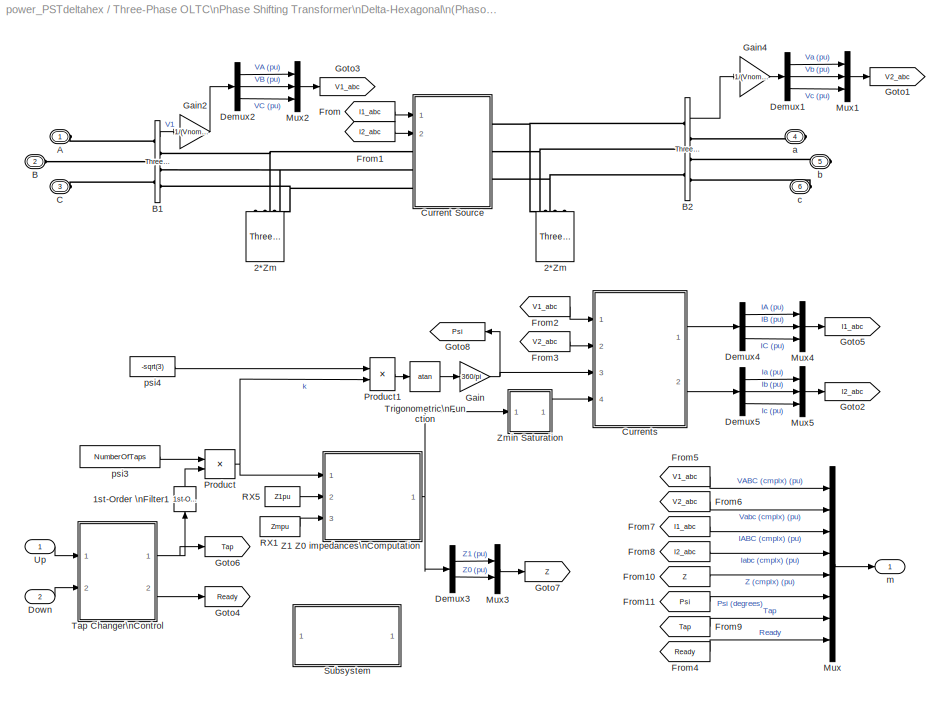
BLOCK [SubSystem] Three-Phase OLTC\nPhase Shifting Transformer\nDelta-Hexagonal\n(Phasor Type)
  MaskCallbackString = ||||||
  MaskDescription = This model implements a phasor model of a phase shifting transformer (PST) using the delta-hexagonal connexion. Each phase consists of two coupled windings: one fixed winding and one tapped winding. Two OLTCs are used to vary phase shift from -60 degrees to + 60 degrees  \nby moving the transformer input connections (ABC) and output connections (abc) symmetrically with respect to center of the tap...<+503ch>
  MaskEnableString = on,on,on,on,on,on,on
  MaskIconFrame = on
  MaskIconOpaque = on
  MaskIconRotate = none
  MaskIconUnits = autoscale
  MaskInitialization = if abs(InitialTap)>NumberOfTaps\n   h=errordlg(sprintf('The initial tap number must be an integer comprised between % d and %d',-NumberOfTaps,NumberOfTaps),'Parameter error');\n   uiwait(h);\nend\nVnom=NominalParameters(1);\nPnom=NominalParameters(2);\nFnom=NominalParameters(3);\nw=2*pi*Fnom;\nIbase=Pnom/Vnom/sqrt(3)*sqrt(2);\n\nTapMinMax=[-NumberOfTaps NumberOfTaps];\n\nj=sqrt(-1);\na=exp(j*2*pi/...<+840ch>
  MaskPromptString = Nominal parameters [Vnom(Vrms Ph Ph) Pnom(VA)  Fnom(Hz)];|Resistance and leakage reactance at max. tap [R(pu)  X(pu)]|Magnetization branch [Rm(pu)  Xm(pu)]|Number of taps per half tapped winding|Initial tap|Tap selection time (s) (typical 3-10 s)|Initial pos. seq. of output currents [Mag(pu)  Phase(deg)]
  MaskStyleString = edit,edit,edit,edit,edit,edit,edit
  MaskTabNameString = ,,,,,,
  MaskToolTipString = on,on,on,on,on,on,on
  MaskTunableValueString = on,on,on,on,on,on,on
  MaskType = Phase Shifting Transformer; Delta-Hexagonal Connexion (phasor)
  MaskValueString = [120e3  300e6  60]|[0.15/30  0.15]|[500 500]|10|0|2.9|[ 0  0]
  MaskVarAliasString = ,,,,,,
  MaskVariables = NominalParameters=@1;RXpu=@2;RXm=@3;NumberOfTaps=@4;InitialTap=@5;TapSelectionTime=@6;Iout_init=@7;
  MaskVisibilityString = on,on,on,on,on,on,on
  MinAlgLoopOccurrences = off
  Ports = [2, 1, 0, 0, 0, 3, 3]
  RTWSystemCode = Auto
  TreatAsAtomicUnit = off
BLOCK [SubSystem] Three-Phase OLTC\nPhase Shifting Transformer\nDelta-Hexagonal\n(Phasor Type)/ Currents
  MaskIconFrame = on
  MaskIconOpaque = on
  MaskIconRotate = none
  MaskIconUnits = autoscale
  MinAlgLoopOccurrences = off
  Ports = [4, 2]
  RTWSystemCode = Auto
  TreatAsAtomicUnit = off
BLOCK [Gain] Three-Phase OLTC\nPhase Shifting Transformer\nDelta-Hexagonal\n(Phasor Type)/ Currents/120_to_abc
  Gain = [1 1 1 ; a^2 a  1 ; a  a^2 1]
  Multiplication = Matrix(K*u)
BLOCK [Gain] Three-Phase OLTC\nPhase Shifting Transformer\nDelta-Hexagonal\n(Phasor Type)/ Currents/120_to_abc 
  Gain = [1 1 1 ; a^2 a  1 ; a  a^2 1]
  Multiplication = Matrix(K*u)
BLOCK [ComplexToRealImag] Three-Phase OLTC\nPhase Shifting Transformer\nDelta-Hexagonal\n(Phasor Type)/ Currents/Complex to\nReal-Imag
  Output = Real and imag
  Ports = [1, 2]
BLOCK [ComplexToRealImag] Three-Phase OLTC\nPhase Shifting Transformer\nDelta-Hexagonal\n(Phasor Type)/ Currents/Complex to\nReal-Imag1
  Output = Real and imag
  Ports = [1, 2]
BLOCK [Constant] Three-Phase OLTC\nPhase Shifting Transformer\nDelta-Hexagonal\n(Phasor Type)/ Currents/Constant1
  Value = 0
BLOCK [Demux] Three-Phase OLTC\nPhase Shifting Transformer\nDelta-Hexagonal\n(Phasor Type)/ Currents/Demux
  Outputs = 2
  Ports = [1, 2]
BLOCK [Gain] Three-Phase OLTC\nPhase Shifting Transformer\nDelta-Hexagonal\n(Phasor Type)/ Currents/Gain1
  Gain = -1
BLOCK [Gain] Three-Phase OLTC\nPhase Shifting Transformer\nDelta-Hexagonal\n(Phasor Type)/ Currents/Gain2
  Gain = j*pi/180
BLOCK [Outport] Three-Phase OLTC\nPhase Shifting Transformer\nDelta-Hexagonal\n(Phasor Type)/ Currents/I1_abc (pu)
  BusOutputAsStruct = off
  IconDisplay = Port number
BLOCK [Outport] Three-Phase OLTC\nPhase Shifting Transformer\nDelta-Hexagonal\n(Phasor Type)/ Currents/I2_abc (pu) 
  BusOutputAsStruct = off
  IconDisplay = Port number
  Port = 2
BLOCK [Math] Three-Phase OLTC\nPhase Shifting Transformer\nDelta-Hexagonal\n(Phasor Type)/ Currents/Math\nFunction
  Ports = [1, 1]
BLOCK [Math] Three-Phase OLTC\nPhase Shifting Transformer\nDelta-Hexagonal\n(Phasor Type)/ Currents/Math\nFunction1
  Operator = reciprocal
  Ports = [1, 1]
BLOCK [Mux] Three-Phase OLTC\nPhase Shifting Transformer\nDelta-Hexagonal\n(Phasor Type)/ Currents/Mux
  DisplayOption = bar
  Inputs = 2
  Ports = [2, 1]
BLOCK [Mux] Three-Phase OLTC\nPhase Shifting Transformer\nDelta-Hexagonal\n(Phasor Type)/ Currents/Mux1
  DisplayOption = bar
  Inputs = 3
  Ports = [3, 1]
BLOCK [Mux] Three-Phase OLTC\nPhase Shifting Transformer\nDelta-Hexagonal\n(Phasor Type)/ Currents/Mux2
  DisplayOption = bar
  Inputs = 2
  Ports = [2, 1]
BLOCK [Product] Three-Phase OLTC\nPhase Shifting Transformer\nDelta-Hexagonal\n(Phasor Type)/ Currents/Product
  InputSameDT = off
  Ports = [2, 1]
  RndMeth = Floor
BLOCK [Product] Three-Phase OLTC\nPhase Shifting Transformer\nDelta-Hexagonal\n(Phasor Type)/ Currents/Product5
  InputSameDT = off
  Ports = [2, 1]
  RndMeth = Floor
BLOCK [Inport] Three-Phase OLTC\nPhase Shifting Transformer\nDelta-Hexagonal\n(Phasor Type)/ Currents/Psi (deg)
  IconDisplay = Port number
  LatchInput = off
  Port = 3
BLOCK [Inport] Three-Phase OLTC\nPhase Shifting Transformer\nDelta-Hexagonal\n(Phasor Type)/ Currents/V1_abc (pu)
  IconDisplay = Port number
  LatchInput = off
  Port = 1
BLOCK [Inport] Three-Phase OLTC\nPhase Shifting Transformer\nDelta-Hexagonal\n(Phasor Type)/ Currents/V2_abc (pu)
  IconDisplay = Port number
  LatchInput = off
  Port = 2
BLOCK [Inport] Three-Phase OLTC\nPhase Shifting Transformer\nDelta-Hexagonal\n(Phasor Type)/ Currents/Z10 (pu)
  IconDisplay = Port number
  LatchInput = off
  Port = 4
BLOCK [Gain] Three-Phase OLTC\nPhase Shifting Transformer\nDelta-Hexagonal\n(Phasor Type)/ Currents/abc_to_120
  Gain = [1 a a^2;1 a^2 a; 1  1  1 ]/3
  Multiplication = Matrix(K*u)
BLOCK [Gain] Three-Phase OLTC\nPhase Shifting Transformer\nDelta-Hexagonal\n(Phasor Type)/ Currents/abc_to_120 
  Gain = [1 a a^2;1 a^2 a; 1  1  1]/3
  Multiplication = Matrix(K*u)
BLOCK [SubSystem] Three-Phase OLTC\nPhase Shifting Transformer\nDelta-Hexagonal\n(Phasor Type)/ Currents/dq0 model\nof 3-ph RL branch
  MinAlgLoopOccurrences = off
  Ports = [4, 1]
  RTWSystemCode = Auto
  TreatAsAtomicUnit = off
BLOCK [ComplexToRealImag] Three-Phase OLTC\nPhase Shifting Transformer\nDelta-Hexagonal\n(Phasor Type)/ Currents/dq0 model\nof 3-ph RL branch/Complex to\nReal-Imag2
  Output = Real and imag
  Ports = [1, 2]
BLOCK [ComplexToRealImag] Three-Phase OLTC\nPhase Shifting Transformer\nDelta-Hexagonal\n(Phasor Type)/ Currents/dq0 model\nof 3-ph RL branch/Complex to\nReal-Imag3
  Output = Real and imag
  Ports = [1, 2]
BLOCK [Demux] Three-Phase OLTC\nPhase Shifting Transformer\nDelta-Hexagonal\n(Phasor Type)/ Currents/dq0 model\nof 3-ph RL branch/Demux1
  Outputs = 2
  Ports = [1, 2]
BLOCK [Demux] Three-Phase OLTC\nPhase Shifting Transformer\nDelta-Hexagonal\n(Phasor Type)/ Currents/dq0 model\nof 3-ph RL branch/Demux2
  Outputs = 2
  Ports = [1, 2]
BLOCK [Demux] Three-Phase OLTC\nPhase Shifting Transformer\nDelta-Hexagonal\n(Phasor Type)/ Currents/dq0 model\nof 3-ph RL branch/Demux3
  Outputs = 2
  Ports = [1, 2]
BLOCK [Outport] Three-Phase OLTC\nPhase Shifting Transformer\nDelta-Hexagonal\n(Phasor Type)/ Currents/dq0 model\nof 3-ph RL branch/I2_120 (pu)
  BusOutputAsStruct = off
  IconDisplay = Port number
BLOCK [Mux] Three-Phase OLTC\nPhase Shifting Transformer\nDelta-Hexagonal\n(Phasor Type)/ Currents/dq0 model\nof 3-ph RL branch/Mux
  DisplayOption = bar
  Ports = [4, 1]
BLOCK [Mux] Three-Phase OLTC\nPhase Shifting Transformer\nDelta-Hexagonal\n(Phasor Type)/ Currents/dq0 model\nof 3-ph RL branch/Mux1
  DisplayOption = bar
  Inputs = 3
  Ports = [3, 1]
BLOCK [SubSystem] Three-Phase OLTC\nPhase Shifting Transformer\nDelta-Hexagonal\n(Phasor Type)/ Currents/dq0 model\nof 3-ph RL branch/Negative-sequence\ndq0 model\nof a 3-phase\nseries R-L branch
  MinAlgLoopOccurrences = off
  Ports = [3, 1]
  RTWSystemCode = Auto
  TreatAsAtomicUnit = off
BLOCK [Demux] Three-Phase OLTC\nPhase Shifting Transformer\nDelta-Hexagonal\n(Phasor Type)/ Currents/dq0 model\nof 3-ph RL branch/Negative-sequence\ndq0 model\nof a 3-phase\nseries R-L branch/Demux3
  Outputs = 2
  Ports = [1, 2]
BLOCK [Integrator] Three-Phase OLTC\nPhase Shifting Transformer\nDelta-Hexagonal\n(Phasor Type)/ Currents/dq0 model\nof 3-ph RL branch/Negative-sequence\ndq0 model\nof a 3-phase\nseries R-L branch/Integrator
  Ports = [1, 1]
BLOCK [Product] Three-Phase OLTC\nPhase Shifting Transformer\nDelta-Hexagonal\n(Phasor Type)/ Currents/dq0 model\nof 3-ph RL branch/Negative-sequence\ndq0 model\nof a 3-phase\nseries R-L branch/Product
  InputSameDT = off
  Ports = [2, 1]
  RndMeth = Floor
BLOCK [Product] Three-Phase OLTC\nPhase Shifting Transformer\nDelta-Hexagonal\n(Phasor Type)/ Currents/dq0 model\nof 3-ph RL branch/Negative-sequence\ndq0 model\nof a 3-phase\nseries R-L branch/Product1
  InputSameDT = off
  Ports = [2, 1]
  RndMeth = Floor
BLOCK [Product] Three-Phase OLTC\nPhase Shifting Transformer\nDelta-Hexagonal\n(Phasor Type)/ Currents/dq0 model\nof 3-ph RL branch/Negative-sequence\ndq0 model\nof a 3-phase\nseries R-L branch/Product2
  InputSameDT = off
  Inputs = */
  Ports = [2, 1]
  RndMeth = Floor
BLOCK [Inport] Three-Phase OLTC\nPhase Shifting Transformer\nDelta-Hexagonal\n(Phasor Type)/ Currents/dq0 model\nof 3-ph RL branch/Negative-sequence\ndq0 model\nof a 3-phase\nseries R-L branch/R_L
  IconDisplay = Port number
  LatchInput = off
  Port = 3
BLOCK [Gain] Three-Phase OLTC\nPhase Shifting Transformer\nDelta-Hexagonal\n(Phasor Type)/ Currents/dq0 model\nof 3-ph RL branch/Negative-sequence\ndq0 model\nof a 3-phase\nseries R-L branch/R_choke2
  Gain = [1 -1]
BLOCK [Gain] Three-Phase OLTC\nPhase Shifting Transformer\nDelta-Hexagonal\n(Phasor Type)/ Currents/dq0 model\nof 3-ph RL branch/Negative-sequence\ndq0 model\nof a 3-phase\nseries R-L branch/R_choke3
  Gain = w
BLOCK [Selector] Three-Phase OLTC\nPhase Shifting Transformer\nDelta-Hexagonal\n(Phasor Type)/ Currents/dq0 model\nof 3-ph RL branch/Negative-sequence\ndq0 model\nof a 3-phase\nseries R-L branch/Selector
  Elements = [2 1]
  InputPortWidth = 2
  Ports = [1, 1]
BLOCK [Sum] Three-Phase OLTC\nPhase Shifting Transformer\nDelta-Hexagonal\n(Phasor Type)/ Currents/dq0 model\nof 3-ph RL branch/Negative-sequence\ndq0 model\nof a 3-phase\nseries R-L branch/Sum
  InputSameDT = off
  Inputs = +--+
  OutDataTypeMode = Inherit via internal rule
  Ports = [4, 1]
BLOCK [Inport] Three-Phase OLTC\nPhase Shifting Transformer\nDelta-Hexagonal\n(Phasor Type)/ Currents/dq0 model\nof 3-ph RL branch/Negative-sequence\ndq0 model\nof a 3-phase\nseries R-L branch/Vdq1
  IconDisplay = Port number
  LatchInput = off
  Port = 1
BLOCK [Inport] Three-Phase OLTC\nPhase Shifting Transformer\nDelta-Hexagonal\n(Phasor Type)/ Currents/dq0 model\nof 3-ph RL branch/Negative-sequence\ndq0 model\nof a 3-phase\nseries R-L branch/Vdq2
  IconDisplay = Port number
  LatchInput = off
  Port = 2
BLOCK [Outport] Three-Phase OLTC\nPhase Shifting Transformer\nDelta-Hexagonal\n(Phasor Type)/ Currents/dq0 model\nof 3-ph RL branch/Negative-sequence\ndq0 model\nof a 3-phase\nseries R-L branch/idIq
  BusOutputAsStruct = off
  IconDisplay = Port number
BLOCK [SubSystem] Three-Phase OLTC\nPhase Shifting Transformer\nDelta-Hexagonal\n(Phasor Type)/ Currents/dq0 model\nof 3-ph RL branch/Positive-sequence\ndq0 model\nof a 3-phase\nseries R-L branch
  MinAlgLoopOccurrences = off
  Ports = [3, 1]
  RTWSystemCode = Auto
  TreatAsAtomicUnit = off
BLOCK [Demux] Three-Phase OLTC\nPhase Shifting Transformer\nDelta-Hexagonal\n(Phasor Type)/ Currents/dq0 model\nof 3-ph RL branch/Positive-sequence\ndq0 model\nof a 3-phase\nseries R-L branch/Demux3
  Outputs = 2
  Ports = [1, 2]
BLOCK [Integrator] Three-Phase OLTC\nPhase Shifting Transformer\nDelta-Hexagonal\n(Phasor Type)/ Currents/dq0 model\nof 3-ph RL branch/Positive-sequence\ndq0 model\nof a 3-phase\nseries R-L branch/Integrator
  InitialCondition = [I21_init_real   I21_init_imag]
  Ports = [1, 1]
BLOCK [Product] Three-Phase OLTC\nPhase Shifting Transformer\nDelta-Hexagonal\n(Phasor Type)/ Currents/dq0 model\nof 3-ph RL branch/Positive-sequence\ndq0 model\nof a 3-phase\nseries R-L branch/Product
  InputSameDT = off
  Ports = [2, 1]
  RndMeth = Floor
BLOCK [Product] Three-Phase OLTC\nPhase Shifting Transformer\nDelta-Hexagonal\n(Phasor Type)/ Currents/dq0 model\nof 3-ph RL branch/Positive-sequence\ndq0 model\nof a 3-phase\nseries R-L branch/Product1
  InputSameDT = off
  Ports = [2, 1]
  RndMeth = Floor
BLOCK [Product] Three-Phase OLTC\nPhase Shifting Transformer\nDelta-Hexagonal\n(Phasor Type)/ Currents/dq0 model\nof 3-ph RL branch/Positive-sequence\ndq0 model\nof a 3-phase\nseries R-L branch/Product2
  InputSameDT = off
  Inputs = */
  Ports = [2, 1]
  RndMeth = Floor
BLOCK [Inport] Three-Phase OLTC\nPhase Shifting Transformer\nDelta-Hexagonal\n(Phasor Type)/ Currents/dq0 model\nof 3-ph RL branch/Positive-sequence\ndq0 model\nof a 3-phase\nseries R-L branch/R_L
  IconDisplay = Port number
  LatchInput = off
  Port = 3
BLOCK [Gain] Three-Phase OLTC\nPhase Shifting Transformer\nDelta-Hexagonal\n(Phasor Type)/ Currents/dq0 model\nof 3-ph RL branch/Positive-sequence\ndq0 model\nof a 3-phase\nseries R-L branch/R_choke2
  Gain = [1 -1]
BLOCK [Gain] Three-Phase OLTC\nPhase Shifting Transformer\nDelta-Hexagonal\n(Phasor Type)/ Currents/dq0 model\nof 3-ph RL branch/Positive-sequence\ndq0 model\nof a 3-phase\nseries R-L branch/R_choke3
  Gain = w
BLOCK [Selector] Three-Phase OLTC\nPhase Shifting Transformer\nDelta-Hexagonal\n(Phasor Type)/ Currents/dq0 model\nof 3-ph RL branch/Positive-sequence\ndq0 model\nof a 3-phase\nseries R-L branch/Selector
  Elements = [2 1]
  InputPortWidth = 2
  Ports = [1, 1]
BLOCK [Sum] Three-Phase OLTC\nPhase Shifting Transformer\nDelta-Hexagonal\n(Phasor Type)/ Currents/dq0 model\nof 3-ph RL branch/Positive-sequence\ndq0 model\nof a 3-phase\nseries R-L branch/Sum
  InputSameDT = off
  Inputs = +--+
  OutDataTypeMode = Inherit via internal rule
  Ports = [4, 1]
BLOCK [Inport] Three-Phase OLTC\nPhase Shifting Transformer\nDelta-Hexagonal\n(Phasor Type)/ Currents/dq0 model\nof 3-ph RL branch/Positive-sequence\ndq0 model\nof a 3-phase\nseries R-L branch/Vdq1
  IconDisplay = Port number
  LatchInput = off
  Port = 1
BLOCK [Inport] Three-Phase OLTC\nPhase Shifting Transformer\nDelta-Hexagonal\n(Phasor Type)/ Currents/dq0 model\nof 3-ph RL branch/Positive-sequence\ndq0 model\nof a 3-phase\nseries R-L branch/Vdq2
  IconDisplay = Port number
  LatchInput = off
  Port = 2
BLOCK [Outport] Three-Phase OLTC\nPhase Shifting Transformer\nDelta-Hexagonal\n(Phasor Type)/ Currents/dq0 model\nof 3-ph RL branch/Positive-sequence\ndq0 model\nof a 3-phase\nseries R-L branch/idIq
  BusOutputAsStruct = off
  IconDisplay = Port number
BLOCK [Inport] Three-Phase OLTC\nPhase Shifting Transformer\nDelta-Hexagonal\n(Phasor Type)/ Currents/dq0 model\nof 3-ph RL branch/RL_0
  IconDisplay = Port number
  LatchInput = off
  Port = 4
BLOCK [Inport] Three-Phase OLTC\nPhase Shifting Transformer\nDelta-Hexagonal\n(Phasor Type)/ Currents/dq0 model\nof 3-ph RL branch/RL_1
  IconDisplay = Port number
  LatchInput = off
  Port = 3
BLOCK [RealImagToComplex] Three-Phase OLTC\nPhase Shifting Transformer\nDelta-Hexagonal\n(Phasor Type)/ Currents/dq0 model\nof 3-ph RL branch/Real-Imag to\nComplex1
  Input = Real and imag
  Ports = [2, 1]
BLOCK [RealImagToComplex] Three-Phase OLTC\nPhase Shifting Transformer\nDelta-Hexagonal\n(Phasor Type)/ Currents/dq0 model\nof 3-ph RL branch/Real-Imag to\nComplex2
  Input = Real and imag
  Ports = [2, 1]
BLOCK [RealImagToComplex] Three-Phase OLTC\nPhase Shifting Transformer\nDelta-Hexagonal\n(Phasor Type)/ Currents/dq0 model\nof 3-ph RL branch/Real-Imag to\nComplex3
  Input = Real and imag
  Ports = [2, 1]
BLOCK [Selector] Three-Phase OLTC\nPhase Shifting Transformer\nDelta-Hexagonal\n(Phasor Type)/ Currents/dq0 model\nof 3-ph RL branch/Selector
  Elements = [1 4]
  InputPortWidth = 12
  Ports = [1, 1]
BLOCK [Selector] Three-Phase OLTC\nPhase Shifting Transformer\nDelta-Hexagonal\n(Phasor Type)/ Currents/dq0 model\nof 3-ph RL branch/Selector1
  Elements = [7 10]
  InputPortWidth = 12
  Ports = [1, 1]
BLOCK [Selector] Three-Phase OLTC\nPhase Shifting Transformer\nDelta-Hexagonal\n(Phasor Type)/ Currents/dq0 model\nof 3-ph RL branch/Selector2
  Elements = [1 4]+1
  InputPortWidth = 12
  Ports = [1, 1]
BLOCK [Selector] Three-Phase OLTC\nPhase Shifting Transformer\nDelta-Hexagonal\n(Phasor Type)/ Currents/dq0 model\nof 3-ph RL branch/Selector3
  Elements = [7 10]+1
  InputPortWidth = 12
  Ports = [1, 1]
BLOCK [Selector] Three-Phase OLTC\nPhase Shifting Transformer\nDelta-Hexagonal\n(Phasor Type)/ Currents/dq0 model\nof 3-ph RL branch/Selector4
  Elements = [1 4]+2
  InputPortWidth = 12
  Ports = [1, 1]
BLOCK [Selector] Three-Phase OLTC\nPhase Shifting Transformer\nDelta-Hexagonal\n(Phasor Type)/ Currents/dq0 model\nof 3-ph RL branch/Selector5
  Elements = [7 10]+2
  InputPortWidth = 12
  Ports = [1, 1]
BLOCK [Inport] Three-Phase OLTC\nPhase Shifting Transformer\nDelta-Hexagonal\n(Phasor Type)/ Currents/dq0 model\nof 3-ph RL branch/V1_120(pu)
  IconDisplay = Port number
  LatchInput = off
  Port = 1
BLOCK [Inport] Three-Phase OLTC\nPhase Shifting Transformer\nDelta-Hexagonal\n(Phasor Type)/ Currents/dq0 model\nof 3-ph RL branch/V2_120(pu)
  IconDisplay = Port number
  LatchInput = off
  Port = 2
BLOCK [SubSystem] Three-Phase OLTC\nPhase Shifting Transformer\nDelta-Hexagonal\n(Phasor Type)/ Currents/dq0 model\nof 3-ph RL branch/Zero-sequence\ndq0 model\nof a 3-phase\nseries R-L branch
  MinAlgLoopOccurrences = off
  Ports = [3, 1]
  RTWSystemCode = Auto
  TreatAsAtomicUnit = off
BLOCK [Demux] Three-Phase OLTC\nPhase Shifting Transformer\nDelta-Hexagonal\n(Phasor Type)/ Currents/dq0 model\nof 3-ph RL branch/Zero-sequence\ndq0 model\nof a 3-phase\nseries R-L branch/Demux3
  Outputs = 2
  Ports = [1, 2]
BLOCK [Integrator] Three-Phase OLTC\nPhase Shifting Transformer\nDelta-Hexagonal\n(Phasor Type)/ Currents/dq0 model\nof 3-ph RL branch/Zero-sequence\ndq0 model\nof a 3-phase\nseries R-L branch/Integrator
  Ports = [1, 1]
BLOCK [Product] Three-Phase OLTC\nPhase Shifting Transformer\nDelta-Hexagonal\n(Phasor Type)/ Currents/dq0 model\nof 3-ph RL branch/Zero-sequence\ndq0 model\nof a 3-phase\nseries R-L branch/Product
  InputSameDT = off
  Ports = [2, 1]
  RndMeth = Floor
BLOCK [Product] Three-Phase OLTC\nPhase Shifting Transformer\nDelta-Hexagonal\n(Phasor Type)/ Currents/dq0 model\nof 3-ph RL branch/Zero-sequence\ndq0 model\nof a 3-phase\nseries R-L branch/Product1
  InputSameDT = off
  Ports = [2, 1]
  RndMeth = Floor
BLOCK [Product] Three-Phase OLTC\nPhase Shifting Transformer\nDelta-Hexagonal\n(Phasor Type)/ Currents/dq0 model\nof 3-ph RL branch/Zero-sequence\ndq0 model\nof a 3-phase\nseries R-L branch/Product2
  InputSameDT = off
  Inputs = */
  Ports = [2, 1]
  RndMeth = Floor
BLOCK [Inport] Three-Phase OLTC\nPhase Shifting Transformer\nDelta-Hexagonal\n(Phasor Type)/ Currents/dq0 model\nof 3-ph RL branch/Zero-sequence\ndq0 model\nof a 3-phase\nseries R-L branch/R_L
  IconDisplay = Port number
  LatchInput = off
  Port = 3
BLOCK [Gain] Three-Phase OLTC\nPhase Shifting Transformer\nDelta-Hexagonal\n(Phasor Type)/ Currents/dq0 model\nof 3-ph RL branch/Zero-sequence\ndq0 model\nof a 3-phase\nseries R-L branch/R_choke2
  Gain = [1 -1]
BLOCK [Gain] Three-Phase OLTC\nPhase Shifting Transformer\nDelta-Hexagonal\n(Phasor Type)/ Currents/dq0 model\nof 3-ph RL branch/Zero-sequence\ndq0 model\nof a 3-phase\nseries R-L branch/R_choke3
  Gain = w
BLOCK [Selector] Three-Phase OLTC\nPhase Shifting Transformer\nDelta-Hexagonal\n(Phasor Type)/ Currents/dq0 model\nof 3-ph RL branch/Zero-sequence\ndq0 model\nof a 3-phase\nseries R-L branch/Selector
  Elements = [2 1]
  InputPortWidth = 2
  Ports = [1, 1]
BLOCK [Sum] Three-Phase OLTC\nPhase Shifting Transformer\nDelta-Hexagonal\n(Phasor Type)/ Currents/dq0 model\nof 3-ph RL branch/Zero-sequence\ndq0 model\nof a 3-phase\nseries R-L branch/Sum
  InputSameDT = off
  Inputs = +--+
  OutDataTypeMode = Inherit via internal rule
  Ports = [4, 1]
BLOCK [Inport] Three-Phase OLTC\nPhase Shifting Transformer\nDelta-Hexagonal\n(Phasor Type)/ Currents/dq0 model\nof 3-ph RL branch/Zero-sequence\ndq0 model\nof a 3-phase\nseries R-L branch/Vdq1
  IconDisplay = Port number
  LatchInput = off
  Port = 1
BLOCK [Inport] Three-Phase OLTC\nPhase Shifting Transformer\nDelta-Hexagonal\n(Phasor Type)/ Currents/dq0 model\nof 3-ph RL branch/Zero-sequence\ndq0 model\nof a 3-phase\nseries R-L branch/Vdq2
  IconDisplay = Port number
  LatchInput = off
  Port = 2
BLOCK [Outport] Three-Phase OLTC\nPhase Shifting Transformer\nDelta-Hexagonal\n(Phasor Type)/ Currents/dq0 model\nof 3-ph RL branch/Zero-sequence\ndq0 model\nof a 3-phase\nseries R-L branch/idIq
  BusOutputAsStruct = off
  IconDisplay = Port number
BLOCK [Reference] Three-Phase OLTC\nPhase Shifting Transformer\nDelta-Hexagonal\n(Phasor Type)/1st-Order \nFilter1  REF=powerlib_extras/Control \nBlocks/1st-Order \nFilter
  FilterType = Lowpass
  Initialize = on
  PlotResponse = off
  Ports = [1, 1]
  ShowPortLabels = on
  SourceBlock = powerlib_extras/Control \nBlocks/1st-Order \nFilter
  SourceType = First-Order Filter
  Tc = 1/Fnom
  Vac_Init = [0 0  Fnom]
  Vdc_Init = InitialTap
  param1 = [1 500 1]
BLOCK [Reference] Three-Phase OLTC\nPhase Shifting Transformer\nDelta-Hexagonal\n(Phasor Type)/2*Zm  REF=powerlib/Elements/Three-Phase\nParallel RLC Load
  ActivePower = Pnom/RXm(1)/2
  AttributesFormatString = \\n
  CapacitivePower = 0
  Configuration = Y (grounded)
  InductivePower = Pnom/RXm(2)/2
  LConnTagsString = A|B|C
  LeftPortType = p1
  Measurements = None
  NominalFrequency = 60
  NominalVoltage = Vnom
  PhysicalDomain = powersysdomain
  Ports = [0, 0, 0, 0, 0, 3]
  RightPortType = p1
  SourceBlock = powerlib/Elements/Three-Phase\nParallel RLC Load
  SourceType = Three-Phase Parallel RLC Load
  SubClassName = unknown
BLOCK [Reference] Three-Phase OLTC\nPhase Shifting Transformer\nDelta-Hexagonal\n(Phasor Type)/2*Zm   REF=powerlib/Elements/Three-Phase\nParallel RLC Load
  ActivePower = Pnom/RXm(1)/2
  AttributesFormatString = \\n
  CapacitivePower = 0
  Configuration = Y (grounded)
  InductivePower = Pnom/RXm(2)/2
  LConnTagsString = A|B|C
  LeftPortType = p1
  Measurements = None
  NominalFrequency = 60
  NominalVoltage = Vnom
  PhysicalDomain = powersysdomain
  Ports = [0, 0, 0, 0, 0, 3]
  RightPortType = p1
  SourceBlock = powerlib/Elements/Three-Phase\nParallel RLC Load
  SourceType = Three-Phase Parallel RLC Load
  SubClassName = unknown
BLOCK [PMIOPort] Three-Phase OLTC\nPhase Shifting Transformer\nDelta-Hexagonal\n(Phasor Type)/A
  Port = 1
  Side = Left
  Tag = PMCPort
BLOCK [PMIOPort] Three-Phase OLTC\nPhase Shifting Transformer\nDelta-Hexagonal\n(Phasor Type)/B
  Port = 2
  Side = Left
  Tag = PMCPort
BLOCK [Reference] Three-Phase OLTC\nPhase Shifting Transformer\nDelta-Hexagonal\n(Phasor Type)/B1  REF=powerlib/Measurements/Three-Phase\nV-I Measurement
  CurrentMeasurement = no
  Ipu = off
  LabelI = Iabc_B21
  LabelV = Vabc_B21
  OutputType = Complex
  PSBequivalent = 0
  Pbase = 10e6
  PhasorSimulation = on
  Ports = [0, 1, 0, 0, 0, 3, 3]
  SetLabelI = off
  SetLabelV = off
  ShowPortLabels = on
  SourceBlock = powerlib/Measurements/Three-Phase\nV-I Measurement
  SourceType = Three-Phase VI Measurement
  Vbase = 25e3
  VoltageMeasurement = phase-to-ground
  Vpu = off
BLOCK [Reference] Three-Phase OLTC\nPhase Shifting Transformer\nDelta-Hexagonal\n(Phasor Type)/B2  REF=powerlib/Measurements/Three-Phase\nV-I Measurement
  CurrentMeasurement = no
  Ipu = off
  LabelI = Iabc_B21
  LabelV = Vabc_B21
  OutputType = Complex
  PSBequivalent = 0
  Pbase = 10e6
  PhasorSimulation = on
  Ports = [0, 1, 0, 0, 0, 3, 3]
  SetLabelI = off
  SetLabelV = off
  ShowPortLabels = on
  SourceBlock = powerlib/Measurements/Three-Phase\nV-I Measurement
  SourceType = Three-Phase VI Measurement
  Vbase = 25e3
  VoltageMeasurement = phase-to-ground
  Vpu = off
BLOCK [PMIOPort] Three-Phase OLTC\nPhase Shifting Transformer\nDelta-Hexagonal\n(Phasor Type)/C
  Port = 3
  Side = Left
  Tag = PMCPort
BLOCK [SubSystem] Three-Phase OLTC\nPhase Shifting Transformer\nDelta-Hexagonal\n(Phasor Type)/Current Source
  MaskIconFrame = on
  MaskIconOpaque = on
  MaskIconRotate = none
  MaskIconUnits = autoscale
  MinAlgLoopOccurrences = off
  Ports = [2, 0, 0, 0, 0, 3, 3]
  RTWSystemCode = Auto
  TreatAsAtomicUnit = off
BLOCK [PMIOPort] Three-Phase OLTC\nPhase Shifting Transformer\nDelta-Hexagonal\n(Phasor Type)/Current Source/A
  Port = 1
  Side = Left
BLOCK [PMIOPort] Three-Phase OLTC\nPhase Shifting Transformer\nDelta-Hexagonal\n(Phasor Type)/Current Source/B
  Port = 3
  Side = Left
BLOCK [PMIOPort] Three-Phase OLTC\nPhase Shifting Transformer\nDelta-Hexagonal\n(Phasor Type)/Current Source/C
  Port = 6
  Side = Left
BLOCK [Demux] Three-Phase OLTC\nPhase Shifting Transformer\nDelta-Hexagonal\n(Phasor Type)/Current Source/Demux
  Outputs = 3
  Ports = [1, 3]
BLOCK [Demux] Three-Phase OLTC\nPhase Shifting Transformer\nDelta-Hexagonal\n(Phasor Type)/Current Source/Demux1
  Outputs = 3
  Ports = [1, 3]
BLOCK [Gain] Three-Phase OLTC\nPhase Shifting Transformer\nDelta-Hexagonal\n(Phasor Type)/Current Source/Gain2
  Gain = Ibase
BLOCK [Gain] Three-Phase OLTC\nPhase Shifting Transformer\nDelta-Hexagonal\n(Phasor Type)/Current Source/Gain4
  Gain = Ibase
BLOCK [Reference] Three-Phase OLTC\nPhase Shifting Transformer\nDelta-Hexagonal\n(Phasor Type)/Current Source/Ground1  REF=powerlib/Elements/Ground
  AttributesFormatString = \\n
  LConnTagsString = a
  LeftPortType = p1
  PhysicalDomain = powersysdomain
  Ports = [0, 0, 0, 0, 0, 1]
  RightPortType = p1
  SourceBlock = powerlib/Elements/Ground
  SourceType = Ground
  SubClassName = unknown
BLOCK [Reference] Three-Phase OLTC\nPhase Shifting Transformer\nDelta-Hexagonal\n(Phasor Type)/Current Source/Ground2  REF=powerlib/Elements/Ground
  AttributesFormatString = \\n
  LConnTagsString = a
  LeftPortType = p1
  PhysicalDomain = powersysdomain
  Ports = [0, 0, 0, 0, 0, 1]
  RightPortType = p1
  SourceBlock = powerlib/Elements/Ground
  SourceType = Ground
  SubClassName = unknown
BLOCK [Inport] Three-Phase OLTC\nPhase Shifting Transformer\nDelta-Hexagonal\n(Phasor Type)/Current Source/I1_abc
  IconDisplay = Port number
  LatchInput = off
  Port = 1
BLOCK [Inport] Three-Phase OLTC\nPhase Shifting Transformer\nDelta-Hexagonal\n(Phasor Type)/Current Source/I2_abc
  IconDisplay = Port number
  LatchInput = off
  Port = 2
BLOCK [Reference] Three-Phase OLTC\nPhase Shifting Transformer\nDelta-Hexagonal\n(Phasor Type)/Current Source/IA  REF=powerlib/Electrical\nSources/Controlled Current Source
  Amplitude = I1A_init_mag
  Frequency = Fnom
  Initialize = on
  Measurements = None
  Phase = I1A_init_pha
  Ports = [1, 0, 0, 0, 0, 1, 1]
  ShowPortLabels = on
  SourceBlock = powerlib/Electrical\nSources/Controlled Current Source
  SourceType = AC
BLOCK [Reference] Three-Phase OLTC\nPhase Shifting Transformer\nDelta-Hexagonal\n(Phasor Type)/Current Source/IB  REF=powerlib/Electrical\nSources/Controlled Current Source
  Amplitude = I1B_init_mag
  Frequency = Fnom
  Initialize = on
  Measurements = None
  Phase = I1B_init_pha
  Ports = [1, 0, 0, 0, 0, 1, 1]
  ShowPortLabels = on
  SourceBlock = powerlib/Electrical\nSources/Controlled Current Source
  SourceType = AC
BLOCK [Reference] Three-Phase OLTC\nPhase Shifting Transformer\nDelta-Hexagonal\n(Phasor Type)/Current Source/IC  REF=powerlib/Electrical\nSources/Controlled Current Source
  Amplitude = I1C_init_mag
  Frequency = Fnom
  Initialize = on
  Measurements = None
  Phase = I1C_init_pha
  Ports = [1, 0, 0, 0, 0, 1, 1]
  ShowPortLabels = on
  SourceBlock = powerlib/Electrical\nSources/Controlled Current Source
  SourceType = AC
BLOCK [Reference] Three-Phase OLTC\nPhase Shifting Transformer\nDelta-Hexagonal\n(Phasor Type)/Current Source/Ia  REF=powerlib/Electrical\nSources/Controlled Current Source
  Amplitude = I2A_init_mag
  Frequency = Fnom
  Initialize = on
  Measurements = None
  Phase = I2A_init_pha
  Ports = [1, 0, 0, 0, 0, 1, 1]
  ShowPortLabels = on
  SourceBlock = powerlib/Electrical\nSources/Controlled Current Source
  SourceType = AC
BLOCK [Reference] Three-Phase OLTC\nPhase Shifting Transformer\nDelta-Hexagonal\n(Phasor Type)/Current Source/Ib  REF=powerlib/Electrical\nSources/Controlled Current Source
  Amplitude = I2B_init_mag
  Frequency = Fnom
  Initialize = on
  Measurements = None
  Phase = I2B_init_pha
  Ports = [1, 0, 0, 0, 0, 1, 1]
  ShowPortLabels = on
  SourceBlock = powerlib/Electrical\nSources/Controlled Current Source
  SourceType = AC
BLOCK [Reference] Three-Phase OLTC\nPhase Shifting Transformer\nDelta-Hexagonal\n(Phasor Type)/Current Source/Ic  REF=powerlib/Electrical\nSources/Controlled Current Source
  Amplitude = I2C_init_mag
  Frequency = Fnom
  Initialize = on
  Measurements = None
  Phase = I2C_init_pha
  Ports = [1, 0, 0, 0, 0, 1, 1]
  ShowPortLabels = on
  SourceBlock = powerlib/Electrical\nSources/Controlled Current Source
  SourceType = AC
BLOCK [PMIOPort] Three-Phase OLTC\nPhase Shifting Transformer\nDelta-Hexagonal\n(Phasor Type)/Current Source/a
  Port = 2
  Side = Right
BLOCK [PMIOPort] Three-Phase OLTC\nPhase Shifting Transformer\nDelta-Hexagonal\n(Phasor Type)/Current Source/b
  Port = 4
  Side = Right
BLOCK [PMIOPort] Three-Phase OLTC\nPhase Shifting Transformer\nDelta-Hexagonal\n(Phasor Type)/Current Source/c
  Port = 5
  Side = Right
BLOCK [Demux] Three-Phase OLTC\nPhase Shifting Transformer\nDelta-Hexagonal\n(Phasor Type)/Demux1
  Outputs = 3
  Ports = [1, 3]
BLOCK [Demux] Three-Phase OLTC\nPhase Shifting Transformer\nDelta-Hexagonal\n(Phasor Type)/Demux2
  Outputs = 3
  Ports = [1, 3]
BLOCK [Demux] Three-Phase OLTC\nPhase Shifting Transformer\nDelta-Hexagonal\n(Phasor Type)/Demux3
  Outputs = 2
  Ports = [1, 2]
BLOCK [Demux] Three-Phase OLTC\nPhase Shifting Transformer\nDelta-Hexagonal\n(Phasor Type)/Demux4
  Outputs = 3
  Ports = [1, 3]
BLOCK [Demux] Three-Phase OLTC\nPhase Shifting Transformer\nDelta-Hexagonal\n(Phasor Type)/Demux5
  Outputs = 3
  Ports = [1, 3]
BLOCK [Inport] Three-Phase OLTC\nPhase Shifting Transformer\nDelta-Hexagonal\n(Phasor Type)/Down
  IconDisplay = Port number
  LatchInput = off
  Port = 2
BLOCK [From] Three-Phase OLTC\nPhase Shifting Transformer\nDelta-Hexagonal\n(Phasor Type)/From
  CloseFcn = tagdialog Close
  DialogController = Simulink.DDGSource
  GotoTag = I1_abc
BLOCK [From] Three-Phase OLTC\nPhase Shifting Transformer\nDelta-Hexagonal\n(Phasor Type)/From1
  CloseFcn = tagdialog Close
  DialogController = Simulink.DDGSource
  GotoTag = I2_abc
BLOCK [From] Three-Phase OLTC\nPhase Shifting Transformer\nDelta-Hexagonal\n(Phasor Type)/From10
  CloseFcn = tagdialog Close
  DialogController = Simulink.DDGSource
  GotoTag = Z
BLOCK [From] Three-Phase OLTC\nPhase Shifting Transformer\nDelta-Hexagonal\n(Phasor Type)/From11
  CloseFcn = tagdialog Close
  DialogController = Simulink.DDGSource
  GotoTag = Psi
BLOCK [From] Three-Phase OLTC\nPhase Shifting Transformer\nDelta-Hexagonal\n(Phasor Type)/From2
  CloseFcn = tagdialog Close
  DialogController = Simulink.DDGSource
  GotoTag = V1_abc
BLOCK [From] Three-Phase OLTC\nPhase Shifting Transformer\nDelta-Hexagonal\n(Phasor Type)/From3
  CloseFcn = tagdialog Close
  DialogController = Simulink.DDGSource
  GotoTag = V2_abc
BLOCK [From] Three-Phase OLTC\nPhase Shifting Transformer\nDelta-Hexagonal\n(Phasor Type)/From4
  CloseFcn = tagdialog Close
  DialogController = Simulink.DDGSource
  GotoTag = Ready
BLOCK [From] Three-Phase OLTC\nPhase Shifting Transformer\nDelta-Hexagonal\n(Phasor Type)/From5
  CloseFcn = tagdialog Close
  DialogController = Simulink.DDGSource
  GotoTag = V1_abc
BLOCK [From] Three-Phase OLTC\nPhase Shifting Transformer\nDelta-Hexagonal\n(Phasor Type)/From6
  CloseFcn = tagdialog Close
  DialogController = Simulink.DDGSource
  GotoTag = V2_abc
BLOCK [From] Three-Phase OLTC\nPhase Shifting Transformer\nDelta-Hexagonal\n(Phasor Type)/From7
  CloseFcn = tagdialog Close
  DialogController = Simulink.DDGSource
  GotoTag = I1_abc
BLOCK [From] Three-Phase OLTC\nPhase Shifting Transformer\nDelta-Hexagonal\n(Phasor Type)/From8
  CloseFcn = tagdialog Close
  DialogController = Simulink.DDGSource
  GotoTag = I2_abc
BLOCK [From] Three-Phase OLTC\nPhase Shifting Transformer\nDelta-Hexagonal\n(Phasor Type)/From9
  CloseFcn = tagdialog Close
  DialogController = Simulink.DDGSource
  GotoTag = Tap
BLOCK [Gain] Three-Phase OLTC\nPhase Shifting Transformer\nDelta-Hexagonal\n(Phasor Type)/Gain
  Gain = 360/pi
BLOCK [Gain] Three-Phase OLTC\nPhase Shifting Transformer\nDelta-Hexagonal\n(Phasor Type)/Gain2
  Gain = 1/(Vnom*sqrt(2/3))
BLOCK [Gain] Three-Phase OLTC\nPhase Shifting Transformer\nDelta-Hexagonal\n(Phasor Type)/Gain4
  Gain = 1/(Vnom*sqrt(2/3))
BLOCK [Goto] Three-Phase OLTC\nPhase Shifting Transformer\nDelta-Hexagonal\n(Phasor Type)/Goto1
  DialogController = Simulink.DDGSource
  GotoTag = V2_abc
  TagVisibility = local
BLOCK [Goto] Three-Phase OLTC\nPhase Shifting Transformer\nDelta-Hexagonal\n(Phasor Type)/Goto2
  DialogController = Simulink.DDGSource
  GotoTag = I2_abc
  TagVisibility = local
BLOCK [Goto] Three-Phase OLTC\nPhase Shifting Transformer\nDelta-Hexagonal\n(Phasor Type)/Goto3
  DialogController = Simulink.DDGSource
  GotoTag = V1_abc
  TagVisibility = local
BLOCK [Goto] Three-Phase OLTC\nPhase Shifting Transformer\nDelta-Hexagonal\n(Phasor Type)/Goto4
  DialogController = Simulink.DDGSource
  GotoTag = Ready
  TagVisibility = local
BLOCK [Goto] Three-Phase OLTC\nPhase Shifting Transformer\nDelta-Hexagonal\n(Phasor Type)/Goto5
  DialogController = Simulink.DDGSource
  GotoTag = I1_abc
  TagVisibility = local
BLOCK [Goto] Three-Phase OLTC\nPhase Shifting Transformer\nDelta-Hexagonal\n(Phasor Type)/Goto6
  DialogController = Simulink.DDGSource
  GotoTag = Tap
  TagVisibility = local
BLOCK [Goto] Three-Phase OLTC\nPhase Shifting Transformer\nDelta-Hexagonal\n(Phasor Type)/Goto7
  DialogController = Simulink.DDGSource
  GotoTag = Z
  TagVisibility = local
BLOCK [Goto] Three-Phase OLTC\nPhase Shifting Transformer\nDelta-Hexagonal\n(Phasor Type)/Goto8
  DialogController = Simulink.DDGSource
  GotoTag = Psi
  TagVisibility = local
BLOCK [Mux] Three-Phase OLTC\nPhase Shifting Transformer\nDelta-Hexagonal\n(Phasor Type)/Mux
  DisplayOption = bar
  Inputs = 8
  Ports = [8, 1]
BLOCK [Mux] Three-Phase OLTC\nPhase Shifting Transformer\nDelta-Hexagonal\n(Phasor Type)/Mux1
  DisplayOption = bar
  Inputs = 3
  Ports = [3, 1]
BLOCK [Mux] Three-Phase OLTC\nPhase Shifting Transformer\nDelta-Hexagonal\n(Phasor Type)/Mux2
  DisplayOption = bar
  Inputs = 3
  Ports = [3, 1]
BLOCK [Mux] Three-Phase OLTC\nPhase Shifting Transformer\nDelta-Hexagonal\n(Phasor Type)/Mux3
  DisplayOption = bar
  Inputs = 2
  Ports = [2, 1]
BLOCK [Mux] Three-Phase OLTC\nPhase Shifting Transformer\nDelta-Hexagonal\n(Phasor Type)/Mux4
  DisplayOption = bar
  Inputs = 3
  Ports = [3, 1]
BLOCK [Mux] Three-Phase OLTC\nPhase Shifting Transformer\nDelta-Hexagonal\n(Phasor Type)/Mux5
  DisplayOption = bar
  Inputs = 3
  Ports = [3, 1]
BLOCK [Product] Three-Phase OLTC\nPhase Shifting Transformer\nDelta-Hexagonal\n(Phasor Type)/Product
  InputSameDT = off
  Inputs = /*
  Ports = [2, 1]
  RndMeth = Floor
BLOCK [Product] Three-Phase OLTC\nPhase Shifting Transformer\nDelta-Hexagonal\n(Phasor Type)/Product1
  InputSameDT = off
  Inputs = /*
  Ports = [2, 1]
  RndMeth = Floor
BLOCK [Constant] Three-Phase OLTC\nPhase Shifting Transformer\nDelta-Hexagonal\n(Phasor Type)/RX1
  Value = Zmpu
BLOCK [Constant] Three-Phase OLTC\nPhase Shifting Transformer\nDelta-Hexagonal\n(Phasor Type)/RX5
  Value = Z1pu
BLOCK [SubSystem] Three-Phase OLTC\nPhase Shifting Transformer\nDelta-Hexagonal\n(Phasor Type)/Subsystem
  MaskDisplay = disp('Double click\\nfor\\ninfo')
  MaskIconFrame = on
  MaskIconOpaque = on
  MaskIconRotate = none
  MaskIconUnits = autoscale
  MinAlgLoopOccurrences = off
  Ports = []
  RTWSystemCode = Auto
  TreatAsAtomicUnit = off
BLOCK [SubSystem] Three-Phase OLTC\nPhase Shifting Transformer\nDelta-Hexagonal\n(Phasor Type)/Tap Changer\nControl
  MaskCallbackString = ||
  MaskEnableString = on,on,on
  MaskIconFrame = on
  MaskIconOpaque = on
  MaskIconRotate = none
  MaskIconUnits = autoscale
  MaskInitialization = if MecDelay<=0,\n	MecDelay=1/60;\nend
  MaskPromptString = Minimum and maximum tap number [ Min  Max ] :|Initial tap position|Mechanical delay time
  MaskStyleString = edit,edit,edit
  MaskTabNameString = ,,
  MaskToolTipString = on,on,on
  MaskTunableValueString = on,on,on
  MaskType = Tap Changer Control
  MaskValueString = TapMinMax|InitialTap|TapSelectionTime
  MaskVarAliasString = ,,
  MaskVariables = MinMaxTap=@1;InitialPosition=@2;MecDelay=@3;
  MaskVisibilityString = on,on,on
  MinAlgLoopOccurrences = off
  Ports = [2, 2]
  RTWSystemCode = Auto
  TreatAsAtomicUnit = off
BLOCK [Constant] Three-Phase OLTC\nPhase Shifting Transformer\nDelta-Hexagonal\n(Phasor Type)/Tap Changer\nControl/Constant
  Value = -1
BLOCK [Constant] Three-Phase OLTC\nPhase Shifting Transformer\nDelta-Hexagonal\n(Phasor Type)/Tap Changer\nControl/Constant1
BLOCK [SubSystem] Three-Phase OLTC\nPhase Shifting Transformer\nDelta-Hexagonal\n(Phasor Type)/Tap Changer\nControl/Determine\ntap positon
  MinAlgLoopOccurrences = off
  Ports = [1, 1, 0, 1]
  RTWSystemCode = Auto
  TreatAsAtomicUnit = off
BLOCK [Memory] Three-Phase OLTC\nPhase Shifting Transformer\nDelta-Hexagonal\n(Phasor Type)/Tap Changer\nControl/Determine\ntap positon/Memory
  InheritSampleTime = on
  X0 = InitialPosition
BLOCK [Inport] Three-Phase OLTC\nPhase Shifting Transformer\nDelta-Hexagonal\n(Phasor Type)/Tap Changer\nControl/Determine\ntap positon/NewTap
  IconDisplay = Port number
  LatchInput = off
  Port = 1
BLOCK [Saturate] Three-Phase OLTC\nPhase Shifting Transformer\nDelta-Hexagonal\n(Phasor Type)/Tap Changer\nControl/Determine\ntap positon/Saturation
  LowerLimit = MinMaxTap(1)
  UpperLimit = MinMaxTap(2)
BLOCK [Sum] Three-Phase OLTC\nPhase Shifting Transformer\nDelta-Hexagonal\n(Phasor Type)/Tap Changer\nControl/Determine\ntap positon/Sum
  IconShape = round
  InputSameDT = off
  Inputs = |++
  OutDataTypeMode = Inherit via internal rule
  Ports = [2, 1]
BLOCK [Outport] Three-Phase OLTC\nPhase Shifting Transformer\nDelta-Hexagonal\n(Phasor Type)/Tap Changer\nControl/Determine\ntap positon/TapNo
  BusOutputAsStruct = off
  IconDisplay = Port number
  InitialOutput = InitialPosition
BLOCK [TriggerPort] Three-Phase OLTC\nPhase Shifting Transformer\nDelta-Hexagonal\n(Phasor Type)/Tap Changer\nControl/Determine\ntap positon/Trigger
  Ports = []
BLOCK [Inport] Three-Phase OLTC\nPhase Shifting Transformer\nDelta-Hexagonal\n(Phasor Type)/Tap Changer\nControl/Down
  IconDisplay = Port number
  LatchInput = off
  Port = 2
BLOCK [Reference] Three-Phase OLTC\nPhase Shifting Transformer\nDelta-Hexagonal\n(Phasor Type)/Tap Changer\nControl/Edge Detector  REF=powerlib_extras/Control \nBlocks/Edge Detector
  Ports = [1, 1]
  ShowPortLabels = off
  SourceBlock = powerlib_extras/Control \nBlocks/Edge Detector
  SourceType = Edge Detector
  ic = 0
  model = Rising
BLOCK [Logic] Three-Phase OLTC\nPhase Shifting Transformer\nDelta-Hexagonal\n(Phasor Type)/Tap Changer\nControl/Logical\nOperator
  AllPortsSameDT = off
  Operator = OR
  Ports = [2, 1]
BLOCK [Logic] Three-Phase OLTC\nPhase Shifting Transformer\nDelta-Hexagonal\n(Phasor Type)/Tap Changer\nControl/Logical\nOperator1
  AllPortsSameDT = off
  Ports = [2, 1]
BLOCK [TransportDelay] Three-Phase OLTC\nPhase Shifting Transformer\nDelta-Hexagonal\n(Phasor Type)/Tap Changer\nControl/Mechanical\nDelay
  DelayTime = MecDelay
  InitialInput = InitialPosition
BLOCK [Memory] Three-Phase OLTC\nPhase Shifting Transformer\nDelta-Hexagonal\n(Phasor Type)/Tap Changer\nControl/Memory
  InheritSampleTime = on
  X0 = 1
BLOCK [Outport] Three-Phase OLTC\nPhase Shifting Transformer\nDelta-Hexagonal\n(Phasor Type)/Tap Changer\nControl/Ready
  BusOutputAsStruct = off
  IconDisplay = Port number
  Port = 2
BLOCK [RelationalOperator] Three-Phase OLTC\nPhase Shifting Transformer\nDelta-Hexagonal\n(Phasor Type)/Tap Changer\nControl/Relational\nOperator
  InputSameDT = off
  LogicDataType = float('double')
  LogicOutDataTypeMode = Specify via dialog
  Operator = ==
BLOCK [Switch] Three-Phase OLTC\nPhase Shifting Transformer\nDelta-Hexagonal\n(Phasor Type)/Tap Changer\nControl/Switch
  InputSameDT = off
  Threshold = 0.5
BLOCK [Outport] Three-Phase OLTC\nPhase Shifting Transformer\nDelta-Hexagonal\n(Phasor Type)/Tap Changer\nControl/TapNo
  BusOutputAsStruct = off
  IconDisplay = Port number
BLOCK [Inport] Three-Phase OLTC\nPhase Shifting Transformer\nDelta-Hexagonal\n(Phasor Type)/Tap Changer\nControl/Up
  IconDisplay = Port number
  LatchInput = off
  Port = 1
BLOCK [Trigonometry] Three-Phase OLTC\nPhase Shifting Transformer\nDelta-Hexagonal\n(Phasor Type)/Trigonometric\nFunction
  Operator = atan
  Ports = [1, 1]
BLOCK [Inport] Three-Phase OLTC\nPhase Shifting Transformer\nDelta-Hexagonal\n(Phasor Type)/Up
  IconDisplay = Port number
  LatchInput = off
  Port = 1
BLOCK [SubSystem] Three-Phase OLTC\nPhase Shifting Transformer\nDelta-Hexagonal\n(Phasor Type)/Z1 Z0 impedances\nComputation 
  MaskIconFrame = on
  MaskIconOpaque = on
  MaskIconRotate = none
  MaskIconUnits = autoscale
  MinAlgLoopOccurrences = off
  Ports = [3, 1]
  RTWSystemCode = Auto
  TreatAsAtomicUnit = off
BLOCK [Abs] Three-Phase OLTC\nPhase Shifting Transformer\nDelta-Hexagonal\n(Phasor Type)/Z1 Z0 impedances\nComputation /Abs
  ZeroCross = off
BLOCK [Gain] Three-Phase OLTC\nPhase Shifting Transformer\nDelta-Hexagonal\n(Phasor Type)/Z1 Z0 impedances\nComputation /Gain1
  Gain = 2
BLOCK [Gain] Three-Phase OLTC\nPhase Shifting Transformer\nDelta-Hexagonal\n(Phasor Type)/Z1 Z0 impedances\nComputation /Gain2
  Gain = 3
BLOCK [Gain] Three-Phase OLTC\nPhase Shifting Transformer\nDelta-Hexagonal\n(Phasor Type)/Z1 Z0 impedances\nComputation /Gain3
  Gain = 2
BLOCK [Math] Three-Phase OLTC\nPhase Shifting Transformer\nDelta-Hexagonal\n(Phasor Type)/Z1 Z0 impedances\nComputation /Math\nFunction2
  Operator = square
  Ports = [1, 1]
BLOCK [Mux] Three-Phase OLTC\nPhase Shifting Transformer\nDelta-Hexagonal\n(Phasor Type)/Z1 Z0 impedances\nComputation /Mux
  DisplayOption = bar
  Inputs = 2
  Ports = [2, 1]
BLOCK [Product] Three-Phase OLTC\nPhase Shifting Transformer\nDelta-Hexagonal\n(Phasor Type)/Z1 Z0 impedances\nComputation /Product1
  InputSameDT = off
  Inputs = */*
  Ports = [3, 1]
  RndMeth = Floor
BLOCK [Product] Three-Phase OLTC\nPhase Shifting Transformer\nDelta-Hexagonal\n(Phasor Type)/Z1 Z0 impedances\nComputation /Product5
  InputSameDT = off
  Inputs = **
  Ports = [2, 1]
  RndMeth = Floor
BLOCK [Product] Three-Phase OLTC\nPhase Shifting Transformer\nDelta-Hexagonal\n(Phasor Type)/Z1 Z0 impedances\nComputation /Product6
  InputSameDT = off
  Inputs = **
  Ports = [2, 1]
  RndMeth = Floor
BLOCK [Sum] Three-Phase OLTC\nPhase Shifting Transformer\nDelta-Hexagonal\n(Phasor Type)/Z1 Z0 impedances\nComputation /Sum
  InputSameDT = off
  OutDataTypeMode = Inherit via internal rule
  Ports = [2, 1]
BLOCK [Sum] Three-Phase OLTC\nPhase Shifting Transformer\nDelta-Hexagonal\n(Phasor Type)/Z1 Z0 impedances\nComputation /Sum1
  InputSameDT = off
  Inputs = ++-
  OutDataTypeMode = Inherit via internal rule
  Ports = [3, 1]
BLOCK [Outport] Three-Phase OLTC\nPhase Shifting Transformer\nDelta-Hexagonal\n(Phasor Type)/Z1 Z0 impedances\nComputation /Z10
  BusOutputAsStruct = off
  IconDisplay = Port number
BLOCK [Inport] Three-Phase OLTC\nPhase Shifting Transformer\nDelta-Hexagonal\n(Phasor Type)/Z1 Z0 impedances\nComputation /Z1maxpu
  IconDisplay = Port number
  LatchInput = off
  Port = 2
BLOCK [Inport] Three-Phase OLTC\nPhase Shifting Transformer\nDelta-Hexagonal\n(Phasor Type)/Z1 Z0 impedances\nComputation /Zmpu
  IconDisplay = Port number
  LatchInput = off
  Port = 3
BLOCK [Inport] Three-Phase OLTC\nPhase Shifting Transformer\nDelta-Hexagonal\n(Phasor Type)/Z1 Z0 impedances\nComputation /k
  IconDisplay = Port number
  LatchInput = off
  Port = 1
BLOCK [Constant] Three-Phase OLTC\nPhase Shifting Transformer\nDelta-Hexagonal\n(Phasor Type)/Z1 Z0 impedances\nComputation /psi4
  Value = 3
BLOCK [Constant] Three-Phase OLTC\nPhase Shifting Transformer\nDelta-Hexagonal\n(Phasor Type)/Z1 Z0 impedances\nComputation /psi5
  Value = 9
BLOCK [SubSystem] Three-Phase OLTC\nPhase Shifting Transformer\nDelta-Hexagonal\n(Phasor Type)/Zmin Saturation
  MinAlgLoopOccurrences = off
  Ports = [1, 1]
  RTWSystemCode = Auto
  TreatAsAtomicUnit = off
BLOCK [ComplexToRealImag] Three-Phase OLTC\nPhase Shifting Transformer\nDelta-Hexagonal\n(Phasor Type)/Zmin Saturation/Complex to\nReal-Imag
  Output = Real and imag
  Ports = [1, 2]
BLOCK [Inport] Three-Phase OLTC\nPhase Shifting Transformer\nDelta-Hexagonal\n(Phasor Type)/Zmin Saturation/In1
  IconDisplay = Port number
  LatchInput = off
  Port = 1
BLOCK [Outport] Three-Phase OLTC\nPhase Shifting Transformer\nDelta-Hexagonal\n(Phasor Type)/Zmin Saturation/Out1
  BusOutputAsStruct = off
  IconDisplay = Port number
BLOCK [RealImagToComplex] Three-Phase OLTC\nPhase Shifting Transformer\nDelta-Hexagonal\n(Phasor Type)/Zmin Saturation/Real-Imag to\nComplex
  Input = Real and imag
  Ports = [2, 1]
BLOCK [Saturate] Three-Phase OLTC\nPhase Shifting Transformer\nDelta-Hexagonal\n(Phasor Type)/Zmin Saturation/Saturation2
  LowerLimit = 1e-3
  UpperLimit = 1000
BLOCK [Saturate] Three-Phase OLTC\nPhase Shifting Transformer\nDelta-Hexagonal\n(Phasor Type)/Zmin Saturation/Saturation3
  LowerLimit = 1e-3
  UpperLimit = 1000
BLOCK [PMIOPort] Three-Phase OLTC\nPhase Shifting Transformer\nDelta-Hexagonal\n(Phasor Type)/a
  Port = 4
  Side = Right
  Tag = PMCPort
BLOCK [PMIOPort] Three-Phase OLTC\nPhase Shifting Transformer\nDelta-Hexagonal\n(Phasor Type)/b
  Port = 5
  Side = Right
  Tag = PMCPort
BLOCK [PMIOPort] Three-Phase OLTC\nPhase Shifting Transformer\nDelta-Hexagonal\n(Phasor Type)/c
  Port = 6
  Side = Right
  Tag = PMCPort
BLOCK [Outport] Three-Phase OLTC\nPhase Shifting Transformer\nDelta-Hexagonal\n(Phasor Type)/m
  BusOutputAsStruct = off
  IconDisplay = Port number
BLOCK [Constant] Three-Phase OLTC\nPhase Shifting Transformer\nDelta-Hexagonal\n(Phasor Type)/psi3
  Value = NumberOfTaps
BLOCK [Constant] Three-Phase OLTC\nPhase Shifting Transformer\nDelta-Hexagonal\n(Phasor Type)/psi4
  Value = -sqrt(3)
BLOCK [Reference] powergui  REF=powerlib/powergui
  DisplayStyle = 1
  Frange = [0:2:500]
  FreqAxis = off
  MaxFrequency = 1000
  Ports = []
  Priority = 2
  RmsSteady = 2
  ShowPortLabels = on
  SourceBlock = powerlib/powergui
  SourceType = PSB option menu block
  StartTime = 0.0
  Ts = 0
  Xlog = on
  Ylog = off
  ZoomFFT = on
  cycles = 1
  display = off
  echomessages = off
  frequency = 60
  frequencyindice = 1
  frequencyindicesteady = 1
  fundamental = 60
  methode = on
  save = off
  variable = ZData
ANNOTATION (root): 300 MVA 120 kV
ANNOTATION (root): Model 1: Detailed model
ANNOTATION (root): Model 2: Phasor model
ANNOTATION (root): Phasor Simulation of Delta-Hexagonal Phase Shifting Transformers
ANNOTATION Double click  for info: G. Sybille (Hydro-Quebec)
ANNOTATION Double click  for info: Circuit Description
ANNOTATION Double click  for info: Demonstration
ANNOTATION Double click  for info: For the phasor model to start initialized at t=0, the current sources used in the model must be inialized with current values corresponding to steady state.\nSuppose that you want to start with the initial tap position 5. First, in the two block menus, \"set Initial tap\" parameter to 5. Then disconnect the signals connected to the \n\"Up\" and \"Down\" inputs of the two models, so that the taps s...<+605ch>
ANNOTATION Double click  for info: In order to appreciate the gain in simulation speed provided by the phasor model, delete the detailed PST model and replace it with a duplicate of the phasor model. \nReconnect control signals to the \"Up\" and \"Down\" inputs. Restart simulation. The model runs approximately 5 times faster, mainly because the OLTC switches of the\ndetailed model are not simulated.
ANNOTATION Double click  for info: In order to observe impact of phase shift on power transfer, the phase shift is increased from zero to 32.2 degrees lagging (tap +5), then phase shift is reduced \nto zero and increased again up to 32.2 degrees leading. This is performed by sending 5 pulses to the \"Up\" input, and then, 10 pulses to the \"Down\" input \". \nAs the tap selection is a relatively slow mechanical process (3 sec per t...<+2272ch>
ANNOTATION Double click  for info: Initializating the phasor model
ANNOTATION Double click  for info: Open loop control of power transfer
ANNOTATION Double click  for info: Operation under unbalanced conditions
ANNOTATION Double click  for info: Simulation with phasor model only
ANNOTATION Double click  for info: The phasor model is valid for unbalanced conditions. If you check \"Phase A Fault\" in the the two fault breakers, a single-phase fault will be applied at t=5s. \nThe currents measured at buses B1and B3 should be identical. (Ia=3.48 pu, Ib=2.25 pu Ic=2.10 pu at tap position +5).
ANNOTATION Double click  for info: This demonstration illustrates operation of two models of Phase Shifting Transformer (PST) using On Load Tap Changers (OLTC)
ANNOTATION Double click  for info: Two 120 kV 1000 MVA networks are interconnected through a phase shifting transformer (PST) . The phase shift can be varied on load by means of On Load Tap Changers (OLTC). \nThe same circuit is duplicated in order to compare the performance of two different models of PST: \n\n - Model 1 is a detailed model where all OLTC switches and transformer characteristics are represented. This model can be u...<+2539ch>
ANNOTATION Three-Phase OLTC\nPhase Shifting Transformer\nDelta-Hexagonal/OLTC Control: Tap changer Mechanical Delay= TapSelectorTime
ANNOTATION Three-Phase OLTC\nPhase Shifting Transformer\nDelta-Hexagonal/OLTC Control: The 2 resistors are in operation during TransferSwitchTime/3
ANNOTATION Three-Phase OLTC\nPhase Shifting Transformer\nDelta-Hexagonal/OLTC Control/Monostable: Monostable
ANNOTATION Three-Phase OLTC\nPhase Shifting Transformer\nDelta-Hexagonal/OLTC Control/Monostable: Silvano Casoria\nPower System Simulation Laboratory\nIREQ, Hydro-Quebec
ANNOTATION Three-Phase OLTC\nPhase Shifting Transformer\nDelta-Hexagonal/OLTC Control/Monostable/Edge Detector: Edge or Slope Detector
ANNOTATION Three-Phase OLTC\nPhase Shifting Transformer\nDelta-Hexagonal/OLTC Control/Monostable/Edge Detector: Silvano Casoria\nPower System Simulation Laboratory\nIREQ, Hydro-Quebec
ANNOTATION Three-Phase OLTC\nPhase Shifting Transformer\nDelta-Hexagonal/Subsystem1: A a\n | |\n A A A A A A A A A A\n B W2 C\n B C\n B W1 W1 C \n B C\n B C\n + +\n C B\nc--->C B C B<---b\n C W1 B\n A A A A A A A A A A\n
ANNOTATION Three-Phase OLTC\nPhase Shifting Transformer\nDelta-Hexagonal/Subsystem1: Delta Hexagonal Phase Shifting Transformer
ANNOTATION Three-Phase OLTC\nPhase Shifting Transformer\nDelta-Hexagonal/Subsystem1: Each phase consists of two windings ( winding W1(no taps) and tapped winding W2) \nVoltage ratio= 1:1 Rated voltage of each winding=2/3*(VnomPh-Ph)\nTwo OLTCs connected to inputs (ABC) and outputs (abc)\nselect taps symmetrical with respect to center of tapped windings W2
ANNOTATION Three-Phase OLTC\nPhase Shifting Transformer\nDelta-Hexagonal\n(Phasor Type)/ Currents: Phase-shifting\nof 3 sequences
ANNOTATION Three-Phase OLTC\nPhase Shifting Transformer\nDelta-Hexagonal\n(Phasor Type)/ Currents: Source currents:\nI1= I2*exp(-j*psi)\nI2= (V1*exp(j*psi) -V2 / Z
ANNOTATION Three-Phase OLTC\nPhase Shifting Transformer\nDelta-Hexagonal\n(Phasor Type)/ Currents/dq0 model\nof 3-ph RL branch/Negative-sequence\ndq0 model\nof a 3-phase\nseries R-L branch: ==========================================================================================
ANNOTATION Three-Phase OLTC\nPhase Shifting Transformer\nDelta-Hexagonal\n(Phasor Type)/ Currents/dq0 model\nof 3-ph RL branch/Negative-sequence\ndq0 model\nof a 3-phase\nseries R-L branch: I --->
ANNOTATION Three-Phase OLTC\nPhase Shifting Transformer\nDelta-Hexagonal\n(Phasor Type)/ Currents/dq0 model\nof 3-ph RL branch/Negative-sequence\ndq0 model\nof a 3-phase\nseries R-L branch: Id = [ w / ( L * s ) ] * [ Vd1 - Vd2 - ( R * Id ) + ( L * Iq ) ]
ANNOTATION Three-Phase OLTC\nPhase Shifting Transformer\nDelta-Hexagonal\n(Phasor Type)/ Currents/dq0 model\nof 3-ph RL branch/Negative-sequence\ndq0 model\nof a 3-phase\nseries R-L branch: Iq = [ w / ( L * s ) ] * [ Vq1 - Vq2 - ( R * Iq ) - ( L * Id ) ]
ANNOTATION Three-Phase OLTC\nPhase Shifting Transformer\nDelta-Hexagonal\n(Phasor Type)/ Currents/dq0 model\nof 3-ph RL branch/Negative-sequence\ndq0 model\nof a 3-phase\nseries R-L branch: Using Laplace transform and per unit (pu) quantities :
ANNOTATION Three-Phase OLTC\nPhase Shifting Transformer\nDelta-Hexagonal\n(Phasor Type)/ Currents/dq0 model\nof 3-ph RL branch/Negative-sequence\ndq0 model\nof a 3-phase\nseries R-L branch: V1
ANNOTATION Three-Phase OLTC\nPhase Shifting Transformer\nDelta-Hexagonal\n(Phasor Type)/ Currents/dq0 model\nof 3-ph RL branch/Negative-sequence\ndq0 model\nof a 3-phase\nseries R-L branch: V2
ANNOTATION Three-Phase OLTC\nPhase Shifting Transformer\nDelta-Hexagonal\n(Phasor Type)/ Currents/dq0 model\nof 3-ph RL branch/Negative-sequence\ndq0 model\nof a 3-phase\nseries R-L branch: Vd1 - Vd2 = [ R * Id ] - [ L* w * Iq ] + [ L * d/dt (Id) ]
ANNOTATION Three-Phase OLTC\nPhase Shifting Transformer\nDelta-Hexagonal\n(Phasor Type)/ Currents/dq0 model\nof 3-ph RL branch/Negative-sequence\ndq0 model\nof a 3-phase\nseries R-L branch: Vq1 - Vq2 = [ R * Iq ] + [ L* w * Id ] + [ L * d/dt (Iq) ]
ANNOTATION Three-Phase OLTC\nPhase Shifting Transformer\nDelta-Hexagonal\n(Phasor Type)/ Currents/dq0 model\nof 3-ph RL branch/Negative-sequence\ndq0 model\nof a 3-phase\nseries R-L branch: d-q axis model of a 3-phase series R-L branch
ANNOTATION Three-Phase OLTC\nPhase Shifting Transformer\nDelta-Hexagonal\n(Phasor Type)/ Currents/dq0 model\nof 3-ph RL branch/Negative-sequence\ndq0 model\nof a 3-phase\nseries R-L branch: o--------| R |---| L |-------o
ANNOTATION Three-Phase OLTC\nPhase Shifting Transformer\nDelta-Hexagonal\n(Phasor Type)/ Currents/dq0 model\nof 3-ph RL branch/Negative-sequence\ndq0 model\nof a 3-phase\nseries R-L branch: where w = 2*pi*Fnom (Hz)
ANNOTATION Three-Phase OLTC\nPhase Shifting Transformer\nDelta-Hexagonal\n(Phasor Type)/ Currents/dq0 model\nof 3-ph RL branch/Positive-sequence\ndq0 model\nof a 3-phase\nseries R-L branch: ==========================================================================================
ANNOTATION Three-Phase OLTC\nPhase Shifting Transformer\nDelta-Hexagonal\n(Phasor Type)/ Currents/dq0 model\nof 3-ph RL branch/Positive-sequence\ndq0 model\nof a 3-phase\nseries R-L branch: I --->
ANNOTATION Three-Phase OLTC\nPhase Shifting Transformer\nDelta-Hexagonal\n(Phasor Type)/ Currents/dq0 model\nof 3-ph RL branch/Positive-sequence\ndq0 model\nof a 3-phase\nseries R-L branch: Id = [ w / ( L * s ) ] * [ Vd1 - Vd2 - ( R * Id ) + ( L * Iq ) ]
ANNOTATION Three-Phase OLTC\nPhase Shifting Transformer\nDelta-Hexagonal\n(Phasor Type)/ Currents/dq0 model\nof 3-ph RL branch/Positive-sequence\ndq0 model\nof a 3-phase\nseries R-L branch: Iq = [ w / ( L * s ) ] * [ Vq1 - Vq2 - ( R * Iq ) - ( L * Id ) ]
ANNOTATION Three-Phase OLTC\nPhase Shifting Transformer\nDelta-Hexagonal\n(Phasor Type)/ Currents/dq0 model\nof 3-ph RL branch/Positive-sequence\ndq0 model\nof a 3-phase\nseries R-L branch: Using Laplace transform and per unit (pu) quantities :
ANNOTATION Three-Phase OLTC\nPhase Shifting Transformer\nDelta-Hexagonal\n(Phasor Type)/ Currents/dq0 model\nof 3-ph RL branch/Positive-sequence\ndq0 model\nof a 3-phase\nseries R-L branch: V1
ANNOTATION Three-Phase OLTC\nPhase Shifting Transformer\nDelta-Hexagonal\n(Phasor Type)/ Currents/dq0 model\nof 3-ph RL branch/Positive-sequence\ndq0 model\nof a 3-phase\nseries R-L branch: V2
ANNOTATION Three-Phase OLTC\nPhase Shifting Transformer\nDelta-Hexagonal\n(Phasor Type)/ Currents/dq0 model\nof 3-ph RL branch/Positive-sequence\ndq0 model\nof a 3-phase\nseries R-L branch: Vd1 - Vd2 = [ R * Id ] - [ L* w * Iq ] + [ L * d/dt (Id) ]
ANNOTATION Three-Phase OLTC\nPhase Shifting Transformer\nDelta-Hexagonal\n(Phasor Type)/ Currents/dq0 model\nof 3-ph RL branch/Positive-sequence\ndq0 model\nof a 3-phase\nseries R-L branch: Vq1 - Vq2 = [ R * Iq ] + [ L* w * Id ] + [ L * d/dt (Iq) ]
ANNOTATION Three-Phase OLTC\nPhase Shifting Transformer\nDelta-Hexagonal\n(Phasor Type)/ Currents/dq0 model\nof 3-ph RL branch/Positive-sequence\ndq0 model\nof a 3-phase\nseries R-L branch: d-q axis model of a 3-phase series R-L branch
ANNOTATION Three-Phase OLTC\nPhase Shifting Transformer\nDelta-Hexagonal\n(Phasor Type)/ Currents/dq0 model\nof 3-ph RL branch/Positive-sequence\ndq0 model\nof a 3-phase\nseries R-L branch: o--------| R |---| L |-------o
ANNOTATION Three-Phase OLTC\nPhase Shifting Transformer\nDelta-Hexagonal\n(Phasor Type)/ Currents/dq0 model\nof 3-ph RL branch/Positive-sequence\ndq0 model\nof a 3-phase\nseries R-L branch: where w = 2*pi*Fnom (Hz)
ANNOTATION Three-Phase OLTC\nPhase Shifting Transformer\nDelta-Hexagonal\n(Phasor Type)/ Currents/dq0 model\nof 3-ph RL branch/Zero-sequence\ndq0 model\nof a 3-phase\nseries R-L branch: ==========================================================================================
ANNOTATION Three-Phase OLTC\nPhase Shifting Transformer\nDelta-Hexagonal\n(Phasor Type)/ Currents/dq0 model\nof 3-ph RL branch/Zero-sequence\ndq0 model\nof a 3-phase\nseries R-L branch: I --->
ANNOTATION Three-Phase OLTC\nPhase Shifting Transformer\nDelta-Hexagonal\n(Phasor Type)/ Currents/dq0 model\nof 3-ph RL branch/Zero-sequence\ndq0 model\nof a 3-phase\nseries R-L branch: Id = [ w / ( L * s ) ] * [ Vd1 - Vd2 - ( R * Id ) + ( L * Iq ) ]
ANNOTATION Three-Phase OLTC\nPhase Shifting Transformer\nDelta-Hexagonal\n(Phasor Type)/ Currents/dq0 model\nof 3-ph RL branch/Zero-sequence\ndq0 model\nof a 3-phase\nseries R-L branch: Iq = [ w / ( L * s ) ] * [ Vq1 - Vq2 - ( R * Iq ) - ( L * Id ) ]
ANNOTATION Three-Phase OLTC\nPhase Shifting Transformer\nDelta-Hexagonal\n(Phasor Type)/ Currents/dq0 model\nof 3-ph RL branch/Zero-sequence\ndq0 model\nof a 3-phase\nseries R-L branch: Using Laplace transform and per unit (pu) quantities :
ANNOTATION Three-Phase OLTC\nPhase Shifting Transformer\nDelta-Hexagonal\n(Phasor Type)/ Currents/dq0 model\nof 3-ph RL branch/Zero-sequence\ndq0 model\nof a 3-phase\nseries R-L branch: V1
ANNOTATION Three-Phase OLTC\nPhase Shifting Transformer\nDelta-Hexagonal\n(Phasor Type)/ Currents/dq0 model\nof 3-ph RL branch/Zero-sequence\ndq0 model\nof a 3-phase\nseries R-L branch: V2
ANNOTATION Three-Phase OLTC\nPhase Shifting Transformer\nDelta-Hexagonal\n(Phasor Type)/ Currents/dq0 model\nof 3-ph RL branch/Zero-sequence\ndq0 model\nof a 3-phase\nseries R-L branch: Vd1 - Vd2 = [ R * Id ] - [ L* w * Iq ] + [ L * d/dt (Id) ]
ANNOTATION Three-Phase OLTC\nPhase Shifting Transformer\nDelta-Hexagonal\n(Phasor Type)/ Currents/dq0 model\nof 3-ph RL branch/Zero-sequence\ndq0 model\nof a 3-phase\nseries R-L branch: Vq1 - Vq2 = [ R * Iq ] + [ L* w * Id ] + [ L * d/dt (Iq) ]
ANNOTATION Three-Phase OLTC\nPhase Shifting Transformer\nDelta-Hexagonal\n(Phasor Type)/ Currents/dq0 model\nof 3-ph RL branch/Zero-sequence\ndq0 model\nof a 3-phase\nseries R-L branch: d-q axis model of a 3-phase series R-L branch
ANNOTATION Three-Phase OLTC\nPhase Shifting Transformer\nDelta-Hexagonal\n(Phasor Type)/ Currents/dq0 model\nof 3-ph RL branch/Zero-sequence\ndq0 model\nof a 3-phase\nseries R-L branch: o--------| R |---| L |-------o
ANNOTATION Three-Phase OLTC\nPhase Shifting Transformer\nDelta-Hexagonal\n(Phasor Type)/ Currents/dq0 model\nof 3-ph RL branch/Zero-sequence\ndq0 model\nof a 3-phase\nseries R-L branch: where w = 2*pi*Fnom (Hz)
ANNOTATION Three-Phase OLTC\nPhase Shifting Transformer\nDelta-Hexagonal\n(Phasor Type)/Subsystem: A a\n | |\n A A A A A A A A A A\n B W2 C\n B C\n B W1 W1 C \n B C\n B C\n + +\n C B\nc--->C B C B<---b\n C W1 B\n A A A A A A A A A A\n
ANNOTATION Three-Phase OLTC\nPhase Shifting Transformer\nDelta-Hexagonal\n(Phasor Type)/Subsystem: Delta Hexagonal Phase Shifting Transformer
ANNOTATION Three-Phase OLTC\nPhase Shifting Transformer\nDelta-Hexagonal\n(Phasor Type)/Subsystem: Each phase consists of two windings ( winding W1(no taps) and tapped winding W2) \nVoltage ratio= 1:1 Rated voltage of each winding=2/3*(VnomPh-Ph)\nTwo OLTCs connected to inputs (ABC) and outputs (abc)\nselect taps symmetrical with respect to center of tapped windings W2
ANNOTATION Three-Phase OLTC\nPhase Shifting Transformer\nDelta-Hexagonal\n(Phasor Type)/Subsystem: Positive sequence impedance:\n Z1 = Z1@ maximum_tap * kz1\n where :\nkz1 =k/(2*(k^2+3))*(-3*k^2 +2k +9)\n k = relative tap position ( 0 <= k <=1 ) \n\nZero sequence impedance:\n Z0 = Zm*k^2
ANNOTATION Three-Phase OLTC\nPhase Shifting Transformer\nDelta-Hexagonal\n(Phasor Type)/Subsystem: k=relative tap position \n k=Tap/NumberOfTaps (-1<= k <= 1 )\n \nPsi= Phase shift of output voltage (abc) with respect to input voltage (ABC)\nPsi varies from +60 deg. to -60 deg. when k varies from -1 to +1\nPsi= 2*atan(-k/sqrt(3)\n\nPositive- and zero-sequence impedances vary with tap position k
ANNOTATION Three-Phase OLTC\nPhase Shifting Transformer\nDelta-Hexagonal\n(Phasor Type)/Z1 Z0 impedances\nComputation : Positive sequence impedance:\n Z1 = Z1@ maximum_tap * kz1\n where :\nkz1 =k/(2*(k^2+3))*(-3*k^2 +2k +9)\n k = relative tap position ( 0 <= k <=1 ) \n\nZero sequence impedance:\n Z0 = Zm*k^2
NET Bus\nSelector1:1 -> Goto3:1, Tap1:1
NET Bus\nSelector:1 -> Goto1:1, Tap2:1
LINE From10:1 -> Three-Phase OLTC\nPhase Shifting Transformer\nDelta-Hexagonal:2
LINE From11:1 -> Three-Phase OLTC\nPhase Shifting Transformer\nDelta-Hexagonal\n(Phasor Type):1
LINE From12:1 -> Three-Phase OLTC\nPhase Shifting Transformer\nDelta-Hexagonal\n(Phasor Type):2
LINE From2:1 -> Mux2:1
LINE From7:1 -> Mux2:2
LINE From:1 -> Three-Phase OLTC\nPhase Shifting Transformer\nDelta-Hexagonal:1
LINE Mux2:1 -> Scope:1
LINE Signal Processing/3-Phase\nActive & Reactive Power\n(Phasor Type)1:1 -> Signal Processing/pu-> MW1:1
LINE Signal Processing/3-Phase\nActive & Reactive Power\n(Phasor Type):1 -> Signal Processing/pu-> MW:1
LINE Signal Processing/Complex to\nMagnitude-Angle1:1 -> Signal Processing/Mux2:2
LINE Signal Processing/Complex to\nMagnitude-Angle2:1 -> Signal Processing/Mux2:1
LINE Signal Processing/From10:1 -> Signal Processing/Complex to\nMagnitude-Angle1:1
NET Signal Processing/From1:1 -> Signal Processing/3-Phase\nActive & Reactive Power\n(Phasor Type)1:1, Signal Processing/Sequence Analyzer\n(Phasor Type)2:1
LINE Signal Processing/From2:1 -> Signal Processing/3-Phase\nActive & Reactive Power\n(Phasor Type)1:2
LINE Signal Processing/From3:1 -> Signal Processing/Sum:2
LINE Signal Processing/From4:1 -> Signal Processing/3-Phase\nActive & Reactive Power\n(Phasor Type):2
LINE Signal Processing/From5:1 -> Signal Processing/Sequence Analyzer\n(Phasor Type)3:1
NET Signal Processing/From6:1 -> Signal Processing/3-Phase\nActive & Reactive Power\n(Phasor Type):1, Signal Processing/Sequence Analyzer\n(Phasor Type)1:1
LINE Signal Processing/From7:1 -> Signal Processing/Sum1:2
LINE Signal Processing/From8:1 -> Signal Processing/Sequence Analyzer\n(Phasor Type)4:1
LINE Signal Processing/From9:1 -> Signal Processing/Complex to\nMagnitude-Angle2:1
LINE Signal Processing/Mux1:1 -> Signal Processing/P B1 B3 (MW):1
LINE Signal Processing/Mux2:1 -> Signal Processing/Iabc B1 B3 (pu):1
LINE Signal Processing/Mux3:1 -> Signal Processing/Phi B2vsB1  B4vsB3 (deg.):1
LINE Signal Processing/Mux:1 -> Signal Processing/V1 B1 B3 (pu):1
LINE Signal Processing/Selector2:1 -> Signal Processing/Mux1:1
LINE Signal Processing/Selector4:1 -> Signal Processing/Mux1:2
LINE Signal Processing/Sequence Analyzer\n(Phasor Type)1:1 -> Signal Processing/Mux:1
LINE Signal Processing/Sequence Analyzer\n(Phasor Type)1:2 -> Signal Processing/Goto3:1
LINE Signal Processing/Sequence Analyzer\n(Phasor Type)2:1 -> Signal Processing/Mux:2
LINE Signal Processing/Sequence Analyzer\n(Phasor Type)2:2 -> Signal Processing/Goto1:1
LINE Signal Processing/Sequence Analyzer\n(Phasor Type)3:1 -> Signal Processing/Terminator2:1
LINE Signal Processing/Sequence Analyzer\n(Phasor Type)3:2 -> Signal Processing/Sum:1
LINE Signal Processing/Sequence Analyzer\n(Phasor Type)4:1 -> Signal Processing/Terminator3:1
LINE Signal Processing/Sequence Analyzer\n(Phasor Type)4:2 -> Signal Processing/Sum1:1
LINE Signal Processing/Sum1:1 -> Signal Processing/Mux3:2
LINE Signal Processing/Sum:1 -> Signal Processing/Mux3:1
LINE Signal Processing/pu-> MW1:1 -> Signal Processing/Selector4:1
LINE Signal Processing/pu-> MW:1 -> Signal Processing/Selector2:1
LINE Signal Processing:1 -> Scope:2
LINE Signal Processing:2 -> Scope:3
LINE Signal Processing:3 -> Scope:4
LINE Signal Processing:4 -> Scope:5
LINE Tap Control/Product1:1 -> Tap Control/Down:1
LINE Tap Control/Product:1 -> Tap Control/Up:1
LINE Tap Control/Pulse\nGenerator1:1 -> Tap Control/Product1:1
LINE Tap Control/Pulse\nGenerator:1 -> Tap Control/Product:1
LINE Tap Control/Timer1:1 -> Tap Control/Product:2
LINE Tap Control/Timer2:1 -> Tap Control/Product1:2
LINE Tap Control:1 -> Goto2:1
LINE Tap Control:2 -> Goto4:1
LINE Three-Phase OLTC\nPhase Shifting Transformer\nDelta-Hexagonal/Down:1 -> Three-Phase OLTC\nPhase Shifting Transformer\nDelta-Hexagonal/OLTC Control:2
LINE Three-Phase OLTC\nPhase Shifting Transformer\nDelta-Hexagonal/Mux:1 -> Three-Phase OLTC\nPhase Shifting Transformer\nDelta-Hexagonal/m:1
LINE Three-Phase OLTC\nPhase Shifting Transformer\nDelta-Hexagonal/OLTC Control/Constant1:1 -> Three-Phase OLTC\nPhase Shifting Transformer\nDelta-Hexagonal/OLTC Control/Sum2:2
LINE Three-Phase OLTC\nPhase Shifting Transformer\nDelta-Hexagonal/OLTC Control/Constant2:1 -> Three-Phase OLTC\nPhase Shifting Transformer\nDelta-Hexagonal/OLTC Control/Sum1:2
NET Three-Phase OLTC\nPhase Shifting Transformer\nDelta-Hexagonal/OLTC Control/Constant:1 -> Three-Phase OLTC\nPhase Shifting Transformer\nDelta-Hexagonal/OLTC Control/Relational\nOperator1:2, Three-Phase OLTC\nPhase Shifting Transformer\nDelta-Hexagonal/OLTC Control/Relational\nOperator:2
LINE Three-Phase OLTC\nPhase Shifting Transformer\nDelta-Hexagonal/OLTC Control/Down:1 -> Three-Phase OLTC\nPhase Shifting Transformer\nDelta-Hexagonal/OLTC Control/Tap Changer\nControl:2
LINE Three-Phase OLTC\nPhase Shifting Transformer\nDelta-Hexagonal/OLTC Control/Edge Detector2:1 -> Three-Phase OLTC\nPhase Shifting Transformer\nDelta-Hexagonal/OLTC Control/Monostable:1
LINE Three-Phase OLTC\nPhase Shifting Transformer\nDelta-Hexagonal/OLTC Control/Logical\nOperator3:1 -> Three-Phase OLTC\nPhase Shifting Transformer\nDelta-Hexagonal/OLTC Control/SwSelect:1
LINE Three-Phase OLTC\nPhase Shifting Transformer\nDelta-Hexagonal/OLTC Control/Logical\nOperator:1 -> Three-Phase OLTC\nPhase Shifting Transformer\nDelta-Hexagonal/OLTC Control/SwTr:1
NET Three-Phase OLTC\nPhase Shifting Transformer\nDelta-Hexagonal/OLTC Control/Monostable/Clock:1 -> Three-Phase OLTC\nPhase Shifting Transformer\nDelta-Hexagonal/OLTC Control/Monostable/Relational\nOperator:2, Three-Phase OLTC\nPhase Shifting Transformer\nDelta-Hexagonal/OLTC Control/Monostable/Sample & Hold:1
LINE Three-Phase OLTC\nPhase Shifting Transformer\nDelta-Hexagonal/OLTC Control/Monostable/Edge Detector/Constant1:1 -> Three-Phase OLTC\nPhase Shifting Transformer\nDelta-Hexagonal/OLTC Control/Monostable/Edge Detector/Multiport\nSwitch:1
LINE Three-Phase OLTC\nPhase Shifting Transformer\nDelta-Hexagonal/OLTC Control/Monostable/Edge Detector/Demux:1 -> Three-Phase OLTC\nPhase Shifting Transformer\nDelta-Hexagonal/OLTC Control/Monostable/Edge Detector/POSITIVE Edge:enable
LINE Three-Phase OLTC\nPhase Shifting Transformer\nDelta-Hexagonal/OLTC Control/Monostable/Edge Detector/Demux:2 -> Three-Phase OLTC\nPhase Shifting Transformer\nDelta-Hexagonal/OLTC Control/Monostable/Edge Detector/NEGATIVE Edge:enable
NET Three-Phase OLTC\nPhase Shifting Transformer\nDelta-Hexagonal/OLTC Control/Monostable/Edge Detector/In:1 -> Three-Phase OLTC\nPhase Shifting Transformer\nDelta-Hexagonal/OLTC Control/Monostable/Edge Detector/Memory:1, Three-Phase OLTC\nPhase Shifting Transformer\nDelta-Hexagonal/OLTC Control/Monostable/Edge Detector/NEGATIVE Edge:1, Three-Phase OLTC\nPhase Shifting Transformer\nDelta-Hexagonal/OLTC Control/Monostable/Edge Detector/POSITIVE Edge:1
LINE Three-Phase OLTC\nPhase Shifting Transformer\nDelta-Hexagonal/OLTC Control/Monostable/Edge Detector/Logical\nOperator1:1 -> Three-Phase OLTC\nPhase Shifting Transformer\nDelta-Hexagonal/OLTC Control/Monostable/Edge Detector/Out:1
NET Three-Phase OLTC\nPhase Shifting Transformer\nDelta-Hexagonal/OLTC Control/Monostable/Edge Detector/Memory:1 -> Three-Phase OLTC\nPhase Shifting Transformer\nDelta-Hexagonal/OLTC Control/Monostable/Edge Detector/NEGATIVE Edge:2, Three-Phase OLTC\nPhase Shifting Transformer\nDelta-Hexagonal/OLTC Control/Monostable/Edge Detector/POSITIVE Edge:2
LINE Three-Phase OLTC\nPhase Shifting Transformer\nDelta-Hexagonal/OLTC Control/Monostable/Edge Detector/Multiport\nSwitch:1 -> Three-Phase OLTC\nPhase Shifting Transformer\nDelta-Hexagonal/OLTC Control/Monostable/Edge Detector/Demux:1
LINE Three-Phase OLTC\nPhase Shifting Transformer\nDelta-Hexagonal/OLTC Control/Monostable/Edge Detector/NEGATIVE Edge/IN previous:1 -> Three-Phase OLTC\nPhase Shifting Transformer\nDelta-Hexagonal/OLTC Control/Monostable/Edge Detector/NEGATIVE Edge/Relational\nOperator1:1
LINE Three-Phase OLTC\nPhase Shifting Transformer\nDelta-Hexagonal/OLTC Control/Monostable/Edge Detector/NEGATIVE Edge/IN:1 -> Three-Phase OLTC\nPhase Shifting Transformer\nDelta-Hexagonal/OLTC Control/Monostable/Edge Detector/NEGATIVE Edge/Relational\nOperator1:2
LINE Three-Phase OLTC\nPhase Shifting Transformer\nDelta-Hexagonal/OLTC Control/Monostable/Edge Detector/NEGATIVE Edge/Relational\nOperator1:1 -> Three-Phase OLTC\nPhase Shifting Transformer\nDelta-Hexagonal/OLTC Control/Monostable/Edge Detector/NEGATIVE Edge/OUT:1
LINE Three-Phase OLTC\nPhase Shifting Transformer\nDelta-Hexagonal/OLTC Control/Monostable/Edge Detector/NEGATIVE Edge:1 -> Three-Phase OLTC\nPhase Shifting Transformer\nDelta-Hexagonal/OLTC Control/Monostable/Edge Detector/Logical\nOperator1:2
LINE Three-Phase OLTC\nPhase Shifting Transformer\nDelta-Hexagonal/OLTC Control/Monostable/Edge Detector/POSITIVE Edge/IN previous:1 -> Three-Phase OLTC\nPhase Shifting Transformer\nDelta-Hexagonal/OLTC Control/Monostable/Edge Detector/POSITIVE Edge/Relational\nOperator1:2
LINE Three-Phase OLTC\nPhase Shifting Transformer\nDelta-Hexagonal/OLTC Control/Monostable/Edge Detector/POSITIVE Edge/IN:1 -> Three-Phase OLTC\nPhase Shifting Transformer\nDelta-Hexagonal/OLTC Control/Monostable/Edge Detector/POSITIVE Edge/Relational\nOperator1:1
LINE Three-Phase OLTC\nPhase Shifting Transformer\nDelta-Hexagonal/OLTC Control/Monostable/Edge Detector/POSITIVE Edge/Relational\nOperator1:1 -> Three-Phase OLTC\nPhase Shifting Transformer\nDelta-Hexagonal/OLTC Control/Monostable/Edge Detector/POSITIVE Edge/OUT:1
LINE Three-Phase OLTC\nPhase Shifting Transformer\nDelta-Hexagonal/OLTC Control/Monostable/Edge Detector/POSITIVE Edge:1 -> Three-Phase OLTC\nPhase Shifting Transformer\nDelta-Hexagonal/OLTC Control/Monostable/Edge Detector/Logical\nOperator1:1
LINE Three-Phase OLTC\nPhase Shifting Transformer\nDelta-Hexagonal/OLTC Control/Monostable/Edge Detector/either edge:1 -> Three-Phase OLTC\nPhase Shifting Transformer\nDelta-Hexagonal/OLTC Control/Monostable/Edge Detector/Multiport\nSwitch:4
LINE Three-Phase OLTC\nPhase Shifting Transformer\nDelta-Hexagonal/OLTC Control/Monostable/Edge Detector/neg. edge:1 -> Three-Phase OLTC\nPhase Shifting Transformer\nDelta-Hexagonal/OLTC Control/Monostable/Edge Detector/Multiport\nSwitch:3
LINE Three-Phase OLTC\nPhase Shifting Transformer\nDelta-Hexagonal/OLTC Control/Monostable/Edge Detector/pos. edge:1 -> Three-Phase OLTC\nPhase Shifting Transformer\nDelta-Hexagonal/OLTC Control/Monostable/Edge Detector/Multiport\nSwitch:2
LINE Three-Phase OLTC\nPhase Shifting Transformer\nDelta-Hexagonal/OLTC Control/Monostable/Edge Detector:1 -> Three-Phase OLTC\nPhase Shifting Transformer\nDelta-Hexagonal/OLTC Control/Monostable/Logical\nOperator1:2
LINE Three-Phase OLTC\nPhase Shifting Transformer\nDelta-Hexagonal/OLTC Control/Monostable/In:1 -> Three-Phase OLTC\nPhase Shifting Transformer\nDelta-Hexagonal/OLTC Control/Monostable/Edge Detector:1
LINE Three-Phase OLTC\nPhase Shifting Transformer\nDelta-Hexagonal/OLTC Control/Monostable/Logical\nOperator1:1 -> Three-Phase OLTC\nPhase Shifting Transformer\nDelta-Hexagonal/OLTC Control/Monostable/Sample & Hold:2
LINE Three-Phase OLTC\nPhase Shifting Transformer\nDelta-Hexagonal/OLTC Control/Monostable/Logical\nOperator2:1 -> Three-Phase OLTC\nPhase Shifting Transformer\nDelta-Hexagonal/OLTC Control/Monostable/Logical\nOperator1:1
LINE Three-Phase OLTC\nPhase Shifting Transformer\nDelta-Hexagonal/OLTC Control/Monostable/Memory:1 -> Three-Phase OLTC\nPhase Shifting Transformer\nDelta-Hexagonal/OLTC Control/Monostable/Logical\nOperator2:1
NET Three-Phase OLTC\nPhase Shifting Transformer\nDelta-Hexagonal/OLTC Control/Monostable/Relational\nOperator:1 -> Three-Phase OLTC\nPhase Shifting Transformer\nDelta-Hexagonal/OLTC Control/Monostable/Memory:1, Three-Phase OLTC\nPhase Shifting Transformer\nDelta-Hexagonal/OLTC Control/Monostable/Out:1
LINE Three-Phase OLTC\nPhase Shifting Transformer\nDelta-Hexagonal/OLTC Control/Monostable/Sample & Hold:1 -> Three-Phase OLTC\nPhase Shifting Transformer\nDelta-Hexagonal/OLTC Control/Monostable/Sum:1
LINE Three-Phase OLTC\nPhase Shifting Transformer\nDelta-Hexagonal/OLTC Control/Monostable/Sum:1 -> Three-Phase OLTC\nPhase Shifting Transformer\nDelta-Hexagonal/OLTC Control/Monostable/Relational\nOperator:1
LINE Three-Phase OLTC\nPhase Shifting Transformer\nDelta-Hexagonal/OLTC Control/Monostable/T_monostable:1 -> Three-Phase OLTC\nPhase Shifting Transformer\nDelta-Hexagonal/OLTC Control/Monostable/Sum:2
LINE Three-Phase OLTC\nPhase Shifting Transformer\nDelta-Hexagonal/OLTC Control/Monostable:1 -> Three-Phase OLTC\nPhase Shifting Transformer\nDelta-Hexagonal/OLTC Control/Logical\nOperator:1
LINE Three-Phase OLTC\nPhase Shifting Transformer\nDelta-Hexagonal/OLTC Control/On//Off Delay1:1 -> Three-Phase OLTC\nPhase Shifting Transformer\nDelta-Hexagonal/OLTC Control/On//Off Delay4:1
LINE Three-Phase OLTC\nPhase Shifting Transformer\nDelta-Hexagonal/OLTC Control/On//Off Delay2:1 -> Three-Phase OLTC\nPhase Shifting Transformer\nDelta-Hexagonal/OLTC Control/On//Off Delay3:1
LINE Three-Phase OLTC\nPhase Shifting Transformer\nDelta-Hexagonal/OLTC Control/On//Off Delay3:1 -> Three-Phase OLTC\nPhase Shifting Transformer\nDelta-Hexagonal/OLTC Control/Logical\nOperator3:1
LINE Three-Phase OLTC\nPhase Shifting Transformer\nDelta-Hexagonal/OLTC Control/On//Off Delay4:1 -> Three-Phase OLTC\nPhase Shifting Transformer\nDelta-Hexagonal/OLTC Control/Logical\nOperator3:2
LINE Three-Phase OLTC\nPhase Shifting Transformer\nDelta-Hexagonal/OLTC Control/Relational\nOperator1:1 -> Three-Phase OLTC\nPhase Shifting Transformer\nDelta-Hexagonal/OLTC Control/On//Off Delay1:1
LINE Three-Phase OLTC\nPhase Shifting Transformer\nDelta-Hexagonal/OLTC Control/Relational\nOperator:1 -> Three-Phase OLTC\nPhase Shifting Transformer\nDelta-Hexagonal/OLTC Control/On//Off Delay2:1
LINE Three-Phase OLTC\nPhase Shifting Transformer\nDelta-Hexagonal/OLTC Control/S-R\nFlip-Flop:1 -> Three-Phase OLTC\nPhase Shifting Transformer\nDelta-Hexagonal/OLTC Control/SwInv:1
LINE Three-Phase OLTC\nPhase Shifting Transformer\nDelta-Hexagonal/OLTC Control/S-R\nFlip-Flop:2 -> Three-Phase OLTC\nPhase Shifting Transformer\nDelta-Hexagonal/OLTC Control/Terminator1:1
LINE Three-Phase OLTC\nPhase Shifting Transformer\nDelta-Hexagonal/OLTC Control/Set Reset/Constant1:1 -> Three-Phase OLTC\nPhase Shifting Transformer\nDelta-Hexagonal/OLTC Control/Set Reset/Relational\nOperator1:2
LINE Three-Phase OLTC\nPhase Shifting Transformer\nDelta-Hexagonal/OLTC Control/Set Reset/Constant2:1 -> Three-Phase OLTC\nPhase Shifting Transformer\nDelta-Hexagonal/OLTC Control/Set Reset/Relational\nOperator2:2
LINE Three-Phase OLTC\nPhase Shifting Transformer\nDelta-Hexagonal/OLTC Control/Set Reset/Edge Detector1:1 -> Three-Phase OLTC\nPhase Shifting Transformer\nDelta-Hexagonal/OLTC Control/Set Reset/Logical\nOperator1:1
LINE Three-Phase OLTC\nPhase Shifting Transformer\nDelta-Hexagonal/OLTC Control/Set Reset/Edge Detector2:1 -> Three-Phase OLTC\nPhase Shifting Transformer\nDelta-Hexagonal/OLTC Control/Set Reset/Logical\nOperator2:1
LINE Three-Phase OLTC\nPhase Shifting Transformer\nDelta-Hexagonal/OLTC Control/Set Reset/Logical\nOperator1:1 -> Three-Phase OLTC\nPhase Shifting Transformer\nDelta-Hexagonal/OLTC Control/Set Reset/Set:1
LINE Three-Phase OLTC\nPhase Shifting Transformer\nDelta-Hexagonal/OLTC Control/Set Reset/Logical\nOperator2:1 -> Three-Phase OLTC\nPhase Shifting Transformer\nDelta-Hexagonal/OLTC Control/Set Reset/Reset:1
LINE Three-Phase OLTC\nPhase Shifting Transformer\nDelta-Hexagonal/OLTC Control/Set Reset/Relational\nOperator1:1 -> Three-Phase OLTC\nPhase Shifting Transformer\nDelta-Hexagonal/OLTC Control/Set Reset/Logical\nOperator2:2
LINE Three-Phase OLTC\nPhase Shifting Transformer\nDelta-Hexagonal/OLTC Control/Set Reset/Relational\nOperator2:1 -> Three-Phase OLTC\nPhase Shifting Transformer\nDelta-Hexagonal/OLTC Control/Set Reset/Logical\nOperator1:2
NET Three-Phase OLTC\nPhase Shifting Transformer\nDelta-Hexagonal/OLTC Control/Set Reset/Tap:1 -> Three-Phase OLTC\nPhase Shifting Transformer\nDelta-Hexagonal/OLTC Control/Set Reset/Edge Detector1:1, Three-Phase OLTC\nPhase Shifting Transformer\nDelta-Hexagonal/OLTC Control/Set Reset/Edge Detector2:1, Three-Phase OLTC\nPhase Shifting Transformer\nDelta-Hexagonal/OLTC Control/Set Reset/Relational\nOperator1:1, Three-Phase OLTC\nPhase Shifting Transformer\nDelta-Hexagonal/OLTC Control/Set Reset/Relational\nOperator2:1
LINE Three-Phase OLTC\nPhase Shifting Transformer\nDelta-Hexagonal/OLTC Control/Set Reset:1 -> Three-Phase OLTC\nPhase Shifting Transformer\nDelta-Hexagonal/OLTC Control/S-R\nFlip-Flop:1
LINE Three-Phase OLTC\nPhase Shifting Transformer\nDelta-Hexagonal/OLTC Control/Set Reset:2 -> Three-Phase OLTC\nPhase Shifting Transformer\nDelta-Hexagonal/OLTC Control/S-R\nFlip-Flop:2
LINE Three-Phase OLTC\nPhase Shifting Transformer\nDelta-Hexagonal/OLTC Control/Sum1:1 -> Three-Phase OLTC\nPhase Shifting Transformer\nDelta-Hexagonal/OLTC Control/Relational\nOperator:1
LINE Three-Phase OLTC\nPhase Shifting Transformer\nDelta-Hexagonal/OLTC Control/Sum2:1 -> Three-Phase OLTC\nPhase Shifting Transformer\nDelta-Hexagonal/OLTC Control/Relational\nOperator1:1
LINE Three-Phase OLTC\nPhase Shifting Transformer\nDelta-Hexagonal/OLTC Control/Tap Changer\nControl/Constant1:1 -> Three-Phase OLTC\nPhase Shifting Transformer\nDelta-Hexagonal/OLTC Control/Tap Changer\nControl/Switch:3
LINE Three-Phase OLTC\nPhase Shifting Transformer\nDelta-Hexagonal/OLTC Control/Tap Changer\nControl/Constant:1 -> Three-Phase OLTC\nPhase Shifting Transformer\nDelta-Hexagonal/OLTC Control/Tap Changer\nControl/Switch:1
LINE Three-Phase OLTC\nPhase Shifting Transformer\nDelta-Hexagonal/OLTC Control/Tap Changer\nControl/Determine\ntap positon/Memory:1 -> Three-Phase OLTC\nPhase Shifting Transformer\nDelta-Hexagonal/OLTC Control/Tap Changer\nControl/Determine\ntap positon/Sum:2
LINE Three-Phase OLTC\nPhase Shifting Transformer\nDelta-Hexagonal/OLTC Control/Tap Changer\nControl/Determine\ntap positon/NewTap:1 -> Three-Phase OLTC\nPhase Shifting Transformer\nDelta-Hexagonal/OLTC Control/Tap Changer\nControl/Determine\ntap positon/Sum:1
NET Three-Phase OLTC\nPhase Shifting Transformer\nDelta-Hexagonal/OLTC Control/Tap Changer\nControl/Determine\ntap positon/Saturation:1 -> Three-Phase OLTC\nPhase Shifting Transformer\nDelta-Hexagonal/OLTC Control/Tap Changer\nControl/Determine\ntap positon/Memory:1, Three-Phase OLTC\nPhase Shifting Transformer\nDelta-Hexagonal/OLTC Control/Tap Changer\nControl/Determine\ntap positon/TapNo:1
LINE Three-Phase OLTC\nPhase Shifting Transformer\nDelta-Hexagonal/OLTC Control/Tap Changer\nControl/Determine\ntap positon/Sum:1 -> Three-Phase OLTC\nPhase Shifting Transformer\nDelta-Hexagonal/OLTC Control/Tap Changer\nControl/Determine\ntap positon/Saturation:1
NET Three-Phase OLTC\nPhase Shifting Transformer\nDelta-Hexagonal/OLTC Control/Tap Changer\nControl/Determine\ntap positon:1 -> Three-Phase OLTC\nPhase Shifting Transformer\nDelta-Hexagonal/OLTC Control/Tap Changer\nControl/Mechanical\nDelay:1, Three-Phase OLTC\nPhase Shifting Transformer\nDelta-Hexagonal/OLTC Control/Tap Changer\nControl/Relational\nOperator:1
NET Three-Phase OLTC\nPhase Shifting Transformer\nDelta-Hexagonal/OLTC Control/Tap Changer\nControl/Down:1 -> Three-Phase OLTC\nPhase Shifting Transformer\nDelta-Hexagonal/OLTC Control/Tap Changer\nControl/Logical\nOperator:2, Three-Phase OLTC\nPhase Shifting Transformer\nDelta-Hexagonal/OLTC Control/Tap Changer\nControl/Switch:2
LINE Three-Phase OLTC\nPhase Shifting Transformer\nDelta-Hexagonal/OLTC Control/Tap Changer\nControl/Edge Detector:1 -> Three-Phase OLTC\nPhase Shifting Transformer\nDelta-Hexagonal/OLTC Control/Tap Changer\nControl/Logical\nOperator1:2
LINE Three-Phase OLTC\nPhase Shifting Transformer\nDelta-Hexagonal/OLTC Control/Tap Changer\nControl/Logical\nOperator1:1 -> Three-Phase OLTC\nPhase Shifting Transformer\nDelta-Hexagonal/OLTC Control/Tap Changer\nControl/Determine\ntap positon:trigger
LINE Three-Phase OLTC\nPhase Shifting Transformer\nDelta-Hexagonal/OLTC Control/Tap Changer\nControl/Logical\nOperator:1 -> Three-Phase OLTC\nPhase Shifting Transformer\nDelta-Hexagonal/OLTC Control/Tap Changer\nControl/Edge Detector:1
NET Three-Phase OLTC\nPhase Shifting Transformer\nDelta-Hexagonal/OLTC Control/Tap Changer\nControl/Mechanical\nDelay:1 -> Three-Phase OLTC\nPhase Shifting Transformer\nDelta-Hexagonal/OLTC Control/Tap Changer\nControl/Relational\nOperator:2, Three-Phase OLTC\nPhase Shifting Transformer\nDelta-Hexagonal/OLTC Control/Tap Changer\nControl/TapNo:1
NET Three-Phase OLTC\nPhase Shifting Transformer\nDelta-Hexagonal/OLTC Control/Tap Changer\nControl/Memory:1 -> Three-Phase OLTC\nPhase Shifting Transformer\nDelta-Hexagonal/OLTC Control/Tap Changer\nControl/Logical\nOperator1:1, Three-Phase OLTC\nPhase Shifting Transformer\nDelta-Hexagonal/OLTC Control/Tap Changer\nControl/Ready:1
LINE Three-Phase OLTC\nPhase Shifting Transformer\nDelta-Hexagonal/OLTC Control/Tap Changer\nControl/Relational\nOperator:1 -> Three-Phase OLTC\nPhase Shifting Transformer\nDelta-Hexagonal/OLTC Control/Tap Changer\nControl/Memory:1
LINE Three-Phase OLTC\nPhase Shifting Transformer\nDelta-Hexagonal/OLTC Control/Tap Changer\nControl/Switch:1 -> Three-Phase OLTC\nPhase Shifting Transformer\nDelta-Hexagonal/OLTC Control/Tap Changer\nControl/Determine\ntap positon:1
LINE Three-Phase OLTC\nPhase Shifting Transformer\nDelta-Hexagonal/OLTC Control/Tap Changer\nControl/Up:1 -> Three-Phase OLTC\nPhase Shifting Transformer\nDelta-Hexagonal/OLTC Control/Tap Changer\nControl/Logical\nOperator:1
NET Three-Phase OLTC\nPhase Shifting Transformer\nDelta-Hexagonal/OLTC Control/Tap Changer\nControl:1 -> Three-Phase OLTC\nPhase Shifting Transformer\nDelta-Hexagonal/OLTC Control/Edge Detector2:1, Three-Phase OLTC\nPhase Shifting Transformer\nDelta-Hexagonal/OLTC Control/Set Reset:1, Three-Phase OLTC\nPhase Shifting Transformer\nDelta-Hexagonal/OLTC Control/Sum1:1, Three-Phase OLTC\nPhase Shifting Transformer\nDelta-Hexagonal/OLTC Control/Sum2:1, Three-Phase OLTC\nPhase Shifting Transformer\nDelta-Hexagonal/OLTC Control/Tap:1
LINE Three-Phase OLTC\nPhase Shifting Transformer\nDelta-Hexagonal/OLTC Control/Tap Changer\nControl:2 -> Three-Phase OLTC\nPhase Shifting Transformer\nDelta-Hexagonal/OLTC Control/Ready:1
LINE Three-Phase OLTC\nPhase Shifting Transformer\nDelta-Hexagonal/OLTC Control/Up:1 -> Three-Phase OLTC\nPhase Shifting Transformer\nDelta-Hexagonal/OLTC Control/Tap Changer\nControl:1
LINE Three-Phase OLTC\nPhase Shifting Transformer\nDelta-Hexagonal/OLTC Control:1 -> Three-Phase OLTC\nPhase Shifting Transformer\nDelta-Hexagonal/Mux:1
LINE Three-Phase OLTC\nPhase Shifting Transformer\nDelta-Hexagonal/OLTC Control:2 -> Three-Phase OLTC\nPhase Shifting Transformer\nDelta-Hexagonal/Mux:2
LINE Three-Phase OLTC\nPhase Shifting Transformer\nDelta-Hexagonal/OLTC Control:3 -> Three-Phase OLTC\nPhase Shifting Transformer\nDelta-Hexagonal/Goto:1
LINE Three-Phase OLTC\nPhase Shifting Transformer\nDelta-Hexagonal/OLTC Control:4 -> Three-Phase OLTC\nPhase Shifting Transformer\nDelta-Hexagonal/Goto5:1
LINE Three-Phase OLTC\nPhase Shifting Transformer\nDelta-Hexagonal/OLTC Control:5 -> Three-Phase OLTC\nPhase Shifting Transformer\nDelta-Hexagonal/Goto8:1
LINE Three-Phase OLTC\nPhase Shifting Transformer\nDelta-Hexagonal/TransfoA/From1:1 -> Three-Phase OLTC\nPhase Shifting Transformer\nDelta-Hexagonal/TransfoA/OLTC:2
LINE Three-Phase OLTC\nPhase Shifting Transformer\nDelta-Hexagonal/TransfoA/From2:1 -> Three-Phase OLTC\nPhase Shifting Transformer\nDelta-Hexagonal/TransfoA/OLTC:1
LINE Three-Phase OLTC\nPhase Shifting Transformer\nDelta-Hexagonal/TransfoA/From3:1 -> Three-Phase OLTC\nPhase Shifting Transformer\nDelta-Hexagonal/TransfoA/OLTC:3
LINE Three-Phase OLTC\nPhase Shifting Transformer\nDelta-Hexagonal/TransfoA/OLTC/Demux:1 -> Three-Phase OLTC\nPhase Shifting Transformer\nDelta-Hexagonal/TransfoA/OLTC/0  :1
LINE Three-Phase OLTC\nPhase Shifting Transformer\nDelta-Hexagonal/TransfoA/OLTC/Demux:10 -> Three-Phase OLTC\nPhase Shifting Transformer\nDelta-Hexagonal/TransfoA/OLTC/9:1
NET Three-Phase OLTC\nPhase Shifting Transformer\nDelta-Hexagonal/TransfoA/OLTC/Demux:11 -> Three-Phase OLTC\nPhase Shifting Transformer\nDelta-Hexagonal/TransfoA/OLTC/10+  :1, Three-Phase OLTC\nPhase Shifting Transformer\nDelta-Hexagonal/TransfoA/OLTC/10-:1
LINE Three-Phase OLTC\nPhase Shifting Transformer\nDelta-Hexagonal/TransfoA/OLTC/Demux:12 -> Three-Phase OLTC\nPhase Shifting Transformer\nDelta-Hexagonal/TransfoA/OLTC/11:1
LINE Three-Phase OLTC\nPhase Shifting Transformer\nDelta-Hexagonal/TransfoA/OLTC/Demux:13 -> Three-Phase OLTC\nPhase Shifting Transformer\nDelta-Hexagonal/TransfoA/OLTC/12:1
LINE Three-Phase OLTC\nPhase Shifting Transformer\nDelta-Hexagonal/TransfoA/OLTC/Demux:14 -> Three-Phase OLTC\nPhase Shifting Transformer\nDelta-Hexagonal/TransfoA/OLTC/13:1
LINE Three-Phase OLTC\nPhase Shifting Transformer\nDelta-Hexagonal/TransfoA/OLTC/Demux:15 -> Three-Phase OLTC\nPhase Shifting Transformer\nDelta-Hexagonal/TransfoA/OLTC/14:1
LINE Three-Phase OLTC\nPhase Shifting Transformer\nDelta-Hexagonal/TransfoA/OLTC/Demux:16 -> Three-Phase OLTC\nPhase Shifting Transformer\nDelta-Hexagonal/TransfoA/OLTC/15:1
LINE Three-Phase OLTC\nPhase Shifting Transformer\nDelta-Hexagonal/TransfoA/OLTC/Demux:17 -> Three-Phase OLTC\nPhase Shifting Transformer\nDelta-Hexagonal/TransfoA/OLTC/16  :1
LINE Three-Phase OLTC\nPhase Shifting Transformer\nDelta-Hexagonal/TransfoA/OLTC/Demux:18 -> Three-Phase OLTC\nPhase Shifting Transformer\nDelta-Hexagonal/TransfoA/OLTC/17:1
LINE Three-Phase OLTC\nPhase Shifting Transformer\nDelta-Hexagonal/TransfoA/OLTC/Demux:19 -> Three-Phase OLTC\nPhase Shifting Transformer\nDelta-Hexagonal/TransfoA/OLTC/18:1
LINE Three-Phase OLTC\nPhase Shifting Transformer\nDelta-Hexagonal/TransfoA/OLTC/Demux:2 -> Three-Phase OLTC\nPhase Shifting Transformer\nDelta-Hexagonal/TransfoA/OLTC/1  :1
LINE Three-Phase OLTC\nPhase Shifting Transformer\nDelta-Hexagonal/TransfoA/OLTC/Demux:20 -> Three-Phase OLTC\nPhase Shifting Transformer\nDelta-Hexagonal/TransfoA/OLTC/19:1
LINE Three-Phase OLTC\nPhase Shifting Transformer\nDelta-Hexagonal/TransfoA/OLTC/Demux:21 -> Three-Phase OLTC\nPhase Shifting Transformer\nDelta-Hexagonal/TransfoA/OLTC/20:1
LINE Three-Phase OLTC\nPhase Shifting Transformer\nDelta-Hexagonal/TransfoA/OLTC/Demux:3 -> Three-Phase OLTC\nPhase Shifting Transformer\nDelta-Hexagonal/TransfoA/OLTC/2    :1
LINE Three-Phase OLTC\nPhase Shifting Transformer\nDelta-Hexagonal/TransfoA/OLTC/Demux:4 -> Three-Phase OLTC\nPhase Shifting Transformer\nDelta-Hexagonal/TransfoA/OLTC/3  :1
LINE Three-Phase OLTC\nPhase Shifting Transformer\nDelta-Hexagonal/TransfoA/OLTC/Demux:5 -> Three-Phase OLTC\nPhase Shifting Transformer\nDelta-Hexagonal/TransfoA/OLTC/4  :1
LINE Three-Phase OLTC\nPhase Shifting Transformer\nDelta-Hexagonal/TransfoA/OLTC/Demux:6 -> Three-Phase OLTC\nPhase Shifting Transformer\nDelta-Hexagonal/TransfoA/OLTC/5:1
LINE Three-Phase OLTC\nPhase Shifting Transformer\nDelta-Hexagonal/TransfoA/OLTC/Demux:7 -> Three-Phase OLTC\nPhase Shifting Transformer\nDelta-Hexagonal/TransfoA/OLTC/6:1
LINE Three-Phase OLTC\nPhase Shifting Transformer\nDelta-Hexagonal/TransfoA/OLTC/Demux:8 -> Three-Phase OLTC\nPhase Shifting Transformer\nDelta-Hexagonal/TransfoA/OLTC/7:1
LINE Three-Phase OLTC\nPhase Shifting Transformer\nDelta-Hexagonal/TransfoA/OLTC/Demux:9 -> Three-Phase OLTC\nPhase Shifting Transformer\nDelta-Hexagonal/TransfoA/OLTC/8:1
NET Three-Phase OLTC\nPhase Shifting Transformer\nDelta-Hexagonal/TransfoA/OLTC/Inversion/Inv:1 -> Three-Phase OLTC\nPhase Shifting Transformer\nDelta-Hexagonal/TransfoA/OLTC/Inversion/Logical\nOperator:1, Three-Phase OLTC\nPhase Shifting Transformer\nDelta-Hexagonal/TransfoA/OLTC/Inversion/SwInv1:1, Three-Phase OLTC\nPhase Shifting Transformer\nDelta-Hexagonal/TransfoA/OLTC/Inversion/SwInv3:1
NET Three-Phase OLTC\nPhase Shifting Transformer\nDelta-Hexagonal/TransfoA/OLTC/Inversion/Logical\nOperator:1 -> Three-Phase OLTC\nPhase Shifting Transformer\nDelta-Hexagonal/TransfoA/OLTC/Inversion/SwInv2:1, Three-Phase OLTC\nPhase Shifting Transformer\nDelta-Hexagonal/TransfoA/OLTC/Inversion/SwInv4:1
LINE Three-Phase OLTC\nPhase Shifting Transformer\nDelta-Hexagonal/TransfoA/OLTC/Sw0//10:1 -> Three-Phase OLTC\nPhase Shifting Transformer\nDelta-Hexagonal/TransfoA/OLTC/Demux:1
LINE Three-Phase OLTC\nPhase Shifting Transformer\nDelta-Hexagonal/TransfoA/OLTC/SwInv:1 -> Three-Phase OLTC\nPhase Shifting Transformer\nDelta-Hexagonal/TransfoA/OLTC/Inversion:1
NET Three-Phase OLTC\nPhase Shifting Transformer\nDelta-Hexagonal/TransfoA/OLTC/SwR:1 -> Three-Phase OLTC\nPhase Shifting Transformer\nDelta-Hexagonal/TransfoA/OLTC/SwR1+:1, Three-Phase OLTC\nPhase Shifting Transformer\nDelta-Hexagonal/TransfoA/OLTC/SwR1-:1, Three-Phase OLTC\nPhase Shifting Transformer\nDelta-Hexagonal/TransfoA/OLTC/SwR2+:1, Three-Phase OLTC\nPhase Shifting Transformer\nDelta-Hexagonal/TransfoA/OLTC/SwR2-:1
LINE Three-Phase OLTC\nPhase Shifting Transformer\nDelta-Hexagonal/TransfoB/From1:1 -> Three-Phase OLTC\nPhase Shifting Transformer\nDelta-Hexagonal/TransfoB/OLTC:2
LINE Three-Phase OLTC\nPhase Shifting Transformer\nDelta-Hexagonal/TransfoB/From2:1 -> Three-Phase OLTC\nPhase Shifting Transformer\nDelta-Hexagonal/TransfoB/OLTC:1
LINE Three-Phase OLTC\nPhase Shifting Transformer\nDelta-Hexagonal/TransfoB/From3:1 -> Three-Phase OLTC\nPhase Shifting Transformer\nDelta-Hexagonal/TransfoB/OLTC:3
LINE Three-Phase OLTC\nPhase Shifting Transformer\nDelta-Hexagonal/TransfoB/OLTC/Demux:1 -> Three-Phase OLTC\nPhase Shifting Transformer\nDelta-Hexagonal/TransfoB/OLTC/0  :1
LINE Three-Phase OLTC\nPhase Shifting Transformer\nDelta-Hexagonal/TransfoB/OLTC/Demux:10 -> Three-Phase OLTC\nPhase Shifting Transformer\nDelta-Hexagonal/TransfoB/OLTC/9:1
NET Three-Phase OLTC\nPhase Shifting Transformer\nDelta-Hexagonal/TransfoB/OLTC/Demux:11 -> Three-Phase OLTC\nPhase Shifting Transformer\nDelta-Hexagonal/TransfoB/OLTC/10+  :1, Three-Phase OLTC\nPhase Shifting Transformer\nDelta-Hexagonal/TransfoB/OLTC/10-:1
LINE Three-Phase OLTC\nPhase Shifting Transformer\nDelta-Hexagonal/TransfoB/OLTC/Demux:12 -> Three-Phase OLTC\nPhase Shifting Transformer\nDelta-Hexagonal/TransfoB/OLTC/11:1
LINE Three-Phase OLTC\nPhase Shifting Transformer\nDelta-Hexagonal/TransfoB/OLTC/Demux:13 -> Three-Phase OLTC\nPhase Shifting Transformer\nDelta-Hexagonal/TransfoB/OLTC/12:1
LINE Three-Phase OLTC\nPhase Shifting Transformer\nDelta-Hexagonal/TransfoB/OLTC/Demux:14 -> Three-Phase OLTC\nPhase Shifting Transformer\nDelta-Hexagonal/TransfoB/OLTC/13:1
LINE Three-Phase OLTC\nPhase Shifting Transformer\nDelta-Hexagonal/TransfoB/OLTC/Demux:15 -> Three-Phase OLTC\nPhase Shifting Transformer\nDelta-Hexagonal/TransfoB/OLTC/14:1
LINE Three-Phase OLTC\nPhase Shifting Transformer\nDelta-Hexagonal/TransfoB/OLTC/Demux:16 -> Three-Phase OLTC\nPhase Shifting Transformer\nDelta-Hexagonal/TransfoB/OLTC/15:1
LINE Three-Phase OLTC\nPhase Shifting Transformer\nDelta-Hexagonal/TransfoB/OLTC/Demux:17 -> Three-Phase OLTC\nPhase Shifting Transformer\nDelta-Hexagonal/TransfoB/OLTC/16  :1
LINE Three-Phase OLTC\nPhase Shifting Transformer\nDelta-Hexagonal/TransfoB/OLTC/Demux:18 -> Three-Phase OLTC\nPhase Shifting Transformer\nDelta-Hexagonal/TransfoB/OLTC/17:1
LINE Three-Phase OLTC\nPhase Shifting Transformer\nDelta-Hexagonal/TransfoB/OLTC/Demux:19 -> Three-Phase OLTC\nPhase Shifting Transformer\nDelta-Hexagonal/TransfoB/OLTC/18:1
LINE Three-Phase OLTC\nPhase Shifting Transformer\nDelta-Hexagonal/TransfoB/OLTC/Demux:2 -> Three-Phase OLTC\nPhase Shifting Transformer\nDelta-Hexagonal/TransfoB/OLTC/1  :1
LINE Three-Phase OLTC\nPhase Shifting Transformer\nDelta-Hexagonal/TransfoB/OLTC/Demux:20 -> Three-Phase OLTC\nPhase Shifting Transformer\nDelta-Hexagonal/TransfoB/OLTC/19:1
LINE Three-Phase OLTC\nPhase Shifting Transformer\nDelta-Hexagonal/TransfoB/OLTC/Demux:21 -> Three-Phase OLTC\nPhase Shifting Transformer\nDelta-Hexagonal/TransfoB/OLTC/20:1
LINE Three-Phase OLTC\nPhase Shifting Transformer\nDelta-Hexagonal/TransfoB/OLTC/Demux:3 -> Three-Phase OLTC\nPhase Shifting Transformer\nDelta-Hexagonal/TransfoB/OLTC/2    :1
LINE Three-Phase OLTC\nPhase Shifting Transformer\nDelta-Hexagonal/TransfoB/OLTC/Demux:4 -> Three-Phase OLTC\nPhase Shifting Transformer\nDelta-Hexagonal/TransfoB/OLTC/3  :1
LINE Three-Phase OLTC\nPhase Shifting Transformer\nDelta-Hexagonal/TransfoB/OLTC/Demux:5 -> Three-Phase OLTC\nPhase Shifting Transformer\nDelta-Hexagonal/TransfoB/OLTC/4  :1
LINE Three-Phase OLTC\nPhase Shifting Transformer\nDelta-Hexagonal/TransfoB/OLTC/Demux:6 -> Three-Phase OLTC\nPhase Shifting Transformer\nDelta-Hexagonal/TransfoB/OLTC/5:1
LINE Three-Phase OLTC\nPhase Shifting Transformer\nDelta-Hexagonal/TransfoB/OLTC/Demux:7 -> Three-Phase OLTC\nPhase Shifting Transformer\nDelta-Hexagonal/TransfoB/OLTC/6:1
LINE Three-Phase OLTC\nPhase Shifting Transformer\nDelta-Hexagonal/TransfoB/OLTC/Demux:8 -> Three-Phase OLTC\nPhase Shifting Transformer\nDelta-Hexagonal/TransfoB/OLTC/7:1
LINE Three-Phase OLTC\nPhase Shifting Transformer\nDelta-Hexagonal/TransfoB/OLTC/Demux:9 -> Three-Phase OLTC\nPhase Shifting Transformer\nDelta-Hexagonal/TransfoB/OLTC/8:1
NET Three-Phase OLTC\nPhase Shifting Transformer\nDelta-Hexagonal/TransfoB/OLTC/Inversion/Inv:1 -> Three-Phase OLTC\nPhase Shifting Transformer\nDelta-Hexagonal/TransfoB/OLTC/Inversion/Logical\nOperator:1, Three-Phase OLTC\nPhase Shifting Transformer\nDelta-Hexagonal/TransfoB/OLTC/Inversion/SwInv1:1, Three-Phase OLTC\nPhase Shifting Transformer\nDelta-Hexagonal/TransfoB/OLTC/Inversion/SwInv3:1
NET Three-Phase OLTC\nPhase Shifting Transformer\nDelta-Hexagonal/TransfoB/OLTC/Inversion/Logical\nOperator:1 -> Three-Phase OLTC\nPhase Shifting Transformer\nDelta-Hexagonal/TransfoB/OLTC/Inversion/SwInv2:1, Three-Phase OLTC\nPhase Shifting Transformer\nDelta-Hexagonal/TransfoB/OLTC/Inversion/SwInv4:1
LINE Three-Phase OLTC\nPhase Shifting Transformer\nDelta-Hexagonal/TransfoB/OLTC/Sw0//10:1 -> Three-Phase OLTC\nPhase Shifting Transformer\nDelta-Hexagonal/TransfoB/OLTC/Demux:1
LINE Three-Phase OLTC\nPhase Shifting Transformer\nDelta-Hexagonal/TransfoB/OLTC/SwInv:1 -> Three-Phase OLTC\nPhase Shifting Transformer\nDelta-Hexagonal/TransfoB/OLTC/Inversion:1
NET Three-Phase OLTC\nPhase Shifting Transformer\nDelta-Hexagonal/TransfoB/OLTC/SwR:1 -> Three-Phase OLTC\nPhase Shifting Transformer\nDelta-Hexagonal/TransfoB/OLTC/SwR1+:1, Three-Phase OLTC\nPhase Shifting Transformer\nDelta-Hexagonal/TransfoB/OLTC/SwR1-:1, Three-Phase OLTC\nPhase Shifting Transformer\nDelta-Hexagonal/TransfoB/OLTC/SwR2+:1, Three-Phase OLTC\nPhase Shifting Transformer\nDelta-Hexagonal/TransfoB/OLTC/SwR2-:1
LINE Three-Phase OLTC\nPhase Shifting Transformer\nDelta-Hexagonal/TransfoC/From1:1 -> Three-Phase OLTC\nPhase Shifting Transformer\nDelta-Hexagonal/TransfoC/OLTC:2
LINE Three-Phase OLTC\nPhase Shifting Transformer\nDelta-Hexagonal/TransfoC/From2:1 -> Three-Phase OLTC\nPhase Shifting Transformer\nDelta-Hexagonal/TransfoC/OLTC:1
LINE Three-Phase OLTC\nPhase Shifting Transformer\nDelta-Hexagonal/TransfoC/From3:1 -> Three-Phase OLTC\nPhase Shifting Transformer\nDelta-Hexagonal/TransfoC/OLTC:3
LINE Three-Phase OLTC\nPhase Shifting Transformer\nDelta-Hexagonal/TransfoC/OLTC/Demux:1 -> Three-Phase OLTC\nPhase Shifting Transformer\nDelta-Hexagonal/TransfoC/OLTC/0  :1
LINE Three-Phase OLTC\nPhase Shifting Transformer\nDelta-Hexagonal/TransfoC/OLTC/Demux:10 -> Three-Phase OLTC\nPhase Shifting Transformer\nDelta-Hexagonal/TransfoC/OLTC/9:1
NET Three-Phase OLTC\nPhase Shifting Transformer\nDelta-Hexagonal/TransfoC/OLTC/Demux:11 -> Three-Phase OLTC\nPhase Shifting Transformer\nDelta-Hexagonal/TransfoC/OLTC/10+  :1, Three-Phase OLTC\nPhase Shifting Transformer\nDelta-Hexagonal/TransfoC/OLTC/10-:1
LINE Three-Phase OLTC\nPhase Shifting Transformer\nDelta-Hexagonal/TransfoC/OLTC/Demux:12 -> Three-Phase OLTC\nPhase Shifting Transformer\nDelta-Hexagonal/TransfoC/OLTC/11:1
LINE Three-Phase OLTC\nPhase Shifting Transformer\nDelta-Hexagonal/TransfoC/OLTC/Demux:13 -> Three-Phase OLTC\nPhase Shifting Transformer\nDelta-Hexagonal/TransfoC/OLTC/12:1
LINE Three-Phase OLTC\nPhase Shifting Transformer\nDelta-Hexagonal/TransfoC/OLTC/Demux:14 -> Three-Phase OLTC\nPhase Shifting Transformer\nDelta-Hexagonal/TransfoC/OLTC/13:1
LINE Three-Phase OLTC\nPhase Shifting Transformer\nDelta-Hexagonal/TransfoC/OLTC/Demux:15 -> Three-Phase OLTC\nPhase Shifting Transformer\nDelta-Hexagonal/TransfoC/OLTC/14:1
LINE Three-Phase OLTC\nPhase Shifting Transformer\nDelta-Hexagonal/TransfoC/OLTC/Demux:16 -> Three-Phase OLTC\nPhase Shifting Transformer\nDelta-Hexagonal/TransfoC/OLTC/15:1
LINE Three-Phase OLTC\nPhase Shifting Transformer\nDelta-Hexagonal/TransfoC/OLTC/Demux:17 -> Three-Phase OLTC\nPhase Shifting Transformer\nDelta-Hexagonal/TransfoC/OLTC/16  :1
LINE Three-Phase OLTC\nPhase Shifting Transformer\nDelta-Hexagonal/TransfoC/OLTC/Demux:18 -> Three-Phase OLTC\nPhase Shifting Transformer\nDelta-Hexagonal/TransfoC/OLTC/17:1
LINE Three-Phase OLTC\nPhase Shifting Transformer\nDelta-Hexagonal/TransfoC/OLTC/Demux:19 -> Three-Phase OLTC\nPhase Shifting Transformer\nDelta-Hexagonal/TransfoC/OLTC/18:1
LINE Three-Phase OLTC\nPhase Shifting Transformer\nDelta-Hexagonal/TransfoC/OLTC/Demux:2 -> Three-Phase OLTC\nPhase Shifting Transformer\nDelta-Hexagonal/TransfoC/OLTC/1  :1
LINE Three-Phase OLTC\nPhase Shifting Transformer\nDelta-Hexagonal/TransfoC/OLTC/Demux:20 -> Three-Phase OLTC\nPhase Shifting Transformer\nDelta-Hexagonal/TransfoC/OLTC/19:1
LINE Three-Phase OLTC\nPhase Shifting Transformer\nDelta-Hexagonal/TransfoC/OLTC/Demux:21 -> Three-Phase OLTC\nPhase Shifting Transformer\nDelta-Hexagonal/TransfoC/OLTC/20:1
LINE Three-Phase OLTC\nPhase Shifting Transformer\nDelta-Hexagonal/TransfoC/OLTC/Demux:3 -> Three-Phase OLTC\nPhase Shifting Transformer\nDelta-Hexagonal/TransfoC/OLTC/2    :1
LINE Three-Phase OLTC\nPhase Shifting Transformer\nDelta-Hexagonal/TransfoC/OLTC/Demux:4 -> Three-Phase OLTC\nPhase Shifting Transformer\nDelta-Hexagonal/TransfoC/OLTC/3  :1
LINE Three-Phase OLTC\nPhase Shifting Transformer\nDelta-Hexagonal/TransfoC/OLTC/Demux:5 -> Three-Phase OLTC\nPhase Shifting Transformer\nDelta-Hexagonal/TransfoC/OLTC/4  :1
LINE Three-Phase OLTC\nPhase Shifting Transformer\nDelta-Hexagonal/TransfoC/OLTC/Demux:6 -> Three-Phase OLTC\nPhase Shifting Transformer\nDelta-Hexagonal/TransfoC/OLTC/5:1
LINE Three-Phase OLTC\nPhase Shifting Transformer\nDelta-Hexagonal/TransfoC/OLTC/Demux:7 -> Three-Phase OLTC\nPhase Shifting Transformer\nDelta-Hexagonal/TransfoC/OLTC/6:1
LINE Three-Phase OLTC\nPhase Shifting Transformer\nDelta-Hexagonal/TransfoC/OLTC/Demux:8 -> Three-Phase OLTC\nPhase Shifting Transformer\nDelta-Hexagonal/TransfoC/OLTC/7:1
LINE Three-Phase OLTC\nPhase Shifting Transformer\nDelta-Hexagonal/TransfoC/OLTC/Demux:9 -> Three-Phase OLTC\nPhase Shifting Transformer\nDelta-Hexagonal/TransfoC/OLTC/8:1
NET Three-Phase OLTC\nPhase Shifting Transformer\nDelta-Hexagonal/TransfoC/OLTC/Inversion/Inv:1 -> Three-Phase OLTC\nPhase Shifting Transformer\nDelta-Hexagonal/TransfoC/OLTC/Inversion/Logical\nOperator:1, Three-Phase OLTC\nPhase Shifting Transformer\nDelta-Hexagonal/TransfoC/OLTC/Inversion/SwInv1:1, Three-Phase OLTC\nPhase Shifting Transformer\nDelta-Hexagonal/TransfoC/OLTC/Inversion/SwInv3:1
NET Three-Phase OLTC\nPhase Shifting Transformer\nDelta-Hexagonal/TransfoC/OLTC/Inversion/Logical\nOperator:1 -> Three-Phase OLTC\nPhase Shifting Transformer\nDelta-Hexagonal/TransfoC/OLTC/Inversion/SwInv2:1, Three-Phase OLTC\nPhase Shifting Transformer\nDelta-Hexagonal/TransfoC/OLTC/Inversion/SwInv4:1
LINE Three-Phase OLTC\nPhase Shifting Transformer\nDelta-Hexagonal/TransfoC/OLTC/Sw0//10:1 -> Three-Phase OLTC\nPhase Shifting Transformer\nDelta-Hexagonal/TransfoC/OLTC/Demux:1
LINE Three-Phase OLTC\nPhase Shifting Transformer\nDelta-Hexagonal/TransfoC/OLTC/SwInv:1 -> Three-Phase OLTC\nPhase Shifting Transformer\nDelta-Hexagonal/TransfoC/OLTC/Inversion:1
NET Three-Phase OLTC\nPhase Shifting Transformer\nDelta-Hexagonal/TransfoC/OLTC/SwR:1 -> Three-Phase OLTC\nPhase Shifting Transformer\nDelta-Hexagonal/TransfoC/OLTC/SwR1+:1, Three-Phase OLTC\nPhase Shifting Transformer\nDelta-Hexagonal/TransfoC/OLTC/SwR1-:1, Three-Phase OLTC\nPhase Shifting Transformer\nDelta-Hexagonal/TransfoC/OLTC/SwR2+:1, Three-Phase OLTC\nPhase Shifting Transformer\nDelta-Hexagonal/TransfoC/OLTC/SwR2-:1
LINE Three-Phase OLTC\nPhase Shifting Transformer\nDelta-Hexagonal/Up:1 -> Three-Phase OLTC\nPhase Shifting Transformer\nDelta-Hexagonal/OLTC Control:1
LINE Three-Phase OLTC\nPhase Shifting Transformer\nDelta-Hexagonal:1 -> Bus\nSelector1:1
LINE Three-Phase OLTC\nPhase Shifting Transformer\nDelta-Hexagonal\n(Phasor Type)/ Currents/120_to_abc :1 -> Three-Phase OLTC\nPhase Shifting Transformer\nDelta-Hexagonal\n(Phasor Type)/ Currents/I1_abc (pu):1
LINE Three-Phase OLTC\nPhase Shifting Transformer\nDelta-Hexagonal\n(Phasor Type)/ Currents/120_to_abc:1 -> Three-Phase OLTC\nPhase Shifting Transformer\nDelta-Hexagonal\n(Phasor Type)/ Currents/I2_abc (pu) :1
LINE Three-Phase OLTC\nPhase Shifting Transformer\nDelta-Hexagonal\n(Phasor Type)/ Currents/Complex to\nReal-Imag1:1 -> Three-Phase OLTC\nPhase Shifting Transformer\nDelta-Hexagonal\n(Phasor Type)/ Currents/Mux2:1
LINE Three-Phase OLTC\nPhase Shifting Transformer\nDelta-Hexagonal\n(Phasor Type)/ Currents/Complex to\nReal-Imag1:2 -> Three-Phase OLTC\nPhase Shifting Transformer\nDelta-Hexagonal\n(Phasor Type)/ Currents/Mux2:2
LINE Three-Phase OLTC\nPhase Shifting Transformer\nDelta-Hexagonal\n(Phasor Type)/ Currents/Complex to\nReal-Imag:1 -> Three-Phase OLTC\nPhase Shifting Transformer\nDelta-Hexagonal\n(Phasor Type)/ Currents/Mux:1
LINE Three-Phase OLTC\nPhase Shifting Transformer\nDelta-Hexagonal\n(Phasor Type)/ Currents/Complex to\nReal-Imag:2 -> Three-Phase OLTC\nPhase Shifting Transformer\nDelta-Hexagonal\n(Phasor Type)/ Currents/Mux:2
LINE Three-Phase OLTC\nPhase Shifting Transformer\nDelta-Hexagonal\n(Phasor Type)/ Currents/Constant1:1 -> Three-Phase OLTC\nPhase Shifting Transformer\nDelta-Hexagonal\n(Phasor Type)/ Currents/Mux1:3
LINE Three-Phase OLTC\nPhase Shifting Transformer\nDelta-Hexagonal\n(Phasor Type)/ Currents/Demux:1 -> Three-Phase OLTC\nPhase Shifting Transformer\nDelta-Hexagonal\n(Phasor Type)/ Currents/Complex to\nReal-Imag:1
LINE Three-Phase OLTC\nPhase Shifting Transformer\nDelta-Hexagonal\n(Phasor Type)/ Currents/Demux:2 -> Three-Phase OLTC\nPhase Shifting Transformer\nDelta-Hexagonal\n(Phasor Type)/ Currents/Complex to\nReal-Imag1:1
LINE Three-Phase OLTC\nPhase Shifting Transformer\nDelta-Hexagonal\n(Phasor Type)/ Currents/Gain1:1 -> Three-Phase OLTC\nPhase Shifting Transformer\nDelta-Hexagonal\n(Phasor Type)/ Currents/Mux1:2
LINE Three-Phase OLTC\nPhase Shifting Transformer\nDelta-Hexagonal\n(Phasor Type)/ Currents/Gain2:1 -> Three-Phase OLTC\nPhase Shifting Transformer\nDelta-Hexagonal\n(Phasor Type)/ Currents/Math\nFunction:1
LINE Three-Phase OLTC\nPhase Shifting Transformer\nDelta-Hexagonal\n(Phasor Type)/ Currents/Math\nFunction1:1 -> Three-Phase OLTC\nPhase Shifting Transformer\nDelta-Hexagonal\n(Phasor Type)/ Currents/Product5:1
NET Three-Phase OLTC\nPhase Shifting Transformer\nDelta-Hexagonal\n(Phasor Type)/ Currents/Math\nFunction:1 -> Three-Phase OLTC\nPhase Shifting Transformer\nDelta-Hexagonal\n(Phasor Type)/ Currents/Math\nFunction1:1, Three-Phase OLTC\nPhase Shifting Transformer\nDelta-Hexagonal\n(Phasor Type)/ Currents/Product:2
LINE Three-Phase OLTC\nPhase Shifting Transformer\nDelta-Hexagonal\n(Phasor Type)/ Currents/Mux1:1 -> Three-Phase OLTC\nPhase Shifting Transformer\nDelta-Hexagonal\n(Phasor Type)/ Currents/Gain2:1
LINE Three-Phase OLTC\nPhase Shifting Transformer\nDelta-Hexagonal\n(Phasor Type)/ Currents/Mux2:1 -> Three-Phase OLTC\nPhase Shifting Transformer\nDelta-Hexagonal\n(Phasor Type)/ Currents/dq0 model\nof 3-ph RL branch:4
LINE Three-Phase OLTC\nPhase Shifting Transformer\nDelta-Hexagonal\n(Phasor Type)/ Currents/Mux:1 -> Three-Phase OLTC\nPhase Shifting Transformer\nDelta-Hexagonal\n(Phasor Type)/ Currents/dq0 model\nof 3-ph RL branch:3
LINE Three-Phase OLTC\nPhase Shifting Transformer\nDelta-Hexagonal\n(Phasor Type)/ Currents/Product5:1 -> Three-Phase OLTC\nPhase Shifting Transformer\nDelta-Hexagonal\n(Phasor Type)/ Currents/120_to_abc :1
LINE Three-Phase OLTC\nPhase Shifting Transformer\nDelta-Hexagonal\n(Phasor Type)/ Currents/Product:1 -> Three-Phase OLTC\nPhase Shifting Transformer\nDelta-Hexagonal\n(Phasor Type)/ Currents/dq0 model\nof 3-ph RL branch:1
NET Three-Phase OLTC\nPhase Shifting Transformer\nDelta-Hexagonal\n(Phasor Type)/ Currents/Psi (deg):1 -> Three-Phase OLTC\nPhase Shifting Transformer\nDelta-Hexagonal\n(Phasor Type)/ Currents/Gain1:1, Three-Phase OLTC\nPhase Shifting Transformer\nDelta-Hexagonal\n(Phasor Type)/ Currents/Mux1:1
LINE Three-Phase OLTC\nPhase Shifting Transformer\nDelta-Hexagonal\n(Phasor Type)/ Currents/V1_abc (pu):1 -> Three-Phase OLTC\nPhase Shifting Transformer\nDelta-Hexagonal\n(Phasor Type)/ Currents/abc_to_120:1
LINE Three-Phase OLTC\nPhase Shifting Transformer\nDelta-Hexagonal\n(Phasor Type)/ Currents/V2_abc (pu):1 -> Three-Phase OLTC\nPhase Shifting Transformer\nDelta-Hexagonal\n(Phasor Type)/ Currents/abc_to_120 :1
LINE Three-Phase OLTC\nPhase Shifting Transformer\nDelta-Hexagonal\n(Phasor Type)/ Currents/Z10 (pu):1 -> Three-Phase OLTC\nPhase Shifting Transformer\nDelta-Hexagonal\n(Phasor Type)/ Currents/Demux:1
LINE Three-Phase OLTC\nPhase Shifting Transformer\nDelta-Hexagonal\n(Phasor Type)/ Currents/abc_to_120 :1 -> Three-Phase OLTC\nPhase Shifting Transformer\nDelta-Hexagonal\n(Phasor Type)/ Currents/dq0 model\nof 3-ph RL branch:2
LINE Three-Phase OLTC\nPhase Shifting Transformer\nDelta-Hexagonal\n(Phasor Type)/ Currents/abc_to_120:1 -> Three-Phase OLTC\nPhase Shifting Transformer\nDelta-Hexagonal\n(Phasor Type)/ Currents/Product:1
LINE Three-Phase OLTC\nPhase Shifting Transformer\nDelta-Hexagonal\n(Phasor Type)/ Currents/dq0 model\nof 3-ph RL branch/Complex to\nReal-Imag2:1 -> Three-Phase OLTC\nPhase Shifting Transformer\nDelta-Hexagonal\n(Phasor Type)/ Currents/dq0 model\nof 3-ph RL branch/Mux:1
LINE Three-Phase OLTC\nPhase Shifting Transformer\nDelta-Hexagonal\n(Phasor Type)/ Currents/dq0 model\nof 3-ph RL branch/Complex to\nReal-Imag2:2 -> Three-Phase OLTC\nPhase Shifting Transformer\nDelta-Hexagonal\n(Phasor Type)/ Currents/dq0 model\nof 3-ph RL branch/Mux:2
LINE Three-Phase OLTC\nPhase Shifting Transformer\nDelta-Hexagonal\n(Phasor Type)/ Currents/dq0 model\nof 3-ph RL branch/Complex to\nReal-Imag3:1 -> Three-Phase OLTC\nPhase Shifting Transformer\nDelta-Hexagonal\n(Phasor Type)/ Currents/dq0 model\nof 3-ph RL branch/Mux:3
LINE Three-Phase OLTC\nPhase Shifting Transformer\nDelta-Hexagonal\n(Phasor Type)/ Currents/dq0 model\nof 3-ph RL branch/Complex to\nReal-Imag3:2 -> Three-Phase OLTC\nPhase Shifting Transformer\nDelta-Hexagonal\n(Phasor Type)/ Currents/dq0 model\nof 3-ph RL branch/Mux:4
LINE Three-Phase OLTC\nPhase Shifting Transformer\nDelta-Hexagonal\n(Phasor Type)/ Currents/dq0 model\nof 3-ph RL branch/Demux1:1 -> Three-Phase OLTC\nPhase Shifting Transformer\nDelta-Hexagonal\n(Phasor Type)/ Currents/dq0 model\nof 3-ph RL branch/Real-Imag to\nComplex1:1
LINE Three-Phase OLTC\nPhase Shifting Transformer\nDelta-Hexagonal\n(Phasor Type)/ Currents/dq0 model\nof 3-ph RL branch/Demux1:2 -> Three-Phase OLTC\nPhase Shifting Transformer\nDelta-Hexagonal\n(Phasor Type)/ Currents/dq0 model\nof 3-ph RL branch/Real-Imag to\nComplex1:2
LINE Three-Phase OLTC\nPhase Shifting Transformer\nDelta-Hexagonal\n(Phasor Type)/ Currents/dq0 model\nof 3-ph RL branch/Demux2:1 -> Three-Phase OLTC\nPhase Shifting Transformer\nDelta-Hexagonal\n(Phasor Type)/ Currents/dq0 model\nof 3-ph RL branch/Real-Imag to\nComplex2:1
LINE Three-Phase OLTC\nPhase Shifting Transformer\nDelta-Hexagonal\n(Phasor Type)/ Currents/dq0 model\nof 3-ph RL branch/Demux2:2 -> Three-Phase OLTC\nPhase Shifting Transformer\nDelta-Hexagonal\n(Phasor Type)/ Currents/dq0 model\nof 3-ph RL branch/Real-Imag to\nComplex2:2
LINE Three-Phase OLTC\nPhase Shifting Transformer\nDelta-Hexagonal\n(Phasor Type)/ Currents/dq0 model\nof 3-ph RL branch/Demux3:1 -> Three-Phase OLTC\nPhase Shifting Transformer\nDelta-Hexagonal\n(Phasor Type)/ Currents/dq0 model\nof 3-ph RL branch/Real-Imag to\nComplex3:1
LINE Three-Phase OLTC\nPhase Shifting Transformer\nDelta-Hexagonal\n(Phasor Type)/ Currents/dq0 model\nof 3-ph RL branch/Demux3:2 -> Three-Phase OLTC\nPhase Shifting Transformer\nDelta-Hexagonal\n(Phasor Type)/ Currents/dq0 model\nof 3-ph RL branch/Real-Imag to\nComplex3:2
LINE Three-Phase OLTC\nPhase Shifting Transformer\nDelta-Hexagonal\n(Phasor Type)/ Currents/dq0 model\nof 3-ph RL branch/Mux1:1 -> Three-Phase OLTC\nPhase Shifting Transformer\nDelta-Hexagonal\n(Phasor Type)/ Currents/dq0 model\nof 3-ph RL branch/I2_120 (pu):1
NET Three-Phase OLTC\nPhase Shifting Transformer\nDelta-Hexagonal\n(Phasor Type)/ Currents/dq0 model\nof 3-ph RL branch/Mux:1 -> Three-Phase OLTC\nPhase Shifting Transformer\nDelta-Hexagonal\n(Phasor Type)/ Currents/dq0 model\nof 3-ph RL branch/Selector1:1, Three-Phase OLTC\nPhase Shifting Transformer\nDelta-Hexagonal\n(Phasor Type)/ Currents/dq0 model\nof 3-ph RL branch/Selector2:1, Three-Phase OLTC\nPhase Shifting Transformer\nDelta-Hexagonal\n(Phasor Type)/ Currents/dq0 model\nof 3-ph RL branch/Selector3:1, Three-Phase OLTC\nPhase Shifting Transformer\nDelta-Hexagonal\n(Phasor Type)/ Currents/dq0 model\nof 3-ph RL branch/Selector4:1, Three-Phase OLTC\nPhase Shifting Transformer\nDelta-Hexagonal\n(Phasor Type)/ Currents/dq0 model\nof 3-ph RL branch/Selector5:1, Three-Phase OLTC\nPhase Shifting Transformer\nDelta-Hexagonal\n(Phasor Type)/ Currents/dq0 model\nof 3-ph RL branch/Selector:1
LINE Three-Phase OLTC\nPhase Shifting Transformer\nDelta-Hexagonal\n(Phasor Type)/ Currents/dq0 model\nof 3-ph RL branch/Negative-sequence\ndq0 model\nof a 3-phase\nseries R-L branch/Demux3:1 -> Three-Phase OLTC\nPhase Shifting Transformer\nDelta-Hexagonal\n(Phasor Type)/ Currents/dq0 model\nof 3-ph RL branch/Negative-sequence\ndq0 model\nof a 3-phase\nseries R-L branch/Product:2
NET Three-Phase OLTC\nPhase Shifting Transformer\nDelta-Hexagonal\n(Phasor Type)/ Currents/dq0 model\nof 3-ph RL branch/Negative-sequence\ndq0 model\nof a 3-phase\nseries R-L branch/Demux3:2 -> Three-Phase OLTC\nPhase Shifting Transformer\nDelta-Hexagonal\n(Phasor Type)/ Currents/dq0 model\nof 3-ph RL branch/Negative-sequence\ndq0 model\nof a 3-phase\nseries R-L branch/Product1:2, Three-Phase OLTC\nPhase Shifting Transformer\nDelta-Hexagonal\n(Phasor Type)/ Currents/dq0 model\nof 3-ph RL branch/Negative-sequence\ndq0 model\nof a 3-phase\nseries R-L branch/Product2:2
NET Three-Phase OLTC\nPhase Shifting Transformer\nDelta-Hexagonal\n(Phasor Type)/ Currents/dq0 model\nof 3-ph RL branch/Negative-sequence\ndq0 model\nof a 3-phase\nseries R-L branch/Integrator:1 -> Three-Phase OLTC\nPhase Shifting Transformer\nDelta-Hexagonal\n(Phasor Type)/ Currents/dq0 model\nof 3-ph RL branch/Negative-sequence\ndq0 model\nof a 3-phase\nseries R-L branch/Product:1, Three-Phase OLTC\nPhase Shifting Transformer\nDelta-Hexagonal\n(Phasor Type)/ Currents/dq0 model\nof 3-ph RL branch/Negative-sequence\ndq0 model\nof a 3-phase\nseries R-L branch/Selector:1, Three-Phase OLTC\nPhase Shifting Transformer\nDelta-Hexagonal\n(Phasor Type)/ Currents/dq0 model\nof 3-ph RL branch/Negative-sequence\ndq0 model\nof a 3-phase\nseries R-L branch/idIq:1
LINE Three-Phase OLTC\nPhase Shifting Transformer\nDelta-Hexagonal\n(Phasor Type)/ Currents/dq0 model\nof 3-ph RL branch/Negative-sequence\ndq0 model\nof a 3-phase\nseries R-L branch/Product1:1 -> Three-Phase OLTC\nPhase Shifting Transformer\nDelta-Hexagonal\n(Phasor Type)/ Currents/dq0 model\nof 3-ph RL branch/Negative-sequence\ndq0 model\nof a 3-phase\nseries R-L branch/R_choke2:1
LINE Three-Phase OLTC\nPhase Shifting Transformer\nDelta-Hexagonal\n(Phasor Type)/ Currents/dq0 model\nof 3-ph RL branch/Negative-sequence\ndq0 model\nof a 3-phase\nseries R-L branch/Product2:1 -> Three-Phase OLTC\nPhase Shifting Transformer\nDelta-Hexagonal\n(Phasor Type)/ Currents/dq0 model\nof 3-ph RL branch/Negative-sequence\ndq0 model\nof a 3-phase\nseries R-L branch/Integrator:1
LINE Three-Phase OLTC\nPhase Shifting Transformer\nDelta-Hexagonal\n(Phasor Type)/ Currents/dq0 model\nof 3-ph RL branch/Negative-sequence\ndq0 model\nof a 3-phase\nseries R-L branch/Product:1 -> Three-Phase OLTC\nPhase Shifting Transformer\nDelta-Hexagonal\n(Phasor Type)/ Currents/dq0 model\nof 3-ph RL branch/Negative-sequence\ndq0 model\nof a 3-phase\nseries R-L branch/Sum:3
LINE Three-Phase OLTC\nPhase Shifting Transformer\nDelta-Hexagonal\n(Phasor Type)/ Currents/dq0 model\nof 3-ph RL branch/Negative-sequence\ndq0 model\nof a 3-phase\nseries R-L branch/R_L:1 -> Three-Phase OLTC\nPhase Shifting Transformer\nDelta-Hexagonal\n(Phasor Type)/ Currents/dq0 model\nof 3-ph RL branch/Negative-sequence\ndq0 model\nof a 3-phase\nseries R-L branch/Demux3:1
LINE Three-Phase OLTC\nPhase Shifting Transformer\nDelta-Hexagonal\n(Phasor Type)/ Currents/dq0 model\nof 3-ph RL branch/Negative-sequence\ndq0 model\nof a 3-phase\nseries R-L branch/R_choke2:1 -> Three-Phase OLTC\nPhase Shifting Transformer\nDelta-Hexagonal\n(Phasor Type)/ Currents/dq0 model\nof 3-ph RL branch/Negative-sequence\ndq0 model\nof a 3-phase\nseries R-L branch/Sum:4
LINE Three-Phase OLTC\nPhase Shifting Transformer\nDelta-Hexagonal\n(Phasor Type)/ Currents/dq0 model\nof 3-ph RL branch/Negative-sequence\ndq0 model\nof a 3-phase\nseries R-L branch/R_choke3:1 -> Three-Phase OLTC\nPhase Shifting Transformer\nDelta-Hexagonal\n(Phasor Type)/ Currents/dq0 model\nof 3-ph RL branch/Negative-sequence\ndq0 model\nof a 3-phase\nseries R-L branch/Product2:1
LINE Three-Phase OLTC\nPhase Shifting Transformer\nDelta-Hexagonal\n(Phasor Type)/ Currents/dq0 model\nof 3-ph RL branch/Negative-sequence\ndq0 model\nof a 3-phase\nseries R-L branch/Selector:1 -> Three-Phase OLTC\nPhase Shifting Transformer\nDelta-Hexagonal\n(Phasor Type)/ Currents/dq0 model\nof 3-ph RL branch/Negative-sequence\ndq0 model\nof a 3-phase\nseries R-L branch/Product1:1
LINE Three-Phase OLTC\nPhase Shifting Transformer\nDelta-Hexagonal\n(Phasor Type)/ Currents/dq0 model\nof 3-ph RL branch/Negative-sequence\ndq0 model\nof a 3-phase\nseries R-L branch/Sum:1 -> Three-Phase OLTC\nPhase Shifting Transformer\nDelta-Hexagonal\n(Phasor Type)/ Currents/dq0 model\nof 3-ph RL branch/Negative-sequence\ndq0 model\nof a 3-phase\nseries R-L branch/R_choke3:1
LINE Three-Phase OLTC\nPhase Shifting Transformer\nDelta-Hexagonal\n(Phasor Type)/ Currents/dq0 model\nof 3-ph RL branch/Negative-sequence\ndq0 model\nof a 3-phase\nseries R-L branch/Vdq1:1 -> Three-Phase OLTC\nPhase Shifting Transformer\nDelta-Hexagonal\n(Phasor Type)/ Currents/dq0 model\nof 3-ph RL branch/Negative-sequence\ndq0 model\nof a 3-phase\nseries R-L branch/Sum:1
LINE Three-Phase OLTC\nPhase Shifting Transformer\nDelta-Hexagonal\n(Phasor Type)/ Currents/dq0 model\nof 3-ph RL branch/Negative-sequence\ndq0 model\nof a 3-phase\nseries R-L branch/Vdq2:1 -> Three-Phase OLTC\nPhase Shifting Transformer\nDelta-Hexagonal\n(Phasor Type)/ Currents/dq0 model\nof 3-ph RL branch/Negative-sequence\ndq0 model\nof a 3-phase\nseries R-L branch/Sum:2
LINE Three-Phase OLTC\nPhase Shifting Transformer\nDelta-Hexagonal\n(Phasor Type)/ Currents/dq0 model\nof 3-ph RL branch/Negative-sequence\ndq0 model\nof a 3-phase\nseries R-L branch:1 -> Three-Phase OLTC\nPhase Shifting Transformer\nDelta-Hexagonal\n(Phasor Type)/ Currents/dq0 model\nof 3-ph RL branch/Demux2:1
LINE Three-Phase OLTC\nPhase Shifting Transformer\nDelta-Hexagonal\n(Phasor Type)/ Currents/dq0 model\nof 3-ph RL branch/Positive-sequence\ndq0 model\nof a 3-phase\nseries R-L branch/Demux3:1 -> Three-Phase OLTC\nPhase Shifting Transformer\nDelta-Hexagonal\n(Phasor Type)/ Currents/dq0 model\nof 3-ph RL branch/Positive-sequence\ndq0 model\nof a 3-phase\nseries R-L branch/Product:2
NET Three-Phase OLTC\nPhase Shifting Transformer\nDelta-Hexagonal\n(Phasor Type)/ Currents/dq0 model\nof 3-ph RL branch/Positive-sequence\ndq0 model\nof a 3-phase\nseries R-L branch/Demux3:2 -> Three-Phase OLTC\nPhase Shifting Transformer\nDelta-Hexagonal\n(Phasor Type)/ Currents/dq0 model\nof 3-ph RL branch/Positive-sequence\ndq0 model\nof a 3-phase\nseries R-L branch/Product1:2, Three-Phase OLTC\nPhase Shifting Transformer\nDelta-Hexagonal\n(Phasor Type)/ Currents/dq0 model\nof 3-ph RL branch/Positive-sequence\ndq0 model\nof a 3-phase\nseries R-L branch/Product2:2
NET Three-Phase OLTC\nPhase Shifting Transformer\nDelta-Hexagonal\n(Phasor Type)/ Currents/dq0 model\nof 3-ph RL branch/Positive-sequence\ndq0 model\nof a 3-phase\nseries R-L branch/Integrator:1 -> Three-Phase OLTC\nPhase Shifting Transformer\nDelta-Hexagonal\n(Phasor Type)/ Currents/dq0 model\nof 3-ph RL branch/Positive-sequence\ndq0 model\nof a 3-phase\nseries R-L branch/Product:1, Three-Phase OLTC\nPhase Shifting Transformer\nDelta-Hexagonal\n(Phasor Type)/ Currents/dq0 model\nof 3-ph RL branch/Positive-sequence\ndq0 model\nof a 3-phase\nseries R-L branch/Selector:1, Three-Phase OLTC\nPhase Shifting Transformer\nDelta-Hexagonal\n(Phasor Type)/ Currents/dq0 model\nof 3-ph RL branch/Positive-sequence\ndq0 model\nof a 3-phase\nseries R-L branch/idIq:1
LINE Three-Phase OLTC\nPhase Shifting Transformer\nDelta-Hexagonal\n(Phasor Type)/ Currents/dq0 model\nof 3-ph RL branch/Positive-sequence\ndq0 model\nof a 3-phase\nseries R-L branch/Product1:1 -> Three-Phase OLTC\nPhase Shifting Transformer\nDelta-Hexagonal\n(Phasor Type)/ Currents/dq0 model\nof 3-ph RL branch/Positive-sequence\ndq0 model\nof a 3-phase\nseries R-L branch/R_choke2:1
LINE Three-Phase OLTC\nPhase Shifting Transformer\nDelta-Hexagonal\n(Phasor Type)/ Currents/dq0 model\nof 3-ph RL branch/Positive-sequence\ndq0 model\nof a 3-phase\nseries R-L branch/Product2:1 -> Three-Phase OLTC\nPhase Shifting Transformer\nDelta-Hexagonal\n(Phasor Type)/ Currents/dq0 model\nof 3-ph RL branch/Positive-sequence\ndq0 model\nof a 3-phase\nseries R-L branch/Integrator:1
LINE Three-Phase OLTC\nPhase Shifting Transformer\nDelta-Hexagonal\n(Phasor Type)/ Currents/dq0 model\nof 3-ph RL branch/Positive-sequence\ndq0 model\nof a 3-phase\nseries R-L branch/Product:1 -> Three-Phase OLTC\nPhase Shifting Transformer\nDelta-Hexagonal\n(Phasor Type)/ Currents/dq0 model\nof 3-ph RL branch/Positive-sequence\ndq0 model\nof a 3-phase\nseries R-L branch/Sum:3
LINE Three-Phase OLTC\nPhase Shifting Transformer\nDelta-Hexagonal\n(Phasor Type)/ Currents/dq0 model\nof 3-ph RL branch/Positive-sequence\ndq0 model\nof a 3-phase\nseries R-L branch/R_L:1 -> Three-Phase OLTC\nPhase Shifting Transformer\nDelta-Hexagonal\n(Phasor Type)/ Currents/dq0 model\nof 3-ph RL branch/Positive-sequence\ndq0 model\nof a 3-phase\nseries R-L branch/Demux3:1
LINE Three-Phase OLTC\nPhase Shifting Transformer\nDelta-Hexagonal\n(Phasor Type)/ Currents/dq0 model\nof 3-ph RL branch/Positive-sequence\ndq0 model\nof a 3-phase\nseries R-L branch/R_choke2:1 -> Three-Phase OLTC\nPhase Shifting Transformer\nDelta-Hexagonal\n(Phasor Type)/ Currents/dq0 model\nof 3-ph RL branch/Positive-sequence\ndq0 model\nof a 3-phase\nseries R-L branch/Sum:4
LINE Three-Phase OLTC\nPhase Shifting Transformer\nDelta-Hexagonal\n(Phasor Type)/ Currents/dq0 model\nof 3-ph RL branch/Positive-sequence\ndq0 model\nof a 3-phase\nseries R-L branch/R_choke3:1 -> Three-Phase OLTC\nPhase Shifting Transformer\nDelta-Hexagonal\n(Phasor Type)/ Currents/dq0 model\nof 3-ph RL branch/Positive-sequence\ndq0 model\nof a 3-phase\nseries R-L branch/Product2:1
LINE Three-Phase OLTC\nPhase Shifting Transformer\nDelta-Hexagonal\n(Phasor Type)/ Currents/dq0 model\nof 3-ph RL branch/Positive-sequence\ndq0 model\nof a 3-phase\nseries R-L branch/Selector:1 -> Three-Phase OLTC\nPhase Shifting Transformer\nDelta-Hexagonal\n(Phasor Type)/ Currents/dq0 model\nof 3-ph RL branch/Positive-sequence\ndq0 model\nof a 3-phase\nseries R-L branch/Product1:1
LINE Three-Phase OLTC\nPhase Shifting Transformer\nDelta-Hexagonal\n(Phasor Type)/ Currents/dq0 model\nof 3-ph RL branch/Positive-sequence\ndq0 model\nof a 3-phase\nseries R-L branch/Sum:1 -> Three-Phase OLTC\nPhase Shifting Transformer\nDelta-Hexagonal\n(Phasor Type)/ Currents/dq0 model\nof 3-ph RL branch/Positive-sequence\ndq0 model\nof a 3-phase\nseries R-L branch/R_choke3:1
LINE Three-Phase OLTC\nPhase Shifting Transformer\nDelta-Hexagonal\n(Phasor Type)/ Currents/dq0 model\nof 3-ph RL branch/Positive-sequence\ndq0 model\nof a 3-phase\nseries R-L branch/Vdq1:1 -> Three-Phase OLTC\nPhase Shifting Transformer\nDelta-Hexagonal\n(Phasor Type)/ Currents/dq0 model\nof 3-ph RL branch/Positive-sequence\ndq0 model\nof a 3-phase\nseries R-L branch/Sum:1
LINE Three-Phase OLTC\nPhase Shifting Transformer\nDelta-Hexagonal\n(Phasor Type)/ Currents/dq0 model\nof 3-ph RL branch/Positive-sequence\ndq0 model\nof a 3-phase\nseries R-L branch/Vdq2:1 -> Three-Phase OLTC\nPhase Shifting Transformer\nDelta-Hexagonal\n(Phasor Type)/ Currents/dq0 model\nof 3-ph RL branch/Positive-sequence\ndq0 model\nof a 3-phase\nseries R-L branch/Sum:2
LINE Three-Phase OLTC\nPhase Shifting Transformer\nDelta-Hexagonal\n(Phasor Type)/ Currents/dq0 model\nof 3-ph RL branch/Positive-sequence\ndq0 model\nof a 3-phase\nseries R-L branch:1 -> Three-Phase OLTC\nPhase Shifting Transformer\nDelta-Hexagonal\n(Phasor Type)/ Currents/dq0 model\nof 3-ph RL branch/Demux1:1
LINE Three-Phase OLTC\nPhase Shifting Transformer\nDelta-Hexagonal\n(Phasor Type)/ Currents/dq0 model\nof 3-ph RL branch/RL_0:1 -> Three-Phase OLTC\nPhase Shifting Transformer\nDelta-Hexagonal\n(Phasor Type)/ Currents/dq0 model\nof 3-ph RL branch/Zero-sequence\ndq0 model\nof a 3-phase\nseries R-L branch:3
NET Three-Phase OLTC\nPhase Shifting Transformer\nDelta-Hexagonal\n(Phasor Type)/ Currents/dq0 model\nof 3-ph RL branch/RL_1:1 -> Three-Phase OLTC\nPhase Shifting Transformer\nDelta-Hexagonal\n(Phasor Type)/ Currents/dq0 model\nof 3-ph RL branch/Negative-sequence\ndq0 model\nof a 3-phase\nseries R-L branch:3, Three-Phase OLTC\nPhase Shifting Transformer\nDelta-Hexagonal\n(Phasor Type)/ Currents/dq0 model\nof 3-ph RL branch/Positive-sequence\ndq0 model\nof a 3-phase\nseries R-L branch:3
LINE Three-Phase OLTC\nPhase Shifting Transformer\nDelta-Hexagonal\n(Phasor Type)/ Currents/dq0 model\nof 3-ph RL branch/Real-Imag to\nComplex1:1 -> Three-Phase OLTC\nPhase Shifting Transformer\nDelta-Hexagonal\n(Phasor Type)/ Currents/dq0 model\nof 3-ph RL branch/Mux1:1
LINE Three-Phase OLTC\nPhase Shifting Transformer\nDelta-Hexagonal\n(Phasor Type)/ Currents/dq0 model\nof 3-ph RL branch/Real-Imag to\nComplex2:1 -> Three-Phase OLTC\nPhase Shifting Transformer\nDelta-Hexagonal\n(Phasor Type)/ Currents/dq0 model\nof 3-ph RL branch/Mux1:2
LINE Three-Phase OLTC\nPhase Shifting Transformer\nDelta-Hexagonal\n(Phasor Type)/ Currents/dq0 model\nof 3-ph RL branch/Real-Imag to\nComplex3:1 -> Three-Phase OLTC\nPhase Shifting Transformer\nDelta-Hexagonal\n(Phasor Type)/ Currents/dq0 model\nof 3-ph RL branch/Mux1:3
LINE Three-Phase OLTC\nPhase Shifting Transformer\nDelta-Hexagonal\n(Phasor Type)/ Currents/dq0 model\nof 3-ph RL branch/Selector1:1 -> Three-Phase OLTC\nPhase Shifting Transformer\nDelta-Hexagonal\n(Phasor Type)/ Currents/dq0 model\nof 3-ph RL branch/Positive-sequence\ndq0 model\nof a 3-phase\nseries R-L branch:2
LINE Three-Phase OLTC\nPhase Shifting Transformer\nDelta-Hexagonal\n(Phasor Type)/ Currents/dq0 model\nof 3-ph RL branch/Selector2:1 -> Three-Phase OLTC\nPhase Shifting Transformer\nDelta-Hexagonal\n(Phasor Type)/ Currents/dq0 model\nof 3-ph RL branch/Negative-sequence\ndq0 model\nof a 3-phase\nseries R-L branch:1
LINE Three-Phase OLTC\nPhase Shifting Transformer\nDelta-Hexagonal\n(Phasor Type)/ Currents/dq0 model\nof 3-ph RL branch/Selector3:1 -> Three-Phase OLTC\nPhase Shifting Transformer\nDelta-Hexagonal\n(Phasor Type)/ Currents/dq0 model\nof 3-ph RL branch/Negative-sequence\ndq0 model\nof a 3-phase\nseries R-L branch:2
LINE Three-Phase OLTC\nPhase Shifting Transformer\nDelta-Hexagonal\n(Phasor Type)/ Currents/dq0 model\nof 3-ph RL branch/Selector4:1 -> Three-Phase OLTC\nPhase Shifting Transformer\nDelta-Hexagonal\n(Phasor Type)/ Currents/dq0 model\nof 3-ph RL branch/Zero-sequence\ndq0 model\nof a 3-phase\nseries R-L branch:1
LINE Three-Phase OLTC\nPhase Shifting Transformer\nDelta-Hexagonal\n(Phasor Type)/ Currents/dq0 model\nof 3-ph RL branch/Selector5:1 -> Three-Phase OLTC\nPhase Shifting Transformer\nDelta-Hexagonal\n(Phasor Type)/ Currents/dq0 model\nof 3-ph RL branch/Zero-sequence\ndq0 model\nof a 3-phase\nseries R-L branch:2
LINE Three-Phase OLTC\nPhase Shifting Transformer\nDelta-Hexagonal\n(Phasor Type)/ Currents/dq0 model\nof 3-ph RL branch/Selector:1 -> Three-Phase OLTC\nPhase Shifting Transformer\nDelta-Hexagonal\n(Phasor Type)/ Currents/dq0 model\nof 3-ph RL branch/Positive-sequence\ndq0 model\nof a 3-phase\nseries R-L branch:1
LINE Three-Phase OLTC\nPhase Shifting Transformer\nDelta-Hexagonal\n(Phasor Type)/ Currents/dq0 model\nof 3-ph RL branch/V1_120(pu):1 -> Three-Phase OLTC\nPhase Shifting Transformer\nDelta-Hexagonal\n(Phasor Type)/ Currents/dq0 model\nof 3-ph RL branch/Complex to\nReal-Imag2:1
LINE Three-Phase OLTC\nPhase Shifting Transformer\nDelta-Hexagonal\n(Phasor Type)/ Currents/dq0 model\nof 3-ph RL branch/V2_120(pu):1 -> Three-Phase OLTC\nPhase Shifting Transformer\nDelta-Hexagonal\n(Phasor Type)/ Currents/dq0 model\nof 3-ph RL branch/Complex to\nReal-Imag3:1
LINE Three-Phase OLTC\nPhase Shifting Transformer\nDelta-Hexagonal\n(Phasor Type)/ Currents/dq0 model\nof 3-ph RL branch/Zero-sequence\ndq0 model\nof a 3-phase\nseries R-L branch/Demux3:1 -> Three-Phase OLTC\nPhase Shifting Transformer\nDelta-Hexagonal\n(Phasor Type)/ Currents/dq0 model\nof 3-ph RL branch/Zero-sequence\ndq0 model\nof a 3-phase\nseries R-L branch/Product:2
NET Three-Phase OLTC\nPhase Shifting Transformer\nDelta-Hexagonal\n(Phasor Type)/ Currents/dq0 model\nof 3-ph RL branch/Zero-sequence\ndq0 model\nof a 3-phase\nseries R-L branch/Demux3:2 -> Three-Phase OLTC\nPhase Shifting Transformer\nDelta-Hexagonal\n(Phasor Type)/ Currents/dq0 model\nof 3-ph RL branch/Zero-sequence\ndq0 model\nof a 3-phase\nseries R-L branch/Product1:2, Three-Phase OLTC\nPhase Shifting Transformer\nDelta-Hexagonal\n(Phasor Type)/ Currents/dq0 model\nof 3-ph RL branch/Zero-sequence\ndq0 model\nof a 3-phase\nseries R-L branch/Product2:2
NET Three-Phase OLTC\nPhase Shifting Transformer\nDelta-Hexagonal\n(Phasor Type)/ Currents/dq0 model\nof 3-ph RL branch/Zero-sequence\ndq0 model\nof a 3-phase\nseries R-L branch/Integrator:1 -> Three-Phase OLTC\nPhase Shifting Transformer\nDelta-Hexagonal\n(Phasor Type)/ Currents/dq0 model\nof 3-ph RL branch/Zero-sequence\ndq0 model\nof a 3-phase\nseries R-L branch/Product:1, Three-Phase OLTC\nPhase Shifting Transformer\nDelta-Hexagonal\n(Phasor Type)/ Currents/dq0 model\nof 3-ph RL branch/Zero-sequence\ndq0 model\nof a 3-phase\nseries R-L branch/Selector:1, Three-Phase OLTC\nPhase Shifting Transformer\nDelta-Hexagonal\n(Phasor Type)/ Currents/dq0 model\nof 3-ph RL branch/Zero-sequence\ndq0 model\nof a 3-phase\nseries R-L branch/idIq:1
LINE Three-Phase OLTC\nPhase Shifting Transformer\nDelta-Hexagonal\n(Phasor Type)/ Currents/dq0 model\nof 3-ph RL branch/Zero-sequence\ndq0 model\nof a 3-phase\nseries R-L branch/Product1:1 -> Three-Phase OLTC\nPhase Shifting Transformer\nDelta-Hexagonal\n(Phasor Type)/ Currents/dq0 model\nof 3-ph RL branch/Zero-sequence\ndq0 model\nof a 3-phase\nseries R-L branch/R_choke2:1
LINE Three-Phase OLTC\nPhase Shifting Transformer\nDelta-Hexagonal\n(Phasor Type)/ Currents/dq0 model\nof 3-ph RL branch/Zero-sequence\ndq0 model\nof a 3-phase\nseries R-L branch/Product2:1 -> Three-Phase OLTC\nPhase Shifting Transformer\nDelta-Hexagonal\n(Phasor Type)/ Currents/dq0 model\nof 3-ph RL branch/Zero-sequence\ndq0 model\nof a 3-phase\nseries R-L branch/Integrator:1
LINE Three-Phase OLTC\nPhase Shifting Transformer\nDelta-Hexagonal\n(Phasor Type)/ Currents/dq0 model\nof 3-ph RL branch/Zero-sequence\ndq0 model\nof a 3-phase\nseries R-L branch/Product:1 -> Three-Phase OLTC\nPhase Shifting Transformer\nDelta-Hexagonal\n(Phasor Type)/ Currents/dq0 model\nof 3-ph RL branch/Zero-sequence\ndq0 model\nof a 3-phase\nseries R-L branch/Sum:3
LINE Three-Phase OLTC\nPhase Shifting Transformer\nDelta-Hexagonal\n(Phasor Type)/ Currents/dq0 model\nof 3-ph RL branch/Zero-sequence\ndq0 model\nof a 3-phase\nseries R-L branch/R_L:1 -> Three-Phase OLTC\nPhase Shifting Transformer\nDelta-Hexagonal\n(Phasor Type)/ Currents/dq0 model\nof 3-ph RL branch/Zero-sequence\ndq0 model\nof a 3-phase\nseries R-L branch/Demux3:1
LINE Three-Phase OLTC\nPhase Shifting Transformer\nDelta-Hexagonal\n(Phasor Type)/ Currents/dq0 model\nof 3-ph RL branch/Zero-sequence\ndq0 model\nof a 3-phase\nseries R-L branch/R_choke2:1 -> Three-Phase OLTC\nPhase Shifting Transformer\nDelta-Hexagonal\n(Phasor Type)/ Currents/dq0 model\nof 3-ph RL branch/Zero-sequence\ndq0 model\nof a 3-phase\nseries R-L branch/Sum:4
LINE Three-Phase OLTC\nPhase Shifting Transformer\nDelta-Hexagonal\n(Phasor Type)/ Currents/dq0 model\nof 3-ph RL branch/Zero-sequence\ndq0 model\nof a 3-phase\nseries R-L branch/R_choke3:1 -> Three-Phase OLTC\nPhase Shifting Transformer\nDelta-Hexagonal\n(Phasor Type)/ Currents/dq0 model\nof 3-ph RL branch/Zero-sequence\ndq0 model\nof a 3-phase\nseries R-L branch/Product2:1
LINE Three-Phase OLTC\nPhase Shifting Transformer\nDelta-Hexagonal\n(Phasor Type)/ Currents/dq0 model\nof 3-ph RL branch/Zero-sequence\ndq0 model\nof a 3-phase\nseries R-L branch/Selector:1 -> Three-Phase OLTC\nPhase Shifting Transformer\nDelta-Hexagonal\n(Phasor Type)/ Currents/dq0 model\nof 3-ph RL branch/Zero-sequence\ndq0 model\nof a 3-phase\nseries R-L branch/Product1:1
LINE Three-Phase OLTC\nPhase Shifting Transformer\nDelta-Hexagonal\n(Phasor Type)/ Currents/dq0 model\nof 3-ph RL branch/Zero-sequence\ndq0 model\nof a 3-phase\nseries R-L branch/Sum:1 -> Three-Phase OLTC\nPhase Shifting Transformer\nDelta-Hexagonal\n(Phasor Type)/ Currents/dq0 model\nof 3-ph RL branch/Zero-sequence\ndq0 model\nof a 3-phase\nseries R-L branch/R_choke3:1
LINE Three-Phase OLTC\nPhase Shifting Transformer\nDelta-Hexagonal\n(Phasor Type)/ Currents/dq0 model\nof 3-ph RL branch/Zero-sequence\ndq0 model\nof a 3-phase\nseries R-L branch/Vdq1:1 -> Three-Phase OLTC\nPhase Shifting Transformer\nDelta-Hexagonal\n(Phasor Type)/ Currents/dq0 model\nof 3-ph RL branch/Zero-sequence\ndq0 model\nof a 3-phase\nseries R-L branch/Sum:1
LINE Three-Phase OLTC\nPhase Shifting Transformer\nDelta-Hexagonal\n(Phasor Type)/ Currents/dq0 model\nof 3-ph RL branch/Zero-sequence\ndq0 model\nof a 3-phase\nseries R-L branch/Vdq2:1 -> Three-Phase OLTC\nPhase Shifting Transformer\nDelta-Hexagonal\n(Phasor Type)/ Currents/dq0 model\nof 3-ph RL branch/Zero-sequence\ndq0 model\nof a 3-phase\nseries R-L branch/Sum:2
LINE Three-Phase OLTC\nPhase Shifting Transformer\nDelta-Hexagonal\n(Phasor Type)/ Currents/dq0 model\nof 3-ph RL branch/Zero-sequence\ndq0 model\nof a 3-phase\nseries R-L branch:1 -> Three-Phase OLTC\nPhase Shifting Transformer\nDelta-Hexagonal\n(Phasor Type)/ Currents/dq0 model\nof 3-ph RL branch/Demux3:1
NET Three-Phase OLTC\nPhase Shifting Transformer\nDelta-Hexagonal\n(Phasor Type)/ Currents/dq0 model\nof 3-ph RL branch:1 -> Three-Phase OLTC\nPhase Shifting Transformer\nDelta-Hexagonal\n(Phasor Type)/ Currents/120_to_abc:1, Three-Phase OLTC\nPhase Shifting Transformer\nDelta-Hexagonal\n(Phasor Type)/ Currents/Product5:2
LINE Three-Phase OLTC\nPhase Shifting Transformer\nDelta-Hexagonal\n(Phasor Type)/ Currents:1 -> Three-Phase OLTC\nPhase Shifting Transformer\nDelta-Hexagonal\n(Phasor Type)/Demux4:1
LINE Three-Phase OLTC\nPhase Shifting Transformer\nDelta-Hexagonal\n(Phasor Type)/ Currents:2 -> Three-Phase OLTC\nPhase Shifting Transformer\nDelta-Hexagonal\n(Phasor Type)/Demux5:1
LINE Three-Phase OLTC\nPhase Shifting Transformer\nDelta-Hexagonal\n(Phasor Type)/1st-Order \nFilter1:1 -> Three-Phase OLTC\nPhase Shifting Transformer\nDelta-Hexagonal\n(Phasor Type)/Product:2
LINE Three-Phase OLTC\nPhase Shifting Transformer\nDelta-Hexagonal\n(Phasor Type)/B1:1 -> Three-Phase OLTC\nPhase Shifting Transformer\nDelta-Hexagonal\n(Phasor Type)/Gain2:1
LINE Three-Phase OLTC\nPhase Shifting Transformer\nDelta-Hexagonal\n(Phasor Type)/B2:1 -> Three-Phase OLTC\nPhase Shifting Transformer\nDelta-Hexagonal\n(Phasor Type)/Gain4:1
LINE Three-Phase OLTC\nPhase Shifting Transformer\nDelta-Hexagonal\n(Phasor Type)/Current Source/Demux1:1 -> Three-Phase OLTC\nPhase Shifting Transformer\nDelta-Hexagonal\n(Phasor Type)/Current Source/IA:1
LINE Three-Phase OLTC\nPhase Shifting Transformer\nDelta-Hexagonal\n(Phasor Type)/Current Source/Demux1:2 -> Three-Phase OLTC\nPhase Shifting Transformer\nDelta-Hexagonal\n(Phasor Type)/Current Source/IB:1
LINE Three-Phase OLTC\nPhase Shifting Transformer\nDelta-Hexagonal\n(Phasor Type)/Current Source/Demux1:3 -> Three-Phase OLTC\nPhase Shifting Transformer\nDelta-Hexagonal\n(Phasor Type)/Current Source/IC:1
LINE Three-Phase OLTC\nPhase Shifting Transformer\nDelta-Hexagonal\n(Phasor Type)/Current Source/Demux:1 -> Three-Phase OLTC\nPhase Shifting Transformer\nDelta-Hexagonal\n(Phasor Type)/Current Source/Ia:1
LINE Three-Phase OLTC\nPhase Shifting Transformer\nDelta-Hexagonal\n(Phasor Type)/Current Source/Demux:2 -> Three-Phase OLTC\nPhase Shifting Transformer\nDelta-Hexagonal\n(Phasor Type)/Current Source/Ib:1
LINE Three-Phase OLTC\nPhase Shifting Transformer\nDelta-Hexagonal\n(Phasor Type)/Current Source/Demux:3 -> Three-Phase OLTC\nPhase Shifting Transformer\nDelta-Hexagonal\n(Phasor Type)/Current Source/Ic:1
LINE Three-Phase OLTC\nPhase Shifting Transformer\nDelta-Hexagonal\n(Phasor Type)/Current Source/Gain2:1 -> Three-Phase OLTC\nPhase Shifting Transformer\nDelta-Hexagonal\n(Phasor Type)/Current Source/Demux:1
LINE Three-Phase OLTC\nPhase Shifting Transformer\nDelta-Hexagonal\n(Phasor Type)/Current Source/Gain4:1 -> Three-Phase OLTC\nPhase Shifting Transformer\nDelta-Hexagonal\n(Phasor Type)/Current Source/Demux1:1
LINE Three-Phase OLTC\nPhase Shifting Transformer\nDelta-Hexagonal\n(Phasor Type)/Current Source/I1_abc:1 -> Three-Phase OLTC\nPhase Shifting Transformer\nDelta-Hexagonal\n(Phasor Type)/Current Source/Gain4:1
LINE Three-Phase OLTC\nPhase Shifting Transformer\nDelta-Hexagonal\n(Phasor Type)/Current Source/I2_abc:1 -> Three-Phase OLTC\nPhase Shifting Transformer\nDelta-Hexagonal\n(Phasor Type)/Current Source/Gain2:1
LINE Three-Phase OLTC\nPhase Shifting Transformer\nDelta-Hexagonal\n(Phasor Type)/Demux1:1 -> Three-Phase OLTC\nPhase Shifting Transformer\nDelta-Hexagonal\n(Phasor Type)/Mux1:1
LINE Three-Phase OLTC\nPhase Shifting Transformer\nDelta-Hexagonal\n(Phasor Type)/Demux1:2 -> Three-Phase OLTC\nPhase Shifting Transformer\nDelta-Hexagonal\n(Phasor Type)/Mux1:2
LINE Three-Phase OLTC\nPhase Shifting Transformer\nDelta-Hexagonal\n(Phasor Type)/Demux1:3 -> Three-Phase OLTC\nPhase Shifting Transformer\nDelta-Hexagonal\n(Phasor Type)/Mux1:3
LINE Three-Phase OLTC\nPhase Shifting Transformer\nDelta-Hexagonal\n(Phasor Type)/Demux2:1 -> Three-Phase OLTC\nPhase Shifting Transformer\nDelta-Hexagonal\n(Phasor Type)/Mux2:1
LINE Three-Phase OLTC\nPhase Shifting Transformer\nDelta-Hexagonal\n(Phasor Type)/Demux2:2 -> Three-Phase OLTC\nPhase Shifting Transformer\nDelta-Hexagonal\n(Phasor Type)/Mux2:2
LINE Three-Phase OLTC\nPhase Shifting Transformer\nDelta-Hexagonal\n(Phasor Type)/Demux2:3 -> Three-Phase OLTC\nPhase Shifting Transformer\nDelta-Hexagonal\n(Phasor Type)/Mux2:3
LINE Three-Phase OLTC\nPhase Shifting Transformer\nDelta-Hexagonal\n(Phasor Type)/Demux3:1 -> Three-Phase OLTC\nPhase Shifting Transformer\nDelta-Hexagonal\n(Phasor Type)/Mux3:1
LINE Three-Phase OLTC\nPhase Shifting Transformer\nDelta-Hexagonal\n(Phasor Type)/Demux3:2 -> Three-Phase OLTC\nPhase Shifting Transformer\nDelta-Hexagonal\n(Phasor Type)/Mux3:2
LINE Three-Phase OLTC\nPhase Shifting Transformer\nDelta-Hexagonal\n(Phasor Type)/Demux4:1 -> Three-Phase OLTC\nPhase Shifting Transformer\nDelta-Hexagonal\n(Phasor Type)/Mux4:1
LINE Three-Phase OLTC\nPhase Shifting Transformer\nDelta-Hexagonal\n(Phasor Type)/Demux4:2 -> Three-Phase OLTC\nPhase Shifting Transformer\nDelta-Hexagonal\n(Phasor Type)/Mux4:2
LINE Three-Phase OLTC\nPhase Shifting Transformer\nDelta-Hexagonal\n(Phasor Type)/Demux4:3 -> Three-Phase OLTC\nPhase Shifting Transformer\nDelta-Hexagonal\n(Phasor Type)/Mux4:3
LINE Three-Phase OLTC\nPhase Shifting Transformer\nDelta-Hexagonal\n(Phasor Type)/Demux5:1 -> Three-Phase OLTC\nPhase Shifting Transformer\nDelta-Hexagonal\n(Phasor Type)/Mux5:1
LINE Three-Phase OLTC\nPhase Shifting Transformer\nDelta-Hexagonal\n(Phasor Type)/Demux5:2 -> Three-Phase OLTC\nPhase Shifting Transformer\nDelta-Hexagonal\n(Phasor Type)/Mux5:2
LINE Three-Phase OLTC\nPhase Shifting Transformer\nDelta-Hexagonal\n(Phasor Type)/Demux5:3 -> Three-Phase OLTC\nPhase Shifting Transformer\nDelta-Hexagonal\n(Phasor Type)/Mux5:3
LINE Three-Phase OLTC\nPhase Shifting Transformer\nDelta-Hexagonal\n(Phasor Type)/Down:1 -> Three-Phase OLTC\nPhase Shifting Transformer\nDelta-Hexagonal\n(Phasor Type)/Tap Changer\nControl:2
LINE Three-Phase OLTC\nPhase Shifting Transformer\nDelta-Hexagonal\n(Phasor Type)/From10:1 -> Three-Phase OLTC\nPhase Shifting Transformer\nDelta-Hexagonal\n(Phasor Type)/Mux:5
LINE Three-Phase OLTC\nPhase Shifting Transformer\nDelta-Hexagonal\n(Phasor Type)/From11:1 -> Three-Phase OLTC\nPhase Shifting Transformer\nDelta-Hexagonal\n(Phasor Type)/Mux:6
LINE Three-Phase OLTC\nPhase Shifting Transformer\nDelta-Hexagonal\n(Phasor Type)/From1:1 -> Three-Phase OLTC\nPhase Shifting Transformer\nDelta-Hexagonal\n(Phasor Type)/Current Source:2
LINE Three-Phase OLTC\nPhase Shifting Transformer\nDelta-Hexagonal\n(Phasor Type)/From2:1 -> Three-Phase OLTC\nPhase Shifting Transformer\nDelta-Hexagonal\n(Phasor Type)/ Currents:1
LINE Three-Phase OLTC\nPhase Shifting Transformer\nDelta-Hexagonal\n(Phasor Type)/From3:1 -> Three-Phase OLTC\nPhase Shifting Transformer\nDelta-Hexagonal\n(Phasor Type)/ Currents:2
LINE Three-Phase OLTC\nPhase Shifting Transformer\nDelta-Hexagonal\n(Phasor Type)/From4:1 -> Three-Phase OLTC\nPhase Shifting Transformer\nDelta-Hexagonal\n(Phasor Type)/Mux:8
LINE Three-Phase OLTC\nPhase Shifting Transformer\nDelta-Hexagonal\n(Phasor Type)/From5:1 -> Three-Phase OLTC\nPhase Shifting Transformer\nDelta-Hexagonal\n(Phasor Type)/Mux:1
LINE Three-Phase OLTC\nPhase Shifting Transformer\nDelta-Hexagonal\n(Phasor Type)/From6:1 -> Three-Phase OLTC\nPhase Shifting Transformer\nDelta-Hexagonal\n(Phasor Type)/Mux:2
LINE Three-Phase OLTC\nPhase Shifting Transformer\nDelta-Hexagonal\n(Phasor Type)/From7:1 -> Three-Phase OLTC\nPhase Shifting Transformer\nDelta-Hexagonal\n(Phasor Type)/Mux:3
LINE Three-Phase OLTC\nPhase Shifting Transformer\nDelta-Hexagonal\n(Phasor Type)/From8:1 -> Three-Phase OLTC\nPhase Shifting Transformer\nDelta-Hexagonal\n(Phasor Type)/Mux:4
LINE Three-Phase OLTC\nPhase Shifting Transformer\nDelta-Hexagonal\n(Phasor Type)/From9:1 -> Three-Phase OLTC\nPhase Shifting Transformer\nDelta-Hexagonal\n(Phasor Type)/Mux:7
LINE Three-Phase OLTC\nPhase Shifting Transformer\nDelta-Hexagonal\n(Phasor Type)/From:1 -> Three-Phase OLTC\nPhase Shifting Transformer\nDelta-Hexagonal\n(Phasor Type)/Current Source:1
LINE Three-Phase OLTC\nPhase Shifting Transformer\nDelta-Hexagonal\n(Phasor Type)/Gain2:1 -> Three-Phase OLTC\nPhase Shifting Transformer\nDelta-Hexagonal\n(Phasor Type)/Demux2:1
LINE Three-Phase OLTC\nPhase Shifting Transformer\nDelta-Hexagonal\n(Phasor Type)/Gain4:1 -> Three-Phase OLTC\nPhase Shifting Transformer\nDelta-Hexagonal\n(Phasor Type)/Demux1:1
NET Three-Phase OLTC\nPhase Shifting Transformer\nDelta-Hexagonal\n(Phasor Type)/Gain:1 -> Three-Phase OLTC\nPhase Shifting Transformer\nDelta-Hexagonal\n(Phasor Type)/ Currents:3, Three-Phase OLTC\nPhase Shifting Transformer\nDelta-Hexagonal\n(Phasor Type)/Goto8:1
LINE Three-Phase OLTC\nPhase Shifting Transformer\nDelta-Hexagonal\n(Phasor Type)/Mux1:1 -> Three-Phase OLTC\nPhase Shifting Transformer\nDelta-Hexagonal\n(Phasor Type)/Goto1:1
LINE Three-Phase OLTC\nPhase Shifting Transformer\nDelta-Hexagonal\n(Phasor Type)/Mux2:1 -> Three-Phase OLTC\nPhase Shifting Transformer\nDelta-Hexagonal\n(Phasor Type)/Goto3:1
LINE Three-Phase OLTC\nPhase Shifting Transformer\nDelta-Hexagonal\n(Phasor Type)/Mux3:1 -> Three-Phase OLTC\nPhase Shifting Transformer\nDelta-Hexagonal\n(Phasor Type)/Goto7:1
LINE Three-Phase OLTC\nPhase Shifting Transformer\nDelta-Hexagonal\n(Phasor Type)/Mux4:1 -> Three-Phase OLTC\nPhase Shifting Transformer\nDelta-Hexagonal\n(Phasor Type)/Goto5:1
LINE Three-Phase OLTC\nPhase Shifting Transformer\nDelta-Hexagonal\n(Phasor Type)/Mux5:1 -> Three-Phase OLTC\nPhase Shifting Transformer\nDelta-Hexagonal\n(Phasor Type)/Goto2:1
LINE Three-Phase OLTC\nPhase Shifting Transformer\nDelta-Hexagonal\n(Phasor Type)/Mux:1 -> Three-Phase OLTC\nPhase Shifting Transformer\nDelta-Hexagonal\n(Phasor Type)/m:1
LINE Three-Phase OLTC\nPhase Shifting Transformer\nDelta-Hexagonal\n(Phasor Type)/Product1:1 -> Three-Phase OLTC\nPhase Shifting Transformer\nDelta-Hexagonal\n(Phasor Type)/Trigonometric\nFunction:1
NET Three-Phase OLTC\nPhase Shifting Transformer\nDelta-Hexagonal\n(Phasor Type)/Product:1 -> Three-Phase OLTC\nPhase Shifting Transformer\nDelta-Hexagonal\n(Phasor Type)/Product1:2, Three-Phase OLTC\nPhase Shifting Transformer\nDelta-Hexagonal\n(Phasor Type)/Z1 Z0 impedances\nComputation :1
LINE Three-Phase OLTC\nPhase Shifting Transformer\nDelta-Hexagonal\n(Phasor Type)/RX1:1 -> Three-Phase OLTC\nPhase Shifting Transformer\nDelta-Hexagonal\n(Phasor Type)/Z1 Z0 impedances\nComputation :3
LINE Three-Phase OLTC\nPhase Shifting Transformer\nDelta-Hexagonal\n(Phasor Type)/RX5:1 -> Three-Phase OLTC\nPhase Shifting Transformer\nDelta-Hexagonal\n(Phasor Type)/Z1 Z0 impedances\nComputation :2
LINE Three-Phase OLTC\nPhase Shifting Transformer\nDelta-Hexagonal\n(Phasor Type)/Tap Changer\nControl/Constant1:1 -> Three-Phase OLTC\nPhase Shifting Transformer\nDelta-Hexagonal\n(Phasor Type)/Tap Changer\nControl/Switch:3
LINE Three-Phase OLTC\nPhase Shifting Transformer\nDelta-Hexagonal\n(Phasor Type)/Tap Changer\nControl/Constant:1 -> Three-Phase OLTC\nPhase Shifting Transformer\nDelta-Hexagonal\n(Phasor Type)/Tap Changer\nControl/Switch:1
LINE Three-Phase OLTC\nPhase Shifting Transformer\nDelta-Hexagonal\n(Phasor Type)/Tap Changer\nControl/Determine\ntap positon/Memory:1 -> Three-Phase OLTC\nPhase Shifting Transformer\nDelta-Hexagonal\n(Phasor Type)/Tap Changer\nControl/Determine\ntap positon/Sum:2
LINE Three-Phase OLTC\nPhase Shifting Transformer\nDelta-Hexagonal\n(Phasor Type)/Tap Changer\nControl/Determine\ntap positon/NewTap:1 -> Three-Phase OLTC\nPhase Shifting Transformer\nDelta-Hexagonal\n(Phasor Type)/Tap Changer\nControl/Determine\ntap positon/Sum:1
NET Three-Phase OLTC\nPhase Shifting Transformer\nDelta-Hexagonal\n(Phasor Type)/Tap Changer\nControl/Determine\ntap positon/Saturation:1 -> Three-Phase OLTC\nPhase Shifting Transformer\nDelta-Hexagonal\n(Phasor Type)/Tap Changer\nControl/Determine\ntap positon/Memory:1, Three-Phase OLTC\nPhase Shifting Transformer\nDelta-Hexagonal\n(Phasor Type)/Tap Changer\nControl/Determine\ntap positon/TapNo:1
LINE Three-Phase OLTC\nPhase Shifting Transformer\nDelta-Hexagonal\n(Phasor Type)/Tap Changer\nControl/Determine\ntap positon/Sum:1 -> Three-Phase OLTC\nPhase Shifting Transformer\nDelta-Hexagonal\n(Phasor Type)/Tap Changer\nControl/Determine\ntap positon/Saturation:1
NET Three-Phase OLTC\nPhase Shifting Transformer\nDelta-Hexagonal\n(Phasor Type)/Tap Changer\nControl/Determine\ntap positon:1 -> Three-Phase OLTC\nPhase Shifting Transformer\nDelta-Hexagonal\n(Phasor Type)/Tap Changer\nControl/Mechanical\nDelay:1, Three-Phase OLTC\nPhase Shifting Transformer\nDelta-Hexagonal\n(Phasor Type)/Tap Changer\nControl/Relational\nOperator:1
NET Three-Phase OLTC\nPhase Shifting Transformer\nDelta-Hexagonal\n(Phasor Type)/Tap Changer\nControl/Down:1 -> Three-Phase OLTC\nPhase Shifting Transformer\nDelta-Hexagonal\n(Phasor Type)/Tap Changer\nControl/Logical\nOperator:2, Three-Phase OLTC\nPhase Shifting Transformer\nDelta-Hexagonal\n(Phasor Type)/Tap Changer\nControl/Switch:2
LINE Three-Phase OLTC\nPhase Shifting Transformer\nDelta-Hexagonal\n(Phasor Type)/Tap Changer\nControl/Edge Detector:1 -> Three-Phase OLTC\nPhase Shifting Transformer\nDelta-Hexagonal\n(Phasor Type)/Tap Changer\nControl/Logical\nOperator1:2
LINE Three-Phase OLTC\nPhase Shifting Transformer\nDelta-Hexagonal\n(Phasor Type)/Tap Changer\nControl/Logical\nOperator1:1 -> Three-Phase OLTC\nPhase Shifting Transformer\nDelta-Hexagonal\n(Phasor Type)/Tap Changer\nControl/Determine\ntap positon:trigger
LINE Three-Phase OLTC\nPhase Shifting Transformer\nDelta-Hexagonal\n(Phasor Type)/Tap Changer\nControl/Logical\nOperator:1 -> Three-Phase OLTC\nPhase Shifting Transformer\nDelta-Hexagonal\n(Phasor Type)/Tap Changer\nControl/Edge Detector:1
NET Three-Phase OLTC\nPhase Shifting Transformer\nDelta-Hexagonal\n(Phasor Type)/Tap Changer\nControl/Mechanical\nDelay:1 -> Three-Phase OLTC\nPhase Shifting Transformer\nDelta-Hexagonal\n(Phasor Type)/Tap Changer\nControl/Relational\nOperator:2, Three-Phase OLTC\nPhase Shifting Transformer\nDelta-Hexagonal\n(Phasor Type)/Tap Changer\nControl/TapNo:1
NET Three-Phase OLTC\nPhase Shifting Transformer\nDelta-Hexagonal\n(Phasor Type)/Tap Changer\nControl/Memory:1 -> Three-Phase OLTC\nPhase Shifting Transformer\nDelta-Hexagonal\n(Phasor Type)/Tap Changer\nControl/Logical\nOperator1:1, Three-Phase OLTC\nPhase Shifting Transformer\nDelta-Hexagonal\n(Phasor Type)/Tap Changer\nControl/Ready:1
LINE Three-Phase OLTC\nPhase Shifting Transformer\nDelta-Hexagonal\n(Phasor Type)/Tap Changer\nControl/Relational\nOperator:1 -> Three-Phase OLTC\nPhase Shifting Transformer\nDelta-Hexagonal\n(Phasor Type)/Tap Changer\nControl/Memory:1
LINE Three-Phase OLTC\nPhase Shifting Transformer\nDelta-Hexagonal\n(Phasor Type)/Tap Changer\nControl/Switch:1 -> Three-Phase OLTC\nPhase Shifting Transformer\nDelta-Hexagonal\n(Phasor Type)/Tap Changer\nControl/Determine\ntap positon:1
LINE Three-Phase OLTC\nPhase Shifting Transformer\nDelta-Hexagonal\n(Phasor Type)/Tap Changer\nControl/Up:1 -> Three-Phase OLTC\nPhase Shifting Transformer\nDelta-Hexagonal\n(Phasor Type)/Tap Changer\nControl/Logical\nOperator:1
NET Three-Phase OLTC\nPhase Shifting Transformer\nDelta-Hexagonal\n(Phasor Type)/Tap Changer\nControl:1 -> Three-Phase OLTC\nPhase Shifting Transformer\nDelta-Hexagonal\n(Phasor Type)/1st-Order \nFilter1:1, Three-Phase OLTC\nPhase Shifting Transformer\nDelta-Hexagonal\n(Phasor Type)/Goto6:1
LINE Three-Phase OLTC\nPhase Shifting Transformer\nDelta-Hexagonal\n(Phasor Type)/Tap Changer\nControl:2 -> Three-Phase OLTC\nPhase Shifting Transformer\nDelta-Hexagonal\n(Phasor Type)/Goto4:1
LINE Three-Phase OLTC\nPhase Shifting Transformer\nDelta-Hexagonal\n(Phasor Type)/Trigonometric\nFunction:1 -> Three-Phase OLTC\nPhase Shifting Transformer\nDelta-Hexagonal\n(Phasor Type)/Gain:1
LINE Three-Phase OLTC\nPhase Shifting Transformer\nDelta-Hexagonal\n(Phasor Type)/Up:1 -> Three-Phase OLTC\nPhase Shifting Transformer\nDelta-Hexagonal\n(Phasor Type)/Tap Changer\nControl:1
NET Three-Phase OLTC\nPhase Shifting Transformer\nDelta-Hexagonal\n(Phasor Type)/Z1 Z0 impedances\nComputation /Abs:1 -> Three-Phase OLTC\nPhase Shifting Transformer\nDelta-Hexagonal\n(Phasor Type)/Z1 Z0 impedances\nComputation /Gain1:1, Three-Phase OLTC\nPhase Shifting Transformer\nDelta-Hexagonal\n(Phasor Type)/Z1 Z0 impedances\nComputation /Math\nFunction2:1, Three-Phase OLTC\nPhase Shifting Transformer\nDelta-Hexagonal\n(Phasor Type)/Z1 Z0 impedances\nComputation /Product1:1
LINE Three-Phase OLTC\nPhase Shifting Transformer\nDelta-Hexagonal\n(Phasor Type)/Z1 Z0 impedances\nComputation /Gain1:1 -> Three-Phase OLTC\nPhase Shifting Transformer\nDelta-Hexagonal\n(Phasor Type)/Z1 Z0 impedances\nComputation /Sum1:2
LINE Three-Phase OLTC\nPhase Shifting Transformer\nDelta-Hexagonal\n(Phasor Type)/Z1 Z0 impedances\nComputation /Gain2:1 -> Three-Phase OLTC\nPhase Shifting Transformer\nDelta-Hexagonal\n(Phasor Type)/Z1 Z0 impedances\nComputation /Sum1:3
LINE Three-Phase OLTC\nPhase Shifting Transformer\nDelta-Hexagonal\n(Phasor Type)/Z1 Z0 impedances\nComputation /Gain3:1 -> Three-Phase OLTC\nPhase Shifting Transformer\nDelta-Hexagonal\n(Phasor Type)/Z1 Z0 impedances\nComputation /Product1:2
NET Three-Phase OLTC\nPhase Shifting Transformer\nDelta-Hexagonal\n(Phasor Type)/Z1 Z0 impedances\nComputation /Math\nFunction2:1 -> Three-Phase OLTC\nPhase Shifting Transformer\nDelta-Hexagonal\n(Phasor Type)/Z1 Z0 impedances\nComputation /Gain2:1, Three-Phase OLTC\nPhase Shifting Transformer\nDelta-Hexagonal\n(Phasor Type)/Z1 Z0 impedances\nComputation /Product5:1, Three-Phase OLTC\nPhase Shifting Transformer\nDelta-Hexagonal\n(Phasor Type)/Z1 Z0 impedances\nComputation /Sum:1
LINE Three-Phase OLTC\nPhase Shifting Transformer\nDelta-Hexagonal\n(Phasor Type)/Z1 Z0 impedances\nComputation /Mux:1 -> Three-Phase OLTC\nPhase Shifting Transformer\nDelta-Hexagonal\n(Phasor Type)/Z1 Z0 impedances\nComputation /Z10:1
LINE Three-Phase OLTC\nPhase Shifting Transformer\nDelta-Hexagonal\n(Phasor Type)/Z1 Z0 impedances\nComputation /Product1:1 -> Three-Phase OLTC\nPhase Shifting Transformer\nDelta-Hexagonal\n(Phasor Type)/Z1 Z0 impedances\nComputation /Product6:2
LINE Three-Phase OLTC\nPhase Shifting Transformer\nDelta-Hexagonal\n(Phasor Type)/Z1 Z0 impedances\nComputation /Product5:1 -> Three-Phase OLTC\nPhase Shifting Transformer\nDelta-Hexagonal\n(Phasor Type)/Z1 Z0 impedances\nComputation /Mux:2
LINE Three-Phase OLTC\nPhase Shifting Transformer\nDelta-Hexagonal\n(Phasor Type)/Z1 Z0 impedances\nComputation /Product6:1 -> Three-Phase OLTC\nPhase Shifting Transformer\nDelta-Hexagonal\n(Phasor Type)/Z1 Z0 impedances\nComputation /Mux:1
LINE Three-Phase OLTC\nPhase Shifting Transformer\nDelta-Hexagonal\n(Phasor Type)/Z1 Z0 impedances\nComputation /Sum1:1 -> Three-Phase OLTC\nPhase Shifting Transformer\nDelta-Hexagonal\n(Phasor Type)/Z1 Z0 impedances\nComputation /Product1:3
LINE Three-Phase OLTC\nPhase Shifting Transformer\nDelta-Hexagonal\n(Phasor Type)/Z1 Z0 impedances\nComputation /Sum:1 -> Three-Phase OLTC\nPhase Shifting Transformer\nDelta-Hexagonal\n(Phasor Type)/Z1 Z0 impedances\nComputation /Gain3:1
LINE Three-Phase OLTC\nPhase Shifting Transformer\nDelta-Hexagonal\n(Phasor Type)/Z1 Z0 impedances\nComputation /Z1maxpu:1 -> Three-Phase OLTC\nPhase Shifting Transformer\nDelta-Hexagonal\n(Phasor Type)/Z1 Z0 impedances\nComputation /Product6:1
LINE Three-Phase OLTC\nPhase Shifting Transformer\nDelta-Hexagonal\n(Phasor Type)/Z1 Z0 impedances\nComputation /Zmpu:1 -> Three-Phase OLTC\nPhase Shifting Transformer\nDelta-Hexagonal\n(Phasor Type)/Z1 Z0 impedances\nComputation /Product5:2
LINE Three-Phase OLTC\nPhase Shifting Transformer\nDelta-Hexagonal\n(Phasor Type)/Z1 Z0 impedances\nComputation /k:1 -> Three-Phase OLTC\nPhase Shifting Transformer\nDelta-Hexagonal\n(Phasor Type)/Z1 Z0 impedances\nComputation /Abs:1
LINE Three-Phase OLTC\nPhase Shifting Transformer\nDelta-Hexagonal\n(Phasor Type)/Z1 Z0 impedances\nComputation /psi4:1 -> Three-Phase OLTC\nPhase Shifting Transformer\nDelta-Hexagonal\n(Phasor Type)/Z1 Z0 impedances\nComputation /Sum:2
LINE Three-Phase OLTC\nPhase Shifting Transformer\nDelta-Hexagonal\n(Phasor Type)/Z1 Z0 impedances\nComputation /psi5:1 -> Three-Phase OLTC\nPhase Shifting Transformer\nDelta-Hexagonal\n(Phasor Type)/Z1 Z0 impedances\nComputation /Sum1:1
NET Three-Phase OLTC\nPhase Shifting Transformer\nDelta-Hexagonal\n(Phasor Type)/Z1 Z0 impedances\nComputation :1 -> Three-Phase OLTC\nPhase Shifting Transformer\nDelta-Hexagonal\n(Phasor Type)/Demux3:1, Three-Phase OLTC\nPhase Shifting Transformer\nDelta-Hexagonal\n(Phasor Type)/Zmin Saturation:1
LINE Three-Phase OLTC\nPhase Shifting Transformer\nDelta-Hexagonal\n(Phasor Type)/Zmin Saturation/Complex to\nReal-Imag:1 -> Three-Phase OLTC\nPhase Shifting Transformer\nDelta-Hexagonal\n(Phasor Type)/Zmin Saturation/Saturation2:1
LINE Three-Phase OLTC\nPhase Shifting Transformer\nDelta-Hexagonal\n(Phasor Type)/Zmin Saturation/Complex to\nReal-Imag:2 -> Three-Phase OLTC\nPhase Shifting Transformer\nDelta-Hexagonal\n(Phasor Type)/Zmin Saturation/Saturation3:1
LINE Three-Phase OLTC\nPhase Shifting Transformer\nDelta-Hexagonal\n(Phasor Type)/Zmin Saturation/In1:1 -> Three-Phase OLTC\nPhase Shifting Transformer\nDelta-Hexagonal\n(Phasor Type)/Zmin Saturation/Complex to\nReal-Imag:1
LINE Three-Phase OLTC\nPhase Shifting Transformer\nDelta-Hexagonal\n(Phasor Type)/Zmin Saturation/Real-Imag to\nComplex:1 -> Three-Phase OLTC\nPhase Shifting Transformer\nDelta-Hexagonal\n(Phasor Type)/Zmin Saturation/Out1:1
LINE Three-Phase OLTC\nPhase Shifting Transformer\nDelta-Hexagonal\n(Phasor Type)/Zmin Saturation/Saturation2:1 -> Three-Phase OLTC\nPhase Shifting Transformer\nDelta-Hexagonal\n(Phasor Type)/Zmin Saturation/Real-Imag to\nComplex:1
LINE Three-Phase OLTC\nPhase Shifting Transformer\nDelta-Hexagonal\n(Phasor Type)/Zmin Saturation/Saturation3:1 -> Three-Phase OLTC\nPhase Shifting Transformer\nDelta-Hexagonal\n(Phasor Type)/Zmin Saturation/Real-Imag to\nComplex:2
LINE Three-Phase OLTC\nPhase Shifting Transformer\nDelta-Hexagonal\n(Phasor Type)/Zmin Saturation:1 -> Three-Phase OLTC\nPhase Shifting Transformer\nDelta-Hexagonal\n(Phasor Type)/ Currents:4
LINE Three-Phase OLTC\nPhase Shifting Transformer\nDelta-Hexagonal\n(Phasor Type)/psi3:1 -> Three-Phase OLTC\nPhase Shifting Transformer\nDelta-Hexagonal\n(Phasor Type)/Product:1
LINE Three-Phase OLTC\nPhase Shifting Transformer\nDelta-Hexagonal\n(Phasor Type)/psi4:1 -> Three-Phase OLTC\nPhase Shifting Transformer\nDelta-Hexagonal\n(Phasor Type)/Product1:1
LINE Three-Phase OLTC\nPhase Shifting Transformer\nDelta-Hexagonal\n(Phasor Type):1 -> Bus\nSelector:1
PNET net1: 1000 MVA  \nZ0//Z1=3       :LConn1 -- B4:RConn1 -- Three-Phase Fault:LConn1
PNET net2: 1000 MVA  \nZ0//Z1=3       :LConn2 -- B4:RConn2 -- Three-Phase Fault:LConn2
PNET net3: 1000 MVA  \nZ0//Z1=3       :LConn3 -- B4:RConn3 -- Three-Phase Fault:LConn3
PNET net4: 1000 MVA  \nZ0//Z1=3       :RConn1 -- 1000 MVA\nZ0//Z1=3     :RConn1 -- 120 kV :RConn1
PNET net5: 1000 MVA  \nZ0//Z1=3       :RConn2 -- 1000 MVA\nZ0//Z1=3     :RConn2 -- 120 kV :RConn2
PNET net6: 1000 MVA  \nZ0//Z1=3       :RConn3 -- 1000 MVA\nZ0//Z1=3     :RConn3 -- 120 kV :RConn3
PNET net7: 1000 MVA\nZ0//Z1=3     :LConn1 -- B2:RConn1 -- Three-Phase Fault1:LConn1
PNET net8: 1000 MVA\nZ0//Z1=3     :LConn2 -- B2:RConn2 -- Three-Phase Fault1:LConn2
PNET net9: 1000 MVA\nZ0//Z1=3     :LConn3 -- B2:RConn3 -- Three-Phase Fault1:LConn3
PNET net10: 1000 MVA\nZ0//Z1=3  :LConn1 -- 1000 MVA\nZ0//Z1=3 :LConn1 -- 120 kV:RConn1
PNET net11: 1000 MVA\nZ0//Z1=3  :LConn2 -- 1000 MVA\nZ0//Z1=3 :LConn2 -- 120 kV:RConn2
PNET net12: 1000 MVA\nZ0//Z1=3  :LConn3 -- 1000 MVA\nZ0//Z1=3 :LConn3 -- 120 kV:RConn3
PLINE 1000 MVA\nZ0//Z1=3  :RConn1 -- B3:LConn1
PLINE 1000 MVA\nZ0//Z1=3  :RConn2 -- B3:LConn2
PLINE 1000 MVA\nZ0//Z1=3  :RConn3 -- B3:LConn3
PLINE 1000 MVA\nZ0//Z1=3 :RConn1 -- B1:LConn1
PLINE 1000 MVA\nZ0//Z1=3 :RConn2 -- B1:LConn2
PLINE 1000 MVA\nZ0//Z1=3 :RConn3 -- B1:LConn3
PLINE 120 kV :LConn1 -- Ground1:LConn1
PLINE 120 kV:LConn1 -- Ground3:LConn1
PLINE B1:RConn1 -- Three-Phase OLTC\nPhase Shifting Transformer\nDelta-Hexagonal:LConn1
PLINE B1:RConn2 -- Three-Phase OLTC\nPhase Shifting Transformer\nDelta-Hexagonal:LConn2
PLINE B1:RConn3 -- Three-Phase OLTC\nPhase Shifting Transformer\nDelta-Hexagonal:LConn3
PLINE B2:LConn1 -- Three-Phase OLTC\nPhase Shifting Transformer\nDelta-Hexagonal:RConn1
PLINE B2:LConn2 -- Three-Phase OLTC\nPhase Shifting Transformer\nDelta-Hexagonal:RConn2
PLINE B2:LConn3 -- Three-Phase OLTC\nPhase Shifting Transformer\nDelta-Hexagonal:RConn3
PLINE B3:RConn1 -- Three-Phase OLTC\nPhase Shifting Transformer\nDelta-Hexagonal\n(Phasor Type):LConn1
PLINE B3:RConn2 -- Three-Phase OLTC\nPhase Shifting Transformer\nDelta-Hexagonal\n(Phasor Type):LConn2
PLINE B3:RConn3 -- Three-Phase OLTC\nPhase Shifting Transformer\nDelta-Hexagonal\n(Phasor Type):LConn3
PLINE B4:LConn1 -- Three-Phase OLTC\nPhase Shifting Transformer\nDelta-Hexagonal\n(Phasor Type):RConn1
PLINE B4:LConn2 -- Three-Phase OLTC\nPhase Shifting Transformer\nDelta-Hexagonal\n(Phasor Type):RConn2
PLINE B4:LConn3 -- Three-Phase OLTC\nPhase Shifting Transformer\nDelta-Hexagonal\n(Phasor Type):RConn3
PLINE Three-Phase OLTC\nPhase Shifting Transformer\nDelta-Hexagonal/A:RConn1 -- Three-Phase OLTC\nPhase Shifting Transformer\nDelta-Hexagonal/TransfoA:LConn2
PLINE Three-Phase OLTC\nPhase Shifting Transformer\nDelta-Hexagonal/B:RConn1 -- Three-Phase OLTC\nPhase Shifting Transformer\nDelta-Hexagonal/TransfoB:LConn2
PLINE Three-Phase OLTC\nPhase Shifting Transformer\nDelta-Hexagonal/C:RConn1 -- Three-Phase OLTC\nPhase Shifting Transformer\nDelta-Hexagonal/TransfoC:LConn2
PLINE Three-Phase OLTC\nPhase Shifting Transformer\nDelta-Hexagonal/TransfoA/OLTC/0  :LConn1 -- Three-Phase OLTC\nPhase Shifting Transformer\nDelta-Hexagonal/TransfoA/OLTC/Sw0:RConn1
PNET net13: Three-Phase OLTC\nPhase Shifting Transformer\nDelta-Hexagonal/TransfoA/OLTC/0  :RConn1 -- Three-Phase OLTC\nPhase Shifting Transformer\nDelta-Hexagonal/TransfoA/OLTC/10-:RConn1 -- Three-Phase OLTC\nPhase Shifting Transformer\nDelta-Hexagonal/TransfoA/OLTC/2    :RConn1 -- Three-Phase OLTC\nPhase Shifting Transformer\nDelta-Hexagonal/TransfoA/OLTC/4  :RConn1 -- Three-Phase OLTC\nPhase Shifting Transformer\nDelta-Hexagonal/TransfoA/OLTC/6:RConn1 -- Three-Phase OLTC\nPhase Shifting Transformer\nDelta-Hexagonal/TransfoA/OLTC/8:RConn1 -- Three-Phase OLTC\nPhase Shifting Transformer\nDelta-Hexagonal/TransfoA/OLTC/SwR1-:LConn1
PLINE Three-Phase OLTC\nPhase Shifting Transformer\nDelta-Hexagonal/TransfoA/OLTC/1  :LConn1 -- Three-Phase OLTC\nPhase Shifting Transformer\nDelta-Hexagonal/TransfoA/OLTC/Sw1:RConn1
PNET net14: Three-Phase OLTC\nPhase Shifting Transformer\nDelta-Hexagonal/TransfoA/OLTC/1  :RConn1 -- Three-Phase OLTC\nPhase Shifting Transformer\nDelta-Hexagonal/TransfoA/OLTC/3  :RConn1 -- Three-Phase OLTC\nPhase Shifting Transformer\nDelta-Hexagonal/TransfoA/OLTC/5:RConn1 -- Three-Phase OLTC\nPhase Shifting Transformer\nDelta-Hexagonal/TransfoA/OLTC/7:RConn1 -- Three-Phase OLTC\nPhase Shifting Transformer\nDelta-Hexagonal/TransfoA/OLTC/9:RConn1 -- Three-Phase OLTC\nPhase Shifting Transformer\nDelta-Hexagonal/TransfoA/OLTC/SwR2-:LConn1
PNET net15: Three-Phase OLTC\nPhase Shifting Transformer\nDelta-Hexagonal/TransfoA/OLTC/10+  :LConn1 -- Three-Phase OLTC\nPhase Shifting Transformer\nDelta-Hexagonal/TransfoA/OLTC/10-:LConn1 -- Three-Phase OLTC\nPhase Shifting Transformer\nDelta-Hexagonal/TransfoA/OLTC/Sw10:RConn1
PNET net16: Three-Phase OLTC\nPhase Shifting Transformer\nDelta-Hexagonal/TransfoA/OLTC/10+  :RConn1 -- Three-Phase OLTC\nPhase Shifting Transformer\nDelta-Hexagonal/TransfoA/OLTC/12:RConn1 -- Three-Phase OLTC\nPhase Shifting Transformer\nDelta-Hexagonal/TransfoA/OLTC/14:RConn1 -- Three-Phase OLTC\nPhase Shifting Transformer\nDelta-Hexagonal/TransfoA/OLTC/16  :RConn1 -- Three-Phase OLTC\nPhase Shifting Transformer\nDelta-Hexagonal/TransfoA/OLTC/18:RConn1 -- Three-Phase OLTC\nPhase Shifting Transformer\nDelta-Hexagonal/TransfoA/OLTC/20:RConn1 -- Three-Phase OLTC\nPhase Shifting Transformer\nDelta-Hexagonal/TransfoA/OLTC/SwR1+:LConn1
PLINE Three-Phase OLTC\nPhase Shifting Transformer\nDelta-Hexagonal/TransfoA/OLTC/11:LConn1 -- Three-Phase OLTC\nPhase Shifting Transformer\nDelta-Hexagonal/TransfoA/OLTC/Sw11:RConn1
PNET net17: Three-Phase OLTC\nPhase Shifting Transformer\nDelta-Hexagonal/TransfoA/OLTC/11:RConn1 -- Three-Phase OLTC\nPhase Shifting Transformer\nDelta-Hexagonal/TransfoA/OLTC/13:RConn1 -- Three-Phase OLTC\nPhase Shifting Transformer\nDelta-Hexagonal/TransfoA/OLTC/15:RConn1 -- Three-Phase OLTC\nPhase Shifting Transformer\nDelta-Hexagonal/TransfoA/OLTC/17:RConn1 -- Three-Phase OLTC\nPhase Shifting Transformer\nDelta-Hexagonal/TransfoA/OLTC/19:RConn1 -- Three-Phase OLTC\nPhase Shifting Transformer\nDelta-Hexagonal/TransfoA/OLTC/SwR2+:LConn1
PLINE Three-Phase OLTC\nPhase Shifting Transformer\nDelta-Hexagonal/TransfoA/OLTC/12:LConn1 -- Three-Phase OLTC\nPhase Shifting Transformer\nDelta-Hexagonal/TransfoA/OLTC/Sw12:RConn1
PLINE Three-Phase OLTC\nPhase Shifting Transformer\nDelta-Hexagonal/TransfoA/OLTC/13:LConn1 -- Three-Phase OLTC\nPhase Shifting Transformer\nDelta-Hexagonal/TransfoA/OLTC/Sw13:RConn1
PLINE Three-Phase OLTC\nPhase Shifting Transformer\nDelta-Hexagonal/TransfoA/OLTC/14:LConn1 -- Three-Phase OLTC\nPhase Shifting Transformer\nDelta-Hexagonal/TransfoA/OLTC/Sw14:RConn1
PLINE Three-Phase OLTC\nPhase Shifting Transformer\nDelta-Hexagonal/TransfoA/OLTC/15:LConn1 -- Three-Phase OLTC\nPhase Shifting Transformer\nDelta-Hexagonal/TransfoA/OLTC/Sw15:RConn1
PLINE Three-Phase OLTC\nPhase Shifting Transformer\nDelta-Hexagonal/TransfoA/OLTC/16  :LConn1 -- Three-Phase OLTC\nPhase Shifting Transformer\nDelta-Hexagonal/TransfoA/OLTC/Sw16:RConn1
PLINE Three-Phase OLTC\nPhase Shifting Transformer\nDelta-Hexagonal/TransfoA/OLTC/17:LConn1 -- Three-Phase OLTC\nPhase Shifting Transformer\nDelta-Hexagonal/TransfoA/OLTC/Sw17:RConn1
PLINE Three-Phase OLTC\nPhase Shifting Transformer\nDelta-Hexagonal/TransfoA/OLTC/18:LConn1 -- Three-Phase OLTC\nPhase Shifting Transformer\nDelta-Hexagonal/TransfoA/OLTC/Sw18:RConn1
PLINE Three-Phase OLTC\nPhase Shifting Transformer\nDelta-Hexagonal/TransfoA/OLTC/19:LConn1 -- Three-Phase OLTC\nPhase Shifting Transformer\nDelta-Hexagonal/TransfoA/OLTC/Sw19:RConn1
PLINE Three-Phase OLTC\nPhase Shifting Transformer\nDelta-Hexagonal/TransfoA/OLTC/2    :LConn1 -- Three-Phase OLTC\nPhase Shifting Transformer\nDelta-Hexagonal/TransfoA/OLTC/Sw2 :RConn1
PLINE Three-Phase OLTC\nPhase Shifting Transformer\nDelta-Hexagonal/TransfoA/OLTC/20:LConn1 -- Three-Phase OLTC\nPhase Shifting Transformer\nDelta-Hexagonal/TransfoA/OLTC/Sw20:RConn1
PLINE Three-Phase OLTC\nPhase Shifting Transformer\nDelta-Hexagonal/TransfoA/OLTC/3  :LConn1 -- Three-Phase OLTC\nPhase Shifting Transformer\nDelta-Hexagonal/TransfoA/OLTC/Sw3:RConn1
PLINE Three-Phase OLTC\nPhase Shifting Transformer\nDelta-Hexagonal/TransfoA/OLTC/4  :LConn1 -- Three-Phase OLTC\nPhase Shifting Transformer\nDelta-Hexagonal/TransfoA/OLTC/Sw4:RConn1
PLINE Three-Phase OLTC\nPhase Shifting Transformer\nDelta-Hexagonal/TransfoA/OLTC/5:LConn1 -- Three-Phase OLTC\nPhase Shifting Transformer\nDelta-Hexagonal/TransfoA/OLTC/Sw5:RConn1
PLINE Three-Phase OLTC\nPhase Shifting Transformer\nDelta-Hexagonal/TransfoA/OLTC/6:LConn1 -- Three-Phase OLTC\nPhase Shifting Transformer\nDelta-Hexagonal/TransfoA/OLTC/Sw6:RConn1
PLINE Three-Phase OLTC\nPhase Shifting Transformer\nDelta-Hexagonal/TransfoA/OLTC/7:LConn1 -- Three-Phase OLTC\nPhase Shifting Transformer\nDelta-Hexagonal/TransfoA/OLTC/Sw7:RConn1
PLINE Three-Phase OLTC\nPhase Shifting Transformer\nDelta-Hexagonal/TransfoA/OLTC/8:LConn1 -- Three-Phase OLTC\nPhase Shifting Transformer\nDelta-Hexagonal/TransfoA/OLTC/Sw8:RConn1
PLINE Three-Phase OLTC\nPhase Shifting Transformer\nDelta-Hexagonal/TransfoA/OLTC/9:LConn1 -- Three-Phase OLTC\nPhase Shifting Transformer\nDelta-Hexagonal/TransfoA/OLTC/Sw9 :RConn1
PNET net18: Three-Phase OLTC\nPhase Shifting Transformer\nDelta-Hexagonal/TransfoA/OLTC/Inversion/In1:RConn1 -- Three-Phase OLTC\nPhase Shifting Transformer\nDelta-Hexagonal/TransfoA/OLTC/Inversion/SwInv1:LConn1 -- Three-Phase OLTC\nPhase Shifting Transformer\nDelta-Hexagonal/TransfoA/OLTC/Inversion/SwInv2:LConn1
PNET net19: Three-Phase OLTC\nPhase Shifting Transformer\nDelta-Hexagonal/TransfoA/OLTC/Inversion/In2:RConn1 -- Three-Phase OLTC\nPhase Shifting Transformer\nDelta-Hexagonal/TransfoA/OLTC/Inversion/SwInv3:LConn1 -- Three-Phase OLTC\nPhase Shifting Transformer\nDelta-Hexagonal/TransfoA/OLTC/Inversion/SwInv4:LConn1
PNET net20: Three-Phase OLTC\nPhase Shifting Transformer\nDelta-Hexagonal/TransfoA/OLTC/Inversion/Out1:RConn1 -- Three-Phase OLTC\nPhase Shifting Transformer\nDelta-Hexagonal/TransfoA/OLTC/Inversion/SwInv1:RConn1 -- Three-Phase OLTC\nPhase Shifting Transformer\nDelta-Hexagonal/TransfoA/OLTC/Inversion/SwInv4:RConn1
PNET net21: Three-Phase OLTC\nPhase Shifting Transformer\nDelta-Hexagonal/TransfoA/OLTC/Inversion/Out2:RConn1 -- Three-Phase OLTC\nPhase Shifting Transformer\nDelta-Hexagonal/TransfoA/OLTC/Inversion/SwInv2:RConn1 -- Three-Phase OLTC\nPhase Shifting Transformer\nDelta-Hexagonal/TransfoA/OLTC/Inversion/SwInv3:RConn1
PNET net22: Three-Phase OLTC\nPhase Shifting Transformer\nDelta-Hexagonal/TransfoA/OLTC/Inversion:LConn1 -- Three-Phase OLTC\nPhase Shifting Transformer\nDelta-Hexagonal/TransfoA/OLTC/SwR1+:RConn1 -- Three-Phase OLTC\nPhase Shifting Transformer\nDelta-Hexagonal/TransfoA/OLTC/SwR2+:RConn1
PNET net23: Three-Phase OLTC\nPhase Shifting Transformer\nDelta-Hexagonal/TransfoA/OLTC/Inversion:LConn2 -- Three-Phase OLTC\nPhase Shifting Transformer\nDelta-Hexagonal/TransfoA/OLTC/SwR1-:RConn1 -- Three-Phase OLTC\nPhase Shifting Transformer\nDelta-Hexagonal/TransfoA/OLTC/SwR2-:RConn1
PLINE Three-Phase OLTC\nPhase Shifting Transformer\nDelta-Hexagonal/TransfoA/OLTC/Inversion:RConn1 -- Three-Phase OLTC\nPhase Shifting Transformer\nDelta-Hexagonal/TransfoA/OLTC/Out+:RConn1
PLINE Three-Phase OLTC\nPhase Shifting Transformer\nDelta-Hexagonal/TransfoA/OLTC/Inversion:RConn2 -- Three-Phase OLTC\nPhase Shifting Transformer\nDelta-Hexagonal/TransfoA/OLTC/Out-:RConn1
PNET net24: Three-Phase OLTC\nPhase Shifting Transformer\nDelta-Hexagonal/TransfoA/OLTC:LConn1 -- Three-Phase OLTC\nPhase Shifting Transformer\nDelta-Hexagonal/TransfoA/Transformer:RConn1 -- Three-Phase OLTC\nPhase Shifting Transformer\nDelta-Hexagonal/TransfoA/W2+:RConn1
PLINE Three-Phase OLTC\nPhase Shifting Transformer\nDelta-Hexagonal/TransfoA/OLTC:LConn10 -- Three-Phase OLTC\nPhase Shifting Transformer\nDelta-Hexagonal/TransfoA/Transformer:RConn10
PLINE Three-Phase OLTC\nPhase Shifting Transformer\nDelta-Hexagonal/TransfoA/OLTC:LConn11 -- Three-Phase OLTC\nPhase Shifting Transformer\nDelta-Hexagonal/TransfoA/Transformer:RConn11
PLINE Three-Phase OLTC\nPhase Shifting Transformer\nDelta-Hexagonal/TransfoA/OLTC:LConn12 -- Three-Phase OLTC\nPhase Shifting Transformer\nDelta-Hexagonal/TransfoA/Transformer:RConn12
PLINE Three-Phase OLTC\nPhase Shifting Transformer\nDelta-Hexagonal/TransfoA/OLTC:LConn13 -- Three-Phase OLTC\nPhase Shifting Transformer\nDelta-Hexagonal/TransfoA/Transformer:RConn13
PLINE Three-Phase OLTC\nPhase Shifting Transformer\nDelta-Hexagonal/TransfoA/OLTC:LConn14 -- Three-Phase OLTC\nPhase Shifting Transformer\nDelta-Hexagonal/TransfoA/Transformer:RConn14
PLINE Three-Phase OLTC\nPhase Shifting Transformer\nDelta-Hexagonal/TransfoA/OLTC:LConn15 -- Three-Phase OLTC\nPhase Shifting Transformer\nDelta-Hexagonal/TransfoA/Transformer:RConn15
PLINE Three-Phase OLTC\nPhase Shifting Transformer\nDelta-Hexagonal/TransfoA/OLTC:LConn16 -- Three-Phase OLTC\nPhase Shifting Transformer\nDelta-Hexagonal/TransfoA/Transformer:RConn16
PLINE Three-Phase OLTC\nPhase Shifting Transformer\nDelta-Hexagonal/TransfoA/OLTC:LConn17 -- Three-Phase OLTC\nPhase Shifting Transformer\nDelta-Hexagonal/TransfoA/Transformer:RConn17
PLINE Three-Phase OLTC\nPhase Shifting Transformer\nDelta-Hexagonal/TransfoA/OLTC:LConn18 -- Three-Phase OLTC\nPhase Shifting Transformer\nDelta-Hexagonal/TransfoA/Transformer:RConn18
PLINE Three-Phase OLTC\nPhase Shifting Transformer\nDelta-Hexagonal/TransfoA/OLTC:LConn19 -- Three-Phase OLTC\nPhase Shifting Transformer\nDelta-Hexagonal/TransfoA/Transformer:RConn19
PLINE Three-Phase OLTC\nPhase Shifting Transformer\nDelta-Hexagonal/TransfoA/OLTC:LConn2 -- Three-Phase OLTC\nPhase Shifting Transformer\nDelta-Hexagonal/TransfoA/Transformer:RConn2
PLINE Three-Phase OLTC\nPhase Shifting Transformer\nDelta-Hexagonal/TransfoA/OLTC:LConn20 -- Three-Phase OLTC\nPhase Shifting Transformer\nDelta-Hexagonal/TransfoA/Transformer:RConn20
PNET net25: Three-Phase OLTC\nPhase Shifting Transformer\nDelta-Hexagonal/TransfoA/OLTC:LConn21 -- Three-Phase OLTC\nPhase Shifting Transformer\nDelta-Hexagonal/TransfoA/Transformer:RConn21 -- Three-Phase OLTC\nPhase Shifting Transformer\nDelta-Hexagonal/TransfoA/W2-:RConn1
PLINE Three-Phase OLTC\nPhase Shifting Transformer\nDelta-Hexagonal/TransfoA/OLTC:LConn3 -- Three-Phase OLTC\nPhase Shifting Transformer\nDelta-Hexagonal/TransfoA/Transformer:RConn3
PLINE Three-Phase OLTC\nPhase Shifting Transformer\nDelta-Hexagonal/TransfoA/OLTC:LConn4 -- Three-Phase OLTC\nPhase Shifting Transformer\nDelta-Hexagonal/TransfoA/Transformer:RConn4
PLINE Three-Phase OLTC\nPhase Shifting Transformer\nDelta-Hexagonal/TransfoA/OLTC:LConn5 -- Three-Phase OLTC\nPhase Shifting Transformer\nDelta-Hexagonal/TransfoA/Transformer:RConn5
PLINE Three-Phase OLTC\nPhase Shifting Transformer\nDelta-Hexagonal/TransfoA/OLTC:LConn6 -- Three-Phase OLTC\nPhase Shifting Transformer\nDelta-Hexagonal/TransfoA/Transformer:RConn6
PLINE Three-Phase OLTC\nPhase Shifting Transformer\nDelta-Hexagonal/TransfoA/OLTC:LConn7 -- Three-Phase OLTC\nPhase Shifting Transformer\nDelta-Hexagonal/TransfoA/Transformer:RConn7
PLINE Three-Phase OLTC\nPhase Shifting Transformer\nDelta-Hexagonal/TransfoA/OLTC:LConn8 -- Three-Phase OLTC\nPhase Shifting Transformer\nDelta-Hexagonal/TransfoA/Transformer:RConn8
PLINE Three-Phase OLTC\nPhase Shifting Transformer\nDelta-Hexagonal/TransfoA/OLTC:LConn9 -- Three-Phase OLTC\nPhase Shifting Transformer\nDelta-Hexagonal/TransfoA/Transformer:RConn9
PLINE Three-Phase OLTC\nPhase Shifting Transformer\nDelta-Hexagonal/TransfoA/OLTC:RConn1 -- Three-Phase OLTC\nPhase Shifting Transformer\nDelta-Hexagonal/TransfoA/W2_tap+:RConn1
PLINE Three-Phase OLTC\nPhase Shifting Transformer\nDelta-Hexagonal/TransfoA/OLTC:RConn2 -- Three-Phase OLTC\nPhase Shifting Transformer\nDelta-Hexagonal/TransfoA/W2_tap-:RConn1
PLINE Three-Phase OLTC\nPhase Shifting Transformer\nDelta-Hexagonal/TransfoA/Transformer/+2:RConn1 -- Three-Phase OLTC\nPhase Shifting Transformer\nDelta-Hexagonal/TransfoA/Transformer/NWindingsTransformer:RConn1
PLINE Three-Phase OLTC\nPhase Shifting Transformer\nDelta-Hexagonal/TransfoA/Transformer/1+:RConn1 -- Three-Phase OLTC\nPhase Shifting Transformer\nDelta-Hexagonal/TransfoA/Transformer/NWindingsTransformer:LConn1
PLINE Three-Phase OLTC\nPhase Shifting Transformer\nDelta-Hexagonal/TransfoA/Transformer/1:RConn1 -- Three-Phase OLTC\nPhase Shifting Transformer\nDelta-Hexagonal/TransfoA/Transformer/NWindingsTransformer:LConn2
PLINE Three-Phase OLTC\nPhase Shifting Transformer\nDelta-Hexagonal/TransfoA/Transformer/2.10:RConn1 -- Three-Phase OLTC\nPhase Shifting Transformer\nDelta-Hexagonal/TransfoA/Transformer/NWindingsTransformer:RConn11
PLINE Three-Phase OLTC\nPhase Shifting Transformer\nDelta-Hexagonal/TransfoA/Transformer/2.11:RConn1 -- Three-Phase OLTC\nPhase Shifting Transformer\nDelta-Hexagonal/TransfoA/Transformer/NWindingsTransformer:RConn12
PLINE Three-Phase OLTC\nPhase Shifting Transformer\nDelta-Hexagonal/TransfoA/Transformer/2.12:RConn1 -- Three-Phase OLTC\nPhase Shifting Transformer\nDelta-Hexagonal/TransfoA/Transformer/NWindingsTransformer:RConn13
PLINE Three-Phase OLTC\nPhase Shifting Transformer\nDelta-Hexagonal/TransfoA/Transformer/2.13:RConn1 -- Three-Phase OLTC\nPhase Shifting Transformer\nDelta-Hexagonal/TransfoA/Transformer/NWindingsTransformer:RConn14
PLINE Three-Phase OLTC\nPhase Shifting Transformer\nDelta-Hexagonal/TransfoA/Transformer/2.14:RConn1 -- Three-Phase OLTC\nPhase Shifting Transformer\nDelta-Hexagonal/TransfoA/Transformer/NWindingsTransformer:RConn15
PLINE Three-Phase OLTC\nPhase Shifting Transformer\nDelta-Hexagonal/TransfoA/Transformer/2.15:RConn1 -- Three-Phase OLTC\nPhase Shifting Transformer\nDelta-Hexagonal/TransfoA/Transformer/NWindingsTransformer:RConn16
PLINE Three-Phase OLTC\nPhase Shifting Transformer\nDelta-Hexagonal/TransfoA/Transformer/2.16:RConn1 -- Three-Phase OLTC\nPhase Shifting Transformer\nDelta-Hexagonal/TransfoA/Transformer/NWindingsTransformer:RConn17
PLINE Three-Phase OLTC\nPhase Shifting Transformer\nDelta-Hexagonal/TransfoA/Transformer/2.17:RConn1 -- Three-Phase OLTC\nPhase Shifting Transformer\nDelta-Hexagonal/TransfoA/Transformer/NWindingsTransformer:RConn18
PLINE Three-Phase OLTC\nPhase Shifting Transformer\nDelta-Hexagonal/TransfoA/Transformer/2.18:RConn1 -- Three-Phase OLTC\nPhase Shifting Transformer\nDelta-Hexagonal/TransfoA/Transformer/NWindingsTransformer:RConn19
PLINE Three-Phase OLTC\nPhase Shifting Transformer\nDelta-Hexagonal/TransfoA/Transformer/2.19:RConn1 -- Three-Phase OLTC\nPhase Shifting Transformer\nDelta-Hexagonal/TransfoA/Transformer/NWindingsTransformer:RConn20
PLINE Three-Phase OLTC\nPhase Shifting Transformer\nDelta-Hexagonal/TransfoA/Transformer/2.1:RConn1 -- Three-Phase OLTC\nPhase Shifting Transformer\nDelta-Hexagonal/TransfoA/Transformer/NWindingsTransformer:RConn2
PLINE Three-Phase OLTC\nPhase Shifting Transformer\nDelta-Hexagonal/TransfoA/Transformer/2.2:RConn1 -- Three-Phase OLTC\nPhase Shifting Transformer\nDelta-Hexagonal/TransfoA/Transformer/NWindingsTransformer:RConn3
PLINE Three-Phase OLTC\nPhase Shifting Transformer\nDelta-Hexagonal/TransfoA/Transformer/2.3:RConn1 -- Three-Phase OLTC\nPhase Shifting Transformer\nDelta-Hexagonal/TransfoA/Transformer/NWindingsTransformer:RConn4
PLINE Three-Phase OLTC\nPhase Shifting Transformer\nDelta-Hexagonal/TransfoA/Transformer/2.4:RConn1 -- Three-Phase OLTC\nPhase Shifting Transformer\nDelta-Hexagonal/TransfoA/Transformer/NWindingsTransformer:RConn5
PLINE Three-Phase OLTC\nPhase Shifting Transformer\nDelta-Hexagonal/TransfoA/Transformer/2.5:RConn1 -- Three-Phase OLTC\nPhase Shifting Transformer\nDelta-Hexagonal/TransfoA/Transformer/NWindingsTransformer:RConn6
PLINE Three-Phase OLTC\nPhase Shifting Transformer\nDelta-Hexagonal/TransfoA/Transformer/2.6:RConn1 -- Three-Phase OLTC\nPhase Shifting Transformer\nDelta-Hexagonal/TransfoA/Transformer/NWindingsTransformer:RConn7
PLINE Three-Phase OLTC\nPhase Shifting Transformer\nDelta-Hexagonal/TransfoA/Transformer/2.7:RConn1 -- Three-Phase OLTC\nPhase Shifting Transformer\nDelta-Hexagonal/TransfoA/Transformer/NWindingsTransformer:RConn8
PLINE Three-Phase OLTC\nPhase Shifting Transformer\nDelta-Hexagonal/TransfoA/Transformer/2.8:RConn1 -- Three-Phase OLTC\nPhase Shifting Transformer\nDelta-Hexagonal/TransfoA/Transformer/NWindingsTransformer:RConn9
PLINE Three-Phase OLTC\nPhase Shifting Transformer\nDelta-Hexagonal/TransfoA/Transformer/2.9:RConn1 -- Three-Phase OLTC\nPhase Shifting Transformer\nDelta-Hexagonal/TransfoA/Transformer/NWindingsTransformer:RConn10
PLINE Three-Phase OLTC\nPhase Shifting Transformer\nDelta-Hexagonal/TransfoA/Transformer/2:RConn1 -- Three-Phase OLTC\nPhase Shifting Transformer\nDelta-Hexagonal/TransfoA/Transformer/NWindingsTransformer:RConn21
PLINE Three-Phase OLTC\nPhase Shifting Transformer\nDelta-Hexagonal/TransfoA/Transformer:LConn1 -- Three-Phase OLTC\nPhase Shifting Transformer\nDelta-Hexagonal/TransfoA/W1+:RConn1
PLINE Three-Phase OLTC\nPhase Shifting Transformer\nDelta-Hexagonal/TransfoA/Transformer:LConn2 -- Three-Phase OLTC\nPhase Shifting Transformer\nDelta-Hexagonal/TransfoA/W1-:RConn1
PLINE Three-Phase OLTC\nPhase Shifting Transformer\nDelta-Hexagonal/TransfoA:LConn1 -- Three-Phase OLTC\nPhase Shifting Transformer\nDelta-Hexagonal/TransfoB:LConn3
PLINE Three-Phase OLTC\nPhase Shifting Transformer\nDelta-Hexagonal/TransfoA:LConn3 -- Three-Phase OLTC\nPhase Shifting Transformer\nDelta-Hexagonal/TransfoC:LConn1
PLINE Three-Phase OLTC\nPhase Shifting Transformer\nDelta-Hexagonal/TransfoA:RConn1 -- Three-Phase OLTC\nPhase Shifting Transformer\nDelta-Hexagonal/TransfoC:RConn3
PLINE Three-Phase OLTC\nPhase Shifting Transformer\nDelta-Hexagonal/TransfoA:RConn2 -- Three-Phase OLTC\nPhase Shifting Transformer\nDelta-Hexagonal/a:RConn1
PLINE Three-Phase OLTC\nPhase Shifting Transformer\nDelta-Hexagonal/TransfoA:RConn3 -- Three-Phase OLTC\nPhase Shifting Transformer\nDelta-Hexagonal/TransfoB:RConn1
PLINE Three-Phase OLTC\nPhase Shifting Transformer\nDelta-Hexagonal/TransfoB/OLTC/0  :LConn1 -- Three-Phase OLTC\nPhase Shifting Transformer\nDelta-Hexagonal/TransfoB/OLTC/Sw0:RConn1
PNET net26: Three-Phase OLTC\nPhase Shifting Transformer\nDelta-Hexagonal/TransfoB/OLTC/0  :RConn1 -- Three-Phase OLTC\nPhase Shifting Transformer\nDelta-Hexagonal/TransfoB/OLTC/10-:RConn1 -- Three-Phase OLTC\nPhase Shifting Transformer\nDelta-Hexagonal/TransfoB/OLTC/2    :RConn1 -- Three-Phase OLTC\nPhase Shifting Transformer\nDelta-Hexagonal/TransfoB/OLTC/4  :RConn1 -- Three-Phase OLTC\nPhase Shifting Transformer\nDelta-Hexagonal/TransfoB/OLTC/6:RConn1 -- Three-Phase OLTC\nPhase Shifting Transformer\nDelta-Hexagonal/TransfoB/OLTC/8:RConn1 -- Three-Phase OLTC\nPhase Shifting Transformer\nDelta-Hexagonal/TransfoB/OLTC/SwR1-:LConn1
PLINE Three-Phase OLTC\nPhase Shifting Transformer\nDelta-Hexagonal/TransfoB/OLTC/1  :LConn1 -- Three-Phase OLTC\nPhase Shifting Transformer\nDelta-Hexagonal/TransfoB/OLTC/Sw1:RConn1
PNET net27: Three-Phase OLTC\nPhase Shifting Transformer\nDelta-Hexagonal/TransfoB/OLTC/1  :RConn1 -- Three-Phase OLTC\nPhase Shifting Transformer\nDelta-Hexagonal/TransfoB/OLTC/3  :RConn1 -- Three-Phase OLTC\nPhase Shifting Transformer\nDelta-Hexagonal/TransfoB/OLTC/5:RConn1 -- Three-Phase OLTC\nPhase Shifting Transformer\nDelta-Hexagonal/TransfoB/OLTC/7:RConn1 -- Three-Phase OLTC\nPhase Shifting Transformer\nDelta-Hexagonal/TransfoB/OLTC/9:RConn1 -- Three-Phase OLTC\nPhase Shifting Transformer\nDelta-Hexagonal/TransfoB/OLTC/SwR2-:LConn1
PNET net28: Three-Phase OLTC\nPhase Shifting Transformer\nDelta-Hexagonal/TransfoB/OLTC/10+  :LConn1 -- Three-Phase OLTC\nPhase Shifting Transformer\nDelta-Hexagonal/TransfoB/OLTC/10-:LConn1 -- Three-Phase OLTC\nPhase Shifting Transformer\nDelta-Hexagonal/TransfoB/OLTC/Sw10:RConn1
PNET net29: Three-Phase OLTC\nPhase Shifting Transformer\nDelta-Hexagonal/TransfoB/OLTC/10+  :RConn1 -- Three-Phase OLTC\nPhase Shifting Transformer\nDelta-Hexagonal/TransfoB/OLTC/12:RConn1 -- Three-Phase OLTC\nPhase Shifting Transformer\nDelta-Hexagonal/TransfoB/OLTC/14:RConn1 -- Three-Phase OLTC\nPhase Shifting Transformer\nDelta-Hexagonal/TransfoB/OLTC/16  :RConn1 -- Three-Phase OLTC\nPhase Shifting Transformer\nDelta-Hexagonal/TransfoB/OLTC/18:RConn1 -- Three-Phase OLTC\nPhase Shifting Transformer\nDelta-Hexagonal/TransfoB/OLTC/20:RConn1 -- Three-Phase OLTC\nPhase Shifting Transformer\nDelta-Hexagonal/TransfoB/OLTC/SwR1+:LConn1
PLINE Three-Phase OLTC\nPhase Shifting Transformer\nDelta-Hexagonal/TransfoB/OLTC/11:LConn1 -- Three-Phase OLTC\nPhase Shifting Transformer\nDelta-Hexagonal/TransfoB/OLTC/Sw11:RConn1
PNET net30: Three-Phase OLTC\nPhase Shifting Transformer\nDelta-Hexagonal/TransfoB/OLTC/11:RConn1 -- Three-Phase OLTC\nPhase Shifting Transformer\nDelta-Hexagonal/TransfoB/OLTC/13:RConn1 -- Three-Phase OLTC\nPhase Shifting Transformer\nDelta-Hexagonal/TransfoB/OLTC/15:RConn1 -- Three-Phase OLTC\nPhase Shifting Transformer\nDelta-Hexagonal/TransfoB/OLTC/17:RConn1 -- Three-Phase OLTC\nPhase Shifting Transformer\nDelta-Hexagonal/TransfoB/OLTC/19:RConn1 -- Three-Phase OLTC\nPhase Shifting Transformer\nDelta-Hexagonal/TransfoB/OLTC/SwR2+:LConn1
PLINE Three-Phase OLTC\nPhase Shifting Transformer\nDelta-Hexagonal/TransfoB/OLTC/12:LConn1 -- Three-Phase OLTC\nPhase Shifting Transformer\nDelta-Hexagonal/TransfoB/OLTC/Sw12:RConn1
PLINE Three-Phase OLTC\nPhase Shifting Transformer\nDelta-Hexagonal/TransfoB/OLTC/13:LConn1 -- Three-Phase OLTC\nPhase Shifting Transformer\nDelta-Hexagonal/TransfoB/OLTC/Sw13:RConn1
PLINE Three-Phase OLTC\nPhase Shifting Transformer\nDelta-Hexagonal/TransfoB/OLTC/14:LConn1 -- Three-Phase OLTC\nPhase Shifting Transformer\nDelta-Hexagonal/TransfoB/OLTC/Sw14:RConn1
PLINE Three-Phase OLTC\nPhase Shifting Transformer\nDelta-Hexagonal/TransfoB/OLTC/15:LConn1 -- Three-Phase OLTC\nPhase Shifting Transformer\nDelta-Hexagonal/TransfoB/OLTC/Sw15:RConn1
PLINE Three-Phase OLTC\nPhase Shifting Transformer\nDelta-Hexagonal/TransfoB/OLTC/16  :LConn1 -- Three-Phase OLTC\nPhase Shifting Transformer\nDelta-Hexagonal/TransfoB/OLTC/Sw16:RConn1
PLINE Three-Phase OLTC\nPhase Shifting Transformer\nDelta-Hexagonal/TransfoB/OLTC/17:LConn1 -- Three-Phase OLTC\nPhase Shifting Transformer\nDelta-Hexagonal/TransfoB/OLTC/Sw17:RConn1
PLINE Three-Phase OLTC\nPhase Shifting Transformer\nDelta-Hexagonal/TransfoB/OLTC/18:LConn1 -- Three-Phase OLTC\nPhase Shifting Transformer\nDelta-Hexagonal/TransfoB/OLTC/Sw18:RConn1
PLINE Three-Phase OLTC\nPhase Shifting Transformer\nDelta-Hexagonal/TransfoB/OLTC/19:LConn1 -- Three-Phase OLTC\nPhase Shifting Transformer\nDelta-Hexagonal/TransfoB/OLTC/Sw19:RConn1
PLINE Three-Phase OLTC\nPhase Shifting Transformer\nDelta-Hexagonal/TransfoB/OLTC/2    :LConn1 -- Three-Phase OLTC\nPhase Shifting Transformer\nDelta-Hexagonal/TransfoB/OLTC/Sw2 :RConn1
PLINE Three-Phase OLTC\nPhase Shifting Transformer\nDelta-Hexagonal/TransfoB/OLTC/20:LConn1 -- Three-Phase OLTC\nPhase Shifting Transformer\nDelta-Hexagonal/TransfoB/OLTC/Sw20:RConn1
PLINE Three-Phase OLTC\nPhase Shifting Transformer\nDelta-Hexagonal/TransfoB/OLTC/3  :LConn1 -- Three-Phase OLTC\nPhase Shifting Transformer\nDelta-Hexagonal/TransfoB/OLTC/Sw3:RConn1
PLINE Three-Phase OLTC\nPhase Shifting Transformer\nDelta-Hexagonal/TransfoB/OLTC/4  :LConn1 -- Three-Phase OLTC\nPhase Shifting Transformer\nDelta-Hexagonal/TransfoB/OLTC/Sw4:RConn1
PLINE Three-Phase OLTC\nPhase Shifting Transformer\nDelta-Hexagonal/TransfoB/OLTC/5:LConn1 -- Three-Phase OLTC\nPhase Shifting Transformer\nDelta-Hexagonal/TransfoB/OLTC/Sw5:RConn1
PLINE Three-Phase OLTC\nPhase Shifting Transformer\nDelta-Hexagonal/TransfoB/OLTC/6:LConn1 -- Three-Phase OLTC\nPhase Shifting Transformer\nDelta-Hexagonal/TransfoB/OLTC/Sw6:RConn1
PLINE Three-Phase OLTC\nPhase Shifting Transformer\nDelta-Hexagonal/TransfoB/OLTC/7:LConn1 -- Three-Phase OLTC\nPhase Shifting Transformer\nDelta-Hexagonal/TransfoB/OLTC/Sw7:RConn1
PLINE Three-Phase OLTC\nPhase Shifting Transformer\nDelta-Hexagonal/TransfoB/OLTC/8:LConn1 -- Three-Phase OLTC\nPhase Shifting Transformer\nDelta-Hexagonal/TransfoB/OLTC/Sw8:RConn1
PLINE Three-Phase OLTC\nPhase Shifting Transformer\nDelta-Hexagonal/TransfoB/OLTC/9:LConn1 -- Three-Phase OLTC\nPhase Shifting Transformer\nDelta-Hexagonal/TransfoB/OLTC/Sw9 :RConn1
PNET net31: Three-Phase OLTC\nPhase Shifting Transformer\nDelta-Hexagonal/TransfoB/OLTC/Inversion/In1:RConn1 -- Three-Phase OLTC\nPhase Shifting Transformer\nDelta-Hexagonal/TransfoB/OLTC/Inversion/SwInv1:LConn1 -- Three-Phase OLTC\nPhase Shifting Transformer\nDelta-Hexagonal/TransfoB/OLTC/Inversion/SwInv2:LConn1
PNET net32: Three-Phase OLTC\nPhase Shifting Transformer\nDelta-Hexagonal/TransfoB/OLTC/Inversion/In2:RConn1 -- Three-Phase OLTC\nPhase Shifting Transformer\nDelta-Hexagonal/TransfoB/OLTC/Inversion/SwInv3:LConn1 -- Three-Phase OLTC\nPhase Shifting Transformer\nDelta-Hexagonal/TransfoB/OLTC/Inversion/SwInv4:LConn1
PNET net33: Three-Phase OLTC\nPhase Shifting Transformer\nDelta-Hexagonal/TransfoB/OLTC/Inversion/Out1:RConn1 -- Three-Phase OLTC\nPhase Shifting Transformer\nDelta-Hexagonal/TransfoB/OLTC/Inversion/SwInv1:RConn1 -- Three-Phase OLTC\nPhase Shifting Transformer\nDelta-Hexagonal/TransfoB/OLTC/Inversion/SwInv4:RConn1
PNET net34: Three-Phase OLTC\nPhase Shifting Transformer\nDelta-Hexagonal/TransfoB/OLTC/Inversion/Out2:RConn1 -- Three-Phase OLTC\nPhase Shifting Transformer\nDelta-Hexagonal/TransfoB/OLTC/Inversion/SwInv2:RConn1 -- Three-Phase OLTC\nPhase Shifting Transformer\nDelta-Hexagonal/TransfoB/OLTC/Inversion/SwInv3:RConn1
PNET net35: Three-Phase OLTC\nPhase Shifting Transformer\nDelta-Hexagonal/TransfoB/OLTC/Inversion:LConn1 -- Three-Phase OLTC\nPhase Shifting Transformer\nDelta-Hexagonal/TransfoB/OLTC/SwR1+:RConn1 -- Three-Phase OLTC\nPhase Shifting Transformer\nDelta-Hexagonal/TransfoB/OLTC/SwR2+:RConn1
PNET net36: Three-Phase OLTC\nPhase Shifting Transformer\nDelta-Hexagonal/TransfoB/OLTC/Inversion:LConn2 -- Three-Phase OLTC\nPhase Shifting Transformer\nDelta-Hexagonal/TransfoB/OLTC/SwR1-:RConn1 -- Three-Phase OLTC\nPhase Shifting Transformer\nDelta-Hexagonal/TransfoB/OLTC/SwR2-:RConn1
PLINE Three-Phase OLTC\nPhase Shifting Transformer\nDelta-Hexagonal/TransfoB/OLTC/Inversion:RConn1 -- Three-Phase OLTC\nPhase Shifting Transformer\nDelta-Hexagonal/TransfoB/OLTC/Out+:RConn1
PLINE Three-Phase OLTC\nPhase Shifting Transformer\nDelta-Hexagonal/TransfoB/OLTC/Inversion:RConn2 -- Three-Phase OLTC\nPhase Shifting Transformer\nDelta-Hexagonal/TransfoB/OLTC/Out-:RConn1
PNET net37: Three-Phase OLTC\nPhase Shifting Transformer\nDelta-Hexagonal/TransfoB/OLTC:LConn1 -- Three-Phase OLTC\nPhase Shifting Transformer\nDelta-Hexagonal/TransfoB/Transformer:RConn1 -- Three-Phase OLTC\nPhase Shifting Transformer\nDelta-Hexagonal/TransfoB/W2+:RConn1
PLINE Three-Phase OLTC\nPhase Shifting Transformer\nDelta-Hexagonal/TransfoB/OLTC:LConn10 -- Three-Phase OLTC\nPhase Shifting Transformer\nDelta-Hexagonal/TransfoB/Transformer:RConn10
PLINE Three-Phase OLTC\nPhase Shifting Transformer\nDelta-Hexagonal/TransfoB/OLTC:LConn11 -- Three-Phase OLTC\nPhase Shifting Transformer\nDelta-Hexagonal/TransfoB/Transformer:RConn11
PLINE Three-Phase OLTC\nPhase Shifting Transformer\nDelta-Hexagonal/TransfoB/OLTC:LConn12 -- Three-Phase OLTC\nPhase Shifting Transformer\nDelta-Hexagonal/TransfoB/Transformer:RConn12
PLINE Three-Phase OLTC\nPhase Shifting Transformer\nDelta-Hexagonal/TransfoB/OLTC:LConn13 -- Three-Phase OLTC\nPhase Shifting Transformer\nDelta-Hexagonal/TransfoB/Transformer:RConn13
PLINE Three-Phase OLTC\nPhase Shifting Transformer\nDelta-Hexagonal/TransfoB/OLTC:LConn14 -- Three-Phase OLTC\nPhase Shifting Transformer\nDelta-Hexagonal/TransfoB/Transformer:RConn14
PLINE Three-Phase OLTC\nPhase Shifting Transformer\nDelta-Hexagonal/TransfoB/OLTC:LConn15 -- Three-Phase OLTC\nPhase Shifting Transformer\nDelta-Hexagonal/TransfoB/Transformer:RConn15
PLINE Three-Phase OLTC\nPhase Shifting Transformer\nDelta-Hexagonal/TransfoB/OLTC:LConn16 -- Three-Phase OLTC\nPhase Shifting Transformer\nDelta-Hexagonal/TransfoB/Transformer:RConn16
PLINE Three-Phase OLTC\nPhase Shifting Transformer\nDelta-Hexagonal/TransfoB/OLTC:LConn17 -- Three-Phase OLTC\nPhase Shifting Transformer\nDelta-Hexagonal/TransfoB/Transformer:RConn17
PLINE Three-Phase OLTC\nPhase Shifting Transformer\nDelta-Hexagonal/TransfoB/OLTC:LConn18 -- Three-Phase OLTC\nPhase Shifting Transformer\nDelta-Hexagonal/TransfoB/Transformer:RConn18
PLINE Three-Phase OLTC\nPhase Shifting Transformer\nDelta-Hexagonal/TransfoB/OLTC:LConn19 -- Three-Phase OLTC\nPhase Shifting Transformer\nDelta-Hexagonal/TransfoB/Transformer:RConn19
PLINE Three-Phase OLTC\nPhase Shifting Transformer\nDelta-Hexagonal/TransfoB/OLTC:LConn2 -- Three-Phase OLTC\nPhase Shifting Transformer\nDelta-Hexagonal/TransfoB/Transformer:RConn2
PLINE Three-Phase OLTC\nPhase Shifting Transformer\nDelta-Hexagonal/TransfoB/OLTC:LConn20 -- Three-Phase OLTC\nPhase Shifting Transformer\nDelta-Hexagonal/TransfoB/Transformer:RConn20
PNET net38: Three-Phase OLTC\nPhase Shifting Transformer\nDelta-Hexagonal/TransfoB/OLTC:LConn21 -- Three-Phase OLTC\nPhase Shifting Transformer\nDelta-Hexagonal/TransfoB/Transformer:RConn21 -- Three-Phase OLTC\nPhase Shifting Transformer\nDelta-Hexagonal/TransfoB/W2-:RConn1
PLINE Three-Phase OLTC\nPhase Shifting Transformer\nDelta-Hexagonal/TransfoB/OLTC:LConn3 -- Three-Phase OLTC\nPhase Shifting Transformer\nDelta-Hexagonal/TransfoB/Transformer:RConn3
PLINE Three-Phase OLTC\nPhase Shifting Transformer\nDelta-Hexagonal/TransfoB/OLTC:LConn4 -- Three-Phase OLTC\nPhase Shifting Transformer\nDelta-Hexagonal/TransfoB/Transformer:RConn4
PLINE Three-Phase OLTC\nPhase Shifting Transformer\nDelta-Hexagonal/TransfoB/OLTC:LConn5 -- Three-Phase OLTC\nPhase Shifting Transformer\nDelta-Hexagonal/TransfoB/Transformer:RConn5
PLINE Three-Phase OLTC\nPhase Shifting Transformer\nDelta-Hexagonal/TransfoB/OLTC:LConn6 -- Three-Phase OLTC\nPhase Shifting Transformer\nDelta-Hexagonal/TransfoB/Transformer:RConn6
PLINE Three-Phase OLTC\nPhase Shifting Transformer\nDelta-Hexagonal/TransfoB/OLTC:LConn7 -- Three-Phase OLTC\nPhase Shifting Transformer\nDelta-Hexagonal/TransfoB/Transformer:RConn7
PLINE Three-Phase OLTC\nPhase Shifting Transformer\nDelta-Hexagonal/TransfoB/OLTC:LConn8 -- Three-Phase OLTC\nPhase Shifting Transformer\nDelta-Hexagonal/TransfoB/Transformer:RConn8
PLINE Three-Phase OLTC\nPhase Shifting Transformer\nDelta-Hexagonal/TransfoB/OLTC:LConn9 -- Three-Phase OLTC\nPhase Shifting Transformer\nDelta-Hexagonal/TransfoB/Transformer:RConn9
PLINE Three-Phase OLTC\nPhase Shifting Transformer\nDelta-Hexagonal/TransfoB/OLTC:RConn1 -- Three-Phase OLTC\nPhase Shifting Transformer\nDelta-Hexagonal/TransfoB/W2_tap+:RConn1
PLINE Three-Phase OLTC\nPhase Shifting Transformer\nDelta-Hexagonal/TransfoB/OLTC:RConn2 -- Three-Phase OLTC\nPhase Shifting Transformer\nDelta-Hexagonal/TransfoB/W2_tap-:RConn1
PLINE Three-Phase OLTC\nPhase Shifting Transformer\nDelta-Hexagonal/TransfoB/Transformer/+2:RConn1 -- Three-Phase OLTC\nPhase Shifting Transformer\nDelta-Hexagonal/TransfoB/Transformer/NWindingsTransformer:RConn1
PLINE Three-Phase OLTC\nPhase Shifting Transformer\nDelta-Hexagonal/TransfoB/Transformer/1+:RConn1 -- Three-Phase OLTC\nPhase Shifting Transformer\nDelta-Hexagonal/TransfoB/Transformer/NWindingsTransformer:LConn1
PLINE Three-Phase OLTC\nPhase Shifting Transformer\nDelta-Hexagonal/TransfoB/Transformer/1:RConn1 -- Three-Phase OLTC\nPhase Shifting Transformer\nDelta-Hexagonal/TransfoB/Transformer/NWindingsTransformer:LConn2
PLINE Three-Phase OLTC\nPhase Shifting Transformer\nDelta-Hexagonal/TransfoB/Transformer/2.10:RConn1 -- Three-Phase OLTC\nPhase Shifting Transformer\nDelta-Hexagonal/TransfoB/Transformer/NWindingsTransformer:RConn11
PLINE Three-Phase OLTC\nPhase Shifting Transformer\nDelta-Hexagonal/TransfoB/Transformer/2.11:RConn1 -- Three-Phase OLTC\nPhase Shifting Transformer\nDelta-Hexagonal/TransfoB/Transformer/NWindingsTransformer:RConn12
PLINE Three-Phase OLTC\nPhase Shifting Transformer\nDelta-Hexagonal/TransfoB/Transformer/2.12:RConn1 -- Three-Phase OLTC\nPhase Shifting Transformer\nDelta-Hexagonal/TransfoB/Transformer/NWindingsTransformer:RConn13
PLINE Three-Phase OLTC\nPhase Shifting Transformer\nDelta-Hexagonal/TransfoB/Transformer/2.13:RConn1 -- Three-Phase OLTC\nPhase Shifting Transformer\nDelta-Hexagonal/TransfoB/Transformer/NWindingsTransformer:RConn14
PLINE Three-Phase OLTC\nPhase Shifting Transformer\nDelta-Hexagonal/TransfoB/Transformer/2.14:RConn1 -- Three-Phase OLTC\nPhase Shifting Transformer\nDelta-Hexagonal/TransfoB/Transformer/NWindingsTransformer:RConn15
PLINE Three-Phase OLTC\nPhase Shifting Transformer\nDelta-Hexagonal/TransfoB/Transformer/2.15:RConn1 -- Three-Phase OLTC\nPhase Shifting Transformer\nDelta-Hexagonal/TransfoB/Transformer/NWindingsTransformer:RConn16
PLINE Three-Phase OLTC\nPhase Shifting Transformer\nDelta-Hexagonal/TransfoB/Transformer/2.16:RConn1 -- Three-Phase OLTC\nPhase Shifting Transformer\nDelta-Hexagonal/TransfoB/Transformer/NWindingsTransformer:RConn17
PLINE Three-Phase OLTC\nPhase Shifting Transformer\nDelta-Hexagonal/TransfoB/Transformer/2.17:RConn1 -- Three-Phase OLTC\nPhase Shifting Transformer\nDelta-Hexagonal/TransfoB/Transformer/NWindingsTransformer:RConn18
PLINE Three-Phase OLTC\nPhase Shifting Transformer\nDelta-Hexagonal/TransfoB/Transformer/2.18:RConn1 -- Three-Phase OLTC\nPhase Shifting Transformer\nDelta-Hexagonal/TransfoB/Transformer/NWindingsTransformer:RConn19
PLINE Three-Phase OLTC\nPhase Shifting Transformer\nDelta-Hexagonal/TransfoB/Transformer/2.19:RConn1 -- Three-Phase OLTC\nPhase Shifting Transformer\nDelta-Hexagonal/TransfoB/Transformer/NWindingsTransformer:RConn20
PLINE Three-Phase OLTC\nPhase Shifting Transformer\nDelta-Hexagonal/TransfoB/Transformer/2.1:RConn1 -- Three-Phase OLTC\nPhase Shifting Transformer\nDelta-Hexagonal/TransfoB/Transformer/NWindingsTransformer:RConn2
PLINE Three-Phase OLTC\nPhase Shifting Transformer\nDelta-Hexagonal/TransfoB/Transformer/2.2:RConn1 -- Three-Phase OLTC\nPhase Shifting Transformer\nDelta-Hexagonal/TransfoB/Transformer/NWindingsTransformer:RConn3
PLINE Three-Phase OLTC\nPhase Shifting Transformer\nDelta-Hexagonal/TransfoB/Transformer/2.3:RConn1 -- Three-Phase OLTC\nPhase Shifting Transformer\nDelta-Hexagonal/TransfoB/Transformer/NWindingsTransformer:RConn4
PLINE Three-Phase OLTC\nPhase Shifting Transformer\nDelta-Hexagonal/TransfoB/Transformer/2.4:RConn1 -- Three-Phase OLTC\nPhase Shifting Transformer\nDelta-Hexagonal/TransfoB/Transformer/NWindingsTransformer:RConn5
PLINE Three-Phase OLTC\nPhase Shifting Transformer\nDelta-Hexagonal/TransfoB/Transformer/2.5:RConn1 -- Three-Phase OLTC\nPhase Shifting Transformer\nDelta-Hexagonal/TransfoB/Transformer/NWindingsTransformer:RConn6
PLINE Three-Phase OLTC\nPhase Shifting Transformer\nDelta-Hexagonal/TransfoB/Transformer/2.6:RConn1 -- Three-Phase OLTC\nPhase Shifting Transformer\nDelta-Hexagonal/TransfoB/Transformer/NWindingsTransformer:RConn7
PLINE Three-Phase OLTC\nPhase Shifting Transformer\nDelta-Hexagonal/TransfoB/Transformer/2.7:RConn1 -- Three-Phase OLTC\nPhase Shifting Transformer\nDelta-Hexagonal/TransfoB/Transformer/NWindingsTransformer:RConn8
PLINE Three-Phase OLTC\nPhase Shifting Transformer\nDelta-Hexagonal/TransfoB/Transformer/2.8:RConn1 -- Three-Phase OLTC\nPhase Shifting Transformer\nDelta-Hexagonal/TransfoB/Transformer/NWindingsTransformer:RConn9
PLINE Three-Phase OLTC\nPhase Shifting Transformer\nDelta-Hexagonal/TransfoB/Transformer/2.9:RConn1 -- Three-Phase OLTC\nPhase Shifting Transformer\nDelta-Hexagonal/TransfoB/Transformer/NWindingsTransformer:RConn10
PLINE Three-Phase OLTC\nPhase Shifting Transformer\nDelta-Hexagonal/TransfoB/Transformer/2:RConn1 -- Three-Phase OLTC\nPhase Shifting Transformer\nDelta-Hexagonal/TransfoB/Transformer/NWindingsTransformer:RConn21
PLINE Three-Phase OLTC\nPhase Shifting Transformer\nDelta-Hexagonal/TransfoB/Transformer:LConn1 -- Three-Phase OLTC\nPhase Shifting Transformer\nDelta-Hexagonal/TransfoB/W1+:RConn1
PLINE Three-Phase OLTC\nPhase Shifting Transformer\nDelta-Hexagonal/TransfoB/Transformer:LConn2 -- Three-Phase OLTC\nPhase Shifting Transformer\nDelta-Hexagonal/TransfoB/W1-:RConn1
PLINE Three-Phase OLTC\nPhase Shifting Transformer\nDelta-Hexagonal/TransfoB:LConn1 -- Three-Phase OLTC\nPhase Shifting Transformer\nDelta-Hexagonal/TransfoC:LConn3
PLINE Three-Phase OLTC\nPhase Shifting Transformer\nDelta-Hexagonal/TransfoB:RConn2 -- Three-Phase OLTC\nPhase Shifting Transformer\nDelta-Hexagonal/b:RConn1
PLINE Three-Phase OLTC\nPhase Shifting Transformer\nDelta-Hexagonal/TransfoB:RConn3 -- Three-Phase OLTC\nPhase Shifting Transformer\nDelta-Hexagonal/TransfoC:RConn1
PLINE Three-Phase OLTC\nPhase Shifting Transformer\nDelta-Hexagonal/TransfoC/OLTC/0  :LConn1 -- Three-Phase OLTC\nPhase Shifting Transformer\nDelta-Hexagonal/TransfoC/OLTC/Sw0:RConn1
PNET net39: Three-Phase OLTC\nPhase Shifting Transformer\nDelta-Hexagonal/TransfoC/OLTC/0  :RConn1 -- Three-Phase OLTC\nPhase Shifting Transformer\nDelta-Hexagonal/TransfoC/OLTC/10-:RConn1 -- Three-Phase OLTC\nPhase Shifting Transformer\nDelta-Hexagonal/TransfoC/OLTC/2    :RConn1 -- Three-Phase OLTC\nPhase Shifting Transformer\nDelta-Hexagonal/TransfoC/OLTC/4  :RConn1 -- Three-Phase OLTC\nPhase Shifting Transformer\nDelta-Hexagonal/TransfoC/OLTC/6:RConn1 -- Three-Phase OLTC\nPhase Shifting Transformer\nDelta-Hexagonal/TransfoC/OLTC/8:RConn1 -- Three-Phase OLTC\nPhase Shifting Transformer\nDelta-Hexagonal/TransfoC/OLTC/SwR1-:LConn1
PLINE Three-Phase OLTC\nPhase Shifting Transformer\nDelta-Hexagonal/TransfoC/OLTC/1  :LConn1 -- Three-Phase OLTC\nPhase Shifting Transformer\nDelta-Hexagonal/TransfoC/OLTC/Sw1:RConn1
PNET net40: Three-Phase OLTC\nPhase Shifting Transformer\nDelta-Hexagonal/TransfoC/OLTC/1  :RConn1 -- Three-Phase OLTC\nPhase Shifting Transformer\nDelta-Hexagonal/TransfoC/OLTC/3  :RConn1 -- Three-Phase OLTC\nPhase Shifting Transformer\nDelta-Hexagonal/TransfoC/OLTC/5:RConn1 -- Three-Phase OLTC\nPhase Shifting Transformer\nDelta-Hexagonal/TransfoC/OLTC/7:RConn1 -- Three-Phase OLTC\nPhase Shifting Transformer\nDelta-Hexagonal/TransfoC/OLTC/9:RConn1 -- Three-Phase OLTC\nPhase Shifting Transformer\nDelta-Hexagonal/TransfoC/OLTC/SwR2-:LConn1
PNET net41: Three-Phase OLTC\nPhase Shifting Transformer\nDelta-Hexagonal/TransfoC/OLTC/10+  :LConn1 -- Three-Phase OLTC\nPhase Shifting Transformer\nDelta-Hexagonal/TransfoC/OLTC/10-:LConn1 -- Three-Phase OLTC\nPhase Shifting Transformer\nDelta-Hexagonal/TransfoC/OLTC/Sw10:RConn1
PNET net42: Three-Phase OLTC\nPhase Shifting Transformer\nDelta-Hexagonal/TransfoC/OLTC/10+  :RConn1 -- Three-Phase OLTC\nPhase Shifting Transformer\nDelta-Hexagonal/TransfoC/OLTC/12:RConn1 -- Three-Phase OLTC\nPhase Shifting Transformer\nDelta-Hexagonal/TransfoC/OLTC/14:RConn1 -- Three-Phase OLTC\nPhase Shifting Transformer\nDelta-Hexagonal/TransfoC/OLTC/16  :RConn1 -- Three-Phase OLTC\nPhase Shifting Transformer\nDelta-Hexagonal/TransfoC/OLTC/18:RConn1 -- Three-Phase OLTC\nPhase Shifting Transformer\nDelta-Hexagonal/TransfoC/OLTC/20:RConn1 -- Three-Phase OLTC\nPhase Shifting Transformer\nDelta-Hexagonal/TransfoC/OLTC/SwR1+:LConn1
PLINE Three-Phase OLTC\nPhase Shifting Transformer\nDelta-Hexagonal/TransfoC/OLTC/11:LConn1 -- Three-Phase OLTC\nPhase Shifting Transformer\nDelta-Hexagonal/TransfoC/OLTC/Sw11:RConn1
PNET net43: Three-Phase OLTC\nPhase Shifting Transformer\nDelta-Hexagonal/TransfoC/OLTC/11:RConn1 -- Three-Phase OLTC\nPhase Shifting Transformer\nDelta-Hexagonal/TransfoC/OLTC/13:RConn1 -- Three-Phase OLTC\nPhase Shifting Transformer\nDelta-Hexagonal/TransfoC/OLTC/15:RConn1 -- Three-Phase OLTC\nPhase Shifting Transformer\nDelta-Hexagonal/TransfoC/OLTC/17:RConn1 -- Three-Phase OLTC\nPhase Shifting Transformer\nDelta-Hexagonal/TransfoC/OLTC/19:RConn1 -- Three-Phase OLTC\nPhase Shifting Transformer\nDelta-Hexagonal/TransfoC/OLTC/SwR2+:LConn1
PLINE Three-Phase OLTC\nPhase Shifting Transformer\nDelta-Hexagonal/TransfoC/OLTC/12:LConn1 -- Three-Phase OLTC\nPhase Shifting Transformer\nDelta-Hexagonal/TransfoC/OLTC/Sw12:RConn1
PLINE Three-Phase OLTC\nPhase Shifting Transformer\nDelta-Hexagonal/TransfoC/OLTC/13:LConn1 -- Three-Phase OLTC\nPhase Shifting Transformer\nDelta-Hexagonal/TransfoC/OLTC/Sw13:RConn1
PLINE Three-Phase OLTC\nPhase Shifting Transformer\nDelta-Hexagonal/TransfoC/OLTC/14:LConn1 -- Three-Phase OLTC\nPhase Shifting Transformer\nDelta-Hexagonal/TransfoC/OLTC/Sw14:RConn1
PLINE Three-Phase OLTC\nPhase Shifting Transformer\nDelta-Hexagonal/TransfoC/OLTC/15:LConn1 -- Three-Phase OLTC\nPhase Shifting Transformer\nDelta-Hexagonal/TransfoC/OLTC/Sw15:RConn1
PLINE Three-Phase OLTC\nPhase Shifting Transformer\nDelta-Hexagonal/TransfoC/OLTC/16  :LConn1 -- Three-Phase OLTC\nPhase Shifting Transformer\nDelta-Hexagonal/TransfoC/OLTC/Sw16:RConn1
PLINE Three-Phase OLTC\nPhase Shifting Transformer\nDelta-Hexagonal/TransfoC/OLTC/17:LConn1 -- Three-Phase OLTC\nPhase Shifting Transformer\nDelta-Hexagonal/TransfoC/OLTC/Sw17:RConn1
PLINE Three-Phase OLTC\nPhase Shifting Transformer\nDelta-Hexagonal/TransfoC/OLTC/18:LConn1 -- Three-Phase OLTC\nPhase Shifting Transformer\nDelta-Hexagonal/TransfoC/OLTC/Sw18:RConn1
PLINE Three-Phase OLTC\nPhase Shifting Transformer\nDelta-Hexagonal/TransfoC/OLTC/19:LConn1 -- Three-Phase OLTC\nPhase Shifting Transformer\nDelta-Hexagonal/TransfoC/OLTC/Sw19:RConn1
PLINE Three-Phase OLTC\nPhase Shifting Transformer\nDelta-Hexagonal/TransfoC/OLTC/2    :LConn1 -- Three-Phase OLTC\nPhase Shifting Transformer\nDelta-Hexagonal/TransfoC/OLTC/Sw2 :RConn1
PLINE Three-Phase OLTC\nPhase Shifting Transformer\nDelta-Hexagonal/TransfoC/OLTC/20:LConn1 -- Three-Phase OLTC\nPhase Shifting Transformer\nDelta-Hexagonal/TransfoC/OLTC/Sw20:RConn1
PLINE Three-Phase OLTC\nPhase Shifting Transformer\nDelta-Hexagonal/TransfoC/OLTC/3  :LConn1 -- Three-Phase OLTC\nPhase Shifting Transformer\nDelta-Hexagonal/TransfoC/OLTC/Sw3:RConn1
PLINE Three-Phase OLTC\nPhase Shifting Transformer\nDelta-Hexagonal/TransfoC/OLTC/4  :LConn1 -- Three-Phase OLTC\nPhase Shifting Transformer\nDelta-Hexagonal/TransfoC/OLTC/Sw4:RConn1
PLINE Three-Phase OLTC\nPhase Shifting Transformer\nDelta-Hexagonal/TransfoC/OLTC/5:LConn1 -- Three-Phase OLTC\nPhase Shifting Transformer\nDelta-Hexagonal/TransfoC/OLTC/Sw5:RConn1
PLINE Three-Phase OLTC\nPhase Shifting Transformer\nDelta-Hexagonal/TransfoC/OLTC/6:LConn1 -- Three-Phase OLTC\nPhase Shifting Transformer\nDelta-Hexagonal/TransfoC/OLTC/Sw6:RConn1
PLINE Three-Phase OLTC\nPhase Shifting Transformer\nDelta-Hexagonal/TransfoC/OLTC/7:LConn1 -- Three-Phase OLTC\nPhase Shifting Transformer\nDelta-Hexagonal/TransfoC/OLTC/Sw7:RConn1
PLINE Three-Phase OLTC\nPhase Shifting Transformer\nDelta-Hexagonal/TransfoC/OLTC/8:LConn1 -- Three-Phase OLTC\nPhase Shifting Transformer\nDelta-Hexagonal/TransfoC/OLTC/Sw8:RConn1
PLINE Three-Phase OLTC\nPhase Shifting Transformer\nDelta-Hexagonal/TransfoC/OLTC/9:LConn1 -- Three-Phase OLTC\nPhase Shifting Transformer\nDelta-Hexagonal/TransfoC/OLTC/Sw9 :RConn1
PNET net44: Three-Phase OLTC\nPhase Shifting Transformer\nDelta-Hexagonal/TransfoC/OLTC/Inversion/In1:RConn1 -- Three-Phase OLTC\nPhase Shifting Transformer\nDelta-Hexagonal/TransfoC/OLTC/Inversion/SwInv1:LConn1 -- Three-Phase OLTC\nPhase Shifting Transformer\nDelta-Hexagonal/TransfoC/OLTC/Inversion/SwInv2:LConn1
PNET net45: Three-Phase OLTC\nPhase Shifting Transformer\nDelta-Hexagonal/TransfoC/OLTC/Inversion/In2:RConn1 -- Three-Phase OLTC\nPhase Shifting Transformer\nDelta-Hexagonal/TransfoC/OLTC/Inversion/SwInv3:LConn1 -- Three-Phase OLTC\nPhase Shifting Transformer\nDelta-Hexagonal/TransfoC/OLTC/Inversion/SwInv4:LConn1
PNET net46: Three-Phase OLTC\nPhase Shifting Transformer\nDelta-Hexagonal/TransfoC/OLTC/Inversion/Out1:RConn1 -- Three-Phase OLTC\nPhase Shifting Transformer\nDelta-Hexagonal/TransfoC/OLTC/Inversion/SwInv1:RConn1 -- Three-Phase OLTC\nPhase Shifting Transformer\nDelta-Hexagonal/TransfoC/OLTC/Inversion/SwInv4:RConn1
PNET net47: Three-Phase OLTC\nPhase Shifting Transformer\nDelta-Hexagonal/TransfoC/OLTC/Inversion/Out2:RConn1 -- Three-Phase OLTC\nPhase Shifting Transformer\nDelta-Hexagonal/TransfoC/OLTC/Inversion/SwInv2:RConn1 -- Three-Phase OLTC\nPhase Shifting Transformer\nDelta-Hexagonal/TransfoC/OLTC/Inversion/SwInv3:RConn1
PNET net48: Three-Phase OLTC\nPhase Shifting Transformer\nDelta-Hexagonal/TransfoC/OLTC/Inversion:LConn1 -- Three-Phase OLTC\nPhase Shifting Transformer\nDelta-Hexagonal/TransfoC/OLTC/SwR1+:RConn1 -- Three-Phase OLTC\nPhase Shifting Transformer\nDelta-Hexagonal/TransfoC/OLTC/SwR2+:RConn1
PNET net49: Three-Phase OLTC\nPhase Shifting Transformer\nDelta-Hexagonal/TransfoC/OLTC/Inversion:LConn2 -- Three-Phase OLTC\nPhase Shifting Transformer\nDelta-Hexagonal/TransfoC/OLTC/SwR1-:RConn1 -- Three-Phase OLTC\nPhase Shifting Transformer\nDelta-Hexagonal/TransfoC/OLTC/SwR2-:RConn1
PLINE Three-Phase OLTC\nPhase Shifting Transformer\nDelta-Hexagonal/TransfoC/OLTC/Inversion:RConn1 -- Three-Phase OLTC\nPhase Shifting Transformer\nDelta-Hexagonal/TransfoC/OLTC/Out+:RConn1
PLINE Three-Phase OLTC\nPhase Shifting Transformer\nDelta-Hexagonal/TransfoC/OLTC/Inversion:RConn2 -- Three-Phase OLTC\nPhase Shifting Transformer\nDelta-Hexagonal/TransfoC/OLTC/Out-:RConn1
PNET net50: Three-Phase OLTC\nPhase Shifting Transformer\nDelta-Hexagonal/TransfoC/OLTC:LConn1 -- Three-Phase OLTC\nPhase Shifting Transformer\nDelta-Hexagonal/TransfoC/Transformer:RConn1 -- Three-Phase OLTC\nPhase Shifting Transformer\nDelta-Hexagonal/TransfoC/W2+:RConn1
PLINE Three-Phase OLTC\nPhase Shifting Transformer\nDelta-Hexagonal/TransfoC/OLTC:LConn10 -- Three-Phase OLTC\nPhase Shifting Transformer\nDelta-Hexagonal/TransfoC/Transformer:RConn10
PLINE Three-Phase OLTC\nPhase Shifting Transformer\nDelta-Hexagonal/TransfoC/OLTC:LConn11 -- Three-Phase OLTC\nPhase Shifting Transformer\nDelta-Hexagonal/TransfoC/Transformer:RConn11
PLINE Three-Phase OLTC\nPhase Shifting Transformer\nDelta-Hexagonal/TransfoC/OLTC:LConn12 -- Three-Phase OLTC\nPhase Shifting Transformer\nDelta-Hexagonal/TransfoC/Transformer:RConn12
PLINE Three-Phase OLTC\nPhase Shifting Transformer\nDelta-Hexagonal/TransfoC/OLTC:LConn13 -- Three-Phase OLTC\nPhase Shifting Transformer\nDelta-Hexagonal/TransfoC/Transformer:RConn13
PLINE Three-Phase OLTC\nPhase Shifting Transformer\nDelta-Hexagonal/TransfoC/OLTC:LConn14 -- Three-Phase OLTC\nPhase Shifting Transformer\nDelta-Hexagonal/TransfoC/Transformer:RConn14
PLINE Three-Phase OLTC\nPhase Shifting Transformer\nDelta-Hexagonal/TransfoC/OLTC:LConn15 -- Three-Phase OLTC\nPhase Shifting Transformer\nDelta-Hexagonal/TransfoC/Transformer:RConn15
PLINE Three-Phase OLTC\nPhase Shifting Transformer\nDelta-Hexagonal/TransfoC/OLTC:LConn16 -- Three-Phase OLTC\nPhase Shifting Transformer\nDelta-Hexagonal/TransfoC/Transformer:RConn16
PLINE Three-Phase OLTC\nPhase Shifting Transformer\nDelta-Hexagonal/TransfoC/OLTC:LConn17 -- Three-Phase OLTC\nPhase Shifting Transformer\nDelta-Hexagonal/TransfoC/Transformer:RConn17
PLINE Three-Phase OLTC\nPhase Shifting Transformer\nDelta-Hexagonal/TransfoC/OLTC:LConn18 -- Three-Phase OLTC\nPhase Shifting Transformer\nDelta-Hexagonal/TransfoC/Transformer:RConn18
PLINE Three-Phase OLTC\nPhase Shifting Transformer\nDelta-Hexagonal/TransfoC/OLTC:LConn19 -- Three-Phase OLTC\nPhase Shifting Transformer\nDelta-Hexagonal/TransfoC/Transformer:RConn19
PLINE Three-Phase OLTC\nPhase Shifting Transformer\nDelta-Hexagonal/TransfoC/OLTC:LConn2 -- Three-Phase OLTC\nPhase Shifting Transformer\nDelta-Hexagonal/TransfoC/Transformer:RConn2
PLINE Three-Phase OLTC\nPhase Shifting Transformer\nDelta-Hexagonal/TransfoC/OLTC:LConn20 -- Three-Phase OLTC\nPhase Shifting Transformer\nDelta-Hexagonal/TransfoC/Transformer:RConn20
PNET net51: Three-Phase OLTC\nPhase Shifting Transformer\nDelta-Hexagonal/TransfoC/OLTC:LConn21 -- Three-Phase OLTC\nPhase Shifting Transformer\nDelta-Hexagonal/TransfoC/Transformer:RConn21 -- Three-Phase OLTC\nPhase Shifting Transformer\nDelta-Hexagonal/TransfoC/W2-:RConn1
PLINE Three-Phase OLTC\nPhase Shifting Transformer\nDelta-Hexagonal/TransfoC/OLTC:LConn3 -- Three-Phase OLTC\nPhase Shifting Transformer\nDelta-Hexagonal/TransfoC/Transformer:RConn3
PLINE Three-Phase OLTC\nPhase Shifting Transformer\nDelta-Hexagonal/TransfoC/OLTC:LConn4 -- Three-Phase OLTC\nPhase Shifting Transformer\nDelta-Hexagonal/TransfoC/Transformer:RConn4
PLINE Three-Phase OLTC\nPhase Shifting Transformer\nDelta-Hexagonal/TransfoC/OLTC:LConn5 -- Three-Phase OLTC\nPhase Shifting Transformer\nDelta-Hexagonal/TransfoC/Transformer:RConn5
PLINE Three-Phase OLTC\nPhase Shifting Transformer\nDelta-Hexagonal/TransfoC/OLTC:LConn6 -- Three-Phase OLTC\nPhase Shifting Transformer\nDelta-Hexagonal/TransfoC/Transformer:RConn6
PLINE Three-Phase OLTC\nPhase Shifting Transformer\nDelta-Hexagonal/TransfoC/OLTC:LConn7 -- Three-Phase OLTC\nPhase Shifting Transformer\nDelta-Hexagonal/TransfoC/Transformer:RConn7
PLINE Three-Phase OLTC\nPhase Shifting Transformer\nDelta-Hexagonal/TransfoC/OLTC:LConn8 -- Three-Phase OLTC\nPhase Shifting Transformer\nDelta-Hexagonal/TransfoC/Transformer:RConn8
PLINE Three-Phase OLTC\nPhase Shifting Transformer\nDelta-Hexagonal/TransfoC/OLTC:LConn9 -- Three-Phase OLTC\nPhase Shifting Transformer\nDelta-Hexagonal/TransfoC/Transformer:RConn9
PLINE Three-Phase OLTC\nPhase Shifting Transformer\nDelta-Hexagonal/TransfoC/OLTC:RConn1 -- Three-Phase OLTC\nPhase Shifting Transformer\nDelta-Hexagonal/TransfoC/W2_tap+:RConn1
PLINE Three-Phase OLTC\nPhase Shifting Transformer\nDelta-Hexagonal/TransfoC/OLTC:RConn2 -- Three-Phase OLTC\nPhase Shifting Transformer\nDelta-Hexagonal/TransfoC/W2_tap-:RConn1
PLINE Three-Phase OLTC\nPhase Shifting Transformer\nDelta-Hexagonal/TransfoC/Transformer/+2:RConn1 -- Three-Phase OLTC\nPhase Shifting Transformer\nDelta-Hexagonal/TransfoC/Transformer/NWindingsTransformer:RConn1
PLINE Three-Phase OLTC\nPhase Shifting Transformer\nDelta-Hexagonal/TransfoC/Transformer/1+:RConn1 -- Three-Phase OLTC\nPhase Shifting Transformer\nDelta-Hexagonal/TransfoC/Transformer/NWindingsTransformer:LConn1
PLINE Three-Phase OLTC\nPhase Shifting Transformer\nDelta-Hexagonal/TransfoC/Transformer/1:RConn1 -- Three-Phase OLTC\nPhase Shifting Transformer\nDelta-Hexagonal/TransfoC/Transformer/NWindingsTransformer:LConn2
PLINE Three-Phase OLTC\nPhase Shifting Transformer\nDelta-Hexagonal/TransfoC/Transformer/2.10:RConn1 -- Three-Phase OLTC\nPhase Shifting Transformer\nDelta-Hexagonal/TransfoC/Transformer/NWindingsTransformer:RConn11
PLINE Three-Phase OLTC\nPhase Shifting Transformer\nDelta-Hexagonal/TransfoC/Transformer/2.11:RConn1 -- Three-Phase OLTC\nPhase Shifting Transformer\nDelta-Hexagonal/TransfoC/Transformer/NWindingsTransformer:RConn12
PLINE Three-Phase OLTC\nPhase Shifting Transformer\nDelta-Hexagonal/TransfoC/Transformer/2.12:RConn1 -- Three-Phase OLTC\nPhase Shifting Transformer\nDelta-Hexagonal/TransfoC/Transformer/NWindingsTransformer:RConn13
PLINE Three-Phase OLTC\nPhase Shifting Transformer\nDelta-Hexagonal/TransfoC/Transformer/2.13:RConn1 -- Three-Phase OLTC\nPhase Shifting Transformer\nDelta-Hexagonal/TransfoC/Transformer/NWindingsTransformer:RConn14
PLINE Three-Phase OLTC\nPhase Shifting Transformer\nDelta-Hexagonal/TransfoC/Transformer/2.14:RConn1 -- Three-Phase OLTC\nPhase Shifting Transformer\nDelta-Hexagonal/TransfoC/Transformer/NWindingsTransformer:RConn15
PLINE Three-Phase OLTC\nPhase Shifting Transformer\nDelta-Hexagonal/TransfoC/Transformer/2.15:RConn1 -- Three-Phase OLTC\nPhase Shifting Transformer\nDelta-Hexagonal/TransfoC/Transformer/NWindingsTransformer:RConn16
PLINE Three-Phase OLTC\nPhase Shifting Transformer\nDelta-Hexagonal/TransfoC/Transformer/2.16:RConn1 -- Three-Phase OLTC\nPhase Shifting Transformer\nDelta-Hexagonal/TransfoC/Transformer/NWindingsTransformer:RConn17
PLINE Three-Phase OLTC\nPhase Shifting Transformer\nDelta-Hexagonal/TransfoC/Transformer/2.17:RConn1 -- Three-Phase OLTC\nPhase Shifting Transformer\nDelta-Hexagonal/TransfoC/Transformer/NWindingsTransformer:RConn18
PLINE Three-Phase OLTC\nPhase Shifting Transformer\nDelta-Hexagonal/TransfoC/Transformer/2.18:RConn1 -- Three-Phase OLTC\nPhase Shifting Transformer\nDelta-Hexagonal/TransfoC/Transformer/NWindingsTransformer:RConn19
PLINE Three-Phase OLTC\nPhase Shifting Transformer\nDelta-Hexagonal/TransfoC/Transformer/2.19:RConn1 -- Three-Phase OLTC\nPhase Shifting Transformer\nDelta-Hexagonal/TransfoC/Transformer/NWindingsTransformer:RConn20
PLINE Three-Phase OLTC\nPhase Shifting Transformer\nDelta-Hexagonal/TransfoC/Transformer/2.1:RConn1 -- Three-Phase OLTC\nPhase Shifting Transformer\nDelta-Hexagonal/TransfoC/Transformer/NWindingsTransformer:RConn2
PLINE Three-Phase OLTC\nPhase Shifting Transformer\nDelta-Hexagonal/TransfoC/Transformer/2.2:RConn1 -- Three-Phase OLTC\nPhase Shifting Transformer\nDelta-Hexagonal/TransfoC/Transformer/NWindingsTransformer:RConn3
PLINE Three-Phase OLTC\nPhase Shifting Transformer\nDelta-Hexagonal/TransfoC/Transformer/2.3:RConn1 -- Three-Phase OLTC\nPhase Shifting Transformer\nDelta-Hexagonal/TransfoC/Transformer/NWindingsTransformer:RConn4
PLINE Three-Phase OLTC\nPhase Shifting Transformer\nDelta-Hexagonal/TransfoC/Transformer/2.4:RConn1 -- Three-Phase OLTC\nPhase Shifting Transformer\nDelta-Hexagonal/TransfoC/Transformer/NWindingsTransformer:RConn5
PLINE Three-Phase OLTC\nPhase Shifting Transformer\nDelta-Hexagonal/TransfoC/Transformer/2.5:RConn1 -- Three-Phase OLTC\nPhase Shifting Transformer\nDelta-Hexagonal/TransfoC/Transformer/NWindingsTransformer:RConn6
PLINE Three-Phase OLTC\nPhase Shifting Transformer\nDelta-Hexagonal/TransfoC/Transformer/2.6:RConn1 -- Three-Phase OLTC\nPhase Shifting Transformer\nDelta-Hexagonal/TransfoC/Transformer/NWindingsTransformer:RConn7
PLINE Three-Phase OLTC\nPhase Shifting Transformer\nDelta-Hexagonal/TransfoC/Transformer/2.7:RConn1 -- Three-Phase OLTC\nPhase Shifting Transformer\nDelta-Hexagonal/TransfoC/Transformer/NWindingsTransformer:RConn8
PLINE Three-Phase OLTC\nPhase Shifting Transformer\nDelta-Hexagonal/TransfoC/Transformer/2.8:RConn1 -- Three-Phase OLTC\nPhase Shifting Transformer\nDelta-Hexagonal/TransfoC/Transformer/NWindingsTransformer:RConn9
PLINE Three-Phase OLTC\nPhase Shifting Transformer\nDelta-Hexagonal/TransfoC/Transformer/2.9:RConn1 -- Three-Phase OLTC\nPhase Shifting Transformer\nDelta-Hexagonal/TransfoC/Transformer/NWindingsTransformer:RConn10
PLINE Three-Phase OLTC\nPhase Shifting Transformer\nDelta-Hexagonal/TransfoC/Transformer/2:RConn1 -- Three-Phase OLTC\nPhase Shifting Transformer\nDelta-Hexagonal/TransfoC/Transformer/NWindingsTransformer:RConn21
PLINE Three-Phase OLTC\nPhase Shifting Transformer\nDelta-Hexagonal/TransfoC/Transformer:LConn1 -- Three-Phase OLTC\nPhase Shifting Transformer\nDelta-Hexagonal/TransfoC/W1+:RConn1
PLINE Three-Phase OLTC\nPhase Shifting Transformer\nDelta-Hexagonal/TransfoC/Transformer:LConn2 -- Three-Phase OLTC\nPhase Shifting Transformer\nDelta-Hexagonal/TransfoC/W1-:RConn1
PLINE Three-Phase OLTC\nPhase Shifting Transformer\nDelta-Hexagonal/TransfoC:RConn2 -- Three-Phase OLTC\nPhase Shifting Transformer\nDelta-Hexagonal/c:RConn1
PNET net52: Three-Phase OLTC\nPhase Shifting Transformer\nDelta-Hexagonal\n(Phasor Type)/2*Zm :LConn1 -- Three-Phase OLTC\nPhase Shifting Transformer\nDelta-Hexagonal\n(Phasor Type)/B2:LConn1 -- Three-Phase OLTC\nPhase Shifting Transformer\nDelta-Hexagonal\n(Phasor Type)/Current Source:RConn1
PNET net53: Three-Phase OLTC\nPhase Shifting Transformer\nDelta-Hexagonal\n(Phasor Type)/2*Zm :LConn2 -- Three-Phase OLTC\nPhase Shifting Transformer\nDelta-Hexagonal\n(Phasor Type)/B2:LConn2 -- Three-Phase OLTC\nPhase Shifting Transformer\nDelta-Hexagonal\n(Phasor Type)/Current Source:RConn2
PNET net54: Three-Phase OLTC\nPhase Shifting Transformer\nDelta-Hexagonal\n(Phasor Type)/2*Zm :LConn3 -- Three-Phase OLTC\nPhase Shifting Transformer\nDelta-Hexagonal\n(Phasor Type)/B2:LConn3 -- Three-Phase OLTC\nPhase Shifting Transformer\nDelta-Hexagonal\n(Phasor Type)/Current Source:RConn3
PNET net55: Three-Phase OLTC\nPhase Shifting Transformer\nDelta-Hexagonal\n(Phasor Type)/2*Zm:LConn1 -- Three-Phase OLTC\nPhase Shifting Transformer\nDelta-Hexagonal\n(Phasor Type)/B1:RConn1 -- Three-Phase OLTC\nPhase Shifting Transformer\nDelta-Hexagonal\n(Phasor Type)/Current Source:LConn1
PNET net56: Three-Phase OLTC\nPhase Shifting Transformer\nDelta-Hexagonal\n(Phasor Type)/2*Zm:LConn2 -- Three-Phase OLTC\nPhase Shifting Transformer\nDelta-Hexagonal\n(Phasor Type)/B1:RConn2 -- Three-Phase OLTC\nPhase Shifting Transformer\nDelta-Hexagonal\n(Phasor Type)/Current Source:LConn2
PNET net57: Three-Phase OLTC\nPhase Shifting Transformer\nDelta-Hexagonal\n(Phasor Type)/2*Zm:LConn3 -- Three-Phase OLTC\nPhase Shifting Transformer\nDelta-Hexagonal\n(Phasor Type)/B1:RConn3 -- Three-Phase OLTC\nPhase Shifting Transformer\nDelta-Hexagonal\n(Phasor Type)/Current Source:LConn3
PLINE Three-Phase OLTC\nPhase Shifting Transformer\nDelta-Hexagonal\n(Phasor Type)/A:RConn1 -- Three-Phase OLTC\nPhase Shifting Transformer\nDelta-Hexagonal\n(Phasor Type)/B1:LConn1
PLINE Three-Phase OLTC\nPhase Shifting Transformer\nDelta-Hexagonal\n(Phasor Type)/B1:LConn2 -- Three-Phase OLTC\nPhase Shifting Transformer\nDelta-Hexagonal\n(Phasor Type)/B:RConn1
PLINE Three-Phase OLTC\nPhase Shifting Transformer\nDelta-Hexagonal\n(Phasor Type)/B1:LConn3 -- Three-Phase OLTC\nPhase Shifting Transformer\nDelta-Hexagonal\n(Phasor Type)/C:RConn1
PLINE Three-Phase OLTC\nPhase Shifting Transformer\nDelta-Hexagonal\n(Phasor Type)/B2:RConn1 -- Three-Phase OLTC\nPhase Shifting Transformer\nDelta-Hexagonal\n(Phasor Type)/a:RConn1
PLINE Three-Phase OLTC\nPhase Shifting Transformer\nDelta-Hexagonal\n(Phasor Type)/B2:RConn2 -- Three-Phase OLTC\nPhase Shifting Transformer\nDelta-Hexagonal\n(Phasor Type)/b:RConn1
PLINE Three-Phase OLTC\nPhase Shifting Transformer\nDelta-Hexagonal\n(Phasor Type)/B2:RConn3 -- Three-Phase OLTC\nPhase Shifting Transformer\nDelta-Hexagonal\n(Phasor Type)/c:RConn1
PLINE Three-Phase OLTC\nPhase Shifting Transformer\nDelta-Hexagonal\n(Phasor Type)/Current Source/A:RConn1 -- Three-Phase OLTC\nPhase Shifting Transformer\nDelta-Hexagonal\n(Phasor Type)/Current Source/IA:LConn1
PLINE Three-Phase OLTC\nPhase Shifting Transformer\nDelta-Hexagonal\n(Phasor Type)/Current Source/B:RConn1 -- Three-Phase OLTC\nPhase Shifting Transformer\nDelta-Hexagonal\n(Phasor Type)/Current Source/IB:LConn1
PLINE Three-Phase OLTC\nPhase Shifting Transformer\nDelta-Hexagonal\n(Phasor Type)/Current Source/C:RConn1 -- Three-Phase OLTC\nPhase Shifting Transformer\nDelta-Hexagonal\n(Phasor Type)/Current Source/IC:LConn1
PNET net58: Three-Phase OLTC\nPhase Shifting Transformer\nDelta-Hexagonal\n(Phasor Type)/Current Source/Ground1:LConn1 -- Three-Phase OLTC\nPhase Shifting Transformer\nDelta-Hexagonal\n(Phasor Type)/Current Source/Ia:LConn1 -- Three-Phase OLTC\nPhase Shifting Transformer\nDelta-Hexagonal\n(Phasor Type)/Current Source/Ib:LConn1 -- Three-Phase OLTC\nPhase Shifting Transformer\nDelta-Hexagonal\n(Phasor Type)/Current Source/Ic:LConn1
PNET net59: Three-Phase OLTC\nPhase Shifting Transformer\nDelta-Hexagonal\n(Phasor Type)/Current Source/Ground2:LConn1 -- Three-Phase OLTC\nPhase Shifting Transformer\nDelta-Hexagonal\n(Phasor Type)/Current Source/IA:RConn1 -- Three-Phase OLTC\nPhase Shifting Transformer\nDelta-Hexagonal\n(Phasor Type)/Current Source/IB:RConn1 -- Three-Phase OLTC\nPhase Shifting Transformer\nDelta-Hexagonal\n(Phasor Type)/Current Source/IC:RConn1
PLINE Three-Phase OLTC\nPhase Shifting Transformer\nDelta-Hexagonal\n(Phasor Type)/Current Source/Ia:RConn1 -- Three-Phase OLTC\nPhase Shifting Transformer\nDelta-Hexagonal\n(Phasor Type)/Current Source/a:RConn1
PLINE Three-Phase OLTC\nPhase Shifting Transformer\nDelta-Hexagonal\n(Phasor Type)/Current Source/Ib:RConn1 -- Three-Phase OLTC\nPhase Shifting Transformer\nDelta-Hexagonal\n(Phasor Type)/Current Source/b:RConn1
PLINE Three-Phase OLTC\nPhase Shifting Transformer\nDelta-Hexagonal\n(Phasor Type)/Current Source/Ic:RConn1 -- Three-Phase OLTC\nPhase Shifting Transformer\nDelta-Hexagonal\n(Phasor Type)/Current Source/c:RConn1
note: NET lines group one-source signal fan-out (src -> all destinations, sorted); 1:1 wires keep LINE; PNET lines group multi-terminal physical nets as a canonical sorted terminal list (undirected conserving connections); 2-terminal nets keep the pairwise PLINE form
